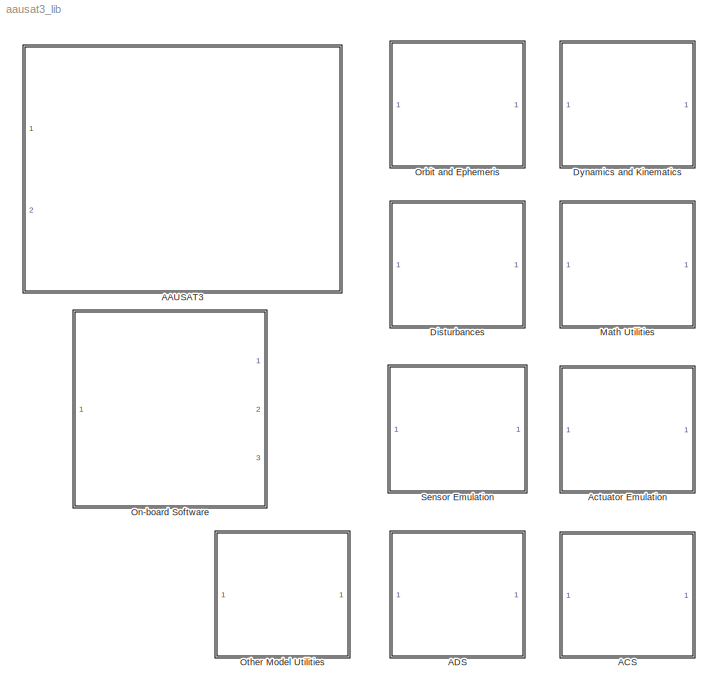
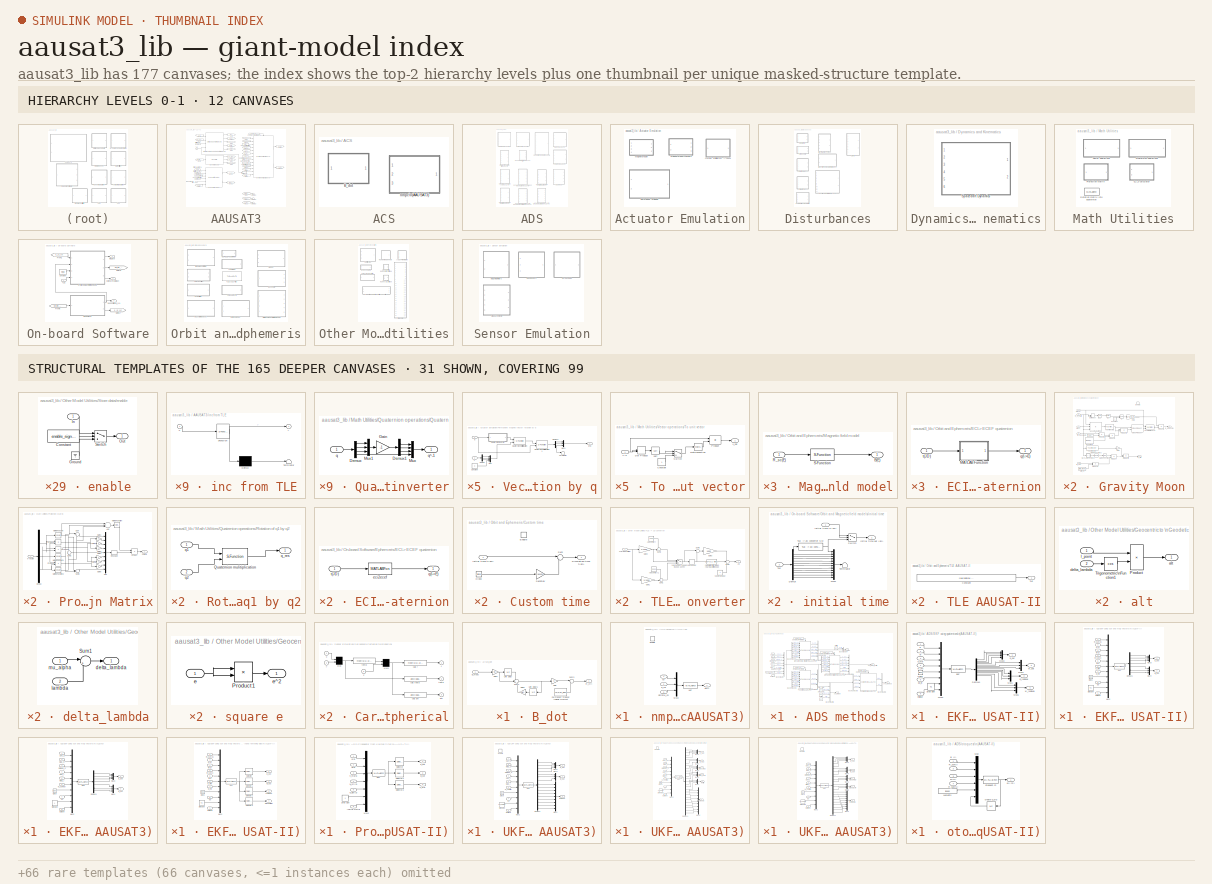
[diagram: thumbnail index - top-2 hierarchy levels (12 canvases) + 31 structural-template representatives of the remaining 165 canvases]
MODEL aausat3_lib
KIND library
BLOCK [SubSystem] AAUSAT3
  Ports = [2]
  RequestExecContextInheritance = off
  SID = 11
  ShowPortLabels = none
BLOCK [Constant] AAUSAT3/Center of mass R_com(S)
  SID = 1191
  Value = r_com_s
BLOCK [Constant] AAUSAT3/Controller frame (S->C)
  SID = 1194
  Value = q_s_c/norm(q_s_c)
BLOCK [Constant] AAUSAT3/Controller frame (S->C)1
  SID = 1195
  Value = q_s_c/norm(q_s_c)
BLOCK [Constant] AAUSAT3/Enable env disturbance
  SID = 1253
  Value = enable_env_disturbance
BLOCK [Reference] AAUSAT3/Environment Disturbances  REF=aausat3_lib/Disturbances/Environment Disturbances  (lib defined in mdl_4157f6465749, slx_d9305f96731e)
  Cd = Cd
  Dim = Dim
  G = 6.672e-11
  M_earth = 5.9742e24
  M_moon = 0.073483e24
  M_sun = 1.989e30
  Ports = [13, 2, 1]
  SID = 3597
  SourceBlock = aausat3_lib/Disturbances/Environment Disturbances
  enable_atmospheric_dist = on
  enable_gravity_dist = on
  enable_mag_residual_dist = on
  enable_rad_dist = on
  rho = rho
  sola_m_flux = solar_m_flux
  solar_absorb_coeff = solar_absorb_coeff
BLOCK [Reference] AAUSAT3/Ephemeris models  REF=aausat3_lib/Orbit and Ephemeris/Ephemeris  (lib defined in mdl_4157f6465749, slx_d9305f96731e)
  Ports = [1, 3]
  SID = 1250
  SourceBlock = aausat3_lib/Orbit and Ephemeris/Ephemeris
  SourceType = SubSystem
BLOCK [From] AAUSAT3/From1
  CloseFcn = tagdialog Close
  GotoTag = Pos_Sun_I
  SID = 1198
  TagVisibility = global
BLOCK [From] AAUSAT3/From15
  CloseFcn = tagdialog Close
  GotoTag = q_I_S
  SID = 1204
  TagVisibility = global
BLOCK [From] AAUSAT3/From16
  CloseFcn = tagdialog Close
  GotoTag = F_dist_S
  SID = 1205
  TagVisibility = global
BLOCK [From] AAUSAT3/From18
  CloseFcn = tagdialog Close
  GotoTag = Pos_Sun_I
  SID = 1206
  TagVisibility = global
BLOCK [From] AAUSAT3/From19
  CloseFcn = tagdialog Close
  GotoTag = Pos_SC_I
  SID = 1207
  TagVisibility = global
BLOCK [From] AAUSAT3/From2
  CloseFcn = tagdialog Close
  GotoTag = N_dist_S
  SID = 1208
  TagVisibility = global
BLOCK [From] AAUSAT3/From22
  CloseFcn = tagdialog Close
  GotoTag = Vel_SC_I
  SID = 1210
  TagVisibility = global
BLOCK [From] AAUSAT3/From23
  CloseFcn = tagdialog Close
  GotoTag = Eclipse
  SID = 1211
  TagVisibility = global
BLOCK [From] AAUSAT3/From3
  CloseFcn = tagdialog Close
  GotoTag = q_I_E
  SID = 1212
  TagVisibility = global
BLOCK [From] AAUSAT3/From4
  CloseFcn = tagdialog Close
  GotoTag = Reflectivity
  SID = 1620
BLOCK [From] AAUSAT3/From5
  CloseFcn = tagdialog Close
  GotoTag = Sim_time_JD
  SID = 1214
  TagVisibility = global
BLOCK [From] AAUSAT3/From6
  CloseFcn = tagdialog Close
  GotoTag = Pos_Moon_I
  SID = 1215
  TagVisibility = global
BLOCK [From] AAUSAT3/From7
  CloseFcn = tagdialog Close
  GotoTag = Omega_S
  SID = 1622
  TagVisibility = global
BLOCK [From] AAUSAT3/From8
  CloseFcn = tagdialog Close
  GotoTag = Mag_I
  SID = 1739
  TagVisibility = global
BLOCK [From] AAUSAT3/From9
  CloseFcn = tagdialog Close
  GotoTag = Sim_time_JD
  SID = 5928
  TagVisibility = global
BLOCK [Goto] AAUSAT3/Goto
  GotoTag = Mag_I
  SID = 1219
  TagVisibility = global
BLOCK [Goto] AAUSAT3/Goto1
  GotoTag = Vel_SC_I
  SID = 1220
  TagVisibility = global
BLOCK [Goto] AAUSAT3/Goto10
  GotoTag = q_I_S
  SID = 1221
  TagVisibility = global
BLOCK [Goto] AAUSAT3/Goto11
  GotoTag = Omega_S
  SID = 1222
  TagVisibility = global
BLOCK [Goto] AAUSAT3/Goto12
  GotoTag = F_dist_S
  SID = 1223
  TagVisibility = global
BLOCK [Goto] AAUSAT3/Goto2
  GotoTag = Pos_Sun_I
  SID = 1225
  TagVisibility = global
BLOCK [Goto] AAUSAT3/Goto3
  GotoTag = Pos_SC_I
  SID = 1226
  TagVisibility = global
BLOCK [Goto] AAUSAT3/Goto4
  GotoTag = Pos_Moon_I
  SID = 1227
  TagVisibility = global
BLOCK [Goto] AAUSAT3/Goto5
  GotoTag = Sim_time_JD
  SID = 1228
  TagVisibility = global
BLOCK [Goto] AAUSAT3/Goto6
  GotoTag = Eclipse
  SID = 1229
  TagVisibility = global
BLOCK [Goto] AAUSAT3/Goto8
  GotoTag = q_I_E
  SID = 1231
  TagVisibility = global
BLOCK [Goto] AAUSAT3/Goto9
  GotoTag = N_dist_S
  SID = 1232
  TagVisibility = global
BLOCK [Constant] AAUSAT3/Initial angular rate W_i(S)
  SID = 1235
  Value = w_init_s
BLOCK [Constant] AAUSAT3/Initial attitude q_i(I->S)
  SID = 1236
  Value = q_init_I_S
BLOCK [Constant] AAUSAT3/Initial time (JD)
  SID = 1237
  Value = init_jd
BLOCK [Inport] AAUSAT3/Magnetorquer N_mt(S)
  IconDisplay = Port number
  SID = 1187
BLOCK [Constant] AAUSAT3/Mass of spaccraft
  SID = 1238
  Value = mass_sc
BLOCK [Reference] AAUSAT3/Orbit, eclipse, albedo and magnetic field models  REF=aausat3_lib/Orbit and Ephemeris/Orbit and Magnetic field models  (lib defined in mdl_4157f6465749, slx_d9305f96731e)
  Ports = [4, 5]
  SID = 1641
  SourceBlock = aausat3_lib/Orbit and Ephemeris/Orbit and Magnetic field models
  Ts = Ts
  enable_IGRF = on
  enable_custom_time = on
  enable_eclipse = on
  enable_sgp4 = on
  r_e = 6371e3
  redfac = redfac
  refldata = refldata
  reflectivity_enabled = off
  theta_e = theta_e
BLOCK [Reference] AAUSAT3/Spacecraft dynamics  REF=aausat3_lib/Dynamics and Kinematics/Spacecraft Dynamics  (lib defined in mdl_4157f6465749, slx_d9305f96731e)
  Ports = [6, 2]
  SID = 1277
  SourceBlock = aausat3_lib/Dynamics and Kinematics/Spacecraft Dynamics
  SourceType = SubSystem
BLOCK [Constant] AAUSAT3/Spacecraft inertia (C)
  SID = 1242
  Value = inertia_c
BLOCK [Constant] AAUSAT3/Spacecraft inertia (C)1
  SID = 1243
  Value = inertia_c
BLOCK [Inport] AAUSAT3/TLE
  IconDisplay = Port number
  Port = 2
  SID = 1295
BLOCK [Terminator] AAUSAT3/Terminator1
  SID = 1621
BLOCK [Terminator] AAUSAT3/Terminator2
  SID = 1623
BLOCK [Terminator] AAUSAT3/Terminator3
  SID = 1244
BLOCK [SubSystem] AAUSAT3/inc from TLE
  ErrorFcn = Stateflow.Translate.translate
  PermitHierarchicalResolution = ExplicitOnly
  Ports = [1, 1]
  RequestExecContextInheritance = off
  SFBlockType = MATLAB Function
  SID = 5927
  TreatAsAtomicUnit = on
BLOCK [Demux] AAUSAT3/inc from TLE/ Demux 
  Outputs = 1
  Ports = [1, 1]
  SID = 5927::22
BLOCK [S-Function] AAUSAT3/inc from TLE/ SFunction 
  EnableBusSupport = off
  FunctionName = sf_sfun
  PortCounts = [1 2]
  Ports = [1, 2]
  SID = 5927::21
  Tag = Stateflow S-Function aausat3_lib 17
BLOCK [Terminator] AAUSAT3/inc from TLE/ Terminator 
  SID = 5927::23
BLOCK [Inport] AAUSAT3/inc from TLE/u
  IconDisplay = Port number
  SID = 5927::1
BLOCK [Outport] AAUSAT3/inc from TLE/y
  IconDisplay = Port number
  SID = 5927::5
BLOCK [SubSystem] ACS
  Ports = []
  RequestExecContextInheritance = off
  SID = 17
  ShowPortLabels = none
BLOCK [SubSystem] ACS/B_dot
  Ports = [1, 1]
  RequestExecContextInheritance = off
  SID = 4482
BLOCK [Inport] ACS/B_dot/B_meas
  IconDisplay = Port number
  SID = 4483
BLOCK [Gain] ACS/B_dot/Gain
  Gain = -C
  OutDataTypeStr = Inherit: Inherit via internal rule
  ParamDataTypeStr = Inherit: Inherit via internal rule
  SID = 4543
  SaturateOnIntegerOverflow = off
BLOCK [Gain] ACS/B_dot/Gain1
  Gain = wc
  OutDataTypeStr = Inherit: Inherit via internal rule
  ParamDataTypeStr = Inherit: Inherit via internal rule
  SID = 4544
  SaturateOnIntegerOverflow = off
BLOCK [Gain] ACS/B_dot/Gain2
  Gain = exp(-wc*Ts)
  OutDataTypeStr = Inherit: Inherit via internal rule
  ParamDataTypeStr = Inherit: Inherit via internal rule
  SID = 4545
  SaturateOnIntegerOverflow = off
BLOCK [Constant] ACS/B_dot/Permanent magnet \ndipole moment
  SID = 4546
  Value = [0,0,m_pm]
BLOCK [Sum] ACS/B_dot/Sum2
  IconShape = round
  InputSameDT = off
  Inputs = -++
  OutDataTypeStr = Inherit: Inherit via internal rule
  Ports = [3, 1]
  SID = 4547
  SaturateOnIntegerOverflow = off
BLOCK [Sum] ACS/B_dot/Sum3
  IconShape = round
  InputSameDT = off
  Inputs = |++
  OutDataTypeStr = Inherit: Inherit via internal rule
  Ports = [2, 1]
  SID = 4548
  SaturateOnIntegerOverflow = off
BLOCK [UnitDelay] ACS/B_dot/Unit Delay
  SID = 4549
  SampleTime = -1
BLOCK [UnitDelay] ACS/B_dot/Unit Delay1
  SID = 4550
  SampleTime = -1
BLOCK [Outport] ACS/B_dot/m_ctrl
  IconDisplay = Port number
  PortDimensions = 3
  SID = 4542
BLOCK [SubSystem] ACS/nmpc\n(AAUSAT3)
  Ports = [3, 1, 1]
  RequestExecContextInheritance = off
  SID = 4629
BLOCK [EnablePort] ACS/nmpc\n(AAUSAT3)/Enable
  Ports = []
  SID = 4638
BLOCK [Mux] ACS/nmpc\n(AAUSAT3)/Mux2
  DisplayOption = bar
  Inputs = 3
  Ports = [3, 1]
  SID = 4642
BLOCK [MATLABFcn] ACS/nmpc\n(AAUSAT3)/UKF
  MATLABFcn = nmpc
  OutputDimensions = 3
  Ports = [1, 1]
  SID = 4646
  SampleTime = 1/f_sample
BLOCK [Outport] ACS/nmpc\n(AAUSAT3)/Uctrl
  IconDisplay = Port number
  SID = 4650
BLOCK [Inport] ACS/nmpc\n(AAUSAT3)/q_ref
  IconDisplay = Port number
  Port = 2
  SID = 4631
BLOCK [Inport] ACS/nmpc\n(AAUSAT3)/simtime_JD
  IconDisplay = Port number
  Port = 3
  SID = 4632
BLOCK [Inport] ACS/nmpc\n(AAUSAT3)/x0
  IconDisplay = Port number
  SID = 4630
BLOCK [SubSystem] ADS
  Ports = []
  RequestExecContextInheritance = off
  SID = 16
  ShowPortLabels = none
BLOCK [SubSystem] ADS/ADS methods
  Ports = [7, 4]
  RequestExecContextInheritance = off
  SID = 3602
BLOCK [BusCreator] ADS/ADS methods/Bus\nCreator
  DisplayOption = bar
  Inputs = 8
  Ports = [8, 1]
  SID = 3665
BLOCK [BusCreator] ADS/ADS methods/Bus\nCreator1
  DisplayOption = bar
  Inputs = 6
  Ports = [6, 1]
  SID = 3677
BLOCK [BusCreator] ADS/ADS methods/Bus\nCreator2
  DisplayOption = bar
  Inputs = 5
  Ports = [5, 1]
  SID = 3678
BLOCK [BusCreator] ADS/ADS methods/Bus\nCreator3
  DisplayOption = bar
  Inputs = 3
  Ports = [3, 1]
  SID = 3679
BLOCK [BusCreator] ADS/ADS methods/Bus\nCreator4
  DisplayOption = bar
  Inputs = 2
  Ports = [2, 1]
  SID = 3805
BLOCK [BusCreator] ADS/ADS methods/Bus\nCreator5
  DisplayOption = bar
  Ports = [4, 1]
  SID = 3806
BLOCK [BusCreator] ADS/ADS methods/Bus\nCreator6
  DisplayOption = bar
  Inputs = 2
  Ports = [2, 1]
  SID = 4261
BLOCK [BusSelector] ADS/ADS methods/Bus\nSelector
  OutputSignals = Sun_S,Mag_S,Omega_S,Sun_I,Mag_I,N_control,q0,Eclipse
  Ports = [1, 8]
  SID = 3667
BLOCK [BusSelector] ADS/ADS methods/Bus\nSelector1
  OutputSignals = Sun_S,Mag_S,Omega_S,Sun_I,Mag_I,N_control,q0,Eclipse
  Ports = [1, 8]
  SID = 3668
BLOCK [BusSelector] ADS/ADS methods/Bus\nSelector2
  OutputSignals = Sun_S,Mag_S,Omega_S,Sun_I,Mag_I,N_control,q0,Eclipse
  Ports = [1, 8]
  SID = 3669
BLOCK [BusSelector] ADS/ADS methods/Bus\nSelector3
  OutputSignals = Sun_S,Mag_S,Sun_I,Mag_I
  Ports = [1, 4]
  SID = 3670
BLOCK [Inport] ADS/ADS methods/Eclipse
  IconDisplay = Port number
  Port = 7
  SID = 3652
BLOCK [Constant] ADS/ADS methods/Enable SVD method
  SID = 3671
  Value = enable_svd
BLOCK [Constant] ADS/ADS methods/Enable UKF simple
  SID = 3662
  Value = enable_ukf_simple
BLOCK [Constant] ADS/ADS methods/Enable UKF with bias
  SID = 3661
  Value = enable_ukf_bias
BLOCK [Constant] ADS/ADS methods/Enable UKF with bias + inertia
  SID = 3663
  Value = enable_ukf_bias_inertia
BLOCK [Inport] ADS/ADS methods/Mag_I
  IconDisplay = Port number
  Port = 5
  SID = 3650
BLOCK [Inport] ADS/ADS methods/Mag_S
  IconDisplay = Port number
  Port = 2
  SID = 3647
BLOCK [Inport] ADS/ADS methods/N_control
  IconDisplay = Port number
  Port = 6
  SID = 3651
BLOCK [Inport] ADS/ADS methods/Omega_S
  IconDisplay = Port number
  Port = 3
  SID = 3648
BLOCK [Inport] ADS/ADS methods/Sun_I
  IconDisplay = Port number
  Port = 4
  SID = 3649
BLOCK [Inport] ADS/ADS methods/Sun_S
  IconDisplay = Port number
  SID = 3646
BLOCK [Reference] ADS/ADS methods/UKF using sun and mag vectors ..\nincluding bias and inertia estimation\n(AAUSAT3)1  REF=aausat3_lib/ADS/UKF using sun and mag vectors ..\nincluding bias and inertia estimation\n(AAUSAT3)  (lib defined in mdl_4157f6465749, slx_d9305f96731e)
  FunctionWithSeparateData = off
  Ports = [8, 6, 1]
  RTWMemSecDataConstants = Inherit from model
  RTWMemSecDataInternal = Inherit from model
  RTWMemSecDataParameters = Inherit from model
  RTWMemSecFuncExecute = Inherit from model
  RTWMemSecFuncInitTerm = Inherit from model
  SID = 3599
  ShowPortLabels = FromPortIcon
  SourceBlock = aausat3_lib/ADS/UKF using sun and mag vectors ..\nincluding bias and inertia estimation\n(AAUSAT3)
  SourceType = Unknown
  SystemSampleTime = -1
  f_sample = f_sample
BLOCK [Reference] ADS/ADS methods/UKF using sun and mag vectors ..\nincluding bias estimation\n(AAUSAT3)1  REF=aausat3_lib/ADS/UKF using sun and mag vectors ..\nincluding bias estimation\n(AAUSAT3)  (lib defined in mdl_4157f6465749, slx_d9305f96731e)
  FunctionWithSeparateData = off
  Ports = [8, 5, 1]
  RTWMemSecDataConstants = Inherit from model
  RTWMemSecDataInternal = Inherit from model
  RTWMemSecDataParameters = Inherit from model
  RTWMemSecFuncExecute = Inherit from model
  RTWMemSecFuncInitTerm = Inherit from model
  SID = 3600
  ShowPortLabels = FromPortIcon
  SourceBlock = aausat3_lib/ADS/UKF using sun and mag vectors ..\nincluding bias estimation\n(AAUSAT3)
  SourceType = Unknown
  SystemSampleTime = -1
  f_sample = f_sample
BLOCK [Reference] ADS/ADS methods/UKF using sun and mag vectors\n(AAUSAT3)  REF=aausat3_lib/ADS/UKF using sun and mag vectors\n(AAUSAT3)  (lib defined in mdl_4157f6465749, slx_d9305f96731e)
  FunctionWithSeparateData = off
  Ports = [8, 3, 1]
  RTWMemSecDataConstants = Inherit from model
  RTWMemSecDataInternal = Inherit from model
  RTWMemSecDataParameters = Inherit from model
  RTWMemSecFuncExecute = Inherit from model
  RTWMemSecFuncInitTerm = Inherit from model
  SID = 3684
  ShowPortLabels = FromPortIcon
  SourceBlock = aausat3_lib/ADS/UKF using sun and mag vectors\n(AAUSAT3)
  SourceType = Unknown
  SystemSampleTime = -1
  f_sample = f_sample
BLOCK [Constant] ADS/ADS methods/bias_gyro
  SID = 3809
  Value = [0 0 0]
BLOCK [Constant] ADS/ADS methods/bias_mag
  SID = 3808
  Value = [0 0 0]
BLOCK [Constant] ADS/ADS methods/inertia
  SID = 3804
  Value = [0 0 0]
BLOCK [Constant] ADS/ADS methods/inertia1
  SID = 3810
  Value = [0 0 0]
BLOCK [Constant] ADS/ADS methods/q0
  SID = 3654
  Value = q0_guess/norm(q0_guess)
BLOCK [Reference] ADS/ADS methods/svd-method\n(AAUSAT3)  REF=aausat3_lib/ADS/svd-method\n(AAUSAT3)  (lib defined in mdl_4157f6465749, slx_d9305f96731e)
  FunctionWithSeparateData = off
  Ports = [4, 2, 1]
  RTWMemSecDataConstants = Inherit from model
  RTWMemSecDataInternal = Inherit from model
  RTWMemSecDataParameters = Inherit from model
  RTWMemSecFuncExecute = Inherit from model
  RTWMemSecFuncInitTerm = Inherit from model
  SID = 3601
  ShowPortLabels = FromPortIcon
  SourceBlock = aausat3_lib/ADS/svd-method\n(AAUSAT3)
  SourceType = Unknown
  SystemSampleTime = -1
  f_sample = f_sample
  weigth_a = svd_weigth
BLOCK [Outport] ADS/ADS methods/svd_method
  IconDisplay = Port number
  Port = 4
  SID = 3683
BLOCK [Outport] ADS/ADS methods/ukf_bias
  IconDisplay = Port number
  Port = 2
  SID = 3681
BLOCK [Outport] ADS/ADS methods/ukf_bias_inertia
  IconDisplay = Port number
  Port = 3
  SID = 3682
BLOCK [Outport] ADS/ADS methods/ukf_simple
  IconDisplay = Port number
  SID = 3807
BLOCK [SubSystem] ADS/EKF using quaternions\n(AAUSAT-II)
  Ports = [6, 4]
  RequestExecContextInheritance = off
  SID = 1958
BLOCK [Clock] ADS/EKF using quaternions\n(AAUSAT-II)/Clock
  SID = 1965
BLOCK [Demux] ADS/EKF using quaternions\n(AAUSAT-II)/Demux1
  DisplayOption = bar
  Outputs = 16
  Ports = [1, 16]
  SID = 1966
BLOCK [MATLABFcn] ADS/EKF using quaternions\n(AAUSAT-II)/EKF
  MATLABFcn = AAUSAT_II_Kalman
  OutputDimensions = 16
  Ports = [1, 1]
  SID = 1967
  SampleTime = 0.1
BLOCK [Mux] ADS/EKF using quaternions\n(AAUSAT-II)/Mux1
  DisplayOption = bar
  Inputs = 3
  Ports = [3, 1]
  SID = 1968
BLOCK [Mux] ADS/EKF using quaternions\n(AAUSAT-II)/Mux2
  DisplayOption = bar
  Inputs = 8
  Ports = [8, 1]
  SID = 1969
BLOCK [Mux] ADS/EKF using quaternions\n(AAUSAT-II)/Mux3
  DisplayOption = bar
  Ports = [4, 1]
  SID = 1970
BLOCK [Mux] ADS/EKF using quaternions\n(AAUSAT-II)/Mux4
  DisplayOption = bar
  Inputs = 3
  Ports = [3, 1]
  SID = 1971
BLOCK [Mux] ADS/EKF using quaternions\n(AAUSAT-II)/Mux5
  DisplayOption = bar
  Inputs = 3
  Ports = [3, 1]
  SID = 1972
BLOCK [Inport] ADS/EKF using quaternions\n(AAUSAT-II)/N_mt
  IconDisplay = Port number
  Port = 4
  SID = 1962
BLOCK [Constant] ADS/EKF using quaternions\n(AAUSAT-II)/Step size
  SID = 1973
  Value = 0.1
BLOCK [Inport] ADS/EKF using quaternions\n(AAUSAT-II)/eclipse
  IconDisplay = Port number
  Port = 6
  SID = 1964
BLOCK [Inport] ADS/EKF using quaternions\n(AAUSAT-II)/h_mw
  IconDisplay = Port number
  Port = 3
  SID = 1961
BLOCK [Inport] ADS/EKF using quaternions\n(AAUSAT-II)/q
  IconDisplay = Port number
  SID = 1959
BLOCK [Inport] ADS/EKF using quaternions\n(AAUSAT-II)/q0_in
  IconDisplay = Port number
  Port = 5
  SID = 1963
BLOCK [Outport] ADS/EKF using quaternions\n(AAUSAT-II)/q_out
  IconDisplay = Port number
  SID = 1974
BLOCK [Outport] ADS/EKF using quaternions\n(AAUSAT-II)/q_residual
  IconDisplay = Port number
  Port = 3
  SID = 1976
BLOCK [Inport] ADS/EKF using quaternions\n(AAUSAT-II)/w
  IconDisplay = Port number
  Port = 2
  SID = 1960
BLOCK [Outport] ADS/EKF using quaternions\n(AAUSAT-II)/w_out
  IconDisplay = Port number
  Port = 2
  SID = 1975
BLOCK [Outport] ADS/EKF using quaternions\n(AAUSAT-II)/w_residual
  IconDisplay = Port number
  Port = 4
  SID = 1977
BLOCK [SubSystem] ADS/EKF using sun and mag vectors .. \nand removing bias\n(AAUSAT-II)
  Ports = [9, 4]
  RequestExecContextInheritance = off
  SID = 1936
BLOCK [Clock] ADS/EKF using sun and mag vectors .. \nand removing bias\n(AAUSAT-II)/Clock
  SID = 1946
BLOCK [MATLABFcn] ADS/EKF using sun and mag vectors .. \nand removing bias\n(AAUSAT-II)/EKF
  MATLABFcn = AAUSAT_II_Kalman_BS_bias_vectors
  OutputDimensions = 7+12+12
  Ports = [1, 1]
  SID = 1947
  SampleTime = 0.1
BLOCK [Inport] ADS/EKF using sun and mag vectors .. \nand removing bias\n(AAUSAT-II)/Eclipse
  IconDisplay = Port number
  Port = 9
  SID = 1945
BLOCK [Mux] ADS/EKF using sun and mag vectors .. \nand removing bias\n(AAUSAT-II)/Mux2
  DisplayOption = bar
  Inputs = 11
  Ports = [11, 1]
  SID = 1948
BLOCK [Inport] ADS/EKF using sun and mag vectors .. \nand removing bias\n(AAUSAT-II)/N_mt
  IconDisplay = Port number
  Port = 7
  SID = 1943
BLOCK [Inport] ADS/EKF using sun and mag vectors .. \nand removing bias\n(AAUSAT-II)/R_sun(I)
  IconDisplay = Port number
  Port = 4
  SID = 1940
BLOCK [Inport] ADS/EKF using sun and mag vectors .. \nand removing bias\n(AAUSAT-II)/R_sun(S)
  IconDisplay = Port number
  SID = 1937
BLOCK [Selector] ADS/EKF using sun and mag vectors .. \nand removing bias\n(AAUSAT-II)/Selector
  Indices = (1:4)
  InputPortWidth = 7+12+12
  Ports = [1, 1]
  SID = 1949
BLOCK [Selector] ADS/EKF using sun and mag vectors .. \nand removing bias\n(AAUSAT-II)/Selector1
  Indices = (5:7)
  InputPortWidth = 7+12+12
  Ports = [1, 1]
  SID = 1950
BLOCK [Selector] ADS/EKF using sun and mag vectors .. \nand removing bias\n(AAUSAT-II)/Selector2
  Indices = (8:19)
  InputPortWidth = 7+12+12
  Ports = [1, 1]
  SID = 1951
BLOCK [Selector] ADS/EKF using sun and mag vectors .. \nand removing bias\n(AAUSAT-II)/Selector3
  Indices = (20:31)
  InputPortWidth = 7+12+12
  Ports = [1, 1]
  SID = 1952
BLOCK [Constant] ADS/EKF using sun and mag vectors .. \nand removing bias\n(AAUSAT-II)/Step size
  SID = 1953
  Value = 0.1
BLOCK [Inport] ADS/EKF using sun and mag vectors .. \nand removing bias\n(AAUSAT-II)/b(I)
  IconDisplay = Port number
  Port = 5
  SID = 1941
BLOCK [Inport] ADS/EKF using sun and mag vectors .. \nand removing bias\n(AAUSAT-II)/b(S)
  IconDisplay = Port number
  Port = 2
  SID = 1938
BLOCK [Outport] ADS/EKF using sun and mag vectors .. \nand removing bias\n(AAUSAT-II)/bias estimat
  IconDisplay = Port number
  Port = 4
  SID = 1957
BLOCK [Inport] ADS/EKF using sun and mag vectors .. \nand removing bias\n(AAUSAT-II)/h_mw
  IconDisplay = Port number
  Port = 6
  SID = 1942
BLOCK [Inport] ADS/EKF using sun and mag vectors .. \nand removing bias\n(AAUSAT-II)/q0
  IconDisplay = Port number
  Port = 8
  SID = 1944
BLOCK [Outport] ADS/EKF using sun and mag vectors .. \nand removing bias\n(AAUSAT-II)/q_out
  IconDisplay = Port number
  SID = 1954
BLOCK [Outport] ADS/EKF using sun and mag vectors .. \nand removing bias\n(AAUSAT-II)/residual
  IconDisplay = Port number
  Port = 3
  SID = 1956
BLOCK [Inport] ADS/EKF using sun and mag vectors .. \nand removing bias\n(AAUSAT-II)/w(S)
  IconDisplay = Port number
  Port = 3
  SID = 1939
BLOCK [Outport] ADS/EKF using sun and mag vectors .. \nand removing bias\n(AAUSAT-II)/w_out
  IconDisplay = Port number
  Port = 2
  SID = 1955
BLOCK [SubSystem] ADS/EKF using sun and mag vectors\n(AAUSAT-II)
  Ports = [9, 2]
  RequestExecContextInheritance = off
  SID = 1917
BLOCK [Clock] ADS/EKF using sun and mag vectors\n(AAUSAT-II)/Clock
  SID = 1927
BLOCK [Demux] ADS/EKF using sun and mag vectors\n(AAUSAT-II)/Demux1
  DisplayOption = bar
  Outputs = 7
  Ports = [1, 7]
  SID = 1928
BLOCK [MATLABFcn] ADS/EKF using sun and mag vectors\n(AAUSAT-II)/EKF
  MATLABFcn = AAUSAT_II_Kalman_BS_vectors
  OutputDimensions = 7
  Ports = [1, 1]
  SID = 1929
  SampleTime = 0.1
BLOCK [Inport] ADS/EKF using sun and mag vectors\n(AAUSAT-II)/Eclipse
  IconDisplay = Port number
  Port = 9
  SID = 1926
BLOCK [Mux] ADS/EKF using sun and mag vectors\n(AAUSAT-II)/Mux2
  DisplayOption = bar
  Inputs = 11
  Ports = [11, 1]
  SID = 1930
BLOCK [Mux] ADS/EKF using sun and mag vectors\n(AAUSAT-II)/Mux3
  DisplayOption = bar
  Ports = [4, 1]
  SID = 1931
BLOCK [Mux] ADS/EKF using sun and mag vectors\n(AAUSAT-II)/Mux4
  DisplayOption = bar
  Inputs = 3
  Ports = [3, 1]
  SID = 1932
BLOCK [Inport] ADS/EKF using sun and mag vectors\n(AAUSAT-II)/N_mt
  IconDisplay = Port number
  Port = 7
  SID = 1924
BLOCK [Inport] ADS/EKF using sun and mag vectors\n(AAUSAT-II)/R_sun(I)
  IconDisplay = Port number
  Port = 4
  SID = 1921
BLOCK [Inport] ADS/EKF using sun and mag vectors\n(AAUSAT-II)/R_sun(S)
  IconDisplay = Port number
  SID = 1918
BLOCK [Constant] ADS/EKF using sun and mag vectors\n(AAUSAT-II)/Step size
  SID = 1933
  Value = 0.1
BLOCK [Inport] ADS/EKF using sun and mag vectors\n(AAUSAT-II)/b(I)
  IconDisplay = Port number
  Port = 5
  SID = 1922
BLOCK [Inport] ADS/EKF using sun and mag vectors\n(AAUSAT-II)/b(S)
  IconDisplay = Port number
  Port = 2
  SID = 1919
BLOCK [Inport] ADS/EKF using sun and mag vectors\n(AAUSAT-II)/h_mw
  IconDisplay = Port number
  Port = 6
  SID = 1923
BLOCK [Inport] ADS/EKF using sun and mag vectors\n(AAUSAT-II)/q0
  IconDisplay = Port number
  Port = 8
  SID = 1925
BLOCK [Outport] ADS/EKF using sun and mag vectors\n(AAUSAT-II)/q_out
  IconDisplay = Port number
  SID = 1934
BLOCK [Inport] ADS/EKF using sun and mag vectors\n(AAUSAT-II)/w(S)
  IconDisplay = Port number
  Port = 3
  SID = 1920
BLOCK [Outport] ADS/EKF using sun and mag vectors\n(AAUSAT-II)/w_out
  IconDisplay = Port number
  Port = 2
  SID = 1935
BLOCK [SubSystem] ADS/EKF using sun and mag vectors\n(AAUSAT3)
  Ports = [8, 2]
  RequestExecContextInheritance = off
  SID = 2031
BLOCK [Clock] ADS/EKF using sun and mag vectors\n(AAUSAT3)/Clock
  SID = 2041
BLOCK [Demux] ADS/EKF using sun and mag vectors\n(AAUSAT3)/Demux1
  DisplayOption = bar
  Outputs = 7
  Ports = [1, 7]
  SID = 2042
BLOCK [MATLABFcn] ADS/EKF using sun and mag vectors\n(AAUSAT3)/EKF
  MATLABFcn = EKFsimple
  OutputDimensions = 7
  Ports = [1, 1]
  SID = 2043
  SampleTime = 1
BLOCK [Inport] ADS/EKF using sun and mag vectors\n(AAUSAT3)/Eclipse
  IconDisplay = Port number
  Port = 8
  SID = 2040
BLOCK [Inport] ADS/EKF using sun and mag vectors\n(AAUSAT3)/Mag_I
  IconDisplay = Port number
  Port = 5
  SID = 2036
BLOCK [Inport] ADS/EKF using sun and mag vectors\n(AAUSAT3)/Mag_S
  IconDisplay = Port number
  Port = 2
  SID = 2033
BLOCK [Mux] ADS/EKF using sun and mag vectors\n(AAUSAT3)/Mux2
  DisplayOption = bar
  Inputs = 10
  Ports = [10, 1]
  SID = 2044
BLOCK [Mux] ADS/EKF using sun and mag vectors\n(AAUSAT3)/Mux3
  DisplayOption = bar
  Ports = [4, 1]
  SID = 2045
BLOCK [Mux] ADS/EKF using sun and mag vectors\n(AAUSAT3)/Mux4
  DisplayOption = bar
  Inputs = 3
  Ports = [3, 1]
  SID = 2046
BLOCK [Inport] ADS/EKF using sun and mag vectors\n(AAUSAT3)/N_control
  IconDisplay = Port number
  Port = 6
  SID = 2038
BLOCK [Inport] ADS/EKF using sun and mag vectors\n(AAUSAT3)/Omega_S
  IconDisplay = Port number
  Port = 3
  SID = 2034
BLOCK [Constant] ADS/EKF using sun and mag vectors\n(AAUSAT3)/Step size
  SID = 2047
BLOCK [Inport] ADS/EKF using sun and mag vectors\n(AAUSAT3)/Sun_I
  IconDisplay = Port number
  Port = 4
  SID = 2035
BLOCK [Inport] ADS/EKF using sun and mag vectors\n(AAUSAT3)/Sun_S
  IconDisplay = Port number
  SID = 2032
BLOCK [Inport] ADS/EKF using sun and mag vectors\n(AAUSAT3)/q0
  IconDisplay = Port number
  Port = 7
  SID = 2039
BLOCK [Outport] ADS/EKF using sun and mag vectors\n(AAUSAT3)/q_out
  IconDisplay = Port number
  SID = 2048
BLOCK [Outport] ADS/EKF using sun and mag vectors\n(AAUSAT3)/w_out
  IconDisplay = Port number
  Port = 2
  SID = 2049
BLOCK [SubSystem] ADS/Propagator from Kalman filter\n(AAUSAT-II)
  Ports = [6, 3]
  RequestExecContextInheritance = off
  SID = 1978
BLOCK [MATLABFcn] ADS/Propagator from Kalman filter\n(AAUSAT-II)/EKF
  MATLABFcn = kalman-propagator
  OutputDimensions = 10
  Ports = [1, 1]
  SID = 1985
  SampleTime = 1
BLOCK [Inport] ADS/Propagator from Kalman filter\n(AAUSAT-II)/Inertia matrix
  IconDisplay = Port number
  Port = 6
  SID = 1984
BLOCK [Mux] ADS/Propagator from Kalman filter\n(AAUSAT-II)/Mux2
  DisplayOption = bar
  Inputs = 7
  Ports = [7, 1]
  SID = 1986
BLOCK [Inport] ADS/Propagator from Kalman filter\n(AAUSAT-II)/N_dist(S)
  IconDisplay = Port number
  Port = 5
  SID = 1983
BLOCK [Inport] ADS/Propagator from Kalman filter\n(AAUSAT-II)/N_mt(S)
  IconDisplay = Port number
  Port = 4
  SID = 1982
BLOCK [Selector] ADS/Propagator from Kalman filter\n(AAUSAT-II)/Selector
  Indices = (1:4)
  InputPortWidth = 10
  Ports = [1, 1]
  SID = 1987
BLOCK [Selector] ADS/Propagator from Kalman filter\n(AAUSAT-II)/Selector1
  Indices = (5:7)
  InputPortWidth = 10
  Ports = [1, 1]
  SID = 1988
BLOCK [Selector] ADS/Propagator from Kalman filter\n(AAUSAT-II)/Selector2
  Indices = (8:10)
  InputPortWidth = 10
  Ports = [1, 1]
  SID = 1989
BLOCK [Constant] ADS/Propagator from Kalman filter\n(AAUSAT-II)/Step size
  SID = 1990
BLOCK [Outport] ADS/Propagator from Kalman filter\n(AAUSAT-II)/h_mw
  IconDisplay = Port number
  Port = 3
  SID = 1993
BLOCK [Inport] ADS/Propagator from Kalman filter\n(AAUSAT-II)/h_mw(S)
  IconDisplay = Port number
  Port = 3
  SID = 1981
BLOCK [Inport] ADS/Propagator from Kalman filter\n(AAUSAT-II)/q(S)
  IconDisplay = Port number
  SID = 1979
BLOCK [Outport] ADS/Propagator from Kalman filter\n(AAUSAT-II)/q_out
  IconDisplay = Port number
  SID = 1991
BLOCK [Inport] ADS/Propagator from Kalman filter\n(AAUSAT-II)/w(S)
  IconDisplay = Port number
  Port = 2
  SID = 1980
BLOCK [Outport] ADS/Propagator from Kalman filter\n(AAUSAT-II)/w_out
  IconDisplay = Port number
  Port = 2
  SID = 1992
BLOCK [SubSystem] ADS/UKF using sun and mag vectors ..\nincluding bias and inertia estimation\n(AAUSAT3)
  Ports = [8, 6, 1]
  RequestExecContextInheritance = off
  SID = 3168
BLOCK [Clock] ADS/UKF using sun and mag vectors ..\nincluding bias and inertia estimation\n(AAUSAT3)/Clock
  Decimation = 1
  SID = 3177
BLOCK [Demux] ADS/UKF using sun and mag vectors ..\nincluding bias and inertia estimation\n(AAUSAT3)/Demux1
  DisplayOption = bar
  Outputs = 25
  Ports = [1, 25]
  SID = 3178
BLOCK [Inport] ADS/UKF using sun and mag vectors ..\nincluding bias and inertia estimation\n(AAUSAT3)/Eclipse
  IconDisplay = Port number
  Port = 8
  SID = 3176
BLOCK [EnablePort] ADS/UKF using sun and mag vectors ..\nincluding bias and inertia estimation\n(AAUSAT3)/Enable
  Ports = []
  SID = 3687
BLOCK [Inport] ADS/UKF using sun and mag vectors ..\nincluding bias and inertia estimation\n(AAUSAT3)/Mag_I
  IconDisplay = Port number
  Port = 5
  SID = 3173
BLOCK [Inport] ADS/UKF using sun and mag vectors ..\nincluding bias and inertia estimation\n(AAUSAT3)/Mag_S
  IconDisplay = Port number
  Port = 2
  SID = 3170
BLOCK [Mux] ADS/UKF using sun and mag vectors ..\nincluding bias and inertia estimation\n(AAUSAT3)/Mux1
  DisplayOption = bar
  Inputs = 3
  Ports = [3, 1]
  SID = 3179
BLOCK [Mux] ADS/UKF using sun and mag vectors ..\nincluding bias and inertia estimation\n(AAUSAT3)/Mux2
  DisplayOption = bar
  Inputs = 10
  Ports = [10, 1]
  SID = 3180
BLOCK [Mux] ADS/UKF using sun and mag vectors ..\nincluding bias and inertia estimation\n(AAUSAT3)/Mux3
  DisplayOption = bar
  Ports = [4, 1]
  SID = 3181
BLOCK [Mux] ADS/UKF using sun and mag vectors ..\nincluding bias and inertia estimation\n(AAUSAT3)/Mux4
  DisplayOption = bar
  Inputs = 3
  Ports = [3, 1]
  SID = 3182
BLOCK [Mux] ADS/UKF using sun and mag vectors ..\nincluding bias and inertia estimation\n(AAUSAT3)/Mux5
  DisplayOption = bar
  Inputs = 3
  Ports = [3, 1]
  SID = 3183
BLOCK [Mux] ADS/UKF using sun and mag vectors ..\nincluding bias and inertia estimation\n(AAUSAT3)/Mux6
  DisplayOption = bar
  Inputs = 9
  Ports = [9, 1]
  SID = 3184
BLOCK [Mux] ADS/UKF using sun and mag vectors ..\nincluding bias and inertia estimation\n(AAUSAT3)/Mux7
  DisplayOption = bar
  Inputs = 3
  Ports = [3, 1]
  SID = 3225
BLOCK [Inport] ADS/UKF using sun and mag vectors ..\nincluding bias and inertia estimation\n(AAUSAT3)/N_control
  IconDisplay = Port number
  Port = 6
  SID = 3174
BLOCK [Inport] ADS/UKF using sun and mag vectors ..\nincluding bias and inertia estimation\n(AAUSAT3)/Omega_S
  IconDisplay = Port number
  Port = 3
  SID = 3171
BLOCK [Constant] ADS/UKF using sun and mag vectors ..\nincluding bias and inertia estimation\n(AAUSAT3)/Step size
  SID = 3185
  Value = 1/f_sample
BLOCK [Inport] ADS/UKF using sun and mag vectors ..\nincluding bias and inertia estimation\n(AAUSAT3)/Sun_I
  IconDisplay = Port number
  Port = 4
  SID = 3172
BLOCK [Inport] ADS/UKF using sun and mag vectors ..\nincluding bias and inertia estimation\n(AAUSAT3)/Sun_S
  IconDisplay = Port number
  SID = 3169
BLOCK [MATLABFcn] ADS/UKF using sun and mag vectors ..\nincluding bias and inertia estimation\n(AAUSAT3)/UKF
  MATLABFcn = UKFbiasinertia
  OutputDimensions = 25
  Ports = [1, 1]
  SID = 3186
  SampleTime = 1/f_sample
BLOCK [Outport] ADS/UKF using sun and mag vectors ..\nincluding bias and inertia estimation\n(AAUSAT3)/bias_gyro
  IconDisplay = Port number
  Port = 4
  SID = 3190
BLOCK [Outport] ADS/UKF using sun and mag vectors ..\nincluding bias and inertia estimation\n(AAUSAT3)/bias_mag
  IconDisplay = Port number
  Port = 3
  SID = 3189
BLOCK [Outport] ADS/UKF using sun and mag vectors ..\nincluding bias and inertia estimation\n(AAUSAT3)/inertia
  IconDisplay = Port number
  Port = 5
  SID = 3226
BLOCK [Inport] ADS/UKF using sun and mag vectors ..\nincluding bias and inertia estimation\n(AAUSAT3)/q0
  IconDisplay = Port number
  Port = 7
  SID = 3175
BLOCK [Outport] ADS/UKF using sun and mag vectors ..\nincluding bias and inertia estimation\n(AAUSAT3)/q_out
  IconDisplay = Port number
  SID = 3187
BLOCK [Outport] ADS/UKF using sun and mag vectors ..\nincluding bias and inertia estimation\n(AAUSAT3)/residuals
  IconDisplay = Port number
  Port = 6
  SID = 3191
BLOCK [Outport] ADS/UKF using sun and mag vectors ..\nincluding bias and inertia estimation\n(AAUSAT3)/w_out
  IconDisplay = Port number
  Port = 2
  SID = 3188
BLOCK [SubSystem] ADS/UKF using sun and mag vectors ..\nincluding bias estimation\n(AAUSAT3)
  Ports = [8, 5, 1]
  RequestExecContextInheritance = off
  SID = 3144
BLOCK [Clock] ADS/UKF using sun and mag vectors ..\nincluding bias estimation\n(AAUSAT3)/Clock
  Decimation = 1
  SID = 3153
BLOCK [Demux] ADS/UKF using sun and mag vectors ..\nincluding bias estimation\n(AAUSAT3)/Demux1
  DisplayOption = bar
  Outputs = 22
  Ports = [1, 22]
  SID = 3154
BLOCK [Inport] ADS/UKF using sun and mag vectors ..\nincluding bias estimation\n(AAUSAT3)/Eclipse
  IconDisplay = Port number
  Port = 8
  SID = 3152
BLOCK [EnablePort] ADS/UKF using sun and mag vectors ..\nincluding bias estimation\n(AAUSAT3)/Enable
  Ports = []
  SID = 3686
BLOCK [Inport] ADS/UKF using sun and mag vectors ..\nincluding bias estimation\n(AAUSAT3)/Mag_I
  IconDisplay = Port number
  Port = 5
  SID = 3149
BLOCK [Inport] ADS/UKF using sun and mag vectors ..\nincluding bias estimation\n(AAUSAT3)/Mag_S
  IconDisplay = Port number
  Port = 2
  SID = 3146
BLOCK [Mux] ADS/UKF using sun and mag vectors ..\nincluding bias estimation\n(AAUSAT3)/Mux1
  DisplayOption = bar
  Inputs = 3
  Ports = [3, 1]
  SID = 3155
BLOCK [Mux] ADS/UKF using sun and mag vectors ..\nincluding bias estimation\n(AAUSAT3)/Mux2
  DisplayOption = bar
  Inputs = 10
  Ports = [10, 1]
  SID = 3156
BLOCK [Mux] ADS/UKF using sun and mag vectors ..\nincluding bias estimation\n(AAUSAT3)/Mux3
  DisplayOption = bar
  Ports = [4, 1]
  SID = 3157
BLOCK [Mux] ADS/UKF using sun and mag vectors ..\nincluding bias estimation\n(AAUSAT3)/Mux4
  DisplayOption = bar
  Inputs = 3
  Ports = [3, 1]
  SID = 3158
BLOCK [Mux] ADS/UKF using sun and mag vectors ..\nincluding bias estimation\n(AAUSAT3)/Mux5
  DisplayOption = bar
  Inputs = 3
  Ports = [3, 1]
  SID = 3159
BLOCK [Mux] ADS/UKF using sun and mag vectors ..\nincluding bias estimation\n(AAUSAT3)/Mux6
  DisplayOption = bar
  Inputs = 9
  Ports = [9, 1]
  SID = 3160
BLOCK [Inport] ADS/UKF using sun and mag vectors ..\nincluding bias estimation\n(AAUSAT3)/N_control
  IconDisplay = Port number
  Port = 6
  SID = 3150
BLOCK [Inport] ADS/UKF using sun and mag vectors ..\nincluding bias estimation\n(AAUSAT3)/Omega_S
  IconDisplay = Port number
  Port = 3
  SID = 3147
BLOCK [Constant] ADS/UKF using sun and mag vectors ..\nincluding bias estimation\n(AAUSAT3)/Step size
  SID = 3161
  Value = 1/f_sample
BLOCK [Inport] ADS/UKF using sun and mag vectors ..\nincluding bias estimation\n(AAUSAT3)/Sun_I
  IconDisplay = Port number
  Port = 4
  SID = 3148
BLOCK [Inport] ADS/UKF using sun and mag vectors ..\nincluding bias estimation\n(AAUSAT3)/Sun_S
  IconDisplay = Port number
  SID = 3145
BLOCK [MATLABFcn] ADS/UKF using sun and mag vectors ..\nincluding bias estimation\n(AAUSAT3)/UKF
  MATLABFcn = UKFbias
  OutputDimensions = 22
  Ports = [1, 1]
  SID = 3162
  SampleTime = 1/f_sample
BLOCK [Outport] ADS/UKF using sun and mag vectors ..\nincluding bias estimation\n(AAUSAT3)/bias_gyro
  IconDisplay = Port number
  Port = 4
  SID = 3166
BLOCK [Outport] ADS/UKF using sun and mag vectors ..\nincluding bias estimation\n(AAUSAT3)/bias_mag
  IconDisplay = Port number
  Port = 3
  SID = 3165
BLOCK [Inport] ADS/UKF using sun and mag vectors ..\nincluding bias estimation\n(AAUSAT3)/q0
  IconDisplay = Port number
  Port = 7
  SID = 3151
BLOCK [Outport] ADS/UKF using sun and mag vectors ..\nincluding bias estimation\n(AAUSAT3)/q_out
  IconDisplay = Port number
  SID = 3163
BLOCK [Outport] ADS/UKF using sun and mag vectors ..\nincluding bias estimation\n(AAUSAT3)/residuals
  IconDisplay = Port number
  Port = 5
  SID = 3167
BLOCK [Outport] ADS/UKF using sun and mag vectors ..\nincluding bias estimation\n(AAUSAT3)/w_out
  IconDisplay = Port number
  Port = 2
  SID = 3164
BLOCK [SubSystem] ADS/UKF using sun and mag vectors\n(AAUSAT3)
  Ports = [8, 3, 1]
  RequestExecContextInheritance = off
  SID = 2103
BLOCK [Clock] ADS/UKF using sun and mag vectors\n(AAUSAT3)/Clock
  Decimation = 1
  SID = 2112
BLOCK [Demux] ADS/UKF using sun and mag vectors\n(AAUSAT3)/Demux1
  DisplayOption = bar
  Outputs = 7+9
  Ports = [1, 16]
  SID = 2113
BLOCK [Inport] ADS/UKF using sun and mag vectors\n(AAUSAT3)/Eclipse
  IconDisplay = Port number
  Port = 8
  SID = 2111
BLOCK [EnablePort] ADS/UKF using sun and mag vectors\n(AAUSAT3)/Enable
  Ports = []
  SID = 3688
BLOCK [Inport] ADS/UKF using sun and mag vectors\n(AAUSAT3)/Mag_I
  IconDisplay = Port number
  Port = 5
  SID = 2108
BLOCK [Inport] ADS/UKF using sun and mag vectors\n(AAUSAT3)/Mag_S
  IconDisplay = Port number
  Port = 2
  SID = 2105
BLOCK [Mux] ADS/UKF using sun and mag vectors\n(AAUSAT3)/Mux1
  DisplayOption = bar
  Inputs = 9
  Ports = [9, 1]
  SID = 3407
BLOCK [Mux] ADS/UKF using sun and mag vectors\n(AAUSAT3)/Mux2
  DisplayOption = bar
  Inputs = 10
  Ports = [10, 1]
  SID = 2114
BLOCK [Mux] ADS/UKF using sun and mag vectors\n(AAUSAT3)/Mux3
  DisplayOption = bar
  Ports = [4, 1]
  SID = 2115
BLOCK [Mux] ADS/UKF using sun and mag vectors\n(AAUSAT3)/Mux4
  DisplayOption = bar
  Inputs = 3
  Ports = [3, 1]
  SID = 2116
BLOCK [Inport] ADS/UKF using sun and mag vectors\n(AAUSAT3)/N_control
  IconDisplay = Port number
  Port = 6
  SID = 2109
BLOCK [Inport] ADS/UKF using sun and mag vectors\n(AAUSAT3)/Omega_S
  IconDisplay = Port number
  Port = 3
  SID = 2106
BLOCK [Constant] ADS/UKF using sun and mag vectors\n(AAUSAT3)/Step size
  SID = 2117
  Value = 1/f_sample
BLOCK [Inport] ADS/UKF using sun and mag vectors\n(AAUSAT3)/Sun_I
  IconDisplay = Port number
  Port = 4
  SID = 2107
BLOCK [Inport] ADS/UKF using sun and mag vectors\n(AAUSAT3)/Sun_S
  IconDisplay = Port number
  SID = 2104
BLOCK [MATLABFcn] ADS/UKF using sun and mag vectors\n(AAUSAT3)/UKF
  MATLABFcn = UKFsimple
  OutputDimensions = 7+9
  Ports = [1, 1]
  SID = 2118
  SampleTime = 1/f_sample
BLOCK [Inport] ADS/UKF using sun and mag vectors\n(AAUSAT3)/q0
  IconDisplay = Port number
  Port = 7
  SID = 2110
BLOCK [Outport] ADS/UKF using sun and mag vectors\n(AAUSAT3)/q_out
  IconDisplay = Port number
  SID = 2119
BLOCK [Outport] ADS/UKF using sun and mag vectors\n(AAUSAT3)/residual
  IconDisplay = Port number
  Port = 3
  SID = 3408
BLOCK [Outport] ADS/UKF using sun and mag vectors\n(AAUSAT3)/w_out
  IconDisplay = Port number
  Port = 2
  SID = 2120
BLOCK [SubSystem] ADS/otoquest with propagator\n(AAUSAT-II)
  Ports = [6, 1]
  RequestExecContextInheritance = off
  SID = 2020
BLOCK [Inport] ADS/otoquest with propagator\n(AAUSAT-II)/B (I)
  IconDisplay = Port number
  SID = 2021
  SampleTime = 1
BLOCK [Inport] ADS/otoquest with propagator\n(AAUSAT-II)/B(S)
  IconDisplay = Port number
  Port = 3
  SID = 2023
  SampleTime = 1
BLOCK [Mux] ADS/otoquest with propagator\n(AAUSAT-II)/Mux
  DisplayOption = bar
  Inputs = 7
  Ports = [7, 1]
  SID = 2027
BLOCK [Inport] ADS/otoquest with propagator\n(AAUSAT-II)/R_sun(I)
  IconDisplay = Port number
  Port = 2
  SID = 2022
  SampleTime = 1
BLOCK [Inport] ADS/otoquest with propagator\n(AAUSAT-II)/R_sun(S)
  IconDisplay = Port number
  Port = 4
  SID = 2024
  SampleTime = 1
BLOCK [Constant] ADS/otoquest with propagator\n(AAUSAT-II)/Weights
  SID = 2028
  Value = [0.5,0.5]
BLOCK [Inport] ADS/otoquest with propagator\n(AAUSAT-II)/eclipse
  IconDisplay = Port number
  Port = 6
  SID = 2026
  SampleTime = 1
BLOCK [Inport] ADS/otoquest with propagator\n(AAUSAT-II)/omega
  IconDisplay = Port number
  Port = 5
  SID = 2025
  SampleTime = 1
BLOCK [MATLABFcn] ADS/otoquest with propagator\n(AAUSAT-II)/otoquest.m
  MATLABFcn = otoquest_with_pro(u)
  Output1D = off
  Ports = [1, 1]
  SID = 2029
  SampleTime = 0.1
BLOCK [Outport] ADS/otoquest with propagator\n(AAUSAT-II)/q_p(I->S)
  IconDisplay = Port number
  PortDimensions = 4
  SID = 2030
BLOCK [SubSystem] ADS/otoquest\n(AAUSAT-II)
  Ports = [4, 1]
  RequestExecContextInheritance = off
  SID = 2010
BLOCK [Inport] ADS/otoquest\n(AAUSAT-II)/B (I)
  IconDisplay = Port number
  SID = 2011
  SampleTime = 1
BLOCK [Inport] ADS/otoquest\n(AAUSAT-II)/B(S)
  IconDisplay = Port number
  Port = 3
  SID = 2013
  SampleTime = 1
BLOCK [Mux] ADS/otoquest\n(AAUSAT-II)/Mux
  DisplayOption = bar
  Inputs = 6
  Ports = [6, 1]
  SID = 2015
BLOCK [Inport] ADS/otoquest\n(AAUSAT-II)/R_sun(I)
  IconDisplay = Port number
  Port = 2
  SID = 2012
  SampleTime = 1
BLOCK [Inport] ADS/otoquest\n(AAUSAT-II)/R_sun(S)
  IconDisplay = Port number
  Port = 4
  SID = 2014
  SampleTime = 1
BLOCK [Constant] ADS/otoquest\n(AAUSAT-II)/Weights
  SID = 2016
  Value = [0.5,0.5]
BLOCK [UnitDelay] ADS/otoquest\n(AAUSAT-II)/create q_old
  InitialCondition = [0.8 0 0 0.6]
  SID = 2017
BLOCK [MATLABFcn] ADS/otoquest\n(AAUSAT-II)/otoquest.m
  MATLABFcn = otoquest(u)
  Output1D = off
  Ports = [1, 1]
  SID = 2018
BLOCK [Outport] ADS/otoquest\n(AAUSAT-II)/q(I->S)
  IconDisplay = Port number
  PortDimensions = 4
  SID = 2019
BLOCK [SubSystem] ADS/q-method\n(AAUSAT-II)
  Ports = [5, 1]
  RequestExecContextInheritance = off
  SID = 1994
BLOCK [Inport] ADS/q-method\n(AAUSAT-II)/B(E)
  IconDisplay = Port number
  Port = 3
  SID = 1997
  SampleTime = 1
BLOCK [Inport] ADS/q-method\n(AAUSAT-II)/B(sc)
  IconDisplay = Port number
  Port = 4
  SID = 1998
  SampleTime = 1
BLOCK [Mux] ADS/q-method\n(AAUSAT-II)/Mux
  DisplayOption = bar
  Inputs = 6
  Ports = [6, 1]
  SID = 2000
BLOCK [Inport] ADS/q-method\n(AAUSAT-II)/R_s(I)
  IconDisplay = Port number
  Port = 2
  SID = 1996
  SampleTime = 1
BLOCK [Inport] ADS/q-method\n(AAUSAT-II)/R_s(sc)
  IconDisplay = Port number
  Port = 5
  SID = 1999
  SampleTime = 1
BLOCK [Reference] ADS/q-method\n(AAUSAT-II)/To unit vector  REF=aausat3_lib/Math Utilities/Vector operations/To unit vector  (lib defined in mdl_4157f6465749, slx_d9305f96731e)
  FunctionWithSeparateData = off
  Ports = [1, 1]
  RTWMemSecDataConstants = Inherit from model
  RTWMemSecDataInternal = Inherit from model
  RTWMemSecDataParameters = Inherit from model
  RTWMemSecFuncExecute = Inherit from model
  RTWMemSecFuncInitTerm = Inherit from model
  SID = 3121
  ShowPortLabels = FromPortIcon
  SourceBlock = aausat3_lib/Math Utilities/Vector operations/To unit vector
  SourceType = SubSystem
  SystemSampleTime = -1
BLOCK [Reference] ADS/q-method\n(AAUSAT-II)/To unit vector1  REF=aausat3_lib/Math Utilities/Vector operations/To unit vector  (lib defined in mdl_4157f6465749, slx_d9305f96731e)
  FunctionWithSeparateData = off
  Ports = [1, 1]
  RTWMemSecDataConstants = Inherit from model
  RTWMemSecDataInternal = Inherit from model
  RTWMemSecDataParameters = Inherit from model
  RTWMemSecFuncExecute = Inherit from model
  RTWMemSecFuncInitTerm = Inherit from model
  SID = 3122
  ShowPortLabels = FromPortIcon
  SourceBlock = aausat3_lib/Math Utilities/Vector operations/To unit vector
  SourceType = SubSystem
  SystemSampleTime = -1
BLOCK [Reference] ADS/q-method\n(AAUSAT-II)/To unit vector2  REF=aausat3_lib/Math Utilities/Vector operations/To unit vector  (lib defined in mdl_4157f6465749, slx_d9305f96731e)
  FunctionWithSeparateData = off
  Ports = [1, 1]
  RTWMemSecDataConstants = Inherit from model
  RTWMemSecDataInternal = Inherit from model
  RTWMemSecDataParameters = Inherit from model
  RTWMemSecFuncExecute = Inherit from model
  RTWMemSecFuncInitTerm = Inherit from model
  SID = 3123
  ShowPortLabels = FromPortIcon
  SourceBlock = aausat3_lib/Math Utilities/Vector operations/To unit vector
  SourceType = SubSystem
  SystemSampleTime = -1
BLOCK [Reference] ADS/q-method\n(AAUSAT-II)/To unit vector3  REF=aausat3_lib/Math Utilities/Vector operations/To unit vector  (lib defined in mdl_4157f6465749, slx_d9305f96731e)
  FunctionWithSeparateData = off
  Ports = [1, 1]
  RTWMemSecDataConstants = Inherit from model
  RTWMemSecDataInternal = Inherit from model
  RTWMemSecDataParameters = Inherit from model
  RTWMemSecFuncExecute = Inherit from model
  RTWMemSecFuncInitTerm = Inherit from model
  SID = 3124
  ShowPortLabels = FromPortIcon
  SourceBlock = aausat3_lib/Math Utilities/Vector operations/To unit vector
  SourceType = SubSystem
  SystemSampleTime = -1
BLOCK [UnitDelay] ADS/q-method\n(AAUSAT-II)/Unit Delay
  SID = 2001
BLOCK [Reference] ADS/q-method\n(AAUSAT-II)/Vector rotation by q  REF=aausat3_lib/Math Utilities/Quaternion operations/Vector rotation by q  (lib defined in mdl_4157f6465749, slx_d9305f96731e)
  FunctionWithSeparateData = off
  Ports = [2, 1]
  RTWMemSecDataConstants = Inherit from model
  RTWMemSecDataInternal = Inherit from model
  RTWMemSecDataParameters = Inherit from model
  RTWMemSecFuncExecute = Inherit from model
  RTWMemSecFuncInitTerm = Inherit from model
  SID = 3120
  ShowPortLabels = FromPortIcon
  SourceBlock = aausat3_lib/Math Utilities/Quaternion operations/Vector rotation by q
  SourceType = SubSystem
  SystemSampleTime = -1
BLOCK [Constant] ADS/q-method\n(AAUSAT-II)/Weights
  SID = 2003
  Value = [1,0]
BLOCK [Inport] ADS/q-method\n(AAUSAT-II)/q(E->I)
  IconDisplay = Port number
  SID = 1995
  SampleTime = 1
BLOCK [Outport] ADS/q-method\n(AAUSAT-II)/q(I-SC)
  IconDisplay = Port number
  PortDimensions = 4
  SID = 2009
BLOCK [MATLABFcn] ADS/q-method\n(AAUSAT-II)/qmethod.m
  MATLABFcn = qmethod([u(1) u(4);u(2) u(5);u(3) u(6)] , [u(7) u(10);u(8) u(11); u(9) u(12)], [u(13);u(14)],[u(15);u(16);u(17);u(18)])
  Output1D = off
  Ports = [1, 1]
  SID = 2004
BLOCK [SubSystem] ADS/q-method\n(AAUSAT3)
  Ports = [4, 1]
  RequestExecContextInheritance = off
  SID = 3208
BLOCK [Inport] ADS/q-method\n(AAUSAT3)/Mag_I
  IconDisplay = Port number
  Port = 4
  SID = 3210
  SampleTime = 1
BLOCK [Inport] ADS/q-method\n(AAUSAT3)/Mag_S
  IconDisplay = Port number
  Port = 2
  SID = 3213
  SampleTime = 1
BLOCK [Mux] ADS/q-method\n(AAUSAT3)/Mux
  DisplayOption = bar
  Inputs = 5
  Ports = [5, 1]
  SID = 3214
BLOCK [Inport] ADS/q-method\n(AAUSAT3)/Sun_I
  IconDisplay = Port number
  Port = 3
  SID = 3224
  SampleTime = 1
BLOCK [Inport] ADS/q-method\n(AAUSAT3)/Sun_S
  IconDisplay = Port number
  SID = 3212
  SampleTime = 1
BLOCK [Reference] ADS/q-method\n(AAUSAT3)/To unit vector  REF=aausat3_lib/Math Utilities/Vector operations/To unit vector  (lib defined in mdl_4157f6465749, slx_d9305f96731e)
  FunctionWithSeparateData = off
  Ports = [1, 1]
  RTWMemSecDataConstants = Inherit from model
  RTWMemSecDataInternal = Inherit from model
  RTWMemSecDataParameters = Inherit from model
  RTWMemSecFuncExecute = Inherit from model
  RTWMemSecFuncInitTerm = Inherit from model
  SID = 3215
  ShowPortLabels = FromPortIcon
  SourceBlock = aausat3_lib/Math Utilities/Vector operations/To unit vector
  SourceType = SubSystem
  SystemSampleTime = -1
BLOCK [Reference] ADS/q-method\n(AAUSAT3)/To unit vector1  REF=aausat3_lib/Math Utilities/Vector operations/To unit vector  (lib defined in mdl_4157f6465749, slx_d9305f96731e)
  FunctionWithSeparateData = off
  Ports = [1, 1]
  RTWMemSecDataConstants = Inherit from model
  RTWMemSecDataInternal = Inherit from model
  RTWMemSecDataParameters = Inherit from model
  RTWMemSecFuncExecute = Inherit from model
  RTWMemSecFuncInitTerm = Inherit from model
  SID = 3216
  ShowPortLabels = FromPortIcon
  SourceBlock = aausat3_lib/Math Utilities/Vector operations/To unit vector
  SourceType = SubSystem
  SystemSampleTime = -1
BLOCK [Reference] ADS/q-method\n(AAUSAT3)/To unit vector2  REF=aausat3_lib/Math Utilities/Vector operations/To unit vector  (lib defined in mdl_4157f6465749, slx_d9305f96731e)
  FunctionWithSeparateData = off
  Ports = [1, 1]
  RTWMemSecDataConstants = Inherit from model
  RTWMemSecDataInternal = Inherit from model
  RTWMemSecDataParameters = Inherit from model
  RTWMemSecFuncExecute = Inherit from model
  RTWMemSecFuncInitTerm = Inherit from model
  SID = 3217
  ShowPortLabels = FromPortIcon
  SourceBlock = aausat3_lib/Math Utilities/Vector operations/To unit vector
  SourceType = SubSystem
  SystemSampleTime = -1
BLOCK [Reference] ADS/q-method\n(AAUSAT3)/To unit vector3  REF=aausat3_lib/Math Utilities/Vector operations/To unit vector  (lib defined in mdl_4157f6465749, slx_d9305f96731e)
  FunctionWithSeparateData = off
  Ports = [1, 1]
  RTWMemSecDataConstants = Inherit from model
  RTWMemSecDataInternal = Inherit from model
  RTWMemSecDataParameters = Inherit from model
  RTWMemSecFuncExecute = Inherit from model
  RTWMemSecFuncInitTerm = Inherit from model
  SID = 3218
  ShowPortLabels = FromPortIcon
  SourceBlock = aausat3_lib/Math Utilities/Vector operations/To unit vector
  SourceType = SubSystem
  SystemSampleTime = -1
BLOCK [Constant] ADS/q-method\n(AAUSAT3)/Weights
  SID = 3221
  Value = weigth_a
BLOCK [Outport] ADS/q-method\n(AAUSAT3)/q(I->S)
  IconDisplay = Port number
  PortDimensions = 4
  SID = 3223
BLOCK [MATLABFcn] ADS/q-method\n(AAUSAT3)/qmethod.m
  MATLABFcn = q_method([u(1) u(4);u(2) u(5);u(3) u(6)] , [u(7) u(10);u(8) u(11); u(9) u(12)], [u(13);u(14)])
  Output1D = off
  OutputDimensions = 4
  Ports = [1, 1]
  SID = 3222
BLOCK [SubSystem] ADS/svd-method\n(AAUSAT3)
  Ports = [4, 2, 1]
  RequestExecContextInheritance = off
  SID = 3409
BLOCK [Demux] ADS/svd-method\n(AAUSAT3)/Demux
  DisplayOption = bar
  Outputs = 5
  Ports = [1, 5]
  SID = 4257
BLOCK [EnablePort] ADS/svd-method\n(AAUSAT3)/Enable
  Ports = []
  SID = 3685
BLOCK [Inport] ADS/svd-method\n(AAUSAT3)/Mag_I
  IconDisplay = Port number
  Port = 4
  SID = 3413
  SampleTime = 1
BLOCK [Inport] ADS/svd-method\n(AAUSAT3)/Mag_S
  IconDisplay = Port number
  Port = 2
  SID = 3411
  SampleTime = 1
BLOCK [Mux] ADS/svd-method\n(AAUSAT3)/Mux
  DisplayOption = bar
  Inputs = 5
  Ports = [5, 1]
  SID = 3414
BLOCK [Mux] ADS/svd-method\n(AAUSAT3)/Mux1
  DisplayOption = bar
  Ports = [4, 1]
  SID = 4258
BLOCK [Inport] ADS/svd-method\n(AAUSAT3)/Sun_I
  IconDisplay = Port number
  Port = 3
  SID = 3412
  SampleTime = 1
BLOCK [Inport] ADS/svd-method\n(AAUSAT3)/Sun_S
  IconDisplay = Port number
  SID = 3410
  SampleTime = 1
BLOCK [Reference] ADS/svd-method\n(AAUSAT3)/To unit vector  REF=aausat3_lib/Math Utilities/Vector operations/To unit vector  (lib defined in mdl_4157f6465749, slx_d9305f96731e)
  FunctionWithSeparateData = off
  Ports = [1, 1]
  RTWMemSecDataConstants = Inherit from model
  RTWMemSecDataInternal = Inherit from model
  RTWMemSecDataParameters = Inherit from model
  RTWMemSecFuncExecute = Inherit from model
  RTWMemSecFuncInitTerm = Inherit from model
  SID = 3415
  ShowPortLabels = FromPortIcon
  SourceBlock = aausat3_lib/Math Utilities/Vector operations/To unit vector
  SourceType = SubSystem
  SystemSampleTime = -1
BLOCK [Reference] ADS/svd-method\n(AAUSAT3)/To unit vector1  REF=aausat3_lib/Math Utilities/Vector operations/To unit vector  (lib defined in mdl_4157f6465749, slx_d9305f96731e)
  FunctionWithSeparateData = off
  Ports = [1, 1]
  RTWMemSecDataConstants = Inherit from model
  RTWMemSecDataInternal = Inherit from model
  RTWMemSecDataParameters = Inherit from model
  RTWMemSecFuncExecute = Inherit from model
  RTWMemSecFuncInitTerm = Inherit from model
  SID = 3416
  ShowPortLabels = FromPortIcon
  SourceBlock = aausat3_lib/Math Utilities/Vector operations/To unit vector
  SourceType = SubSystem
  SystemSampleTime = -1
BLOCK [Reference] ADS/svd-method\n(AAUSAT3)/To unit vector2  REF=aausat3_lib/Math Utilities/Vector operations/To unit vector  (lib defined in mdl_4157f6465749, slx_d9305f96731e)
  FunctionWithSeparateData = off
  Ports = [1, 1]
  RTWMemSecDataConstants = Inherit from model
  RTWMemSecDataInternal = Inherit from model
  RTWMemSecDataParameters = Inherit from model
  RTWMemSecFuncExecute = Inherit from model
  RTWMemSecFuncInitTerm = Inherit from model
  SID = 3417
  ShowPortLabels = FromPortIcon
  SourceBlock = aausat3_lib/Math Utilities/Vector operations/To unit vector
  SourceType = SubSystem
  SystemSampleTime = -1
BLOCK [Reference] ADS/svd-method\n(AAUSAT3)/To unit vector3  REF=aausat3_lib/Math Utilities/Vector operations/To unit vector  (lib defined in mdl_4157f6465749, slx_d9305f96731e)
  FunctionWithSeparateData = off
  Ports = [1, 1]
  RTWMemSecDataConstants = Inherit from model
  RTWMemSecDataInternal = Inherit from model
  RTWMemSecDataParameters = Inherit from model
  RTWMemSecFuncExecute = Inherit from model
  RTWMemSecFuncInitTerm = Inherit from model
  SID = 3418
  ShowPortLabels = FromPortIcon
  SourceBlock = aausat3_lib/Math Utilities/Vector operations/To unit vector
  SourceType = SubSystem
  SystemSampleTime = -1
BLOCK [Constant] ADS/svd-method\n(AAUSAT3)/Weights
  SID = 3419
  Value = weigth_a
BLOCK [Outport] ADS/svd-method\n(AAUSAT3)/err
  IconDisplay = Port number
  Port = 2
  SID = 4260
BLOCK [Outport] ADS/svd-method\n(AAUSAT3)/q(I->S)
  IconDisplay = Port number
  PortDimensions = 4
  SID = 3421
BLOCK [MATLABFcn] ADS/svd-method\n(AAUSAT3)/svd_method.m
  MATLABFcn = SVD_method(u(13),[u(7);u(8);u(9)],[u(1);u(2);u(3)],u(14),[u(10);u(11);u(12)],[u(4);u(5);u(6)],0)
  Output1D = off
  OutputDimensions = 5
  Ports = [1, 1]
  SID = 3420
  SampleTime = 1/f_sample
BLOCK [SubSystem] Actuator Emulation
  Ports = []
  RequestExecContextInheritance = off
  SID = 7
  ShowPortLabels = none
BLOCK [SubSystem] Actuator Emulation/Magnetorquer
  Ports = [4, 3]
  RequestExecContextInheritance = off
  SID = 4603
BLOCK [Abs] Actuator Emulation/Magnetorquer/Abs
  SID = 4608
  SaturateOnIntegerOverflow = off
BLOCK [Constant] Actuator Emulation/Magnetorquer/Area
  SID = 4609
  Value = coil_dim(1)*coil_dim(2)
BLOCK [Inport] Actuator Emulation/Magnetorquer/B(s)
  IconDisplay = Port number
  Port = 3
  SID = 4606
BLOCK [Reference] Actuator Emulation/Magnetorquer/Cross Product  REF=aausat3_lib/Math Utilities/Vector operations/Cross Product  (lib defined in mdl_4157f6465749, slx_d9305f96731e)
  Ports = [2, 1]
  SID = 4610
  SourceBlock = aausat3_lib/Math Utilities/Vector operations/Cross Product
  SourceType = SubSystem
BLOCK [Outport] Actuator Emulation/Magnetorquer/N_mt(s)
  IconDisplay = Port number
  SID = 4627
BLOCK [Outport] Actuator Emulation/Magnetorquer/P_mt
  IconDisplay = Port number
  Port = 2
  SID = 4628
BLOCK [Product] Actuator Emulation/Magnetorquer/Prodct1
  InputSameDT = off
  Inputs = */
  OutDataTypeStr = Inherit: Inherit via internal rule
  Ports = [2, 1]
  SID = 4611
  SaturateOnIntegerOverflow = off
BLOCK [Product] Actuator Emulation/Magnetorquer/Prodct5
  InputSameDT = off
  Inputs = */
  OutDataTypeStr = Inherit: Inherit via internal rule
  Ports = [2, 1]
  SID = 4612
  SaturateOnIntegerOverflow = off
BLOCK [Product] Actuator Emulation/Magnetorquer/Product
  InputSameDT = off
  Inputs = 3
  OutDataTypeStr = Inherit: Inherit via internal rule
  Ports = [3, 1]
  SID = 4613
  SaturateOnIntegerOverflow = off
BLOCK [Product] Actuator Emulation/Magnetorquer/Product1
  InputSameDT = off
  Inputs = 3
  OutDataTypeStr = Inherit: Inherit via internal rule
  Ports = [3, 1]
  SID = 4614
  SaturateOnIntegerOverflow = off
BLOCK [Product] Actuator Emulation/Magnetorquer/Product2
  InputSameDT = off
  OutDataTypeStr = Inherit: Inherit via internal rule
  Ports = [2, 1]
  SID = 4615
  SaturateOnIntegerOverflow = off
BLOCK [Product] Actuator Emulation/Magnetorquer/Product3
  InputSameDT = off
  Inputs = 3
  OutDataTypeStr = Inherit: Inherit via internal rule
  Ports = [3, 1]
  SID = 4616
  SaturateOnIntegerOverflow = off
BLOCK [Product] Actuator Emulation/Magnetorquer/Product5
  InputSameDT = off
  OutDataTypeStr = Inherit: Inherit via internal rule
  Ports = [2, 1]
  SID = 4617
  SaturateOnIntegerOverflow = off
BLOCK [Constant] Actuator Emulation/Magnetorquer/Resistivity
  SID = 4618
  Value = sigma_0_mt
BLOCK [Constant] Actuator Emulation/Magnetorquer/Resistivity temperature\ncoefficient
  SID = 4620
  Value = alpha_0_mt
BLOCK [Constant] Actuator Emulation/Magnetorquer/Resistivity\nbase temperature
  SID = 4619
  Value = T_0_mt
BLOCK [Sum] Actuator Emulation/Magnetorquer/Sum
  IconShape = round
  InputSameDT = off
  Inputs = |+-
  OutDataTypeStr = Inherit: Inherit via internal rule
  Ports = [2, 1]
  SID = 4621
  SaturateOnIntegerOverflow = off
BLOCK [Sum] Actuator Emulation/Magnetorquer/Sum1
  IconShape = round
  InputSameDT = off
  Inputs = |++
  OutDataTypeStr = Inherit: Inherit via internal rule
  Ports = [2, 1]
  SID = 4622
  SaturateOnIntegerOverflow = off
BLOCK [Inport] Actuator Emulation/Magnetorquer/T
  IconDisplay = Port number
  Port = 4
  SID = 4607
BLOCK [Constant] Actuator Emulation/Magnetorquer/Windings
  SID = 4623
  Value = n_mt
BLOCK [Constant] Actuator Emulation/Magnetorquer/Windings1
  SID = 4624
  Value = n_mt
BLOCK [Constant] Actuator Emulation/Magnetorquer/Wire cross\nsectional area
  SID = 4625
  Value = A_wire_mt
BLOCK [Inport] Actuator Emulation/Magnetorquer/coil normal
  IconDisplay = Port number
  Port = 2
  SID = 4605
BLOCK [Outport] Actuator Emulation/Magnetorquer/m_mt_max
  IconDisplay = Port number
  Port = 3
  SID = 5621
BLOCK [Inport] Actuator Emulation/Magnetorquer/v_mt
  IconDisplay = Port number
  SID = 4604
BLOCK [Constant] Actuator Emulation/Magnetorquer/wire \ncircumference
  SID = 4626
  Value = 2*coil_dim(1)+2*coil_dim(2)
BLOCK [SubSystem] Actuator Emulation/Magnetorquers+drivers
  Ports = [2, 3]
  RequestExecContextInheritance = off
  SID = 4337
BLOCK [Sum] Actuator Emulation/Magnetorquers+drivers/Add
  InputSameDT = off
  Inputs = +++
  OutDataTypeStr = Inherit: Inherit via internal rule
  Ports = [3, 1]
  SID = 5624
  SaturateOnIntegerOverflow = off
BLOCK [Inport] Actuator Emulation/Magnetorquers+drivers/B(S)
  IconDisplay = Port number
  Port = 2
  SID = 5623
BLOCK [Demux] Actuator Emulation/Magnetorquers+drivers/Demux
  DisplayOption = bar
  Outputs = 3
  Ports = [1, 3]
  SID = 5625
BLOCK [Reference] Actuator Emulation/Magnetorquers+drivers/Magnetorquer  REF=aausat3_lib/Actuator Emulation/Magnetorquer  (lib defined in mdl_4157f6465749, slx_d9305f96731e)
  A_wire_mt = A_wire_mt
  FunctionWithSeparateData = off
  GeneratePreprocessorConditionals = off
  Ports = [4, 2]
  RTWMemSecDataConstants = Inherit from model
  RTWMemSecDataInternal = Inherit from model
  RTWMemSecDataParameters = Inherit from model
  RTWMemSecFuncExecute = Inherit from model
  RTWMemSecFuncInitTerm = Inherit from model
  SID = 5626
  ShowPortLabels = FromPortIcon
  SourceBlock = aausat3_lib/Actuator Emulation/Magnetorquer
  SystemSampleTime = -1
  T_0_mt = T_0_mt
  alpha_0_mt = alpha_0_mt
  coil_dim = coil_dim
  n_mt = n_mt
  sigma_0_mt = sigma_0_mt
BLOCK [Reference] Actuator Emulation/Magnetorquers+drivers/Magnetorquer1  REF=aausat3_lib/Actuator Emulation/Magnetorquer  (lib defined in mdl_4157f6465749, slx_d9305f96731e)
  A_wire_mt = A_wire_mt
  FunctionWithSeparateData = off
  GeneratePreprocessorConditionals = off
  Ports = [4, 2]
  RTWMemSecDataConstants = Inherit from model
  RTWMemSecDataInternal = Inherit from model
  RTWMemSecDataParameters = Inherit from model
  RTWMemSecFuncExecute = Inherit from model
  RTWMemSecFuncInitTerm = Inherit from model
  SID = 5627
  ShowPortLabels = FromPortIcon
  SourceBlock = aausat3_lib/Actuator Emulation/Magnetorquer
  SystemSampleTime = -1
  T_0_mt = T_0_mt
  alpha_0_mt = alpha_0_mt
  coil_dim = coil_dim
  n_mt = n_mt
  sigma_0_mt = sigma_0_mt
BLOCK [Reference] Actuator Emulation/Magnetorquers+drivers/Magnetorquer2  REF=aausat3_lib/Actuator Emulation/Magnetorquer  (lib defined in mdl_4157f6465749, slx_d9305f96731e)
  A_wire_mt = A_wire_mt
  FunctionWithSeparateData = off
  GeneratePreprocessorConditionals = off
  Ports = [4, 3]
  RTWMemSecDataConstants = Inherit from model
  RTWMemSecDataInternal = Inherit from model
  RTWMemSecDataParameters = Inherit from model
  RTWMemSecFuncExecute = Inherit from model
  RTWMemSecFuncInitTerm = Inherit from model
  SID = 5628
  ShowPortLabels = FromPortIcon
  SourceBlock = aausat3_lib/Actuator Emulation/Magnetorquer
  SystemSampleTime = -1
  T_0_mt = T_0_mt
  alpha_0_mt = alpha_0_mt
  coil_dim = coil_dim
  n_mt = n_mt
  sigma_0_mt = sigma_0_mt
BLOCK [Mux] Actuator Emulation/Magnetorquers+drivers/Mux
  DisplayOption = bar
  Inputs = 3
  Ports = [3, 1]
  SID = 5629
BLOCK [Outport] Actuator Emulation/Magnetorquers+drivers/N_mt(S)
  IconDisplay = Port number
  PortDimensions = 3
  SID = 5646
BLOCK [Gain] Actuator Emulation/Magnetorquers+drivers/PWM ->\nvoltage
  Gain = 1/10
  OutDataTypeStr = Inherit: Inherit via internal rule
  ParamDataTypeStr = Inherit: Inherit via internal rule
  SID = 5630
  SaturateOnIntegerOverflow = off
BLOCK [Gain] Actuator Emulation/Magnetorquers+drivers/PWM ->\nvoltage1
  Gain = 1/10
  OutDataTypeStr = Inherit: Inherit via internal rule
  ParamDataTypeStr = Inherit: Inherit via internal rule
  SID = 5631
  SaturateOnIntegerOverflow = off
BLOCK [Gain] Actuator Emulation/Magnetorquers+drivers/PWM ->\nvoltage2
  Gain = 1/10
  OutDataTypeStr = Inherit: Inherit via internal rule
  ParamDataTypeStr = Inherit: Inherit via internal rule
  SID = 5632
  SaturateOnIntegerOverflow = off
BLOCK [Outport] Actuator Emulation/Magnetorquers+drivers/P_mt
  IconDisplay = Port number
  Port = 2
  PortDimensions = 3
  SID = 5647
BLOCK [Inport] Actuator Emulation/Magnetorquers+drivers/P_sat
  IconDisplay = Port number
  SID = 5622
BLOCK [Sum] Actuator Emulation/Magnetorquers+drivers/Sum
  IconShape = round
  InputSameDT = off
  Inputs = |+-
  OutDataTypeStr = Inherit: Inherit via internal rule
  Ports = [2, 1]
  SID = 5633
  SaturateOnIntegerOverflow = off
BLOCK [Sum] Actuator Emulation/Magnetorquers+drivers/Sum1
  IconShape = round
  InputSameDT = off
  Inputs = |+-
  OutDataTypeStr = Inherit: Inherit via internal rule
  Ports = [2, 1]
  SID = 5634
  SaturateOnIntegerOverflow = off
BLOCK [Sum] Actuator Emulation/Magnetorquers+drivers/Sum2
  IconShape = round
  InputSameDT = off
  Inputs = |+-
  OutDataTypeStr = Inherit: Inherit via internal rule
  Ports = [2, 1]
  SID = 5635
  SaturateOnIntegerOverflow = off
BLOCK [Constant] Actuator Emulation/Magnetorquers+drivers/X coil \nnormal
  SID = 5636
  Value = [1;0;0]
BLOCK [Constant] Actuator Emulation/Magnetorquers+drivers/Y coil\nnormal
  SID = 5637
  Value = [0;1;0]
BLOCK [Constant] Actuator Emulation/Magnetorquers+drivers/Z coil\nnormal
  SID = 5638
  Value = [0;0;1]
BLOCK [Constant] Actuator Emulation/Magnetorquers+drivers/constant3
  SID = 5639
  Value = 50
BLOCK [Constant] Actuator Emulation/Magnetorquers+drivers/constant4
  SID = 5640
  Value = 50
BLOCK [Constant] Actuator Emulation/Magnetorquers+drivers/constant5
  SID = 5641
  Value = 50
BLOCK [Gain] Actuator Emulation/Magnetorquers+drivers/dutycycle
  Gain = 0.88
  OutDataTypeStr = Inherit: Inherit via internal rule
  ParamDataTypeStr = Inherit: Inherit via internal rule
  SID = 5642
  SaturateOnIntegerOverflow = off
BLOCK [Gain] Actuator Emulation/Magnetorquers+drivers/dutycycle1
  Gain = 0.88
  OutDataTypeStr = Inherit: Inherit via internal rule
  ParamDataTypeStr = Inherit: Inherit via internal rule
  SID = 5643
  SaturateOnIntegerOverflow = off
BLOCK [Gain] Actuator Emulation/Magnetorquers+drivers/dutycycle2
  Gain = 0.88
  OutDataTypeStr = Inherit: Inherit via internal rule
  ParamDataTypeStr = Inherit: Inherit via internal rule
  SID = 5644
  SaturateOnIntegerOverflow = off
BLOCK [Outport] Actuator Emulation/Magnetorquers+drivers/m_mt_max
  IconDisplay = Port number
  Port = 3
  SID = 5648
BLOCK [Constant] Actuator Emulation/Magnetorquers+drivers/temp
  SID = 5645
  Value = 273+30
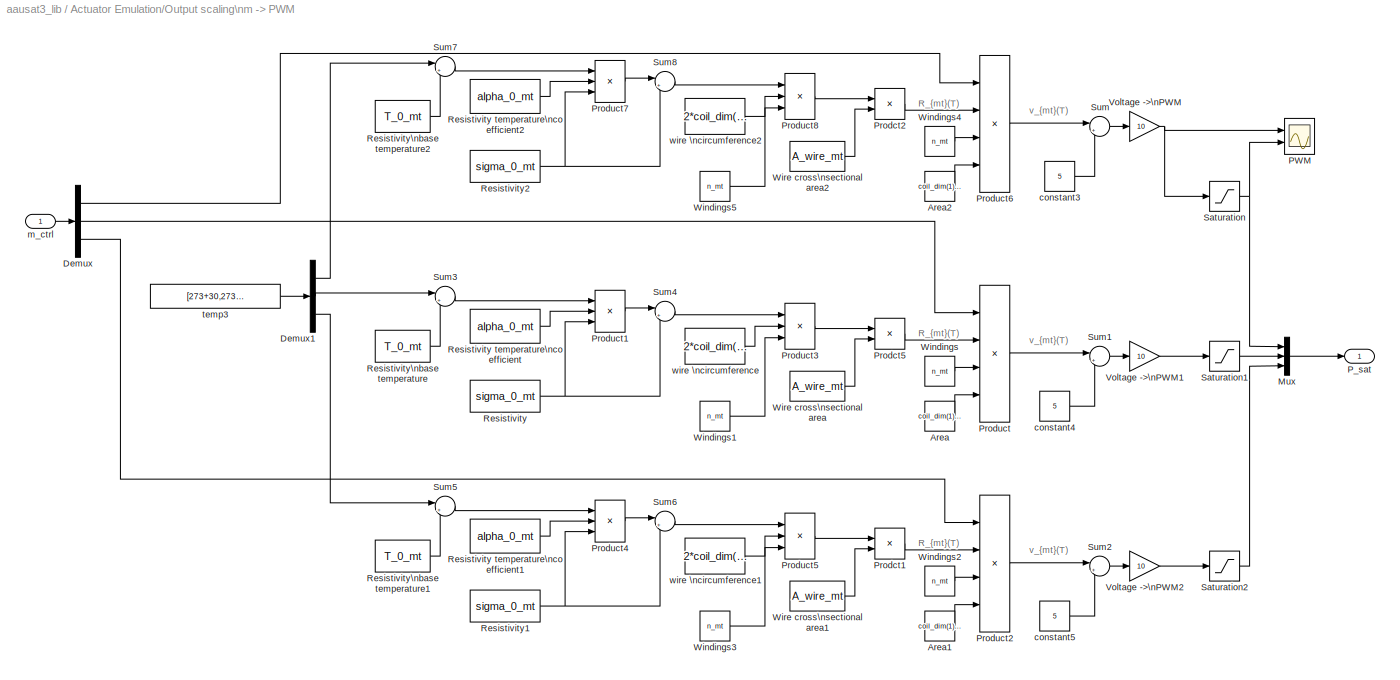
BLOCK [SubSystem] Actuator Emulation/Output scaling\nm -> PWM
  Ports = [1, 1]
  RequestExecContextInheritance = off
  SID = 4380
BLOCK [Constant] Actuator Emulation/Output scaling\nm -> PWM/Area
  SID = 5561
  Value = coil_dim(1)*coil_dim(2)
BLOCK [Constant] Actuator Emulation/Output scaling\nm -> PWM/Area1
  SID = 5562
  Value = coil_dim(1)*coil_dim(2)
BLOCK [Constant] Actuator Emulation/Output scaling\nm -> PWM/Area2
  SID = 5563
  Value = coil_dim(1)*coil_dim(2)
BLOCK [Demux] Actuator Emulation/Output scaling\nm -> PWM/Demux
  DisplayOption = bar
  Outputs = 3
  Ports = [1, 3]
  SID = 5564
BLOCK [Demux] Actuator Emulation/Output scaling\nm -> PWM/Demux1
  DisplayOption = bar
  Outputs = 3
  Ports = [1, 3]
  SID = 5565
BLOCK [Mux] Actuator Emulation/Output scaling\nm -> PWM/Mux
  DisplayOption = bar
  Inputs = 3
  Ports = [3, 1]
  SID = 5566
BLOCK [Scope] Actuator Emulation/Output scaling\nm -> PWM/PWM
  DataFormat = StructureWithTime
  Floating = off
  LimitDataPoints = off
  NumInputPorts = 2
  Ports = [2]
  SID = 5567
  SampleInput = on
  SaveName = ScopeData4
  ShowLegends = off
  TimeRange = 5000
  YMax = 67.5~62.5
  YMin = 37.5~37.5
BLOCK [Outport] Actuator Emulation/Output scaling\nm -> PWM/P_sat
  IconDisplay = Port number
  PortDimensions = 3
  SID = 5620
BLOCK [Product] Actuator Emulation/Output scaling\nm -> PWM/Prodct1
  InputSameDT = off
  Inputs = */
  OutDataTypeStr = Inherit: Inherit via internal rule
  Ports = [2, 1]
  SID = 5568
  SaturateOnIntegerOverflow = off
BLOCK [Product] Actuator Emulation/Output scaling\nm -> PWM/Prodct2
  InputSameDT = off
  Inputs = */
  OutDataTypeStr = Inherit: Inherit via internal rule
  Ports = [2, 1]
  SID = 5569
  SaturateOnIntegerOverflow = off
BLOCK [Product] Actuator Emulation/Output scaling\nm -> PWM/Prodct5
  InputSameDT = off
  Inputs = */
  OutDataTypeStr = Inherit: Inherit via internal rule
  Ports = [2, 1]
  SID = 5570
  SaturateOnIntegerOverflow = off
BLOCK [Product] Actuator Emulation/Output scaling\nm -> PWM/Product
  InputSameDT = off
  Inputs = **//
  OutDataTypeStr = Inherit: Inherit via internal rule
  Ports = [4, 1]
  SID = 5571
  SaturateOnIntegerOverflow = off
BLOCK [Product] Actuator Emulation/Output scaling\nm -> PWM/Product1
  InputSameDT = off
  Inputs = 3
  OutDataTypeStr = Inherit: Inherit via internal rule
  Ports = [3, 1]
  SID = 5572
  SaturateOnIntegerOverflow = off
BLOCK [Product] Actuator Emulation/Output scaling\nm -> PWM/Product2
  InputSameDT = off
  Inputs = **//
  OutDataTypeStr = Inherit: Inherit via internal rule
  Ports = [4, 1]
  SID = 5573
  SaturateOnIntegerOverflow = off
BLOCK [Product] Actuator Emulation/Output scaling\nm -> PWM/Product3
  InputSameDT = off
  Inputs = 3
  OutDataTypeStr = Inherit: Inherit via internal rule
  Ports = [3, 1]
  SID = 5574
  SaturateOnIntegerOverflow = off
BLOCK [Product] Actuator Emulation/Output scaling\nm -> PWM/Product4
  InputSameDT = off
  Inputs = 3
  OutDataTypeStr = Inherit: Inherit via internal rule
  Ports = [3, 1]
  SID = 5575
  SaturateOnIntegerOverflow = off
BLOCK [Product] Actuator Emulation/Output scaling\nm -> PWM/Product5
  InputSameDT = off
  Inputs = 3
  OutDataTypeStr = Inherit: Inherit via internal rule
  Ports = [3, 1]
  SID = 5576
  SaturateOnIntegerOverflow = off
BLOCK [Product] Actuator Emulation/Output scaling\nm -> PWM/Product6
  InputSameDT = off
  Inputs = **//
  OutDataTypeStr = Inherit: Inherit via internal rule
  Ports = [4, 1]
  SID = 5577
  SaturateOnIntegerOverflow = off
BLOCK [Product] Actuator Emulation/Output scaling\nm -> PWM/Product7
  InputSameDT = off
  Inputs = 3
  OutDataTypeStr = Inherit: Inherit via internal rule
  Ports = [3, 1]
  SID = 5578
  SaturateOnIntegerOverflow = off
BLOCK [Product] Actuator Emulation/Output scaling\nm -> PWM/Product8
  InputSameDT = off
  Inputs = 3
  OutDataTypeStr = Inherit: Inherit via internal rule
  Ports = [3, 1]
  SID = 5579
  SaturateOnIntegerOverflow = off
BLOCK [Constant] Actuator Emulation/Output scaling\nm -> PWM/Resistivity
  SID = 5580
  Value = sigma_0_mt
BLOCK [Constant] Actuator Emulation/Output scaling\nm -> PWM/Resistivity temperature\ncoefficient
  SID = 5584
  Value = alpha_0_mt
BLOCK [Constant] Actuator Emulation/Output scaling\nm -> PWM/Resistivity temperature\ncoefficient1
  SID = 5585
  Value = alpha_0_mt
BLOCK [Constant] Actuator Emulation/Output scaling\nm -> PWM/Resistivity temperature\ncoefficient2
  SID = 5586
  Value = alpha_0_mt
BLOCK [Constant] Actuator Emulation/Output scaling\nm -> PWM/Resistivity1
  SID = 5587
  Value = sigma_0_mt
BLOCK [Constant] Actuator Emulation/Output scaling\nm -> PWM/Resistivity2
  SID = 5588
  Value = sigma_0_mt
BLOCK [Constant] Actuator Emulation/Output scaling\nm -> PWM/Resistivity\nbase temperature
  SID = 5581
  Value = T_0_mt
BLOCK [Constant] Actuator Emulation/Output scaling\nm -> PWM/Resistivity\nbase temperature1
  SID = 5582
  Value = T_0_mt
BLOCK [Constant] Actuator Emulation/Output scaling\nm -> PWM/Resistivity\nbase temperature2
  SID = 5583
  Value = T_0_mt
BLOCK [Saturate] Actuator Emulation/Output scaling\nm -> PWM/Saturation
  InputPortMap = u0
  LowerLimit = PWM_min
  Ports = [1, 1]
  SID = 5589
  UpperLimit = PWM_max
BLOCK [Saturate] Actuator Emulation/Output scaling\nm -> PWM/Saturation1
  InputPortMap = u0
  LowerLimit = PWM_min
  Ports = [1, 1]
  SID = 5590
  UpperLimit = PWM_max
BLOCK [Saturate] Actuator Emulation/Output scaling\nm -> PWM/Saturation2
  InputPortMap = u0
  LowerLimit = PWM_min
  Ports = [1, 1]
  SID = 5591
  UpperLimit = PWM_max
BLOCK [Sum] Actuator Emulation/Output scaling\nm -> PWM/Sum
  IconShape = round
  InputSameDT = off
  Inputs = |++
  OutDataTypeStr = Inherit: Inherit via internal rule
  Ports = [2, 1]
  SID = 5592
  SaturateOnIntegerOverflow = off
BLOCK [Sum] Actuator Emulation/Output scaling\nm -> PWM/Sum1
  IconShape = round
  InputSameDT = off
  Inputs = |++
  OutDataTypeStr = Inherit: Inherit via internal rule
  Ports = [2, 1]
  SID = 5593
  SaturateOnIntegerOverflow = off
BLOCK [Sum] Actuator Emulation/Output scaling\nm -> PWM/Sum2
  IconShape = round
  InputSameDT = off
  Inputs = |++
  OutDataTypeStr = Inherit: Inherit via internal rule
  Ports = [2, 1]
  SID = 5594
  SaturateOnIntegerOverflow = off
BLOCK [Sum] Actuator Emulation/Output scaling\nm -> PWM/Sum3
  IconShape = round
  InputSameDT = off
  Inputs = |+-
  OutDataTypeStr = Inherit: Inherit via internal rule
  Ports = [2, 1]
  SID = 5595
  SaturateOnIntegerOverflow = off
BLOCK [Sum] Actuator Emulation/Output scaling\nm -> PWM/Sum4
  IconShape = round
  InputSameDT = off
  Inputs = |++
  OutDataTypeStr = Inherit: Inherit via internal rule
  Ports = [2, 1]
  SID = 5596
  SaturateOnIntegerOverflow = off
BLOCK [Sum] Actuator Emulation/Output scaling\nm -> PWM/Sum5
  IconShape = round
  InputSameDT = off
  Inputs = |+-
  OutDataTypeStr = Inherit: Inherit via internal rule
  Ports = [2, 1]
  SID = 5597
  SaturateOnIntegerOverflow = off
BLOCK [Sum] Actuator Emulation/Output scaling\nm -> PWM/Sum6
  IconShape = round
  InputSameDT = off
  Inputs = |++
  OutDataTypeStr = Inherit: Inherit via internal rule
  Ports = [2, 1]
  SID = 5598
  SaturateOnIntegerOverflow = off
BLOCK [Sum] Actuator Emulation/Output scaling\nm -> PWM/Sum7
  IconShape = round
  InputSameDT = off
  Inputs = |+-
  OutDataTypeStr = Inherit: Inherit via internal rule
  Ports = [2, 1]
  SID = 5599
  SaturateOnIntegerOverflow = off
BLOCK [Sum] Actuator Emulation/Output scaling\nm -> PWM/Sum8
  IconShape = round
  InputSameDT = off
  Inputs = |++
  OutDataTypeStr = Inherit: Inherit via internal rule
  Ports = [2, 1]
  SID = 5600
  SaturateOnIntegerOverflow = off
BLOCK [Gain] Actuator Emulation/Output scaling\nm -> PWM/Voltage ->\nPWM
  Gain = 10
  OutDataTypeStr = Inherit: Inherit via internal rule
  ParamDataTypeStr = Inherit: Inherit via internal rule
  SID = 5601
  SaturateOnIntegerOverflow = off
BLOCK [Gain] Actuator Emulation/Output scaling\nm -> PWM/Voltage ->\nPWM1
  Gain = 10
  OutDataTypeStr = Inherit: Inherit via internal rule
  ParamDataTypeStr = Inherit: Inherit via internal rule
  SID = 5602
  SaturateOnIntegerOverflow = off
BLOCK [Gain] Actuator Emulation/Output scaling\nm -> PWM/Voltage ->\nPWM2
  Gain = 10
  OutDataTypeStr = Inherit: Inherit via internal rule
  ParamDataTypeStr = Inherit: Inherit via internal rule
  SID = 5603
  SaturateOnIntegerOverflow = off
BLOCK [Constant] Actuator Emulation/Output scaling\nm -> PWM/Windings
  SID = 5604
  Value = n_mt
BLOCK [Constant] Actuator Emulation/Output scaling\nm -> PWM/Windings1
  SID = 5605
  Value = n_mt
BLOCK [Constant] Actuator Emulation/Output scaling\nm -> PWM/Windings2
  SID = 5606
  Value = n_mt
BLOCK [Constant] Actuator Emulation/Output scaling\nm -> PWM/Windings3
  SID = 5607
  Value = n_mt
BLOCK [Constant] Actuator Emulation/Output scaling\nm -> PWM/Windings4
  SID = 5608
  Value = n_mt
BLOCK [Constant] Actuator Emulation/Output scaling\nm -> PWM/Windings5
  SID = 5609
  Value = n_mt
BLOCK [Constant] Actuator Emulation/Output scaling\nm -> PWM/Wire cross\nsectional area
  SID = 5610
  Value = A_wire_mt
BLOCK [Constant] Actuator Emulation/Output scaling\nm -> PWM/Wire cross\nsectional area1
  SID = 5611
  Value = A_wire_mt
BLOCK [Constant] Actuator Emulation/Output scaling\nm -> PWM/Wire cross\nsectional area2
  SID = 5612
  Value = A_wire_mt
BLOCK [Constant] Actuator Emulation/Output scaling\nm -> PWM/constant3
  SID = 5613
  Value = 5
BLOCK [Constant] Actuator Emulation/Output scaling\nm -> PWM/constant4
  SID = 5614
  Value = 5
BLOCK [Constant] Actuator Emulation/Output scaling\nm -> PWM/constant5
  SID = 5615
  Value = 5
BLOCK [Inport] Actuator Emulation/Output scaling\nm -> PWM/m_ctrl
  IconDisplay = Port number
  SID = 5560
BLOCK [Constant] Actuator Emulation/Output scaling\nm -> PWM/temp3
  SID = 5616
  Value = [273+30,273+30,273+30]
BLOCK [Constant] Actuator Emulation/Output scaling\nm -> PWM/wire \ncircumference
  SID = 5617
  Value = 2*coil_dim(1)+2*coil_dim(2)
BLOCK [Constant] Actuator Emulation/Output scaling\nm -> PWM/wire \ncircumference1
  SID = 5618
  Value = 2*coil_dim(1)+2*coil_dim(2)
BLOCK [Constant] Actuator Emulation/Output scaling\nm -> PWM/wire \ncircumference2
  SID = 5619
  Value = 2*coil_dim(1)+2*coil_dim(2)
BLOCK [SubSystem] Actuator Emulation/Permanent Magnet
  Ports = [2, 1, 1]
  RequestExecContextInheritance = off
  SID = 1765
BLOCK [Inport] Actuator Emulation/Permanent Magnet/Attitude q(I->S)
  IconDisplay = Port number
  SID = 1766
BLOCK [Reference] Actuator Emulation/Permanent Magnet/Cross Product  REF=aausat3_lib/Math Utilities/Vector operations/Cross Product  (lib defined in mdl_4157f6465749, slx_d9305f96731e)
  FunctionWithSeparateData = off
  Ports = [2, 1]
  RTWMemSecDataConstants = Inherit from model
  RTWMemSecDataInternal = Inherit from model
  RTWMemSecDataParameters = Inherit from model
  RTWMemSecFuncExecute = Inherit from model
  RTWMemSecFuncInitTerm = Inherit from model
  SID = 1770
  ShowPortLabels = FromPortIcon
  SourceBlock = aausat3_lib/Math Utilities/Vector operations/Cross Product
  SourceType = SubSystem
  SystemSampleTime = -1
BLOCK [EnablePort] Actuator Emulation/Permanent Magnet/Enable
  Ports = []
  SID = 1769
BLOCK [Constant] Actuator Emulation/Permanent Magnet/Magnetic dipole moment
  SID = 1771
  Value = [0,0,mag_moment]
BLOCK [Inport] Actuator Emulation/Permanent Magnet/Magnetic field B(I)
  IconDisplay = Port number
  Port = 2
  SID = 1768
BLOCK [Outport] Actuator Emulation/Permanent Magnet/N_mpmag(S)
  IconDisplay = Port number
  SID = 1780
BLOCK [SubSystem] Actuator Emulation/Permanent Magnet/Vector rotation by q
  Ports = [2, 1]
  RequestExecContextInheritance = off
  SID = 1781
BLOCK [Constant] Actuator Emulation/Permanent Magnet/Vector rotation by q/Constant
  SID = 1784
  Value = 0
BLOCK [Demux] Actuator Emulation/Permanent Magnet/Vector rotation by q/Demux
  Outputs = 3
  Ports = [1, 3]
  SID = 1785
BLOCK [Demux] Actuator Emulation/Permanent Magnet/Vector rotation by q/Demux1
  Ports = [1, 4]
  SID = 1786
BLOCK [Mux] Actuator Emulation/Permanent Magnet/Vector rotation by q/Mux
  DisplayOption = bar
  Ports = [4, 1]
  SID = 1787
BLOCK [Mux] Actuator Emulation/Permanent Magnet/Vector rotation by q/Mux1
  DisplayOption = bar
  Inputs = 3
  Ports = [3, 1]
  SID = 1788
BLOCK [SubSystem] Actuator Emulation/Permanent Magnet/Vector rotation by q/Quaternion inverter
  Ports = [1, 1]
  RequestExecContextInheritance = off
  SID = 1789
BLOCK [Demux] Actuator Emulation/Permanent Magnet/Vector rotation by q/Quaternion inverter/Demux
  Ports = [1, 4]
  SID = 1791
BLOCK [Demux] Actuator Emulation/Permanent Magnet/Vector rotation by q/Quaternion inverter/Demux1
  Outputs = 3
  Ports = [1, 3]
  SID = 1792
BLOCK [Gain] Actuator Emulation/Permanent Magnet/Vector rotation by q/Quaternion inverter/Gain
  Gain = -1
  SID = 1793
BLOCK [Mux] Actuator Emulation/Permanent Magnet/Vector rotation by q/Quaternion inverter/Mux
  DisplayOption = bar
  Ports = [4, 1]
  SID = 1794
BLOCK [Mux] Actuator Emulation/Permanent Magnet/Vector rotation by q/Quaternion inverter/Mux1
  DisplayOption = bar
  Inputs = 3
  Ports = [3, 1]
  SID = 1795
BLOCK [Inport] Actuator Emulation/Permanent Magnet/Vector rotation by q/Quaternion inverter/q
  IconDisplay = Port number
  SID = 1790
BLOCK [Outport] Actuator Emulation/Permanent Magnet/Vector rotation by q/Quaternion inverter/q^-1
  IconDisplay = Port number
  SID = 1796
BLOCK [S-Function] Actuator Emulation/Permanent Magnet/Vector rotation by q/Quaternion mulitiplication
  EnableBusSupport = off
  FunctionName = qmul
  Ports = [2, 1]
  SID = 1797
BLOCK [S-Function] Actuator Emulation/Permanent Magnet/Vector rotation by q/Quaternion mulitiplication1
  EnableBusSupport = off
  FunctionName = qmul
  Ports = [2, 1]
  SID = 1798
BLOCK [Terminator] Actuator Emulation/Permanent Magnet/Vector rotation by q/Terminator
  SID = 1799
BLOCK [Inport] Actuator Emulation/Permanent Magnet/Vector rotation by q/V
  IconDisplay = Port number
  Port = 2
  SID = 1783
BLOCK [Inport] Actuator Emulation/Permanent Magnet/Vector rotation by q/q
  IconDisplay = Port number
  SID = 1782
BLOCK [Outport] Actuator Emulation/Permanent Magnet/Vector rotation by q/q'Vq
  IconDisplay = Port number
  SID = 1800
BLOCK [SubSystem] Disturbances
  Ports = []
  RequestExecContextInheritance = off
  SID = 18
  ShowPortLabels = none
BLOCK [SubSystem] Disturbances/Atmospheric
  Ports = [6, 2, 1]
  RequestExecContextInheritance = off
  SID = 735
BLOCK [Constant] Disturbances/Atmospheric/C_D1
  SID = 5843
  Value = Cd
BLOCK [Demux] Disturbances/Atmospheric/Demux
  DisplayOption = bar
  Outputs = 6
  Ports = [1, 6]
  SID = 5848
BLOCK [SubSystem] Disturbances/Atmospheric/Density7
  Ports = [3, 2]
  RequestExecContextInheritance = off
  SID = 5778
BLOCK [Sum] Disturbances/Atmospheric/Density7/Add
  InputSameDT = off
  OutDataTypeStr = Inherit: Inherit via internal rule
  Ports = [2, 1]
  SID = 5781
  SaturateOnIntegerOverflow = off
BLOCK [Constant] Disturbances/Atmospheric/Density7/Constant
  SID = 5782
BLOCK [Constant] Disturbances/Atmospheric/Density7/Constant1
  SID = 5783
  Value = 2
BLOCK [Constant] Disturbances/Atmospheric/Density7/Constant2
  SID = 5784
  Value = 2
BLOCK [Display] Disturbances/Atmospheric/Density7/Display
  Decimation = 1
  Ports = [1]
  SID = 5785
BLOCK [Display] Disturbances/Atmospheric/Density7/Display1
  Decimation = 1
  Ports = [1]
  SID = 5786
BLOCK [Display] Disturbances/Atmospheric/Density7/Display3
  Decimation = 1
  Ports = [1]
  SID = 5787
BLOCK [Display] Disturbances/Atmospheric/Density7/Display4
  Decimation = 1
  Ports = [1]
  SID = 5788
BLOCK [Product] Disturbances/Atmospheric/Density7/Divide
  InputSameDT = off
  Inputs = /*
  OutDataTypeStr = Inherit: Inherit via internal rule
  Ports = [2, 1]
  RndMeth = Floor
  SID = 5789
  SaturateOnIntegerOverflow = off
BLOCK [Product] Disturbances/Atmospheric/Density7/Divide1
  InputSameDT = off
  Inputs = */
  OutDataTypeStr = Inherit: Inherit via internal rule
  Ports = [2, 1]
  RndMeth = Floor
  SID = 5790
  SaturateOnIntegerOverflow = off
BLOCK [SubSystem] Disturbances/Atmospheric/Density7/Embedded\nMATLAB Function
  ErrorFcn = Stateflow.Translate.translate
  PermitHierarchicalResolution = ExplicitOnly
  Ports = [2, 2]
  RequestExecContextInheritance = off
  SFBlockType = MATLAB Function
  SID = 5791
  TreatAsAtomicUnit = on
BLOCK [Demux] Disturbances/Atmospheric/Density7/Embedded\nMATLAB Function/ Demux 
  Outputs = 1
  Ports = [1, 1]
  SID = 5791::20
BLOCK [S-Function] Disturbances/Atmospheric/Density7/Embedded\nMATLAB Function/ SFunction 
  EnableBusSupport = off
  FunctionName = sf_sfun
  PortCounts = [2 3]
  Ports = [2, 3]
  SID = 5791::19
  Tag = Stateflow S-Function aausat3_lib 15
BLOCK [Terminator] Disturbances/Atmospheric/Density7/Embedded\nMATLAB Function/ Terminator 
  SID = 5791::21
BLOCK [Inport] Disturbances/Atmospheric/Density7/Embedded\nMATLAB Function/cosn_si2
  IconDisplay = Port number
  SID = 5791::10
BLOCK [Outport] Disturbances/Atmospheric/Density7/Embedded\nMATLAB Function/h
  IconDisplay = Port number
  Port = 2
  SID = 5791::11
BLOCK [Inport] Disturbances/Atmospheric/Density7/Embedded\nMATLAB Function/r
  IconDisplay = Port number
  Port = 2
  SID = 5791::1
BLOCK [Outport] Disturbances/Atmospheric/Density7/Embedded\nMATLAB Function/rho
  IconDisplay = Port number
  SID = 5791::5
BLOCK [SubSystem] Disturbances/Atmospheric/Density7/Exponent n\nEq: [(1//22.5)*i]+2
  Ports = [1, 1]
  RequestExecContextInheritance = off
  SID = 5792
BLOCK [Sum] Disturbances/Atmospheric/Density7/Exponent n\nEq: [(1//22.5)*i]+2/Add
  InputSameDT = off
  OutDataTypeStr = Inherit: Inherit via internal rule
  Ports = [2, 1]
  SID = 5794
  SaturateOnIntegerOverflow = off
BLOCK [Product] Disturbances/Atmospheric/Density7/Exponent n\nEq: [(1//22.5)*i]+2/Product
  InputSameDT = off
  OutDataTypeStr = Inherit: Inherit via internal rule
  Ports = [2, 1]
  SID = 5795
  SaturateOnIntegerOverflow = off
BLOCK [Constant] Disturbances/Atmospheric/Density7/Exponent n\nEq: [(1//22.5)*i]+2/a
  SID = 5796
  Value = 1/22.5
BLOCK [Constant] Disturbances/Atmospheric/Density7/Exponent n\nEq: [(1//22.5)*i]+2/b
  SID = 5797
  Value = 2
BLOCK [Inport] Disturbances/Atmospheric/Density7/Exponent n\nEq: [(1//22.5)*i]+2/i
  IconDisplay = Port number
  SID = 5793
BLOCK [Outport] Disturbances/Atmospheric/Density7/Exponent n\nEq: [(1//22.5)*i]+2/n
  IconDisplay = Port number
  SID = 5798
BLOCK [SubSystem] Disturbances/Atmospheric/Density7/Subsystem
  Ports = [1, 1]
  RequestExecContextInheritance = off
  SID = 5800
BLOCK [Constant] Disturbances/Atmospheric/Density7/Subsystem/30 deg Lag Angle\nin Longitude
  SID = 5802
  Value = 30*(pi/180)
BLOCK [Sum] Disturbances/Atmospheric/Density7/Subsystem/Add1
  InputSameDT = off
  OutDataTypeStr = Inherit: Inherit via internal rule
  Ports = [2, 1]
  SID = 5803
  SaturateOnIntegerOverflow = off
BLOCK [Sum] Disturbances/Atmospheric/Density7/Subsystem/Add2
  InputSameDT = off
  OutDataTypeStr = Inherit: Inherit via internal rule
  Ports = [2, 1]
  SID = 5804
  SaturateOnIntegerOverflow = off
BLOCK [Clock] Disturbances/Atmospheric/Density7/Subsystem/Clock
  SID = 5805
BLOCK [Constant] Disturbances/Atmospheric/Density7/Subsystem/Constant3
  SID = 5806
  Value = 86400
BLOCK [Display] Disturbances/Atmospheric/Density7/Subsystem/Display
  Decimation = 1
  Ports = [1]
  SID = 5807
BLOCK [Display] Disturbances/Atmospheric/Density7/Subsystem/Display1
  Decimation = 1
  Ports = [1]
  SID = 5808
BLOCK [Display] Disturbances/Atmospheric/Density7/Subsystem/Display2
  Decimation = 1
  Ports = [1]
  SID = 5809
BLOCK [Product] Disturbances/Atmospheric/Density7/Subsystem/Divide2
  InputSameDT = off
  Inputs = */
  OutDataTypeStr = Inherit: Inherit via internal rule
  Ports = [2, 1]
  RndMeth = Floor
  SID = 5810
  SaturateOnIntegerOverflow = off
BLOCK [Inport] Disturbances/Atmospheric/Density7/Subsystem/JD
  IconDisplay = Port number
  SID = 5801
BLOCK [Mux] Disturbances/Atmospheric/Density7/Subsystem/Mux
  DisplayOption = bar
  Inputs = 3
  Ports = [3, 1]
  SID = 5811
BLOCK [Product] Disturbances/Atmospheric/Density7/Subsystem/Product
  InputSameDT = off
  OutDataTypeStr = Inherit: Inherit via internal rule
  Ports = [2, 1]
  SID = 5812
  SaturateOnIntegerOverflow = off
BLOCK [Product] Disturbances/Atmospheric/Density7/Subsystem/Product1
  InputSameDT = off
  OutDataTypeStr = Inherit: Inherit via internal rule
  Ports = [2, 1]
  SID = 5813
  SaturateOnIntegerOverflow = off
BLOCK [SubSystem] Disturbances/Atmospheric/Density7/Subsystem/R.Ascen & Declination\nin rads
  ErrorFcn = Stateflow.Translate.translate
  PermitHierarchicalResolution = ExplicitOnly
  Ports = [1, 2]
  RequestExecContextInheritance = off
  SFBlockType = MATLAB Function
  SID = 5814
  TreatAsAtomicUnit = on
BLOCK [Demux] Disturbances/Atmospheric/Density7/Subsystem/R.Ascen & Declination\nin rads/ Demux 
  Outputs = 1
  Ports = [1, 1]
  SID = 5814::20
BLOCK [S-Function] Disturbances/Atmospheric/Density7/Subsystem/R.Ascen & Declination\nin rads/ SFunction 
  EnableBusSupport = off
  FunctionName = sf_sfun
  PortCounts = [1 3]
  Ports = [1, 3]
  SID = 5814::19
  Tag = Stateflow S-Function aausat3_lib 16
BLOCK [Terminator] Disturbances/Atmospheric/Density7/Subsystem/R.Ascen & Declination\nin rads/ Terminator 
  SID = 5814::21
BLOCK [Outport] Disturbances/Atmospheric/Density7/Subsystem/R.Ascen & Declination\nin rads/decl
  IconDisplay = Port number
  Port = 2
  SID = 5814::11
BLOCK [Inport] Disturbances/Atmospheric/Density7/Subsystem/R.Ascen & Declination\nin rads/jd
  IconDisplay = Port number
  SID = 5814::1
BLOCK [Outport] Disturbances/Atmospheric/Density7/Subsystem/R.Ascen & Declination\nin rads/rtasc
  IconDisplay = Port number
  SID = 5814::10
BLOCK [Trigonometry] Disturbances/Atmospheric/Density7/Subsystem/Trigonometric\nFunction
  Ports = [1, 1]
  SID = 5815
BLOCK [Trigonometry] Disturbances/Atmospheric/Density7/Subsystem/Trigonometric\nFunction1
  Operator = cos
  Ports = [1, 1]
  SID = 5816
BLOCK [Trigonometry] Disturbances/Atmospheric/Density7/Subsystem/Trigonometric\nFunction2
  Ports = [1, 1]
  SID = 5817
BLOCK [Trigonometry] Disturbances/Atmospheric/Density7/Subsystem/Trigonometric\nFunction3
  Operator = cos
  Ports = [1, 1]
  SID = 5818
BLOCK [Outport] Disturbances/Atmospheric/Density7/Subsystem/e-sun
  IconDisplay = Port number
  SID = 5819
BLOCK [SubSystem] Disturbances/Atmospheric/Density7/Unit Vector
  Ports = [1, 1]
  RequestExecContextInheritance = off
  SID = 5820
BLOCK [Product] Disturbances/Atmospheric/Density7/Unit Vector/Divide1
  InputSameDT = off
  Inputs = */
  OutDataTypeStr = Inherit: Inherit via internal rule
  Ports = [2, 1]
  RndMeth = Floor
  SID = 5822
  SaturateOnIntegerOverflow = off
BLOCK [Outport] Disturbances/Atmospheric/Density7/Unit Vector/Unit Vector
  IconDisplay = Port number
  SID = 5830
BLOCK [Inport] Disturbances/Atmospheric/Density7/Unit Vector/Vector
  IconDisplay = Port number
  SID = 5821
BLOCK [SubSystem] Disturbances/Atmospheric/Density7/Unit Vector/Vector Mag
  Ports = [1, 1]
  RequestExecContextInheritance = off
  SID = 5823
BLOCK [Demux] Disturbances/Atmospheric/Density7/Unit Vector/Vector Mag/Demux
  DisplayOption = bar
  Outputs = 3
  Ports = [1, 3]
  SID = 5825
BLOCK [Outport] Disturbances/Atmospheric/Density7/Unit Vector/Vector Mag/Magnitude
  IconDisplay = Port number
  SID = 5829
BLOCK [Math] Disturbances/Atmospheric/Density7/Unit Vector/Vector Mag/Math\nFunction
  Operator = magnitude^2
  Ports = [1, 1]
  SID = 5826
BLOCK [Math] Disturbances/Atmospheric/Density7/Unit Vector/Vector Mag/Math\nFunction1
  Operator = sqrt
  Ports = [1, 1]
  SID = 5827
BLOCK [Sum] Disturbances/Atmospheric/Density7/Unit Vector/Vector Mag/Sum
  InputSameDT = off
  Inputs = +++
  OutDataTypeStr = Inherit: Inherit via internal rule
  Ports = [3, 1]
  SID = 5828
  SaturateOnIntegerOverflow = off
BLOCK [Inport] Disturbances/Atmospheric/Density7/Unit Vector/Vector Mag/Vector
  IconDisplay = Port number
  SID = 5824
BLOCK [Math] Disturbances/Atmospheric/Density7/cosn(si//2)
  Operator = pow
  Ports = [2, 1]
  SID = 5831
BLOCK [DotProduct] Disturbances/Atmospheric/Density7/eb.er
  OutDataTypeStr = Inherit: Inherit via internal rule
  SID = 5832
BLOCK [Outport] Disturbances/Atmospheric/Density7/geo-h
  IconDisplay = Port number
  Port = 2
  SID = 5834
BLOCK [Inport] Disturbances/Atmospheric/Density7/i
  IconDisplay = Port number
  SID = 5779
BLOCK [Inport] Disturbances/Atmospheric/Density7/jd
  IconDisplay = Port number
  Port = 3
  SID = 5840
BLOCK [Inport] Disturbances/Atmospheric/Density7/r
  IconDisplay = Port number
  Port = 2
  SID = 5780
BLOCK [Outport] Disturbances/Atmospheric/Density7/rho
  IconDisplay = Port number
  SID = 5833
BLOCK [EnablePort] Disturbances/Atmospheric/Enable
  Ports = []
  SID = 5861
BLOCK [Outport] Disturbances/Atmospheric/F_atm(I)
  IconDisplay = Port number
  Port = 2
  SID = 757
BLOCK [SubSystem] Disturbances/Atmospheric/MATLAB Function
  ErrorFcn = Stateflow.Translate.translate
  PermitHierarchicalResolution = ExplicitOnly
  Ports = [1, 1]
  RequestExecContextInheritance = off
  SFBlockType = MATLAB Function
  SID = 5855
  TreatAsAtomicUnit = on
BLOCK [Demux] Disturbances/Atmospheric/MATLAB Function/ Demux 
  Outputs = 1
  Ports = [1, 1]
  SID = 5855::22
BLOCK [S-Function] Disturbances/Atmospheric/MATLAB Function/ SFunction 
  EnableBusSupport = off
  FunctionName = sf_sfun
  PortCounts = [1 2]
  Ports = [1, 2]
  SID = 5855::21
  Tag = Stateflow S-Function aausat3_lib 12
BLOCK [Terminator] Disturbances/Atmospheric/MATLAB Function/ Terminator 
  SID = 5855::23
BLOCK [Inport] Disturbances/Atmospheric/MATLAB Function/input
  IconDisplay = Port number
  SID = 5855::1
BLOCK [Outport] Disturbances/Atmospheric/MATLAB Function/out
  IconDisplay = Port number
  SID = 5855::5
BLOCK [Mux] Disturbances/Atmospheric/Mux
  DisplayOption = bar
  Inputs = 6
  Ports = [6, 1]
  SID = 5846
BLOCK [Mux] Disturbances/Atmospheric/Mux1
  DisplayOption = bar
  Inputs = 3
  Ports = [3, 1]
  SID = 5849
BLOCK [Mux] Disturbances/Atmospheric/Mux2
  DisplayOption = bar
  Inputs = 3
  Ports = [3, 1]
  SID = 5850
BLOCK [Outport] Disturbances/Atmospheric/N_atm(S)
  IconDisplay = Port number
  SID = 756
BLOCK [Inport] Disturbances/Atmospheric/R_com(S)
  IconDisplay = Port number
  Port = 3
  SID = 738
BLOCK [Inport] Disturbances/Atmospheric/V_sc(I)
  IconDisplay = Port number
  Port = 2
  SID = 737
BLOCK [Inport] Disturbances/Atmospheric/inclination
  IconDisplay = Port number
  Port = 4
  SID = 5835
BLOCK [Inport] Disturbances/Atmospheric/jd
  IconDisplay = Port number
  Port = 6
  SID = 5841
BLOCK [Inport] Disturbances/Atmospheric/q(I->S)
  IconDisplay = Port number
  SID = 736
BLOCK [Inport] Disturbances/Atmospheric/r_pos
  IconDisplay = Port number
  Port = 5
  SID = 5836
BLOCK [SubSystem] Disturbances/Environment Disturbances
  Ports = [13, 2, 1]
  RequestExecContextInheritance = off
  SID = 1007
BLOCK [Reference] Disturbances/Environment Disturbances/Atmospheric  REF=aausat3_lib/Disturbances/Atmospheric  (lib defined in mdl_4157f6465749, slx_d9305f96731e)
  Cd = Cd
  Ports = [6, 2, 1]
  SID = 1032
  SourceBlock = aausat3_lib/Disturbances/Atmospheric
  rho = rho
BLOCK [Inport] Disturbances/Environment Disturbances/Attitude q(I -> S)
  IconDisplay = Port number
  Port = 5
  SID = 1012
BLOCK [Constant] Disturbances/Environment Disturbances/Constant
  SID = 1036
  Value = enable_rad_dist
BLOCK [Constant] Disturbances/Environment Disturbances/Constant1
  SID = 1039
  Value = enable_atmospheric_dist
BLOCK [Constant] Disturbances/Environment Disturbances/Constant2
  SID = 1038
  Value = enable_gravity_dist
BLOCK [Constant] Disturbances/Environment Disturbances/Constant3
  SID = 1643
  Value = enable_mag_residual_dist
BLOCK [Outport] Disturbances/Environment Disturbances/Disturbance Force F_dist(I)
  IconDisplay = Port number
  Port = 2
  SID = 1030
BLOCK [Outport] Disturbances/Environment Disturbances/Disturbance tourque N_dist(S)
  IconDisplay = Port number
  SID = 1029
BLOCK [EnablePort] Disturbances/Environment Disturbances/Enable
  Ports = []
  SID = 1035
BLOCK [Scope] Disturbances/Environment Disturbances/Euler angle1
  DataFormat = StructureWithTime
  Floating = off
  LimitDataPoints = off
  NumInputPorts = 4
  Ports = [4]
  SID = 5552
  SampleInput = on
  SaveName = dist_sep
  SaveToWorkspace = on
  ShowLegends = off
  TimeRange = 5000
  YMax = 2e-08~4e-07~1.5e-08~4e-08
  YMin = -2e-08~-4e-07~-1.5e-08~-4e-08
  ZoomMode = yonly
BLOCK [Reference] Disturbances/Environment Disturbances/Gravity  REF=aausat3_lib/Disturbances/Gravity  (lib defined in mdl_4157f6465749, slx_d9305f96731e)
  G = G
  M_earth = M_earth
  M_moon = M_moon
  M_sun = M_sun
  Ports = [7, 2, 1]
  SID = 1894
  SourceBlock = aausat3_lib/Disturbances/Gravity
  enable_gravity_torque = on
  enable_moon_G = on
  enable_sun_G = on
  enable_zharm_earth = on
BLOCK [Inport] Disturbances/Environment Disturbances/Inertia I_f(C)
  IconDisplay = Port number
  Port = 3
  SID = 1010
BLOCK [Reference] Disturbances/Environment Disturbances/Magnetic Residual Disturbance  REF=aausat3_lib/Disturbances/Magnetic Residual Disturbance  (lib defined in mdl_4157f6465749, slx_d9305f96731e)
  Ports = [2, 1, 1]
  SID = 3593
  SourceBlock = aausat3_lib/Disturbances/Magnetic Residual Disturbance
  mag_moment = 0.00033
BLOCK [Inport] Disturbances/Environment Disturbances/Magnetic field B(I)
  IconDisplay = Port number
  Port = 11
  SID = 1645
BLOCK [Inport] Disturbances/Environment Disturbances/Mass of Spacecraft
  IconDisplay = Port number
  Port = 8
  SID = 1015
BLOCK [Inport] Disturbances/Environment Disturbances/Moon positon R_m(I)
  IconDisplay = Port number
  SID = 1008
BLOCK [Inport] Disturbances/Environment Disturbances/Orbit position R_sc(I)
  IconDisplay = Port number
  Port = 4
  SID = 1011
BLOCK [Inport] Disturbances/Environment Disturbances/Orbit velocity V_sc(I)
  IconDisplay = Port number
  Port = 6
  SID = 1013
BLOCK [Reference] Disturbances/Environment Disturbances/Quaternion inverter  REF=aausat3_lib/Math Utilities/Quaternion operations/Quaternion inverter  (lib defined in mdl_4157f6465749, slx_d9305f96731e)
  Ports = [1, 1]
  SID = 1034
  SourceBlock = aausat3_lib/Math Utilities/Quaternion operations/Quaternion inverter
  SourceType = SubSystem
BLOCK [Inport] Disturbances/Environment Disturbances/R_CoM(S)
  IconDisplay = Port number
  Port = 7
  SID = 1014
BLOCK [Reference] Disturbances/Environment Disturbances/Radiation (I)  REF=aausat3_lib/Disturbances/Radiation (I)  (lib defined in mdl_4157f6465749, slx_d9305f96731e)
  Dim = Dim
  Ports = [5, 2, 1]
  SID = 1031
  SourceBlock = aausat3_lib/Disturbances/Radiation (I)
  solar_absorb_coeff = solar_absorb_coeff
  solar_m_flux = solar_m_flux
BLOCK [Sum] Disturbances/Environment Disturbances/Sum1
  InputSameDT = off
  Inputs = ++++
  OutDataTypeStr = Inherit: Inherit via internal rule
  Ports = [4, 1]
  SID = 1025
BLOCK [Sum] Disturbances/Environment Disturbances/Sum2
  InputSameDT = off
  Inputs = +++
  OutDataTypeStr = Inherit: Inherit via internal rule
  Ports = [3, 1]
  SID = 1026
BLOCK [Inport] Disturbances/Environment Disturbances/Sun position R_s(I)
  IconDisplay = Port number
  Port = 2
  SID = 1009
BLOCK [Inport] Disturbances/Environment Disturbances/eclipse
  IconDisplay = Port number
  Port = 10
  SID = 1017
BLOCK [Inport] Disturbances/Environment Disturbances/inclination
  IconDisplay = Port number
  Port = 12
  SID = 5864
BLOCK [Inport] Disturbances/Environment Disturbances/jd
  IconDisplay = Port number
  Port = 13
  SID = 5865
BLOCK [Inport] Disturbances/Environment Disturbances/q(S->C)
  IconDisplay = Port number
  Port = 9
  SID = 1016
BLOCK [SubSystem] Disturbances/Gravity
  Ports = [7, 2, 1]
  RequestExecContextInheritance = off
  SID = 1713
BLOCK [SubSystem] Disturbances/Gravity Gradient Torque
  Ports = [5, 2, 1]
  RequestExecContextInheritance = off
  SID = 805
BLOCK [Gain] Disturbances/Gravity Gradient Torque/3*GM
  Gain = 3*G*M_earth
  SID = 819
BLOCK [Constant] Disturbances/Gravity Gradient Torque/Constant
  SID = 820
  Value = 3
BLOCK [Constant] Disturbances/Gravity Gradient Torque/Constant1
  SID = 821
  Value = [1 0 0;0 1 0;0 0 1]
BLOCK [Constant] Disturbances/Gravity Gradient Torque/Constant2
  SID = 822
  Value = [1 1 1]
  VectorParams1D = off
BLOCK [Reference] Disturbances/Gravity Gradient Torque/Cross Product  REF=aausat3_lib/Math Utilities/Vector operations/Cross Product  (lib defined in mdl_4157f6465749, slx_d9305f96731e)
  Ports = [2, 1]
  SID = 873
  SourceBlock = aausat3_lib/Math Utilities/Vector operations/Cross Product
  SourceType = SubSystem
BLOCK [DotProduct] Disturbances/Gravity Gradient Torque/Dot roduct
  OutDataTypeStr = Inherit: Inherit via internal rule
  SID = 823
BLOCK [EnablePort] Disturbances/Gravity Gradient Torque/Enable
  Ports = []
  SID = 878
BLOCK [Outport] Disturbances/Gravity Gradient Torque/F_e(I)
  IconDisplay = Port number
  Port = 2
  SID = 1890
BLOCK [Constant] Disturbances/Gravity Gradient Torque/G*M_m1
  SID = 1882
  Value = G*M_earth
BLOCK [Gain] Disturbances/Gravity Gradient Torque/Gain1
  Gain = -1
  SID = 1883
BLOCK [Inport] Disturbances/Gravity Gradient Torque/I(C)
  IconDisplay = Port number
  Port = 2
  SID = 807
BLOCK [SubSystem] Disturbances/Gravity Gradient Torque/MATLAB Function6
  ErrorFcn = Stateflow.Translate.translate
  PermitHierarchicalResolution = ExplicitOnly
  Ports = [1, 1]
  RequestExecContextInheritance = off
  SFBlockType = MATLAB Function
  SID = 5688
  TreatAsAtomicUnit = on
BLOCK [Demux] Disturbances/Gravity Gradient Torque/MATLAB Function6/ Demux 
  Outputs = 1
  Ports = [1, 1]
  SID = 5688::22
BLOCK [S-Function] Disturbances/Gravity Gradient Torque/MATLAB Function6/ SFunction 
  EnableBusSupport = off
  FunctionName = sf_sfun
  PortCounts = [1 2]
  Ports = [1, 2]
  SID = 5688::21
  Tag = Stateflow S-Function aausat3_lib 7
BLOCK [Terminator] Disturbances/Gravity Gradient Torque/MATLAB Function6/ Terminator 
  SID = 5688::23
BLOCK [Inport] Disturbances/Gravity Gradient Torque/MATLAB Function6/u
  IconDisplay = Port number
  SID = 5688::1
BLOCK [Outport] Disturbances/Gravity Gradient Torque/MATLAB Function6/y
  IconDisplay = Port number
  SID = 5688::5
BLOCK [Inport] Disturbances/Gravity Gradient Torque/M_sat1
  IconDisplay = Port number
  Port = 5
  SID = 1881
BLOCK [Math] Disturbances/Gravity Gradient Torque/Math\nFunction3
  Operator = reciprocal
  Ports = [1, 1]
  SID = 1884
BLOCK [Math] Disturbances/Gravity Gradient Torque/Math\nFunction4
  Operator = magnitude^2
  Ports = [1, 1]
  SID = 1885
BLOCK [Outport] Disturbances/Gravity Gradient Torque/N_gr(S)
  IconDisplay = Port number
  SID = 834
BLOCK [Product] Disturbances/Gravity Gradient Torque/Product
  InputSameDT = off
  Multiplication = Matrix(*)
  Ports = [2, 1]
  RndMeth = Floor
  SID = 824
BLOCK [Product] Disturbances/Gravity Gradient Torque/Product1
  InputSameDT = off
  Ports = [2, 1]
  RndMeth = Floor
  SID = 825
BLOCK [Product] Disturbances/Gravity Gradient Torque/Product2
  InputSameDT = off
  Multiplication = Matrix(*)
  Ports = [2, 1]
  RndMeth = Floor
  SID = 826
BLOCK [Product] Disturbances/Gravity Gradient Torque/Product3
  InputSameDT = off
  Ports = [2, 1]
  RndMeth = Floor
  SID = 827
BLOCK [Product] Disturbances/Gravity Gradient Torque/Product7
  InputSameDT = off
  Ports = [2, 1]
  RndMeth = Floor
  SID = 1886
BLOCK [Product] Disturbances/Gravity Gradient Torque/Product8
  InputSameDT = off
  Ports = [2, 1]
  RndMeth = Floor
  SID = 1887
BLOCK [Product] Disturbances/Gravity Gradient Torque/Product9
  InputSameDT = off
  Ports = [2, 1]
  RndMeth = Floor
  SID = 1888
BLOCK [Math] Disturbances/Gravity Gradient Torque/R
  Operator = pow
  Ports = [2, 1]
  SID = 828
BLOCK [Inport] Disturbances/Gravity Gradient Torque/R_sc(I)
  IconDisplay = Port number
  SID = 806
BLOCK [Reference] Disturbances/Gravity Gradient Torque/To unit vector  REF=aausat3_lib/Math Utilities/Vector operations/To unit vector  (lib defined in mdl_4157f6465749, slx_d9305f96731e)
  Ports = [1, 1]
  SID = 874
  SourceBlock = aausat3_lib/Math Utilities/Vector operations/To unit vector
  SourceType = SubSystem
BLOCK [Reference] Disturbances/Gravity Gradient Torque/To unit vector2  REF=aausat3_lib/Math Utilities/Vector operations/To unit vector  (lib defined in mdl_4157f6465749, slx_d9305f96731e)
  Ports = [1, 1]
  SID = 1889
  SourceBlock = aausat3_lib/Math Utilities/Vector operations/To unit vector
  SourceType = SubSystem
BLOCK [Reference] Disturbances/Gravity Gradient Torque/Vector rotation by q  REF=aausat3_lib/Math Utilities/Quaternion operations/Vector rotation by q  (lib defined in mdl_4157f6465749, slx_d9305f96731e)
  Ports = [2, 2]
  SID = 872
  SourceBlock = aausat3_lib/Math Utilities/Quaternion operations/Vector rotation by q
  SourceType = SubSystem
BLOCK [SubSystem] Disturbances/Gravity Gradient Torque/\n
  Ports = [3, 1]
  RequestExecContextInheritance = off
  SID = 810
BLOCK [Reference] Disturbances/Gravity Gradient Torque/\n/Quaternion inverter  REF=aausat3_lib/Math Utilities/Quaternion operations/Quaternion inverter  (lib defined in mdl_4157f6465749, slx_d9305f96731e)
  Ports = [1, 1]
  SID = 864
  SourceBlock = aausat3_lib/Math Utilities/Quaternion operations/Quaternion inverter
  SourceType = SubSystem
BLOCK [Outport] Disturbances/Gravity Gradient Torque/\n/R_sc(C)
  IconDisplay = Port number
  SID = 818
BLOCK [Inport] Disturbances/Gravity Gradient Torque/\n/R_sc(I)
  IconDisplay = Port number
  Port = 3
  SID = 813
BLOCK [Reference] Disturbances/Gravity Gradient Torque/\n/Rotation of q1 by q2  REF=aausat3_lib/Math Utilities/Quaternion operations/Rotation of q1 by q2  (lib defined in mdl_4157f6465749, slx_d9305f96731e)
  Ports = [2, 1]
  SID = 871
  SourceBlock = aausat3_lib/Math Utilities/Quaternion operations/Rotation of q1 by q2
  SourceType = SubSystem
BLOCK [Reference] Disturbances/Gravity Gradient Torque/\n/To unit vector  REF=aausat3_lib/Math Utilities/Vector operations/To unit vector  (lib defined in mdl_4157f6465749, slx_d9305f96731e)
  Ports = [1, 1]
  SID = 865
  SourceBlock = aausat3_lib/Math Utilities/Vector operations/To unit vector
  SourceType = SubSystem
BLOCK [Reference] Disturbances/Gravity Gradient Torque/\n/Vector rotation by q  REF=aausat3_lib/Math Utilities/Quaternion operations/Vector rotation by q  (lib defined in mdl_4157f6465749, slx_d9305f96731e)
  Ports = [2, 2]
  SID = 863
  SourceBlock = aausat3_lib/Math Utilities/Quaternion operations/Vector rotation by q
  SourceType = SubSystem
BLOCK [Inport] Disturbances/Gravity Gradient Torque/\n/q(C->SC)
  IconDisplay = Port number
  SID = 811
BLOCK [Inport] Disturbances/Gravity Gradient Torque/\n/q(I -> SC)
  IconDisplay = Port number
  Port = 2
  SID = 812
BLOCK [Math] Disturbances/Gravity Gradient Torque/inv
  Operator = reciprocal
  Ports = [1, 1]
  SID = 831
BLOCK [Math] Disturbances/Gravity Gradient Torque/inv1
  Operator = sqrt
  Ports = [1, 1]
  SID = 832
BLOCK [Inport] Disturbances/Gravity Gradient Torque/q(C->S)
  IconDisplay = Port number
  Port = 3
  SID = 808
BLOCK [Inport] Disturbances/Gravity Gradient Torque/q(I->S)
  IconDisplay = Port number
  Port = 4
  SID = 809
BLOCK [SubSystem] Disturbances/Gravity Moon
  Ports = [5, 2, 1]
  RequestExecContextInheritance = off
  SID = 1648
BLOCK [Gain] Disturbances/Gravity Moon/3*GM
  Gain = 3*G*M_moon
  SID = 1831
BLOCK [Constant] Disturbances/Gravity Moon/Constant
  SID = 1832
  Value = 3
BLOCK [Constant] Disturbances/Gravity Moon/Constant1
  SID = 1833
  Value = [1 0 0;0 1 0;0 0 1]
BLOCK [Constant] Disturbances/Gravity Moon/Constant2
  SID = 1834
  Value = [1 1 1]
  VectorParams1D = off
BLOCK [Reference] Disturbances/Gravity Moon/Cross Product  REF=aausat3_lib/Math Utilities/Vector operations/Cross Product  (lib defined in mdl_4157f6465749, slx_d9305f96731e)
  Ports = [2, 1]
  SID = 1835
  SourceBlock = aausat3_lib/Math Utilities/Vector operations/Cross Product
  SourceType = SubSystem
BLOCK [DotProduct] Disturbances/Gravity Moon/Dot roduct
  OutDataTypeStr = Inherit: Inherit via internal rule
  SID = 1836
BLOCK [EnablePort] Disturbances/Gravity Moon/Enable
  Ports = []
  SID = 1653
BLOCK [Outport] Disturbances/Gravity Moon/F_m(I)
  IconDisplay = Port number
  SID = 1667
BLOCK [Constant] Disturbances/Gravity Moon/G*M_m
  SID = 1656
  Value = G*M_moon
BLOCK [Gain] Disturbances/Gravity Moon/Gain
  Gain = -1
  SID = 1657
BLOCK [Inport] Disturbances/Gravity Moon/I(C)
  IconDisplay = Port number
  Port = 2
  SID = 1827
BLOCK [SubSystem] Disturbances/Gravity Moon/MATLAB Function6
  ErrorFcn = Stateflow.Translate.translate
  PermitHierarchicalResolution = ExplicitOnly
  Ports = [1, 1]
  RequestExecContextInheritance = off
  SFBlockType = MATLAB Function
  SID = 5686
  TreatAsAtomicUnit = on
BLOCK [Demux] Disturbances/Gravity Moon/MATLAB Function6/ Demux 
  Outputs = 1
  Ports = [1, 1]
  SID = 5686::22
BLOCK [S-Function] Disturbances/Gravity Moon/MATLAB Function6/ SFunction 
  EnableBusSupport = off
  FunctionName = sf_sfun
  PortCounts = [1 2]
  Ports = [1, 2]
  SID = 5686::21
  Tag = Stateflow S-Function aausat3_lib 10
BLOCK [Terminator] Disturbances/Gravity Moon/MATLAB Function6/ Terminator 
  SID = 5686::23
BLOCK [Inport] Disturbances/Gravity Moon/MATLAB Function6/u
  IconDisplay = Port number
  SID = 5686::1
BLOCK [Outport] Disturbances/Gravity Moon/MATLAB Function6/y
  IconDisplay = Port number
  SID = 5686::5
BLOCK [Inport] Disturbances/Gravity Moon/M_sat
  IconDisplay = Port number
  SID = 1650
BLOCK [Math] Disturbances/Gravity Moon/Math\nFunction1
  Operator = reciprocal
  Ports = [1, 1]
  SID = 1659
BLOCK [Math] Disturbances/Gravity Moon/Math\nFunction2
  Operator = magnitude^2
  Ports = [1, 1]
  SID = 1660
BLOCK [Outport] Disturbances/Gravity Moon/N_gmoon(S)
  IconDisplay = Port number
  Port = 2
  SID = 1668
BLOCK [Product] Disturbances/Gravity Moon/Product
  InputSameDT = off
  Ports = [2, 1]
  RndMeth = Floor
  SID = 1661
BLOCK [Product] Disturbances/Gravity Moon/Product1
  InputSameDT = off
  Ports = [2, 1]
  RndMeth = Floor
  SID = 1662
BLOCK [Product] Disturbances/Gravity Moon/Product2
  InputSameDT = off
  Ports = [2, 1]
  RndMeth = Floor
  SID = 1663
BLOCK [Product] Disturbances/Gravity Moon/Product3
  InputSameDT = off
  Multiplication = Matrix(*)
  Ports = [2, 1]
  RndMeth = Floor
  SID = 1837
BLOCK [Product] Disturbances/Gravity Moon/Product4
  InputSameDT = off
  Ports = [2, 1]
  RndMeth = Floor
  SID = 1838
BLOCK [Product] Disturbances/Gravity Moon/Product5
  InputSameDT = off
  Multiplication = Matrix(*)
  Ports = [2, 1]
  RndMeth = Floor
  SID = 1839
BLOCK [Product] Disturbances/Gravity Moon/Product6
  InputSameDT = off
  Ports = [2, 1]
  RndMeth = Floor
  SID = 1840
BLOCK [Math] Disturbances/Gravity Moon/R
  Operator = pow
  Ports = [2, 1]
  SID = 1841
BLOCK [Inport] Disturbances/Gravity Moon/R_m_sat(I)
  IconDisplay = Port number
  Port = 5
  SID = 1847
BLOCK [Reference] Disturbances/Gravity Moon/To unit vector  REF=aausat3_lib/Math Utilities/Vector operations/To unit vector  (lib defined in mdl_4157f6465749, slx_d9305f96731e)
  Ports = [1, 1]
  SID = 1665
  SourceBlock = aausat3_lib/Math Utilities/Vector operations/To unit vector
  SourceType = SubSystem
BLOCK [Reference] Disturbances/Gravity Moon/To unit vector1  REF=aausat3_lib/Math Utilities/Vector operations/To unit vector  (lib defined in mdl_4157f6465749, slx_d9305f96731e)
  Ports = [1, 1]
  SID = 1842
  SourceBlock = aausat3_lib/Math Utilities/Vector operations/To unit vector
  SourceType = SubSystem
BLOCK [Reference] Disturbances/Gravity Moon/Vector rotation by q  REF=aausat3_lib/Math Utilities/Quaternion operations/Vector rotation by q  (lib defined in mdl_4157f6465749, slx_d9305f96731e)
  Ports = [2, 2]
  SID = 1843
  SourceBlock = aausat3_lib/Math Utilities/Quaternion operations/Vector rotation by q
  SourceType = SubSystem
BLOCK [Reference] Disturbances/Gravity Moon/\n  REF=aausat3_lib/Disturbances/Gravity Gradient Torque/\n  (lib defined in mdl_4157f6465749, slx_d9305f96731e)
  Ports = [3, 1]
  SID = 1830
  SourceBlock = aausat3_lib/Disturbances/Gravity Gradient Torque/\n
  SourceType = SubSystem
BLOCK [Math] Disturbances/Gravity Moon/inv
  Operator = reciprocal
  Ports = [1, 1]
  SID = 1844
BLOCK [Math] Disturbances/Gravity Moon/inv1
  Operator = sqrt
  Ports = [1, 1]
  SID = 1845
BLOCK [Inport] Disturbances/Gravity Moon/q(C->S)
  IconDisplay = Port number
  Port = 3
  SID = 1828
BLOCK [Inport] Disturbances/Gravity Moon/q(I->S)
  IconDisplay = Port number
  Port = 4
  SID = 1829
BLOCK [SubSystem] Disturbances/Gravity Sun
  Ports = [5, 2, 1]
  RequestExecContextInheritance = off
  SID = 1669
BLOCK [Gain] Disturbances/Gravity Sun/3*GM
  Gain = 3*G*M_sun
  SID = 1854
BLOCK [Constant] Disturbances/Gravity Sun/Constant
  SID = 1855
  Value = 3
BLOCK [Constant] Disturbances/Gravity Sun/Constant1
  SID = 1856
  Value = [1 0 0;0 1 0;0 0 1]
BLOCK [Constant] Disturbances/Gravity Sun/Constant2
  SID = 1857
  Value = [1 1 1]
  VectorParams1D = off
BLOCK [Reference] Disturbances/Gravity Sun/Cross Product  REF=aausat3_lib/Math Utilities/Vector operations/Cross Product  (lib defined in mdl_4157f6465749, slx_d9305f96731e)
  Ports = [2, 1]
  SID = 1858
  SourceBlock = aausat3_lib/Math Utilities/Vector operations/Cross Product
  SourceType = SubSystem
BLOCK [DotProduct] Disturbances/Gravity Sun/Dot roduct
  OutDataTypeStr = Inherit: Inherit via internal rule
  SID = 1859
BLOCK [EnablePort] Disturbances/Gravity Sun/Enable
  Ports = []
  SID = 1675
BLOCK [Outport] Disturbances/Gravity Sun/F_m(I)
  IconDisplay = Port number
  SID = 1689
BLOCK [Constant] Disturbances/Gravity Sun/G*M_m
  SID = 1678
  Value = G*M_sun
BLOCK [Gain] Disturbances/Gravity Sun/Gain
  Gain = -1
  SID = 1679
BLOCK [Inport] Disturbances/Gravity Sun/I(C)
  IconDisplay = Port number
  Port = 2
  SID = 1850
BLOCK [SubSystem] Disturbances/Gravity Sun/MATLAB Function6
  ErrorFcn = Stateflow.Translate.translate
  PermitHierarchicalResolution = ExplicitOnly
  Ports = [1, 1]
  RequestExecContextInheritance = off
  SFBlockType = MATLAB Function
  SID = 5684
  TreatAsAtomicUnit = on
BLOCK [Demux] Disturbances/Gravity Sun/MATLAB Function6/ Demux 
  Outputs = 1
  Ports = [1, 1]
  SID = 5684::22
BLOCK [S-Function] Disturbances/Gravity Sun/MATLAB Function6/ SFunction 
  EnableBusSupport = off
  FunctionName = sf_sfun
  PortCounts = [1 2]
  Ports = [1, 2]
  SID = 5684::21
  Tag = Stateflow S-Function aausat3_lib 11
BLOCK [Terminator] Disturbances/Gravity Sun/MATLAB Function6/ Terminator 
  SID = 5684::23
BLOCK [Inport] Disturbances/Gravity Sun/MATLAB Function6/u
  IconDisplay = Port number
  SID = 5684::1
BLOCK [Outport] Disturbances/Gravity Sun/MATLAB Function6/y
  IconDisplay = Port number
  SID = 5684::5
BLOCK [Inport] Disturbances/Gravity Sun/M_sat
  IconDisplay = Port number
  SID = 1672
BLOCK [Math] Disturbances/Gravity Sun/Math\nFunction1
  Operator = reciprocal
  Ports = [1, 1]
  SID = 1681
BLOCK [Math] Disturbances/Gravity Sun/Math\nFunction2
  Operator = magnitude^2
  Ports = [1, 1]
  SID = 1682
BLOCK [Outport] Disturbances/Gravity Sun/N_gr(S)
  IconDisplay = Port number
  Port = 2
  SID = 1869
BLOCK [Product] Disturbances/Gravity Sun/Product
  InputSameDT = off
  Ports = [2, 1]
  RndMeth = Floor
  SID = 1683
BLOCK [Product] Disturbances/Gravity Sun/Product1
  InputSameDT = off
  Ports = [2, 1]
  RndMeth = Floor
  SID = 1684
BLOCK [Product] Disturbances/Gravity Sun/Product2
  InputSameDT = off
  Ports = [2, 1]
  RndMeth = Floor
  SID = 1685
BLOCK [Product] Disturbances/Gravity Sun/Product3
  InputSameDT = off
  Multiplication = Matrix(*)
  Ports = [2, 1]
  RndMeth = Floor
  SID = 1860
BLOCK [Product] Disturbances/Gravity Sun/Product4
  InputSameDT = off
  Ports = [2, 1]
  RndMeth = Floor
  SID = 1861
BLOCK [Product] Disturbances/Gravity Sun/Product5
  InputSameDT = off
  Multiplication = Matrix(*)
  Ports = [2, 1]
  RndMeth = Floor
  SID = 1862
BLOCK [Product] Disturbances/Gravity Sun/Product6
  InputSameDT = off
  Ports = [2, 1]
  RndMeth = Floor
  SID = 1863
BLOCK [Math] Disturbances/Gravity Sun/R
  Operator = pow
  Ports = [2, 1]
  SID = 1864
BLOCK [Inport] Disturbances/Gravity Sun/R_s_sat(I)
  IconDisplay = Port number
  Port = 5
  SID = 1870
BLOCK [Reference] Disturbances/Gravity Sun/To unit vector  REF=aausat3_lib/Math Utilities/Vector operations/To unit vector  (lib defined in mdl_4157f6465749, slx_d9305f96731e)
  Ports = [1, 1]
  SID = 1687
  SourceBlock = aausat3_lib/Math Utilities/Vector operations/To unit vector
  SourceType = SubSystem
BLOCK [Reference] Disturbances/Gravity Sun/To unit vector1  REF=aausat3_lib/Math Utilities/Vector operations/To unit vector  (lib defined in mdl_4157f6465749, slx_d9305f96731e)
  Ports = [1, 1]
  SID = 1865
  SourceBlock = aausat3_lib/Math Utilities/Vector operations/To unit vector
  SourceType = SubSystem
BLOCK [Reference] Disturbances/Gravity Sun/Vector rotation by q  REF=aausat3_lib/Math Utilities/Quaternion operations/Vector rotation by q  (lib defined in mdl_4157f6465749, slx_d9305f96731e)
  Ports = [2, 2]
  SID = 1866
  SourceBlock = aausat3_lib/Math Utilities/Quaternion operations/Vector rotation by q
  SourceType = SubSystem
BLOCK [Reference] Disturbances/Gravity Sun/\n  REF=aausat3_lib/Disturbances/Gravity Gradient Torque/\n  (lib defined in mdl_4157f6465749, slx_d9305f96731e)
  Ports = [3, 1]
  SID = 1853
  SourceBlock = aausat3_lib/Disturbances/Gravity Gradient Torque/\n
  SourceType = SubSystem
BLOCK [Math] Disturbances/Gravity Sun/inv
  Operator = reciprocal
  Ports = [1, 1]
  SID = 1867
BLOCK [Math] Disturbances/Gravity Sun/inv1
  Operator = sqrt
  Ports = [1, 1]
  SID = 1868
BLOCK [Inport] Disturbances/Gravity Sun/q(C->S)
  IconDisplay = Port number
  Port = 3
  SID = 1851
BLOCK [Inport] Disturbances/Gravity Sun/q(I->S)
  IconDisplay = Port number
  Port = 4
  SID = 1852
BLOCK [Constant] Disturbances/Gravity/Constant
  SID = 1723
  Value = enable_moon_G
BLOCK [Constant] Disturbances/Gravity/Constant1
  SID = 1724
  Value = enable_sun_G
BLOCK [Constant] Disturbances/Gravity/Constant2
  SID = 1725
  Value = enable_zharm_earth
BLOCK [Constant] Disturbances/Gravity/Constant3
  SID = 1726
  Value = enable_gravity_torque
BLOCK [EnablePort] Disturbances/Gravity/Enable
  Ports = []
  SID = 1722
BLOCK [Outport] Disturbances/Gravity/F_gr(I)
  IconDisplay = Port number
  Port = 2
  SID = 1737
BLOCK [Reference] Disturbances/Gravity/Gravity Gradient Torque  REF=aausat3_lib/Disturbances/Gravity Gradient Torque  (lib defined in mdl_4157f6465749, slx_d9305f96731e)
  G = G
  M_earth = M_earth
  Ports = [5, 2, 1]
  SID = 1893
  SourceBlock = aausat3_lib/Disturbances/Gravity Gradient Torque
BLOCK [Reference] Disturbances/Gravity/Gravity Moon  REF=aausat3_lib/Disturbances/Gravity Moon  (lib defined in mdl_4157f6465749, slx_d9305f96731e)
  G = G
  M_moon = M_moon
  Ports = [5, 2, 1]
  SID = 1892
  SourceBlock = aausat3_lib/Disturbances/Gravity Moon
BLOCK [Reference] Disturbances/Gravity/Gravity Sun  REF=aausat3_lib/Disturbances/Gravity Sun  (lib defined in mdl_4157f6465749, slx_d9305f96731e)
  G = G
  M_sun = M_sun
  Ports = [5, 2, 1]
  SID = 1891
  SourceBlock = aausat3_lib/Disturbances/Gravity Sun
BLOCK [Inport] Disturbances/Gravity/I(C)
  IconDisplay = Port number
  Port = 4
  SID = 1717
BLOCK [Inport] Disturbances/Gravity/M_sat
  IconDisplay = Port number
  Port = 7
  SID = 1720
BLOCK [Outport] Disturbances/Gravity/N_gr(S)
  IconDisplay = Port number
  SID = 1736
BLOCK [Inport] Disturbances/Gravity/R_m(I)
  IconDisplay = Port number
  SID = 1714
BLOCK [Inport] Disturbances/Gravity/R_s(I)
  IconDisplay = Port number
  Port = 2
  SID = 1715
BLOCK [Inport] Disturbances/Gravity/R_sc(I)
  IconDisplay = Port number
  Port = 3
  SID = 1716
BLOCK [Sum] Disturbances/Gravity/Sum
  InputSameDT = off
  Inputs = ++++
  OutDataTypeStr = Inherit: Inherit via internal rule
  Ports = [4, 1]
  SID = 1731
BLOCK [Sum] Disturbances/Gravity/Sum1
  IconShape = round
  InputSameDT = off
  Inputs = |+-
  OutDataTypeStr = Inherit: Inherit via internal rule
  Ports = [2, 1]
  SID = 1732
BLOCK [Sum] Disturbances/Gravity/Sum2
  IconShape = round
  InputSameDT = off
  Inputs = |+-
  OutDataTypeStr = Inherit: Inherit via internal rule
  Ports = [2, 1]
  SID = 1733
BLOCK [Sum] Disturbances/Gravity/Sum3
  InputSameDT = off
  Inputs = ++++
  OutDataTypeStr = Inherit: Inherit via internal rule
  Ports = [4, 1]
  SID = 1734
BLOCK [Reference] Disturbances/Gravity/Zonal Harmonics\n Earth  REF=aausat3_lib/Disturbances/Zonal Harmonics\n Earth  (lib defined in mdl_4157f6465749, slx_d9305f96731e)
  Ports = [5, 2, 1]
  SID = 1825
  SourceBlock = aausat3_lib/Disturbances/Zonal Harmonics\n Earth
  SourceType = SubSystem
BLOCK [Inport] Disturbances/Gravity/q(C->S)
  IconDisplay = Port number
  Port = 6
  SID = 1719
BLOCK [Inport] Disturbances/Gravity/q(I -> S)
  IconDisplay = Port number
  Port = 5
  SID = 1718
BLOCK [SubSystem] Disturbances/Magnetic Residual Disturbance
  Ports = [2, 1, 1]
  RequestExecContextInheritance = off
  SID = 879
BLOCK [Inport] Disturbances/Magnetic Residual Disturbance/Attitude q(I->S)
  IconDisplay = Port number
  SID = 881
BLOCK [Reference] Disturbances/Magnetic Residual Disturbance/Cross Product  REF=aausat3_lib/Math Utilities/Vector operations/Cross Product  (lib defined in mdl_4157f6465749, slx_d9305f96731e)
  Ports = [2, 1]
  SID = 894
  SourceBlock = aausat3_lib/Math Utilities/Vector operations/Cross Product
  SourceType = SubSystem
BLOCK [EnablePort] Disturbances/Magnetic Residual Disturbance/Enable
  Ports = []
  SID = 898
BLOCK [Inport] Disturbances/Magnetic Residual Disturbance/Magnetic field B(I)
  IconDisplay = Port number
  Port = 2
  SID = 883
BLOCK [Outport] Disturbances/Magnetic Residual Disturbance/N_mres(S)
  IconDisplay = Port number
  SID = 893
BLOCK [Product] Disturbances/Magnetic Residual Disturbance/Product
  InputSameDT = off
  OutDataTypeStr = Inherit: Inherit via internal rule
  Ports = [2, 1]
  SID = 1427
  SaturateOnIntegerOverflow = off
BLOCK [RandomNumber] Disturbances/Magnetic Residual Disturbance/Random\nNumber
  SID = 3583
  Seed = 23751
  Variance = mag_moment^2
BLOCK [Reference] Disturbances/Magnetic Residual Disturbance/Randome 3D Vector  REF=aausat3_lib/Other Model Utilities/Randome 3D Vector  (lib defined in mdl_4157f6465749, slx_d9305f96731e)
  Ports = [0, 1]
  SID = 1429
  SourceBlock = aausat3_lib/Other Model Utilities/Randome 3D Vector
  mean = 0
  seed = [23314,67594,99812]
  var = 100
BLOCK [Reference] Disturbances/Magnetic Residual Disturbance/Vector rotation by q  REF=aausat3_lib/Math Utilities/Quaternion operations/Vector rotation by q  (lib defined in mdl_4157f6465749, slx_d9305f96731e)
  Ports = [2, 2]
  SID = 1646
  SourceBlock = aausat3_lib/Math Utilities/Quaternion operations/Vector rotation by q
  SourceType = SubSystem
BLOCK [SubSystem] Disturbances/Radiation (I)
  Ports = [5, 2, 1]
  RequestExecContextInheritance = off
  SID = 705
BLOCK [Constant] Disturbances/Radiation (I)/Absorbtion\nCoefficient
  SID = 712
  Value = solar_absorb_coeff
BLOCK [Constant] Disturbances/Radiation (I)/Absorbtion\nCoefficient1
  SID = 713
  Value = [0;0;0]
BLOCK [Reference] Disturbances/Radiation (I)/Cross Product  REF=aausat3_lib/Math Utilities/Vector operations/Cross Product  (lib defined in mdl_4157f6465749, slx_d9305f96731e)
  Ports = [2, 1]
  SID = 732
  SourceBlock = aausat3_lib/Math Utilities/Vector operations/Cross Product
  SourceType = SubSystem
BLOCK [Constant] Disturbances/Radiation (I)/Dimensions
  SID = 714
  Value = Dim
BLOCK [EnablePort] Disturbances/Radiation (I)/Enable
  Ports = []
  SID = 734
BLOCK [Reference] Disturbances/Radiation (I)/Exposed area  REF=aausat3_lib/Other Model Utilities/Exposed area  (lib defined in mdl_4157f6465749, slx_d9305f96731e)
  Ports = [2, 1]
  SID = 876
  SourceBlock = aausat3_lib/Other Model Utilities/Exposed area
  dim_sat_area = Dim
BLOCK [Outport] Disturbances/Radiation (I)/F_rad(I)
  IconDisplay = Port number
  Port = 2
  SID = 729
BLOCK [Gain] Disturbances/Radiation (I)/Gain
  Gain = -1
  SID = 716
BLOCK [Gain] Disturbances/Radiation (I)/Gain1
  Gain = 1/2
  SID = 717
BLOCK [Constant] Disturbances/Radiation (I)/Momentum flux from the sun
  SID = 718
  Value = solar_m_flux
BLOCK [Outport] Disturbances/Radiation (I)/N_rad(S)
  IconDisplay = Port number
  SID = 728
BLOCK [Product] Disturbances/Radiation (I)/Product1
  InputSameDT = off
  Ports = [2, 1]
  RndMeth = Floor
  SID = 719
BLOCK [Product] Disturbances/Radiation (I)/Product2
  InputSameDT = off
  Ports = [2, 1]
  RndMeth = Floor
  SID = 720
BLOCK [Product] Disturbances/Radiation (I)/Product4
  InputSameDT = off
  Ports = [2, 1]
  RndMeth = Floor
  SID = 721
BLOCK [Inport] Disturbances/Radiation (I)/R_com(S)
  IconDisplay = Port number
  Port = 4
  SID = 709
BLOCK [Inport] Disturbances/Radiation (I)/R_s(I)
  IconDisplay = Port number
  SID = 706
BLOCK [Inport] Disturbances/Radiation (I)/R_sat(I)
  IconDisplay = Port number
  Port = 2
  SID = 707
BLOCK [Sum] Disturbances/Radiation (I)/Sum
  IconShape = round
  InputSameDT = off
  Inputs = |+-
  OutDataTypeStr = Inherit: Inherit via internal rule
  Ports = [2, 1]
  SID = 722
BLOCK [Sum] Disturbances/Radiation (I)/Sum1
  IconShape = round
  InputSameDT = off
  Inputs = |+-
  OutDataTypeStr = Inherit: Inherit via internal rule
  Ports = [2, 1]
  SID = 723
  SaturateOnIntegerOverflow = off
BLOCK [Switch] Disturbances/Radiation (I)/Switch
  Criteria = u2 ~= 0
  InputSameDT = off
  SID = 724
  SaturateOnIntegerOverflow = off
BLOCK [Reference] Disturbances/Radiation (I)/To unit vector  REF=aausat3_lib/Math Utilities/Vector operations/To unit vector  (lib defined in mdl_4157f6465749, slx_d9305f96731e)
  Ports = [1, 1]
  SID = 731
  SourceBlock = aausat3_lib/Math Utilities/Vector operations/To unit vector
  SourceType = SubSystem
BLOCK [Reference] Disturbances/Radiation (I)/Vector rotation by q  REF=aausat3_lib/Math Utilities/Quaternion operations/Vector rotation by q  (lib defined in mdl_4157f6465749, slx_d9305f96731e)
  Ports = [2, 2]
  SID = 733
  SourceBlock = aausat3_lib/Math Utilities/Quaternion operations/Vector rotation by q
  SourceType = SubSystem
BLOCK [Inport] Disturbances/Radiation (I)/eclipse
  IconDisplay = Port number
  Port = 5
  SID = 710
BLOCK [Inport] Disturbances/Radiation (I)/q(I->S)
  IconDisplay = Port number
  Port = 3
  SID = 708
BLOCK [SubSystem] Disturbances/Zonal Harmonics\n Earth
  Ports = [5, 2, 1]
  RequestExecContextInheritance = off
  SID = 1670
BLOCK [Reference] Disturbances/Zonal Harmonics\n Earth/Cartesian to\nSpherical  REF=simulink_extras/Transformations/Cartesian to\nSpherical
  FunctionWithSeparateData = off
  Ports = [3, 3]
  RTWMemSecDataConstants = Inherit from model
  RTWMemSecDataInternal = Inherit from model
  RTWMemSecDataParameters = Inherit from model
  RTWMemSecFuncExecute = Inherit from model
  RTWMemSecFuncInitTerm = Inherit from model
  SID = 1696
  ShowPortLabels = FromPortIcon
  SourceBlock = simulink_extras/Transformations/Cartesian to\nSpherical
  SourceType = Cart2Sph
  SystemSampleTime = -1
BLOCK [Constant] Disturbances/Zonal Harmonics\n Earth/Constant
  SID = 1807
  Value = 3
BLOCK [Constant] Disturbances/Zonal Harmonics\n Earth/Constant1
  SID = 1808
  Value = [1 0 0;0 1 0;0 0 1]
BLOCK [Constant] Disturbances/Zonal Harmonics\n Earth/Constant2
  SID = 1809
  Value = [1 1 1]
  VectorParams1D = off
BLOCK [Reference] Disturbances/Zonal Harmonics\n Earth/Cross Product  REF=aausat3_lib/Math Utilities/Vector operations/Cross Product  (lib defined in mdl_4157f6465749, slx_d9305f96731e)
  FunctionWithSeparateData = off
  Ports = [2, 1]
  RTWMemSecDataConstants = Inherit from model
  RTWMemSecDataInternal = Inherit from model
  RTWMemSecDataParameters = Inherit from model
  RTWMemSecFuncExecute = Inherit from model
  RTWMemSecFuncInitTerm = Inherit from model
  SID = 1810
  ShowPortLabels = FromPortIcon
  SourceBlock = aausat3_lib/Math Utilities/Vector operations/Cross Product
  SourceType = SubSystem
  SystemSampleTime = -1
BLOCK [Demux] Disturbances/Zonal Harmonics\n Earth/Demux
  Outputs = 3
  Ports = [1, 3]
  SID = 1698
BLOCK [Demux] Disturbances/Zonal Harmonics\n Earth/Demux1
  Outputs = 3
  Ports = [1, 3]
  SID = 1699
BLOCK [DotProduct] Disturbances/Zonal Harmonics\n Earth/Dot roduct
  OutDataTypeStr = Inherit: Inherit via internal rule
  SID = 1811
BLOCK [EnablePort] Disturbances/Zonal Harmonics\n Earth/Enable
  Ports = []
  SID = 1695
BLOCK [Outport] Disturbances/Zonal Harmonics\n Earth/F_Uzonal(I)
  IconDisplay = Port number
  SID = 1711
BLOCK [Gain] Disturbances/Zonal Harmonics\n Earth/Gain
  Gain = -1
  OutDataTypeStr = Inherit: Inherit via internal rule
  ParamDataTypeStr = Inherit: Inherit via internal rule
  SID = 1701
  SaturateOnIntegerOverflow = off
BLOCK [Gain] Disturbances/Zonal Harmonics\n Earth/Gain1
  Gain = -1
  OutDataTypeStr = Inherit: Inherit via internal rule
  ParamDataTypeStr = Inherit: Inherit via internal rule
  SID = 1823
  SaturateOnIntegerOverflow = off
BLOCK [Gain] Disturbances/Zonal Harmonics\n Earth/Gain2
  Gain = 3
  OutDataTypeStr = Inherit: Inherit via internal rule
  ParamDataTypeStr = Inherit: Inherit via internal rule
  SID = 1824
  SaturateOnIntegerOverflow = off
BLOCK [Inport] Disturbances/Zonal Harmonics\n Earth/I(C)
  IconDisplay = Port number
  Port = 3
  SID = 1802
BLOCK [Inport] Disturbances/Zonal Harmonics\n Earth/M_sat
  IconDisplay = Port number
  SID = 1692
BLOCK [Mux] Disturbances/Zonal Harmonics\n Earth/Mux
  DisplayOption = bar
  Inputs = 3
  Ports = [3, 1]
  SID = 1703
BLOCK [Mux] Disturbances/Zonal Harmonics\n Earth/Mux1
  DisplayOption = bar
  Inputs = 3
  Ports = [3, 1]
  SID = 1704
BLOCK [Outport] Disturbances/Zonal Harmonics\n Earth/N_Uzonal(S)
  IconDisplay = Port number
  Port = 2
  SID = 1712
BLOCK [Product] Disturbances/Zonal Harmonics\n Earth/Product
  InputSameDT = off
  OutDataTypeStr = Inherit: Inherit via internal rule
  Ports = [2, 1]
  SID = 1705
  SaturateOnIntegerOverflow = off
BLOCK [Product] Disturbances/Zonal Harmonics\n Earth/Product1
  InputSameDT = off
  Multiplication = Matrix(*)
  Ports = [2, 1]
  RndMeth = Floor
  SID = 1812
BLOCK [Product] Disturbances/Zonal Harmonics\n Earth/Product2
  InputSameDT = off
  Ports = [2, 1]
  RndMeth = Floor
  SID = 1813
BLOCK [Product] Disturbances/Zonal Harmonics\n Earth/Product3
  InputSameDT = off
  Multiplication = Matrix(*)
  Ports = [2, 1]
  RndMeth = Floor
  SID = 1814
BLOCK [Product] Disturbances/Zonal Harmonics\n Earth/Product4
  InputSameDT = off
  Ports = [2, 1]
  RndMeth = Floor
  SID = 1815
BLOCK [Product] Disturbances/Zonal Harmonics\n Earth/Product5
  InputSameDT = off
  Inputs = 3
  OutDataTypeStr = Inherit: Inherit via internal rule
  Ports = [3, 1]
  SID = 1822
  SaturateOnIntegerOverflow = off
BLOCK [Math] Disturbances/Zonal Harmonics\n Earth/R
  Operator = pow
  Ports = [2, 1]
  SID = 1816
BLOCK [Inport] Disturbances/Zonal Harmonics\n Earth/R_sc(I)
  IconDisplay = Port number
  Port = 2
  SID = 1801
BLOCK [S-Function] Disturbances/Zonal Harmonics\n Earth/S-Function
  EnableBusSupport = off
  FunctionName = zonal
  Ports = [1, 1]
  SID = 1706
BLOCK [Reference] Disturbances/Zonal Harmonics\n Earth/Spherical to\nCartesian  REF=simulink_extras/Transformations/Spherical to\nCartesian
  FunctionWithSeparateData = off
  Ports = [3, 3]
  RTWMemSecDataConstants = Inherit from model
  RTWMemSecDataInternal = Inherit from model
  RTWMemSecDataParameters = Inherit from model
  RTWMemSecFuncExecute = Inherit from model
  RTWMemSecFuncInitTerm = Inherit from model
  SID = 1707
  ShowPortLabels = FromPortIcon
  SourceBlock = simulink_extras/Transformations/Spherical to\nCartesian
  SourceType = Sph2Cart
  SystemSampleTime = -1
BLOCK [Terminator] Disturbances/Zonal Harmonics\n Earth/Terminator
  SID = 1709
BLOCK [Reference] Disturbances/Zonal Harmonics\n Earth/To unit vector  REF=aausat3_lib/Math Utilities/Vector operations/To unit vector  (lib defined in mdl_4157f6465749, slx_d9305f96731e)
  FunctionWithSeparateData = off
  Ports = [1, 1]
  RTWMemSecDataConstants = Inherit from model
  RTWMemSecDataInternal = Inherit from model
  RTWMemSecDataParameters = Inherit from model
  RTWMemSecFuncExecute = Inherit from model
  RTWMemSecFuncInitTerm = Inherit from model
  SID = 1817
  ShowPortLabels = FromPortIcon
  SourceBlock = aausat3_lib/Math Utilities/Vector operations/To unit vector
  SourceType = SubSystem
  SystemSampleTime = -1
BLOCK [Reference] Disturbances/Zonal Harmonics\n Earth/Vector rotation by q  REF=aausat3_lib/Math Utilities/Quaternion operations/Vector rotation by q  (lib defined in mdl_4157f6465749, slx_d9305f96731e)
  FunctionWithSeparateData = off
  Ports = [2, 1]
  RTWMemSecDataConstants = Inherit from model
  RTWMemSecDataInternal = Inherit from model
  RTWMemSecDataParameters = Inherit from model
  RTWMemSecFuncExecute = Inherit from model
  RTWMemSecFuncInitTerm = Inherit from model
  SID = 1818
  ShowPortLabels = FromPortIcon
  SourceBlock = aausat3_lib/Math Utilities/Quaternion operations/Vector rotation by q
  SourceType = SubSystem
  SystemSampleTime = -1
BLOCK [Reference] Disturbances/Zonal Harmonics\n Earth/\n  REF=aausat3_lib/Disturbances/Gravity Gradient Torque/\n  (lib defined in mdl_4157f6465749, slx_d9305f96731e)
  FunctionWithSeparateData = off
  Ports = [3, 1]
  RTWMemSecDataConstants = Inherit from model
  RTWMemSecDataInternal = Inherit from model
  RTWMemSecDataParameters = Inherit from model
  RTWMemSecFuncExecute = Inherit from model
  RTWMemSecFuncInitTerm = Inherit from model
  SID = 1805
  ShowPortLabels = FromPortIcon
  SourceBlock = aausat3_lib/Disturbances/Gravity Gradient Torque/\n
  SourceType = SubSystem
  SystemSampleTime = -1
BLOCK [Math] Disturbances/Zonal Harmonics\n Earth/inv
  Operator = reciprocal
  Ports = [1, 1]
  SID = 1819
BLOCK [Math] Disturbances/Zonal Harmonics\n Earth/inv1
  Operator = sqrt
  Ports = [1, 1]
  SID = 1820
BLOCK [Inport] Disturbances/Zonal Harmonics\n Earth/q(C->S)
  IconDisplay = Port number
  Port = 4
  SID = 1803
BLOCK [Inport] Disturbances/Zonal Harmonics\n Earth/q(I->S)
  IconDisplay = Port number
  Port = 5
  SID = 1804
BLOCK [SubSystem] Dynamics and Kinematics
  Ports = []
  RequestExecContextInheritance = off
  SID = 10
  ShowPortLabels = none
BLOCK [SubSystem] Dynamics and Kinematics/Spacecraft Dynamics
  Ports = [6, 2]
  RequestExecContextInheritance = off
  SID = 1186
BLOCK [Outport] Dynamics and Kinematics/Spacecraft Dynamics/Angular velocity W(S)
  IconDisplay = Port number
  Port = 2
  SID = 1270
BLOCK [Outport] Dynamics and Kinematics/Spacecraft Dynamics/Attitude q(I->S)
  IconDisplay = Port number
  SID = 1269
BLOCK [Inport] Dynamics and Kinematics/Spacecraft Dynamics/Controller frame  q(S->C)
  IconDisplay = Port number
  Port = 3
  SID = 1256
BLOCK [Inport] Dynamics and Kinematics/Spacecraft Dynamics/Disturbance N_dist(S)
  IconDisplay = Port number
  Port = 6
  SID = 1259
BLOCK [Inport] Dynamics and Kinematics/Spacecraft Dynamics/Initial angular velocity W_i(S)
  IconDisplay = Port number
  SID = 1254
BLOCK [Inport] Dynamics and Kinematics/Spacecraft Dynamics/Initial attitude q(I->S)
  IconDisplay = Port number
  Port = 2
  SID = 1255
BLOCK [Inport] Dynamics and Kinematics/Spacecraft Dynamics/N_mt(S)
  IconDisplay = Port number
  Port = 5
  SID = 1258
BLOCK [Reference] Dynamics and Kinematics/Spacecraft Dynamics/Quaternion inverter  REF=aausat3_lib/Math Utilities/Quaternion operations/Quaternion inverter  (lib defined in mdl_4157f6465749, slx_d9305f96731e)
  Ports = [1, 1]
  SID = 1260
  SourceBlock = aausat3_lib/Math Utilities/Quaternion operations/Quaternion inverter
  SourceType = SubSystem
BLOCK [Reference] Dynamics and Kinematics/Spacecraft Dynamics/Rotation of q1 by q1  REF=aausat3_lib/Math Utilities/Quaternion operations/Rotation of q1 by q2  (lib defined in mdl_4157f6465749, slx_d9305f96731e)
  Ports = [2, 1]
  SID = 1261
  SourceBlock = aausat3_lib/Math Utilities/Quaternion operations/Rotation of q1 by q2
  SourceType = SubSystem
BLOCK [Reference] Dynamics and Kinematics/Spacecraft Dynamics/Rotation of q1 by q2  REF=aausat3_lib/Math Utilities/Quaternion operations/Rotation of q1 by q2  (lib defined in mdl_4157f6465749, slx_d9305f96731e)
  Ports = [2, 1]
  SID = 1262
  SourceBlock = aausat3_lib/Math Utilities/Quaternion operations/Rotation of q1 by q2
  SourceType = SubSystem
BLOCK [S-Function] Dynamics and Kinematics/Spacecraft Dynamics/S-Function
  EnableBusSupport = off
  FunctionName = scdynamics
  Ports = [3, 1]
  SID = 1276
BLOCK [Inport] Dynamics and Kinematics/Spacecraft Dynamics/Satellite Inertia I(C)
  IconDisplay = Port number
  Port = 4
  SID = 1257
BLOCK [Sum] Dynamics and Kinematics/Spacecraft Dynamics/Sum
  IconShape = round
  InputSameDT = off
  Inputs = ++|
  OutDataTypeStr = Inherit: Inherit via internal rule
  Ports = [2, 1]
  SID = 1263
BLOCK [Reference] Dynamics and Kinematics/Spacecraft Dynamics/Vector rotation by q  REF=aausat3_lib/Math Utilities/Quaternion operations/Vector rotation by q  (lib defined in mdl_4157f6465749, slx_d9305f96731e)
  Ports = [2, 2]
  SID = 1264
  SourceBlock = aausat3_lib/Math Utilities/Quaternion operations/Vector rotation by q
  SourceType = SubSystem
BLOCK [Reference] Dynamics and Kinematics/Spacecraft Dynamics/Vector rotation by q1  REF=aausat3_lib/Math Utilities/Quaternion operations/Vector rotation by q  (lib defined in mdl_4157f6465749, slx_d9305f96731e)
  Ports = [2, 2]
  SID = 1265
  SourceBlock = aausat3_lib/Math Utilities/Quaternion operations/Vector rotation by q
  SourceType = SubSystem
BLOCK [Reference] Dynamics and Kinematics/Spacecraft Dynamics/Vector rotation by q3  REF=aausat3_lib/Math Utilities/Quaternion operations/Vector rotation by q  (lib defined in mdl_4157f6465749, slx_d9305f96731e)
  Ports = [2, 2]
  SID = 1266
  SourceBlock = aausat3_lib/Math Utilities/Quaternion operations/Vector rotation by q
  SourceType = SubSystem
BLOCK [Reference] Dynamics and Kinematics/Spacecraft Dynamics/w to q  REF=aausat3_lib/Math Utilities/Quaternion operations/w to q  (lib defined in mdl_4157f6465749, slx_d9305f96731e)
  Ports = [2, 1]
  SID = 1275
  SourceBlock = aausat3_lib/Math Utilities/Quaternion operations/w to q
  SourceType = SubSystem
BLOCK [SubSystem] Math Utilities
  Ports = []
  RequestExecContextInheritance = off
  SID = 8
  ShowPortLabels = none
BLOCK [SubSystem] Math Utilities/Projection Matrix
  Ports = [1, 1]
  RequestExecContextInheritance = off
  SID = 495
BLOCK [Sum] Math Utilities/Projection Matrix/Add
  InputSameDT = off
  Inputs = +++
  OutDataTypeStr = Inherit: Inherit via internal rule
  Ports = [3, 1]
  SID = 497
  SaturateOnIntegerOverflow = off
BLOCK [Demux] Math Utilities/Projection Matrix/Demux
  DisplayOption = bar
  Outputs = 3
  Ports = [1, 3]
  SID = 498
BLOCK [Gain] Math Utilities/Projection Matrix/Gain1
  Gain = -1
  OutDataTypeStr = Inherit: Inherit via internal rule
  ParamDataTypeStr = Inherit: Inherit via internal rule
  SID = 499
  SaturateOnIntegerOverflow = off
BLOCK [Gain] Math Utilities/Projection Matrix/Gain2
  Gain = -1
  OutDataTypeStr = Inherit: Inherit via internal rule
  ParamDataTypeStr = Inherit: Inherit via internal rule
  SID = 500
  SaturateOnIntegerOverflow = off
BLOCK [Gain] Math Utilities/Projection Matrix/Gain3
  Gain = -1
  OutDataTypeStr = Inherit: Inherit via internal rule
  ParamDataTypeStr = Inherit: Inherit via internal rule
  SID = 501
  SaturateOnIntegerOverflow = off
BLOCK [Gain] Math Utilities/Projection Matrix/Gain4
  Gain = -1
  OutDataTypeStr = Inherit: Inherit via internal rule
  ParamDataTypeStr = Inherit: Inherit via internal rule
  SID = 502
  SaturateOnIntegerOverflow = off
BLOCK [Gain] Math Utilities/Projection Matrix/Gain5
  Gain = -1
  OutDataTypeStr = Inherit: Inherit via internal rule
  ParamDataTypeStr = Inherit: Inherit via internal rule
  SID = 503
  SaturateOnIntegerOverflow = off
BLOCK [Gain] Math Utilities/Projection Matrix/Gain6
  Gain = -1
  OutDataTypeStr = Inherit: Inherit via internal rule
  ParamDataTypeStr = Inherit: Inherit via internal rule
  SID = 504
  SaturateOnIntegerOverflow = off
BLOCK [Math] Math Utilities/Projection Matrix/Math\nFuncion
  Operator = square
  Ports = [1, 1]
  SID = 505
BLOCK [Math] Math Utilities/Projection Matrix/Math\nFunction
  Operator = reciprocal
  Ports = [1, 1]
  SID = 506
BLOCK [Math] Math Utilities/Projection Matrix/Math\nFunction1
  Operator = square
  Ports = [1, 1]
  SID = 507
BLOCK [Math] Math Utilities/Projection Matrix/Math\nFunction2
  Operator = square
  Ports = [1, 1]
  SID = 508
BLOCK [Mux] Math Utilities/Projection Matrix/Mux
  DisplayOption = bar
  Inputs = 9
  Ports = [9, 1]
  SID = 509
BLOCK [Outport] Math Utilities/Projection Matrix/P matrix
  IconDisplay = Port number
  SID = 518
BLOCK [Product] Math Utilities/Projection Matrix/Product1
  InputSameDT = off
  OutDataTypeStr = Inherit: Inherit via internal rule
  Ports = [2, 1]
  SID = 510
  SaturateOnIntegerOverflow = off
BLOCK [Product] Math Utilities/Projection Matrix/Product2
  InputSameDT = off
  OutDataTypeStr = Inherit: Inherit via internal rule
  Ports = [2, 1]
  SID = 511
  SaturateOnIntegerOverflow = off
BLOCK [Product] Math Utilities/Projection Matrix/Product3
  InputSameDT = off
  OutDataTypeStr = Inherit: Inherit via internal rule
  Ports = [2, 1]
  SID = 512
  SaturateOnIntegerOverflow = off
BLOCK [Product] Math Utilities/Projection Matrix/Prouct
  InputSameDT = off
  OutDataTypeStr = Inherit: Inherit via internal rule
  Ports = [2, 1]
  SID = 513
  SaturateOnIntegerOverflow = off
BLOCK [Reshape] Math Utilities/Projection Matrix/Reshape
  OutputDimensionality = Customize
  OutputDimensions = [3,3]
  Ports = [1, 1]
  SID = 514
BLOCK [Sum] Math Utilities/Projection Matrix/Sum
  IconShape = round
  InputSameDT = off
  Inputs = |++
  OutDataTypeStr = Inherit: Inherit via internal rule
  Ports = [2, 1]
  SID = 515
  SaturateOnIntegerOverflow = off
BLOCK [Sum] Math Utilities/Projection Matrix/Sum1
  IconShape = round
  InputSameDT = off
  Inputs = +|+
  OutDataTypeStr = Inherit: Inherit via internal rule
  Ports = [2, 1]
  SID = 516
  SaturateOnIntegerOverflow = off
BLOCK [Sum] Math Utilities/Projection Matrix/Sum2
  IconShape = round
  InputSameDT = off
  Inputs = ++|
  OutDataTypeStr = Inherit: Inherit via internal rule
  Ports = [2, 1]
  SID = 517
  SaturateOnIntegerOverflow = off
BLOCK [Inport] Math Utilities/Projection Matrix/n-vector
  IconDisplay = Port number
  SID = 496
BLOCK [SubSystem] Math Utilities/Quaternion operations
  Ports = []
  RequestExecContextInheritance = off
  SID = 275
BLOCK [SubSystem] Math Utilities/Quaternion operations/Quaternion inverter
  Ports = [1, 1]
  RequestExecContextInheritance = off
  SID = 855
BLOCK [Demux] Math Utilities/Quaternion operations/Quaternion inverter/Demux
  Ports = [1, 4]
  SID = 857
BLOCK [Demux] Math Utilities/Quaternion operations/Quaternion inverter/Demux1
  Outputs = 3
  Ports = [1, 3]
  SID = 858
BLOCK [Gain] Math Utilities/Quaternion operations/Quaternion inverter/Gain
  Gain = -1
  SID = 859
BLOCK [Mux] Math Utilities/Quaternion operations/Quaternion inverter/Mux
  DisplayOption = bar
  Ports = [4, 1]
  SID = 860
BLOCK [Mux] Math Utilities/Quaternion operations/Quaternion inverter/Mux1
  DisplayOption = bar
  Inputs = 3
  Ports = [3, 1]
  SID = 861
BLOCK [Inport] Math Utilities/Quaternion operations/Quaternion inverter/q
  IconDisplay = Port number
  SID = 856
BLOCK [Outport] Math Utilities/Quaternion operations/Quaternion inverter/q^-1
  IconDisplay = Port number
  SID = 862
BLOCK [S-Function] Math Utilities/Quaternion operations/Quaternion mulitiplication
  EnableBusSupport = off
  FunctionName = qmul
  Ports = [2, 1]
  SID = 2052
BLOCK [SubSystem] Math Utilities/Quaternion operations/Rotation from q1 to q2
  Ports = [2, 1]
  RequestExecContextInheritance = off
  SID = 2053
BLOCK [Demux] Math Utilities/Quaternion operations/Rotation from q1 to q2/Demux
  DisplayOption = bar
  Ports = [1, 4]
  SID = 5931
BLOCK [SubSystem] Math Utilities/Quaternion operations/Rotation from q1 to q2/MATLAB Function
  ErrorFcn = Stateflow.Translate.translate
  PermitHierarchicalResolution = ExplicitOnly
  Ports = [1, 1]
  RequestExecContextInheritance = off
  SFBlockType = MATLAB Function
  SID = 5933
  TreatAsAtomicUnit = on
BLOCK [Demux] Math Utilities/Quaternion operations/Rotation from q1 to q2/MATLAB Function/ Demux 
  Outputs = 1
  Ports = [1, 1]
  SID = 5933::22
BLOCK [S-Function] Math Utilities/Quaternion operations/Rotation from q1 to q2/MATLAB Function/ SFunction 
  EnableBusSupport = off
  FunctionName = sf_sfun
  PortCounts = [1 2]
  Ports = [1, 2]
  SID = 5933::21
  Tag = Stateflow S-Function aausat3_lib 4
BLOCK [Terminator] Math Utilities/Quaternion operations/Rotation from q1 to q2/MATLAB Function/ Terminator 
  SID = 5933::23
BLOCK [Inport] Math Utilities/Quaternion operations/Rotation from q1 to q2/MATLAB Function/u
  IconDisplay = Port number
  SID = 5933::1
BLOCK [Outport] Math Utilities/Quaternion operations/Rotation from q1 to q2/MATLAB Function/y
  IconDisplay = Port number
  SID = 5933::5
BLOCK [Mux] Math Utilities/Quaternion operations/Rotation from q1 to q2/Mux
  DisplayOption = bar
  Inputs = 2
  Ports = [2, 1]
  SID = 5930
BLOCK [Mux] Math Utilities/Quaternion operations/Rotation from q1 to q2/Mux1
  DisplayOption = bar
  Ports = [4, 1]
  SID = 5932
BLOCK [SubSystem] Math Utilities/Quaternion operations/Rotation from q1 to q2/Quaternion inverter
  Ports = [1, 1]
  RequestExecContextInheritance = off
  SID = 2093
BLOCK [Demux] Math Utilities/Quaternion operations/Rotation from q1 to q2/Quaternion inverter/Demux
  Ports = [1, 4]
  SID = 2097
BLOCK [Demux] Math Utilities/Quaternion operations/Rotation from q1 to q2/Quaternion inverter/Demux1
  Outputs = 3
  Ports = [1, 3]
  SID = 2098
BLOCK [Gain] Math Utilities/Quaternion operations/Rotation from q1 to q2/Quaternion inverter/Gain
  Gain = -1
  SID = 2099
BLOCK [Mux] Math Utilities/Quaternion operations/Rotation from q1 to q2/Quaternion inverter/Mux
  DisplayOption = bar
  Ports = [4, 1]
  SID = 2100
BLOCK [Mux] Math Utilities/Quaternion operations/Rotation from q1 to q2/Quaternion inverter/Mux1
  DisplayOption = bar
  Inputs = 3
  Ports = [3, 1]
  SID = 2101
BLOCK [Inport] Math Utilities/Quaternion operations/Rotation from q1 to q2/Quaternion inverter/q
  IconDisplay = Port number
  SID = 2096
BLOCK [Outport] Math Utilities/Quaternion operations/Rotation from q1 to q2/Quaternion inverter/q^-1
  IconDisplay = Port number
  SID = 2102
BLOCK [Inport] Math Utilities/Quaternion operations/Rotation from q1 to q2/q1
  IconDisplay = Port number
  SID = 2091
BLOCK [Inport] Math Utilities/Quaternion operations/Rotation from q1 to q2/q2
  IconDisplay = Port number
  Port = 2
  SID = 2092
BLOCK [Outport] Math Utilities/Quaternion operations/Rotation from q1 to q2/q_diff
  IconDisplay = Port number
  SID = 2095
BLOCK [SubSystem] Math Utilities/Quaternion operations/Rotation of q1 by q2
  Ports = [2, 1]
  RequestExecContextInheritance = off
  SID = 866
BLOCK [S-Function] Math Utilities/Quaternion operations/Rotation of q1 by q2/Quaternion mulitiplication
  EnableBusSupport = off
  FunctionName = qmul
  Ports = [2, 1]
  SID = 869
BLOCK [Inport] Math Utilities/Quaternion operations/Rotation of q1 by q2/q1
  IconDisplay = Port number
  SID = 867
BLOCK [Inport] Math Utilities/Quaternion operations/Rotation of q1 by q2/q2
  IconDisplay = Port number
  Port = 2
  SID = 868
BLOCK [Outport] Math Utilities/Quaternion operations/Rotation of q1 by q2/q_res
  IconDisplay = Port number
  SID = 870
BLOCK [SubSystem] Math Utilities/Quaternion operations/Vector rotation by q
  Ports = [2, 2]
  RequestExecContextInheritance = off
  SID = 835
BLOCK [Constant] Math Utilities/Quaternion operations/Vector rotation by q/Constant
  SID = 838
  Value = 0
BLOCK [Demux] Math Utilities/Quaternion operations/Vector rotation by q/Demux
  Outputs = 3
  Ports = [1, 3]
  SID = 839
BLOCK [Demux] Math Utilities/Quaternion operations/Vector rotation by q/Demux1
  Ports = [1, 4]
  SID = 840
BLOCK [Mux] Math Utilities/Quaternion operations/Vector rotation by q/Mux
  DisplayOption = bar
  Ports = [4, 1]
  SID = 841
BLOCK [Mux] Math Utilities/Quaternion operations/Vector rotation by q/Mux1
  DisplayOption = bar
  Inputs = 3
  Ports = [3, 1]
  SID = 5545
BLOCK [SubSystem] Math Utilities/Quaternion operations/Vector rotation by q/Quaternion inverter
  Ports = [1, 1]
  RequestExecContextInheritance = off
  SID = 843
BLOCK [Demux] Math Utilities/Quaternion operations/Vector rotation by q/Quaternion inverter/Demux
  Ports = [1, 4]
  SID = 845
BLOCK [Demux] Math Utilities/Quaternion operations/Vector rotation by q/Quaternion inverter/Demux1
  Outputs = 3
  Ports = [1, 3]
  SID = 846
BLOCK [Gain] Math Utilities/Quaternion operations/Vector rotation by q/Quaternion inverter/Gain
  Gain = -1
  SID = 847
BLOCK [Mux] Math Utilities/Quaternion operations/Vector rotation by q/Quaternion inverter/Mux
  DisplayOption = bar
  Ports = [4, 1]
  SID = 848
BLOCK [Mux] Math Utilities/Quaternion operations/Vector rotation by q/Quaternion inverter/Mux1
  DisplayOption = bar
  Inputs = 3
  Ports = [3, 1]
  SID = 849
BLOCK [Inport] Math Utilities/Quaternion operations/Vector rotation by q/Quaternion inverter/q
  IconDisplay = Port number
  SID = 844
BLOCK [Outport] Math Utilities/Quaternion operations/Vector rotation by q/Quaternion inverter/q^-1
  IconDisplay = Port number
  SID = 850
BLOCK [S-Function] Math Utilities/Quaternion operations/Vector rotation by q/Quaternion mulitiplication
  EnableBusSupport = off
  FunctionName = qmul
  Ports = [2, 1]
  SID = 851
BLOCK [S-Function] Math Utilities/Quaternion operations/Vector rotation by q/Quaternion mulitiplication1
  EnableBusSupport = off
  FunctionName = qmul
  Ports = [2, 1]
  SID = 852
BLOCK [Terminator] Math Utilities/Quaternion operations/Vector rotation by q/Terminator
  SID = 853
BLOCK [Inport] Math Utilities/Quaternion operations/Vector rotation by q/V
  IconDisplay = Port number
  Port = 2
  SID = 837
BLOCK [Concatenate] Math Utilities/Quaternion operations/Vector rotation by q/Vector\nConcatenate
  NumInputs = 3
  Ports = [3, 1]
  SID = 5549
BLOCK [Inport] Math Utilities/Quaternion operations/Vector rotation by q/q
  IconDisplay = Port number
  SID = 836
BLOCK [Outport] Math Utilities/Quaternion operations/Vector rotation by q/q'Vq
  IconDisplay = Port number
  SID = 854
BLOCK [Outport] Math Utilities/Quaternion operations/Vector rotation by q/q'Vq_vec
  IconDisplay = Port number
  Port = 2
  SID = 5550
BLOCK [SubSystem] Math Utilities/Quaternion operations/euler2quaternion
  Ports = [1, 1]
  RequestExecContextInheritance = off
  SID = 2121
BLOCK [Inport] Math Utilities/Quaternion operations/euler2quaternion/Euler angles
  IconDisplay = Port number
  SID = 2122
BLOCK [Mux] Math Utilities/Quaternion operations/euler2quaternion/Mux
  DisplayOption = bar
  Ports = [4, 1]
  SID = 2123
BLOCK [Outport] Math Utilities/Quaternion operations/euler2quaternion/Quaternion
  IconDisplay = Port number
  SID = 2127
BLOCK [Fcn] Math Utilities/Quaternion operations/euler2quaternion/q1
  Expr = sin(u(3)/2)*sin(u(2)/2)*cos(u(1)/2)+cos(u(3)/2)*cos(u(2)/2)*cos(u(1)/2)
  SID = 2124
BLOCK [Fcn] Math Utilities/Quaternion operations/euler2quaternion/q2
  Expr = sin(u(3)/2)*cos(u(2)/2)*cos(u(1)/2)+cos(u(3)/2)*sin(u(2)/2)*sin(u(1)/2)
  SID = 2125
BLOCK [Fcn] Math Utilities/Quaternion operations/euler2quaternion/q3
  Expr = cos(u(3)/2)*sin(u(2)/2)*cos(u(1)/2)+sin(u(3)/2)*cos(u(2)/2)*sin(u(1)/2)
  SID = 2126
BLOCK [Fcn] Math Utilities/Quaternion operations/euler2quaternion/q4
  Expr = cos(u(3)/2)*cos(u(2)/2)*cos(u(1)/2)+sin(u(3)/2)*sin(u(2)/2)*sin(u(1)/2)
  SID = 2128
BLOCK [SubSystem] Math Utilities/Quaternion operations/quaternion composition
  Ports = [2, 1]
  RequestExecContextInheritance = off
  SID = 2050
BLOCK [Demux] Math Utilities/Quaternion operations/quaternion composition/Demux
  Outputs = 3
  Ports = [1, 3]
  SID = 2056
BLOCK [Gain] Math Utilities/Quaternion operations/quaternion composition/Gain
  Gain = 1/2
  SID = 2057
BLOCK [Mux] Math Utilities/Quaternion operations/quaternion composition/Mux
  DisplayOption = bar
  Ports = [4, 1]
  SID = 2058
BLOCK [Product] Math Utilities/Quaternion operations/quaternion composition/Product
  InputSameDT = off
  Ports = [2, 1]
  RndMeth = Floor
  SID = 2059
BLOCK [Trigonometry] Math Utilities/Quaternion operations/quaternion composition/Trigonometric\nFunction
  Operator = cos
  Ports = [1, 1]
  SID = 2060
BLOCK [Trigonometry] Math Utilities/Quaternion operations/quaternion composition/Trigonometric\nFunction1
  Ports = [1, 1]
  SID = 2061
BLOCK [Inport] Math Utilities/Quaternion operations/quaternion composition/angle
  IconDisplay = Port number
  Port = 2
  SID = 2055
BLOCK [Outport] Math Utilities/Quaternion operations/quaternion composition/q
  IconDisplay = Port number
  SID = 2063
BLOCK [SubSystem] Math Utilities/Quaternion operations/quaternion composition/to unit vector
  Ports = [1, 1]
  RequestExecContextInheritance = off
  SID = 2062
BLOCK [Constant] Math Utilities/Quaternion operations/quaternion composition/to unit vector/Constant
  SID = 2065
BLOCK [DotProduct] Math Utilities/Quaternion operations/quaternion composition/to unit vector/Dot Product
  OutDataTypeStr = Inherit: Inherit via internal rule
  SID = 2066
BLOCK [Math] Math Utilities/Quaternion operations/quaternion composition/to unit vector/Math\nFunction
  Operator = reciprocal
  Ports = [1, 1]
  SID = 2067
BLOCK [Product] Math Utilities/Quaternion operations/quaternion composition/to unit vector/Product
  InputSameDT = off
  Ports = [2, 1]
  RndMeth = Floor
  SID = 2068
BLOCK [Switch] Math Utilities/Quaternion operations/quaternion composition/to unit vector/Switch
  Criteria = u2 ~= 0
  InputSameDT = off
  SID = 2069
BLOCK [Math] Math Utilities/Quaternion operations/quaternion composition/to unit vector/sqrt
  Operator = sqrt
  Ports = [1, 1]
  SID = 2070
BLOCK [Inport] Math Utilities/Quaternion operations/quaternion composition/to unit vector/v \n
  IconDisplay = Port number
  SID = 2064
BLOCK [Outport] Math Utilities/Quaternion operations/quaternion composition/to unit vector/v_hat
  IconDisplay = Port number
  SID = 2071
BLOCK [Inport] Math Utilities/Quaternion operations/quaternion composition/vector
  IconDisplay = Port number
  SID = 2054
BLOCK [SubSystem] Math Utilities/Quaternion operations/quaternion decomposition
  Ports = [1, 2]
  RequestExecContextInheritance = off
  SID = 2051
BLOCK [Outport] Math Utilities/Quaternion operations/quaternion decomposition/Angle
  IconDisplay = Port number
  Port = 2
  SID = 2082
BLOCK [Demux] Math Utilities/Quaternion operations/quaternion decomposition/Demux
  Ports = [1, 4]
  SID = 2073
BLOCK [Gain] Math Utilities/Quaternion operations/quaternion decomposition/Gain
  Gain = 2
  SID = 2074
BLOCK [Math] Math Utilities/Quaternion operations/quaternion decomposition/Math\nFunction
  Operator = reciprocal
  Ports = [1, 1]
  SID = 2075
BLOCK [Mux] Math Utilities/Quaternion operations/quaternion decomposition/Mux
  DisplayOption = bar
  Inputs = 3
  Ports = [3, 1]
  SID = 2076
BLOCK [Product] Math Utilities/Quaternion operations/quaternion decomposition/Product
  InputSameDT = off
  Ports = [2, 1]
  RndMeth = Floor
  SID = 2077
BLOCK [Trigonometry] Math Utilities/Quaternion operations/quaternion decomposition/Trigonometric\nFunction
  Operator = acos
  Ports = [1, 1]
  SID = 2078
BLOCK [Trigonometry] Math Utilities/Quaternion operations/quaternion decomposition/Trigonometric\nFunction1
  Ports = [1, 1]
  SID = 2079
BLOCK [Outport] Math Utilities/Quaternion operations/quaternion decomposition/Vector
  IconDisplay = Port number
  SID = 2081
BLOCK [Inport] Math Utilities/Quaternion operations/quaternion decomposition/q_in
  IconDisplay = Port number
  SID = 2072
BLOCK [SubSystem] Math Utilities/Quaternion operations/quaternion decomposition/to unit vector
  Ports = [1, 1]
  RequestExecContextInheritance = off
  SID = 2080
BLOCK [Constant] Math Utilities/Quaternion operations/quaternion decomposition/to unit vector/Constant
  SID = 2084
BLOCK [DotProduct] Math Utilities/Quaternion operations/quaternion decomposition/to unit vector/Dot Product
  OutDataTypeStr = Inherit: Inherit via internal rule
  SID = 2085
BLOCK [Math] Math Utilities/Quaternion operations/quaternion decomposition/to unit vector/Math\nFunction
  Operator = reciprocal
  Ports = [1, 1]
  SID = 2086
BLOCK [Product] Math Utilities/Quaternion operations/quaternion decomposition/to unit vector/Product
  InputSameDT = off
  Ports = [2, 1]
  RndMeth = Floor
  SID = 2087
BLOCK [Switch] Math Utilities/Quaternion operations/quaternion decomposition/to unit vector/Switch
  Criteria = u2 ~= 0
  InputSameDT = off
  SID = 2088
BLOCK [Math] Math Utilities/Quaternion operations/quaternion decomposition/to unit vector/sqrt
  Operator = sqrt
  Ports = [1, 1]
  SID = 2089
BLOCK [Inport] Math Utilities/Quaternion operations/quaternion decomposition/to unit vector/v \n
  IconDisplay = Port number
  SID = 2083
BLOCK [Outport] Math Utilities/Quaternion operations/quaternion decomposition/to unit vector/v_hat
  IconDisplay = Port number
  SID = 2090
BLOCK [SubSystem] Math Utilities/Quaternion operations/quaternion2euler
  Ports = [1, 1]
  RequestExecContextInheritance = off
  SID = 1279
BLOCK [Outport] Math Utilities/Quaternion operations/quaternion2euler/Euler angles
  IconDisplay = Port number
  SID = 1285
BLOCK [Mux] Math Utilities/Quaternion operations/quaternion2euler/Mux
  DisplayOption = bar
  Inputs = 3
  Ports = [3, 1]
  SID = 1281
BLOCK [Inport] Math Utilities/Quaternion operations/quaternion2euler/quaternion
  IconDisplay = Port number
  SID = 1280
BLOCK [Fcn] Math Utilities/Quaternion operations/quaternion2euler/theta 1
  Expr = -atan2((2*(u(2)*u(3) + u(1)*u(4))),(1-2*(u(1)*u(1) + u(2)*u(2))))
  SID = 1282
BLOCK [Fcn] Math Utilities/Quaternion operations/quaternion2euler/theta 2
  Expr = -asin(2*(u(1)*u(3)-u(2)*u(4)))
  SID = 1283
BLOCK [Fcn] Math Utilities/Quaternion operations/quaternion2euler/theta 3
  Expr = -atan2((2*(u(1)*u(2) + u(3)*u(4))),(1-2*(u(2)*u(2) + u(3)*u(3))))
  SID = 1284
BLOCK [SubSystem] Math Utilities/Quaternion operations/w to q
  Ports = [2, 1]
  RequestExecContextInheritance = off
  SID = 1185
BLOCK [Inport] Math Utilities/Quaternion operations/w to q/Angular velocity
  IconDisplay = Port number
  SID = 1271
BLOCK [Inport] Math Utilities/Quaternion operations/w to q/Initial quaternion
  IconDisplay = Port number
  Port = 2
  SID = 1272
BLOCK [S-Function] Math Utilities/Quaternion operations/w to q/S-Function
  EnableBusSupport = off
  FunctionName = qestimator
  Ports = [2, 1]
  SID = 1273
BLOCK [Outport] Math Utilities/Quaternion operations/w to q/estimated quaternion
  IconDisplay = Port number
  SID = 1274
BLOCK [MATLABFcn] Math Utilities/Rotation matrix \nto quaternion
  Description = Converts a rotation matrix to a quaternion.                \n                                                           \nThe implementation is implemented to be numerically robust.
  MATLABFcn = A_to_q
  Ports = [1, 1]
  SID = 4552
BLOCK [SubSystem] Math Utilities/Vector operations
  Ports = []
  RequestExecContextInheritance = off
  SID = 170
BLOCK [SubSystem] Math Utilities/Vector operations/Cross Product
  Ports = [2, 1]
  RequestExecContextInheritance = off
  SID = 519
BLOCK [Demux] Math Utilities/Vector operations/Cross Product/Demux
  DisplayOption = bar
  Outputs = 3
  Ports = [1, 3]
  SID = 522
BLOCK [Demux] Math Utilities/Vector operations/Cross Product/Demux1
  DisplayOption = bar
  Outputs = 3
  Ports = [1, 3]
  SID = 523
BLOCK [Mux] Math Utilities/Vector operations/Cross Product/Mux
  DisplayOption = bar
  Inputs = 3
  Ports = [3, 1]
  SID = 524
BLOCK [Product] Math Utilities/Vector operations/Cross Product/Product1
  InputSameDT = off
  Ports = [2, 1]
  RndMeth = Floor
  SID = 525
BLOCK [Product] Math Utilities/Vector operations/Cross Product/Product2
  InputSameDT = off
  Ports = [2, 1]
  RndMeth = Floor
  SID = 526
BLOCK [Product] Math Utilities/Vector operations/Cross Product/Product3
  InputSameDT = off
  Ports = [2, 1]
  RndMeth = Floor
  SID = 527
BLOCK [Product] Math Utilities/Vector operations/Cross Product/Product4
  InputSameDT = off
  Ports = [2, 1]
  RndMeth = Floor
  SID = 528
BLOCK [Product] Math Utilities/Vector operations/Cross Product/Product5
  InputSameDT = off
  Ports = [2, 1]
  RndMeth = Floor
  SID = 529
BLOCK [Product] Math Utilities/Vector operations/Cross Product/Product6
  InputSameDT = off
  Ports = [2, 1]
  RndMeth = Floor
  SID = 530
BLOCK [Sum] Math Utilities/Vector operations/Cross Product/Sum
  IconShape = round
  InputSameDT = off
  Inputs = -+|
  OutDataTypeStr = Inherit: Inherit via internal rule
  Ports = [2, 1]
  SID = 531
  SaturateOnIntegerOverflow = off
BLOCK [Sum] Math Utilities/Vector operations/Cross Product/Sum1
  IconShape = round
  InputSameDT = off
  Inputs = -+|
  OutDataTypeStr = Inherit: Inherit via internal rule
  Ports = [2, 1]
  SID = 532
  SaturateOnIntegerOverflow = off
BLOCK [Sum] Math Utilities/Vector operations/Cross Product/Sum2
  IconShape = round
  InputSameDT = off
  Inputs = -+|
  OutDataTypeStr = Inherit: Inherit via internal rule
  Ports = [2, 1]
  SID = 533
  SaturateOnIntegerOverflow = off
BLOCK [Inport] Math Utilities/Vector operations/Cross Product/u
  IconDisplay = Port number
  Port = 2
  SID = 521
BLOCK [Inport] Math Utilities/Vector operations/Cross Product/v
  IconDisplay = Port number
  SID = 520
BLOCK [Outport] Math Utilities/Vector operations/Cross Product/v x u
  IconDisplay = Port number
  SID = 534
BLOCK [SubSystem] Math Utilities/Vector operations/To unit vector
  Ports = [1, 1]
  RequestExecContextInheritance = off
  SID = 439
BLOCK [Constant] Math Utilities/Vector operations/To unit vector/Constant
  SID = 441
BLOCK [DotProduct] Math Utilities/Vector operations/To unit vector/Dot Product
  OutDataTypeStr = Inherit: Inherit via internal rule
  SID = 442
BLOCK [Math] Math Utilities/Vector operations/To unit vector/Math\nFunction
  Operator = reciprocal
  Ports = [1, 1]
  SID = 443
BLOCK [Product] Math Utilities/Vector operations/To unit vector/Product
  InputSameDT = off
  Ports = [2, 1]
  RndMeth = Floor
  SID = 444
BLOCK [Switch] Math Utilities/Vector operations/To unit vector/Switch
  Criteria = u2 ~= 0
  InputSameDT = off
  SID = 445
BLOCK [Math] Math Utilities/Vector operations/To unit vector/sqrt
  Operator = sqrt
  Ports = [1, 1]
  SID = 446
BLOCK [Inport] Math Utilities/Vector operations/To unit vector/v \n
  IconDisplay = Port number
  SID = 440
BLOCK [Outport] Math Utilities/Vector operations/To unit vector/v_hat
  IconDisplay = Port number
  SID = 447
BLOCK [SubSystem] Math Utilities/q_i_o calculator
  Ports = [2, 1]
  RequestExecContextInheritance = off
  SID = 4554
BLOCK [Reference] Math Utilities/q_i_o calculator/Cross Product  REF=aausat3_lib/Math Utilities/Vector operations/Cross Product  (lib defined in mdl_4157f6465749, slx_d9305f96731e)
  FunctionWithSeparateData = off
  Ports = [2, 1]
  RTWMemSecDataConstants = Inherit from model
  RTWMemSecDataInternal = Inherit from model
  RTWMemSecDataParameters = Inherit from model
  RTWMemSecFuncExecute = Inherit from model
  RTWMemSecFuncInitTerm = Inherit from model
  SID = 4595
  ShowPortLabels = FromPortIcon
  SourceBlock = aausat3_lib/Math Utilities/Vector operations/Cross Product
  SourceType = SubSystem
  SystemSampleTime = -1
BLOCK [Reference] Math Utilities/q_i_o calculator/Cross Product1  REF=aausat3_lib/Math Utilities/Vector operations/Cross Product  (lib defined in mdl_4157f6465749, slx_d9305f96731e)
  FunctionWithSeparateData = off
  Ports = [2, 1]
  RTWMemSecDataConstants = Inherit from model
  RTWMemSecDataInternal = Inherit from model
  RTWMemSecDataParameters = Inherit from model
  RTWMemSecFuncExecute = Inherit from model
  RTWMemSecFuncInitTerm = Inherit from model
  SID = 4602
  ShowPortLabels = FromPortIcon
  SourceBlock = aausat3_lib/Math Utilities/Vector operations/Cross Product
  SourceType = SubSystem
  SystemSampleTime = -1
BLOCK [Mux] Math Utilities/q_i_o calculator/Mux
  DisplayOption = bar
  Inputs = 3
  Ports = [3, 1]
  SID = 4596
BLOCK [Inport] Math Utilities/q_i_o calculator/Pos_SC_I
  IconDisplay = Port number
  Port = 2
  SID = 4594
BLOCK [Reference] Math Utilities/q_i_o calculator/To unit vector  REF=aausat3_lib/Math Utilities/Vector operations/To unit vector  (lib defined in mdl_4157f6465749, slx_d9305f96731e)
  FunctionWithSeparateData = off
  Ports = [1, 1]
  RTWMemSecDataConstants = Inherit from model
  RTWMemSecDataInternal = Inherit from model
  RTWMemSecDataParameters = Inherit from model
  RTWMemSecFuncExecute = Inherit from model
  RTWMemSecFuncInitTerm = Inherit from model
  SID = 4597
  ShowPortLabels = FromPortIcon
  SourceBlock = aausat3_lib/Math Utilities/Vector operations/To unit vector
  SourceType = SubSystem
  SystemSampleTime = -1
BLOCK [Reference] Math Utilities/q_i_o calculator/To unit vector1  REF=aausat3_lib/Math Utilities/Vector operations/To unit vector  (lib defined in mdl_4157f6465749, slx_d9305f96731e)
  FunctionWithSeparateData = off
  Ports = [1, 1]
  RTWMemSecDataConstants = Inherit from model
  RTWMemSecDataInternal = Inherit from model
  RTWMemSecDataParameters = Inherit from model
  RTWMemSecFuncExecute = Inherit from model
  RTWMemSecFuncInitTerm = Inherit from model
  SID = 4598
  ShowPortLabels = FromPortIcon
  SourceBlock = aausat3_lib/Math Utilities/Vector operations/To unit vector
  SourceType = SubSystem
  SystemSampleTime = -1
BLOCK [Inport] Math Utilities/q_i_o calculator/Vel_SC_I
  IconDisplay = Port number
  SID = 4593
BLOCK [Gain] Math Utilities/q_i_o calculator/inverse\nvector
  Gain = -1
  OutDataTypeStr = Inherit: Inherit via internal rule
  ParamDataTypeStr = Inherit: Inherit via internal rule
  SID = 4599
  SaturateOnIntegerOverflow = off
BLOCK [Outport] Math Utilities/q_i_o calculator/q_I_O
  IconDisplay = Port number
  SID = 4601
BLOCK [MATLABFcn] Math Utilities/q_i_o calculator/quaternion calculator
  Description = Direction cosine matrix computation.                               \nO1,O2,O3 are the three unit vectors representing the axes of the   \nrotated coordinate system given in the reference coordinate system.
  MATLABFcn = dcmatrix_and_q
  Ports = [1, 1]
  SID = 4600
BLOCK [SubSystem] On-board Software
  Ports = [1, 3]
  RequestExecContextInheritance = off
  SID = 3227
  ShowPortLabels = none
BLOCK [Constant] On-board Software/Constant
  SID = 3229
  SampleTime = 1/f_sample
  Value = init_jd
BLOCK [Outport] On-board Software/Eclipse (true,false)
  IconDisplay = Port number
  Port = 2
  SID = 3405
  SampleTime = 1/f_sample
BLOCK [SubSystem] On-board Software/Ephemeris
  Ports = [1, 2]
  RequestExecContextInheritance = off
  SID = 3230
BLOCK [SubSystem] On-board Software/Ephemeris/ECI->ECEF quaternion
  Ports = [1, 1]
  RequestExecContextInheritance = off
  SID = 3232
BLOCK [MATLABFcn] On-board Software/Ephemeris/ECI->ECEF quaternion/eci2ecef
  MATLABFcn = eci2ecef
  OutputDimensions = 4
  Ports = [1, 1]
  SID = 3234
BLOCK [Outport] On-board Software/Ephemeris/ECI->ECEF quaternion/q(I->E)
  IconDisplay = Port number
  SID = 3235
BLOCK [Inport] On-board Software/Ephemeris/ECI->ECEF quaternion/t(JD)
  IconDisplay = Port number
  SID = 3233
BLOCK [Outport] On-board Software/Ephemeris/Earth Rotation q(I->E)
  IconDisplay = Port number
  Port = 2
  SID = 3241
BLOCK [SubSystem] On-board Software/Ephemeris/Sun Position
  Ports = [1, 1]
  RequestExecContextInheritance = off
  SID = 3236
BLOCK [Outport] On-board Software/Ephemeris/Sun Position R_s(I)
  IconDisplay = Port number
  SID = 3240
BLOCK [Outport] On-board Software/Ephemeris/Sun Position/R_s(I)
  IconDisplay = Port number
  SID = 3239
BLOCK [MATLABFcn] On-board Software/Ephemeris/Sun Position/Sun R in ECI
  MATLABFcn = sun
  OutputDimensions = 3
  Ports = [1, 1]
  SID = 3238
BLOCK [Inport] On-board Software/Ephemeris/Sun Position/t(JD)
  IconDisplay = Port number
  SID = 3237
BLOCK [Inport] On-board Software/Ephemeris/Time t(JD)
  IconDisplay = Port number
  SID = 3231
  SampleTime = 1/f_sample
BLOCK [From] On-board Software/From1
  CloseFcn = tagdialog Close
  GotoTag = q_I_E_sat
  SID = 3242
  TagVisibility = global
BLOCK [From] On-board Software/From6
  CloseFcn = tagdialog Close
  GotoTag = Sim_time_JD_sat
  SID = 3243
  TagVisibility = global
BLOCK [Goto] On-board Software/Goto15
  GotoTag = Sim_time_JD_sat
  SID = 3244
  TagVisibility = global
BLOCK [Goto] On-board Software/Goto17
  GotoTag = q_I_E_sat
  SID = 3245
  TagVisibility = global
BLOCK [Outport] On-board Software/Mag B(I)
  IconDisplay = Port number
  SID = 3404
  SampleTime = 1/f_sample
BLOCK [SubSystem] On-board Software/Orbit and Magnetic field models
  Ports = [4, 3]
  RequestExecContextInheritance = off
  SID = 3246
BLOCK [SubSystem] On-board Software/Orbit and Magnetic field models/(IGRF) Magnetic field
  Ports = [2, 1, 1]
  RequestExecContextInheritance = off
  SID = 3251
  TreatAsAtomicUnit = on
BLOCK [Inport] On-board Software/Orbit and Magnetic field models/(IGRF) Magnetic field/Earth rotation q(I->E)
  IconDisplay = Port number
  Port = 2
  SID = 3253
BLOCK [EnablePort] On-board Software/Orbit and Magnetic field models/(IGRF) Magnetic field/Enable
  Ports = []
  SID = 3254
BLOCK [SubSystem] On-board Software/Orbit and Magnetic field models/(IGRF) Magnetic field/Magnetic field model
  Ports = [1, 1]
  RequestExecContextInheritance = off
  SID = 3255
BLOCK [Outport] On-board Software/Orbit and Magnetic field models/(IGRF) Magnetic field/Magnetic field model/B(E)
  IconDisplay = Port number
  SID = 3258
BLOCK [Inport] On-board Software/Orbit and Magnetic field models/(IGRF) Magnetic field/Magnetic field model/R_sc(E)
  IconDisplay = Port number
  SID = 3256
BLOCK [S-Function] On-board Software/Orbit and Magnetic field models/(IGRF) Magnetic field/Magnetic field model/S-Function
  EnableBusSupport = off
  FunctionName = igrfS
  Parameters = (((init_jd)/365.25)-4712),igrf_order
  Ports = [1, 1]
  SID = 3257
BLOCK [Outport] On-board Software/Orbit and Magnetic field models/(IGRF) Magnetic field/Magnetic field vector B(E)
  IconDisplay = Port number
  SID = 3280
BLOCK [Inport] On-board Software/Orbit and Magnetic field models/(IGRF) Magnetic field/Spacecraft position R_sc(I)
  IconDisplay = Port number
  SID = 3252
BLOCK [Gain] On-board Software/Orbit and Magnetic field models/(IGRF) Magnetic field/T->Gauss
  Gain = 1e4
  SID = 3259
BLOCK [SubSystem] On-board Software/Orbit and Magnetic field models/(IGRF) Magnetic field/Vector rotation by q
  Ports = [2, 1]
  RequestExecContextInheritance = off
  SID = 3260
BLOCK [Constant] On-board Software/Orbit and Magnetic field models/(IGRF) Magnetic field/Vector rotation by q/Constant
  SID = 3263
  Value = 0
BLOCK [Demux] On-board Software/Orbit and Magnetic field models/(IGRF) Magnetic field/Vector rotation by q/Demux
  Outputs = 3
  Ports = [1, 3]
  SID = 3264
BLOCK [Demux] On-board Software/Orbit and Magnetic field models/(IGRF) Magnetic field/Vector rotation by q/Demux1
  Ports = [1, 4]
  SID = 3265
BLOCK [Mux] On-board Software/Orbit and Magnetic field models/(IGRF) Magnetic field/Vector rotation by q/Mux
  DisplayOption = bar
  Ports = [4, 1]
  SID = 3266
BLOCK [Mux] On-board Software/Orbit and Magnetic field models/(IGRF) Magnetic field/Vector rotation by q/Mux1
  DisplayOption = bar
  Inputs = 3
  Ports = [3, 1]
  SID = 3267
BLOCK [SubSystem] On-board Software/Orbit and Magnetic field models/(IGRF) Magnetic field/Vector rotation by q/Quaternion inverter
  Ports = [1, 1]
  RequestExecContextInheritance = off
  SID = 3268
BLOCK [Demux] On-board Software/Orbit and Magnetic field models/(IGRF) Magnetic field/Vector rotation by q/Quaternion inverter/Demux
  Ports = [1, 4]
  SID = 3270
BLOCK [Demux] On-board Software/Orbit and Magnetic field models/(IGRF) Magnetic field/Vector rotation by q/Quaternion inverter/Demux1
  Outputs = 3
  Ports = [1, 3]
  SID = 3271
BLOCK [Gain] On-board Software/Orbit and Magnetic field models/(IGRF) Magnetic field/Vector rotation by q/Quaternion inverter/Gain
  Gain = -1
  SID = 3272
BLOCK [Mux] On-board Software/Orbit and Magnetic field models/(IGRF) Magnetic field/Vector rotation by q/Quaternion inverter/Mux
  DisplayOption = bar
  Ports = [4, 1]
  SID = 3273
BLOCK [Mux] On-board Software/Orbit and Magnetic field models/(IGRF) Magnetic field/Vector rotation by q/Quaternion inverter/Mux1
  DisplayOption = bar
  Inputs = 3
  Ports = [3, 1]
  SID = 3274
BLOCK [Inport] On-board Software/Orbit and Magnetic field models/(IGRF) Magnetic field/Vector rotation by q/Quaternion inverter/q
  IconDisplay = Port number
  SID = 3269
BLOCK [Outport] On-board Software/Orbit and Magnetic field models/(IGRF) Magnetic field/Vector rotation by q/Quaternion inverter/q^-1
  IconDisplay = Port number
  SID = 3275
BLOCK [S-Function] On-board Software/Orbit and Magnetic field models/(IGRF) Magnetic field/Vector rotation by q/Quaternion mulitiplication
  EnableBusSupport = off
  FunctionName = qmul
  Ports = [2, 1]
  SID = 3276
BLOCK [S-Function] On-board Software/Orbit and Magnetic field models/(IGRF) Magnetic field/Vector rotation by q/Quaternion mulitiplication1
  EnableBusSupport = off
  FunctionName = qmul
  Ports = [2, 1]
  SID = 3277
BLOCK [Terminator] On-board Software/Orbit and Magnetic field models/(IGRF) Magnetic field/Vector rotation by q/Terminator
  SID = 3278
BLOCK [Inport] On-board Software/Orbit and Magnetic field models/(IGRF) Magnetic field/Vector rotation by q/V
  IconDisplay = Port number
  Port = 2
  SID = 3262
BLOCK [Inport] On-board Software/Orbit and Magnetic field models/(IGRF) Magnetic field/Vector rotation by q/q
  IconDisplay = Port number
  SID = 3261
BLOCK [Outport] On-board Software/Orbit and Magnetic field models/(IGRF) Magnetic field/Vector rotation by q/q'Vq
  IconDisplay = Port number
  SID = 3279
BLOCK [SubSystem] On-board Software/Orbit and Magnetic field models/Custom time
  Ports = [1, 1, 1]
  RequestExecContextInheritance = off
  SID = 3281
  TreatAsAtomicUnit = on
BLOCK [Clock] On-board Software/Orbit and Magnetic field models/Custom time/Clock
  SID = 3284
BLOCK [EnablePort] On-board Software/Orbit and Magnetic field models/Custom time/Enable
  Ports = []
  SID = 3283
BLOCK [Inport] On-board Software/Orbit and Magnetic field models/Custom time/Initial time ti(JD)
  IconDisplay = Port number
  SID = 3282
BLOCK [Gain] On-board Software/Orbit and Magnetic field models/Custom time/Sec2Day
  Gain = 1/86400
  SID = 3285
BLOCK [Outport] On-board Software/Orbit and Magnetic field models/Custom time/Simulation time t(JD)
  IconDisplay = Port number
  SID = 3287
BLOCK [Sum] On-board Software/Orbit and Magnetic field models/Custom time/Sum
  IconShape = round
  InputSameDT = off
  Inputs = |++
  OutDataTypeStr = Inherit: Inherit via internal rule
  Ports = [2, 1]
  SID = 3286
  SaturateOnIntegerOverflow = off
BLOCK [Inport] On-board Software/Orbit and Magnetic field models/Earth rotation q(I->E)
  IconDisplay = Port number
  SID = 3247
BLOCK [SubSystem] On-board Software/Orbit and Magnetic field models/Eclipse model
  Ports = [2, 1, 1]
  RequestExecContextInheritance = off
  SID = 3288
BLOCK [Constant] On-board Software/Orbit and Magnetic field models/Eclipse model/Constant
  SID = 3292
  Value = pi
BLOCK [Constant] On-board Software/Orbit and Magnetic field models/Eclipse model/Constant1
  SID = 3293
  Value = enable
BLOCK [Product] On-board Software/Orbit and Magnetic field models/Eclipse model/Divide
  InputSameDT = off
  Inputs = */
  OutDataTypeStr = Inherit: Inherit via internal rule
  Ports = [2, 1]
  RndMeth = Floor
  SID = 3294
  SaturateOnIntegerOverflow = off
BLOCK [DotProduct] On-board Software/Orbit and Magnetic field models/Eclipse model/Dot Product
  OutDataTypeStr = Inherit: Inherit via internal rule
  SID = 3295
BLOCK [DotProduct] On-board Software/Orbit and Magnetic field models/Eclipse model/Dot Product1
  OutDataTypeStr = Inherit: Inherit via internal rule
  SID = 3296
BLOCK [Constant] On-board Software/Orbit and Magnetic field models/Eclipse model/Earth radius
  SID = 3297
  Value = r_e
BLOCK [Outport] On-board Software/Orbit and Magnetic field models/Eclipse model/Eclipse
  IconDisplay = Port number
  PortDimensions = 1
  SID = 3326
BLOCK [EnablePort] On-board Software/Orbit and Magnetic field models/Eclipse model/Enable
  Ports = []
  SID = 3291
BLOCK [Constant] On-board Software/Orbit and Magnetic field models/Eclipse model/False
  SID = 3298
  Value = 0
BLOCK [Math] On-board Software/Orbit and Magnetic field models/Eclipse model/Math\nFunction
  Operator = sqrt
  Ports = [1, 1]
  SID = 3299
BLOCK [Constant] On-board Software/Orbit and Magnetic field models/Eclipse model/Max angle
  SID = 3300
  Value = theta_e/180*pi
BLOCK [Inport] On-board Software/Orbit and Magnetic field models/Eclipse model/Satellite (I)
  IconDisplay = Port number
  Port = 2
  SID = 3290
BLOCK [Sum] On-board Software/Orbit and Magnetic field models/Eclipse model/Sum
  IconShape = round
  InputSameDT = off
  Inputs = -+|
  OutDataTypeStr = Inherit: Inherit via internal rule
  Ports = [2, 1]
  SID = 3301
  SaturateOnIntegerOverflow = off
BLOCK [Sum] On-board Software/Orbit and Magnetic field models/Eclipse model/Sum1
  IconShape = round
  InputSameDT = off
  Inputs = +-|
  OutDataTypeStr = Inherit: Inherit via internal rule
  Ports = [2, 1]
  SID = 3302
  SaturateOnIntegerOverflow = off
BLOCK [Inport] On-board Software/Orbit and Magnetic field models/Eclipse model/Sun vector (I)
  IconDisplay = Port number
  SID = 3289
BLOCK [Switch] On-board Software/Orbit and Magnetic field models/Eclipse model/Switch
  InputSameDT = off
  SID = 3303
  SaturateOnIntegerOverflow = off
BLOCK [Switch] On-board Software/Orbit and Magnetic field models/Eclipse model/Switch1
  Criteria = u2 > Threshold
  InputSameDT = off
  SID = 3304
  SaturateOnIntegerOverflow = off
BLOCK [SubSystem] On-board Software/Orbit and Magnetic field models/Eclipse model/To unit vector
  Ports = [1, 1]
  RequestExecContextInheritance = off
  SID = 3305
BLOCK [Constant] On-board Software/Orbit and Magnetic field models/Eclipse model/To unit vector/Constant
  SID = 3307
BLOCK [DotProduct] On-board Software/Orbit and Magnetic field models/Eclipse model/To unit vector/Dot Product
  OutDataTypeStr = Inherit: Inherit via internal rule
  SID = 3308
BLOCK [Math] On-board Software/Orbit and Magnetic field models/Eclipse model/To unit vector/Math\nFunction
  Operator = reciprocal
  Ports = [1, 1]
  SID = 3309
BLOCK [Product] On-board Software/Orbit and Magnetic field models/Eclipse model/To unit vector/Product
  InputSameDT = off
  Ports = [2, 1]
  RndMeth = Floor
  SID = 3310
BLOCK [Switch] On-board Software/Orbit and Magnetic field models/Eclipse model/To unit vector/Switch
  Criteria = u2 ~= 0
  InputSameDT = off
  SID = 3311
BLOCK [Math] On-board Software/Orbit and Magnetic field models/Eclipse model/To unit vector/sqrt
  Operator = sqrt
  Ports = [1, 1]
  SID = 3312
BLOCK [Inport] On-board Software/Orbit and Magnetic field models/Eclipse model/To unit vector/v \n
  IconDisplay = Port number
  SID = 3306
BLOCK [Outport] On-board Software/Orbit and Magnetic field models/Eclipse model/To unit vector/v_hat
  IconDisplay = Port number
  SID = 3313
BLOCK [SubSystem] On-board Software/Orbit and Magnetic field models/Eclipse model/To unit vector1
  Ports = [1, 1]
  RequestExecContextInheritance = off
  SID = 3314
BLOCK [Constant] On-board Software/Orbit and Magnetic field models/Eclipse model/To unit vector1/Constant
  SID = 3316
BLOCK [DotProduct] On-board Software/Orbit and Magnetic field models/Eclipse model/To unit vector1/Dot Product
  OutDataTypeStr = Inherit: Inherit via internal rule
  SID = 3317
BLOCK [Math] On-board Software/Orbit and Magnetic field models/Eclipse model/To unit vector1/Math\nFunction
  Operator = reciprocal
  Ports = [1, 1]
  SID = 3318
BLOCK [Product] On-board Software/Orbit and Magnetic field models/Eclipse model/To unit vector1/Product
  InputSameDT = off
  Ports = [2, 1]
  RndMeth = Floor
  SID = 3319
BLOCK [Switch] On-board Software/Orbit and Magnetic field models/Eclipse model/To unit vector1/Switch
  Criteria = u2 ~= 0
  InputSameDT = off
  SID = 3320
BLOCK [Math] On-board Software/Orbit and Magnetic field models/Eclipse model/To unit vector1/sqrt
  Operator = sqrt
  Ports = [1, 1]
  SID = 3321
BLOCK [Inport] On-board Software/Orbit and Magnetic field models/Eclipse model/To unit vector1/v \n
  IconDisplay = Port number
  SID = 3315
BLOCK [Outport] On-board Software/Orbit and Magnetic field models/Eclipse model/To unit vector1/v_hat
  IconDisplay = Port number
  SID = 3322
BLOCK [Trigonometry] On-board Software/Orbit and Magnetic field models/Eclipse model/Trigonometric\nFunction
  Operator = asin
  Ports = [1, 1]
  SID = 3323
BLOCK [Trigonometry] On-board Software/Orbit and Magnetic field models/Eclipse model/Trigonometric\nFunction1
  Operator = acos
  Ports = [1, 1]
  SID = 3324
BLOCK [Constant] On-board Software/Orbit and Magnetic field models/Eclipse model/True
  SID = 3325
BLOCK [Outport] On-board Software/Orbit and Magnetic field models/Eclipse: 1=true, 0=false
  IconDisplay = Port number
  Port = 3
  PortDimensions = 1
  SID = 3403
BLOCK [Gain] On-board Software/Orbit and Magnetic field models/Gain
  Gain = 1e-4
  OutDataTypeStr = Inherit: Inherit via internal rule
  ParamDataTypeStr = Inherit: Inherit via internal rule
  SID = 3327
  SaturateOnIntegerOverflow = off
BLOCK [Inport] On-board Software/Orbit and Magnetic field models/Initial time ti(JD)
  IconDisplay = Port number
  Port = 3
  SID = 3249
BLOCK [Outport] On-board Software/Orbit and Magnetic field models/Mag [Tesla] B(I)
  IconDisplay = Port number
  SID = 3401
BLOCK [SubSystem] On-board Software/Orbit and Magnetic field models/Quaternion inverter
  Ports = [1, 1]
  RequestExecContextInheritance = off
  SID = 3328
BLOCK [Demux] On-board Software/Orbit and Magnetic field models/Quaternion inverter/Demux
  Ports = [1, 4]
  SID = 3330
BLOCK [Demux] On-board Software/Orbit and Magnetic field models/Quaternion inverter/Demux1
  Outputs = 3
  Ports = [1, 3]
  SID = 3331
BLOCK [Gain] On-board Software/Orbit and Magnetic field models/Quaternion inverter/Gain
  Gain = -1
  SID = 3332
BLOCK [Mux] On-board Software/Orbit and Magnetic field models/Quaternion inverter/Mux
  DisplayOption = bar
  Ports = [4, 1]
  SID = 3333
BLOCK [Mux] On-board Software/Orbit and Magnetic field models/Quaternion inverter/Mux1
  DisplayOption = bar
  Inputs = 3
  Ports = [3, 1]
  SID = 3334
BLOCK [Inport] On-board Software/Orbit and Magnetic field models/Quaternion inverter/q
  IconDisplay = Port number
  SID = 3329
BLOCK [Outport] On-board Software/Orbit and Magnetic field models/Quaternion inverter/q^-1
  IconDisplay = Port number
  SID = 3335
BLOCK [SubSystem] On-board Software/Orbit and Magnetic field models/SGP4 position
  Ports = [2, 2, 1]
  RequestExecContextInheritance = off
  SID = 3336
  TreatAsAtomicUnit = on
BLOCK [S-Function] On-board Software/Orbit and Magnetic field models/SGP4 position/ S-Function
  EnableBusSupport = off
  FunctionName = sgp4S
  Ports = [1, 1]
  SID = 3340
BLOCK [Demux] On-board Software/Orbit and Magnetic field models/SGP4 position/Demux
  DisplayOption = bar
  Outputs = 12
  Ports = [1, 12]
  SID = 3341
BLOCK [Demux] On-board Software/Orbit and Magnetic field models/SGP4 position/Demux1
  Outputs = [3 3]
  Ports = [1, 2]
  SID = 3342
BLOCK [EnablePort] On-board Software/Orbit and Magnetic field models/SGP4 position/Enable
  Ports = []
  SID = 3339
BLOCK [Inport] On-board Software/Orbit and Magnetic field models/SGP4 position/JD
  IconDisplay = Port number
  SID = 3337
BLOCK [Gain] On-board Software/Orbit and Magnetic field models/SGP4 position/JD to Minutes
  Gain = 1440
  OutDataTypeStr = Inherit: Inherit via internal rule
  ParamDataTypeStr = Inherit: Inherit via internal rule
  SID = 3343
  SaturateOnIntegerOverflow = off
BLOCK [Mux] On-board Software/Orbit and Magnetic field models/SGP4 position/Mux
  DisplayOption = bar
  Inputs = 2
  Ports = [2, 1]
  SID = 3344
BLOCK [Mux] On-board Software/Orbit and Magnetic field models/SGP4 position/Mux1
  DisplayOption = bar
  Inputs = 12
  Ports = [12, 1]
  SID = 3345
BLOCK [Outport] On-board Software/Orbit and Magnetic field models/SGP4 position/Position (I)
  IconDisplay = Port number
  InitialOutput = 0
  SID = 3365
BLOCK [Sum] On-board Software/Orbit and Magnetic field models/SGP4 position/Sum
  IconShape = round
  Inputs = -+|
  Ports = [2, 1]
  SID = 3346
BLOCK [Inport] On-board Software/Orbit and Magnetic field models/SGP4 position/TLE
  IconDisplay = Port number
  Port = 2
  SID = 3338
BLOCK [SubSystem] On-board Software/Orbit and Magnetic field models/SGP4 position/TLE -> JD converter
  Ports = [1, 1]
  RequestExecContextInheritance = off
  SID = 3347
BLOCK [Constant] On-board Software/Orbit and Magnetic field models/SGP4 position/TLE -> JD converter/Add century
  SID = 3349
  Value = 1900
BLOCK [Constant] On-board Software/Orbit and Magnetic field models/SGP4 position/TLE -> JD converter/Add century1
  SID = 3350
  Value = 2000
BLOCK [Gain] On-board Software/Orbit and Magnetic field models/SGP4 position/TLE -> JD converter/Gain1
  Gain = 1/1000
  OutDataTypeStr = Inherit: Inherit via internal rule
  ParamDataTypeStr = Inherit: Inherit via internal rule
  SID = 3351
  SaturateOnIntegerOverflow = off
BLOCK [Gain] On-board Software/Orbit and Magnetic field models/SGP4 position/TLE -> JD converter/Gain2
  Gain = 1/1000
  OutDataTypeStr = Inherit: Inherit via internal rule
  ParamDataTypeStr = Inherit: Inherit via internal rule
  SID = 3352
  SaturateOnIntegerOverflow = off
BLOCK [Gain] On-board Software/Orbit and Magnetic field models/SGP4 position/TLE -> JD converter/Gain3
  Gain = 1000
  OutDataTypeStr = Inherit: Inherit via internal rule
  ParamDataTypeStr = Inherit: Inherit via internal rule
  SID = 3353
  SaturateOnIntegerOverflow = off
BLOCK [Outport] On-board Software/Orbit and Magnetic field models/SGP4 position/TLE -> JD converter/JD
  IconDisplay = Port number
  SID = 3362
BLOCK [Sum] On-board Software/Orbit and Magnetic field models/SGP4 position/TLE -> JD converter/Sum1
  IconShape = round
  InputSameDT = off
  Inputs = ++|
  OutDataTypeStr = Inherit: Inherit via internal rule
  Ports = [2, 1]
  SID = 3354
  SaturateOnIntegerOverflow = off
BLOCK [Sum] On-board Software/Orbit and Magnetic field models/SGP4 position/TLE -> JD converter/Sum3
  IconShape = round
  InputSameDT = off
  Inputs = ++|
  OutDataTypeStr = Inherit: Inherit via internal rule
  Ports = [2, 1]
  SID = 3355
  SaturateOnIntegerOverflow = off
BLOCK [Sum] On-board Software/Orbit and Magnetic field models/SGP4 position/TLE -> JD converter/Sum4
  IconShape = round
  InputSameDT = off
  Inputs = ++-
  OutDataTypeStr = Inherit: Inherit via internal rule
  Ports = [3, 1]
  SID = 3356
  SaturateOnIntegerOverflow = off
BLOCK [Sum] On-board Software/Orbit and Magnetic field models/SGP4 position/TLE -> JD converter/Sum5
  IconShape = round
  InputSameDT = off
  Inputs = |+-
  OutDataTypeStr = Inherit: Inherit via internal rule
  Ports = [2, 1]
  SID = 3357
  SaturateOnIntegerOverflow = off
BLOCK [Inport] On-board Software/Orbit and Magnetic field models/SGP4 position/TLE -> JD converter/TLE (Epoch time)
  IconDisplay = Port number
  SID = 3348
BLOCK [Fcn] On-board Software/Orbit and Magnetic field models/SGP4 position/TLE -> JD converter/calculate JD for given year \nat 1. jan time 00.00
  Expr = 367*u(1)-floor(7*(u(1)+floor((1+9)/12))/4)+floor(275*1/9)+1+1721013.5+0/24
  SID = 3358
BLOCK [Rounding] On-board Software/Orbit and Magnetic field models/SGP4 position/TLE -> JD converter/extract year
  SID = 3359
BLOCK [Constant] On-board Software/Orbit and Magnetic field models/SGP4 position/TLE -> JD converter/substract 1 day
  SID = 3360
BLOCK [Switch] On-board Software/Orbit and Magnetic field models/SGP4 position/TLE -> JD converter/year\n1950-1999 or \n2000-2049?
  Criteria = u2 > Threshold
  InputSameDT = off
  SID = 3361
  SaturateOnIntegerOverflow = off
  Threshold = 50
BLOCK [Outport] On-board Software/Orbit and Magnetic field models/SGP4 position/Velocity (I)
  IconDisplay = Port number
  InitialOutput = 0
  Port = 2
  SID = 3366
BLOCK [Gain] On-board Software/Orbit and Magnetic field models/SGP4 position/km -> m
  Gain = 1000
  SID = 3363
BLOCK [Gain] On-board Software/Orbit and Magnetic field models/SGP4 position/km//s -> m//s
  Gain = 1000
  SID = 3364
BLOCK [Outport] On-board Software/Orbit and Magnetic field models/Simulation time t(JD)
  IconDisplay = Port number
  Port = 2
  SID = 3402
BLOCK [Inport] On-board Software/Orbit and Magnetic field models/Sun position R_s(I)
  IconDisplay = Port number
  Port = 2
  SID = 3248
BLOCK [Inport] On-board Software/Orbit and Magnetic field models/TLE
  IconDisplay = Port number
  Port = 4
  SID = 3250
BLOCK [Terminator] On-board Software/Orbit and Magnetic field models/Terminator
  SID = 3367
BLOCK [SubSystem] On-board Software/Orbit and Magnetic field models/Vector rotation by q
  Ports = [2, 1]
  RequestExecContextInheritance = off
  SID = 3368
BLOCK [Constant] On-board Software/Orbit and Magnetic field models/Vector rotation by q/Constant
  SID = 3371
  Value = 0
BLOCK [Demux] On-board Software/Orbit and Magnetic field models/Vector rotation by q/Demux
  Outputs = 3
  Ports = [1, 3]
  SID = 3372
BLOCK [Demux] On-board Software/Orbit and Magnetic field models/Vector rotation by q/Demux1
  Ports = [1, 4]
  SID = 3373
BLOCK [Mux] On-board Software/Orbit and Magnetic field models/Vector rotation by q/Mux
  DisplayOption = bar
  Ports = [4, 1]
  SID = 3374
BLOCK [Mux] On-board Software/Orbit and Magnetic field models/Vector rotation by q/Mux1
  DisplayOption = bar
  Inputs = 3
  Ports = [3, 1]
  SID = 3375
BLOCK [SubSystem] On-board Software/Orbit and Magnetic field models/Vector rotation by q/Quaternion inverter
  Ports = [1, 1]
  RequestExecContextInheritance = off
  SID = 3376
BLOCK [Demux] On-board Software/Orbit and Magnetic field models/Vector rotation by q/Quaternion inverter/Demux
  Ports = [1, 4]
  SID = 3378
BLOCK [Demux] On-board Software/Orbit and Magnetic field models/Vector rotation by q/Quaternion inverter/Demux1
  Outputs = 3
  Ports = [1, 3]
  SID = 3379
BLOCK [Gain] On-board Software/Orbit and Magnetic field models/Vector rotation by q/Quaternion inverter/Gain
  Gain = -1
  SID = 3380
BLOCK [Mux] On-board Software/Orbit and Magnetic field models/Vector rotation by q/Quaternion inverter/Mux
  DisplayOption = bar
  Ports = [4, 1]
  SID = 3381
BLOCK [Mux] On-board Software/Orbit and Magnetic field models/Vector rotation by q/Quaternion inverter/Mux1
  DisplayOption = bar
  Inputs = 3
  Ports = [3, 1]
  SID = 3382
BLOCK [Inport] On-board Software/Orbit and Magnetic field models/Vector rotation by q/Quaternion inverter/q
  IconDisplay = Port number
  SID = 3377
BLOCK [Outport] On-board Software/Orbit and Magnetic field models/Vector rotation by q/Quaternion inverter/q^-1
  IconDisplay = Port number
  SID = 3383
BLOCK [S-Function] On-board Software/Orbit and Magnetic field models/Vector rotation by q/Quaternion mulitiplication
  EnableBusSupport = off
  FunctionName = qmul
  Ports = [2, 1]
  SID = 3384
BLOCK [S-Function] On-board Software/Orbit and Magnetic field models/Vector rotation by q/Quaternion mulitiplication1
  EnableBusSupport = off
  FunctionName = qmul
  Ports = [2, 1]
  SID = 3385
BLOCK [Terminator] On-board Software/Orbit and Magnetic field models/Vector rotation by q/Terminator
  SID = 3386
BLOCK [Inport] On-board Software/Orbit and Magnetic field models/Vector rotation by q/V
  IconDisplay = Port number
  Port = 2
  SID = 3370
BLOCK [Inport] On-board Software/Orbit and Magnetic field models/Vector rotation by q/q
  IconDisplay = Port number
  SID = 3369
BLOCK [Outport] On-board Software/Orbit and Magnetic field models/Vector rotation by q/q'Vq
  IconDisplay = Port number
  SID = 3387
BLOCK [Constant] On-board Software/Orbit and Magnetic field models/enable SGP4
  SID = 3388
  Value = enable_sgp4
BLOCK [Constant] On-board Software/Orbit and Magnetic field models/enable eclipse
  SID = 3389
  Value = enable_eclipse
BLOCK [Constant] On-board Software/Orbit and Magnetic field models/enable time
  SID = 3390
  Value = enable_custom_time
BLOCK [Constant] On-board Software/Orbit and Magnetic field models/enable?1
  SID = 3391
  Value = enable_IGRF
BLOCK [SubSystem] On-board Software/Orbit and Magnetic field models/initial time
  Ports = [2, 1]
  RequestExecContextInheritance = off
  SID = 3392
BLOCK [Demux] On-board Software/Orbit and Magnetic field models/initial time/Demux
  DisplayOption = bar
  Outputs = 12
  Ports = [1, 12]
  SID = 3395
BLOCK [Inport] On-board Software/Orbit and Magnetic field models/initial time/Initial time in (JD)
  IconDisplay = Port number
  SID = 3393
BLOCK [Outport] On-board Software/Orbit and Magnetic field models/initial time/Initial time out (JD)
  IconDisplay = Port number
  SID = 3400
BLOCK [Mux] On-board Software/Orbit and Magnetic field models/initial time/Mux1
  DisplayOption = bar
  Inputs = 12
  Ports = [12, 1]
  SID = 3396
BLOCK [Switch] On-board Software/Orbit and Magnetic field models/initial time/Switch
  Criteria = u2 > Threshold
  InputSameDT = off
  SID = 3397
  SaturateOnIntegerOverflow = off
BLOCK [Inport] On-board Software/Orbit and Magnetic field models/initial time/TLE
  IconDisplay = Port number
  Port = 2
  SID = 3394
BLOCK [Reference] On-board Software/Orbit and Magnetic field models/initial time/TLE -> JD converter SW  REF=aausat3_lib/Other Model Utilities/TLE -> JD converter  (lib defined in mdl_4157f6465749, slx_d9305f96731e)
  FunctionWithSeparateData = off
  Ports = [1, 1]
  RTWMemSecDataConstants = Inherit from model
  RTWMemSecDataInternal = Inherit from model
  RTWMemSecDataParameters = Inherit from model
  RTWMemSecFuncExecute = Inherit from model
  RTWMemSecFuncInitTerm = Inherit from model
  SID = 3398
  ShowPortLabels = FromPortIcon
  SourceBlock = aausat3_lib/Other Model Utilities/TLE -> JD converter
  SourceType = SubSystem
  SystemSampleTime = -1
BLOCK [Terminator] On-board Software/Orbit and Magnetic field models/initial time/Terminator
  SID = 3399
BLOCK [Outport] On-board Software/Sun Position R_s(I)
  IconDisplay = Port number
  Port = 3
  SID = 3406
  SampleTime = 1/f_sample
BLOCK [Inport] On-board Software/TLE
  IconDisplay = Port number
  SID = 3228
BLOCK [SubSystem] Orbit and Ephemeris
  Ports = []
  RequestExecContextInheritance = off
  SID = 5
  ShowPortLabels = none
BLOCK [SubSystem] Orbit and Ephemeris/(IGRF) Magnetic field
  Ports = [2, 1, 1]
  RequestExecContextInheritance = off
  SID = 22
  TreatAsAtomicUnit = on
BLOCK [Inport] Orbit and Ephemeris/(IGRF) Magnetic field/Earth rotation q(I->E)
  IconDisplay = Port number
  Port = 2
  SID = 37
BLOCK [EnablePort] Orbit and Ephemeris/(IGRF) Magnetic field/Enable
  Ports = []
  SID = 38
BLOCK [SubSystem] Orbit and Ephemeris/(IGRF) Magnetic field/Magnetic field model
  Ports = [1, 1]
  RequestExecContextInheritance = off
  SID = 123
BLOCK [Outport] Orbit and Ephemeris/(IGRF) Magnetic field/Magnetic field model/B(E)
  IconDisplay = Port number
  SID = 1898
BLOCK [Inport] Orbit and Ephemeris/(IGRF) Magnetic field/Magnetic field model/R_sc(E)
  IconDisplay = Port number
  SID = 1896
BLOCK [S-Function] Orbit and Ephemeris/(IGRF) Magnetic field/Magnetic field model/S-Function
  EnableBusSupport = off
  FunctionName = igrfS
  Parameters = 2009,13
  Ports = [1, 1]
  SID = 1897
BLOCK [Outport] Orbit and Ephemeris/(IGRF) Magnetic field/Magnetic field vector B(E)
  IconDisplay = Port number
  SID = 42
BLOCK [Inport] Orbit and Ephemeris/(IGRF) Magnetic field/Spacecraft position R_sc(I)
  IconDisplay = Port number
  SID = 36
BLOCK [Gain] Orbit and Ephemeris/(IGRF) Magnetic field/T->Gauss
  Gain = 1e4
  SID = 40
BLOCK [Reference] Orbit and Ephemeris/(IGRF) Magnetic field/Vector rotation by q  REF=aausat3_lib/Math Utilities/Quaternion operations/Vector rotation by q  (lib defined in mdl_4157f6465749, slx_d9305f96731e)
  FunctionWithSeparateData = off
  Ports = [2, 1]
  RTWMemSecDataConstants = Inherit from model
  RTWMemSecDataInternal = Inherit from model
  RTWMemSecDataParameters = Inherit from model
  RTWMemSecFuncExecute = Inherit from model
  RTWMemSecFuncInitTerm = Inherit from model
  SID = 468
  ShowPortLabels = FromPortIcon
  SourceBlock = aausat3_lib/Math Utilities/Quaternion operations/Vector rotation by q
  SourceType = SubSystem
  SystemSampleTime = -1
BLOCK [SubSystem] Orbit and Ephemeris/Albedo
  Ports = [3, 1, 1]
  RequestExecContextInheritance = off
  SID = 1041
  TreatAsAtomicUnit = on
BLOCK [SubSystem] Orbit and Ephemeris/Albedo/Earth Albedo\nModel
  Ports = [2, 1]
  RequestExecContextInheritance = off
  SID = 1046
  TreatAsAtomicUnit = on
BLOCK [MATLABFcn] Orbit and Ephemeris/Albedo/Earth Albedo\nModel/AlbedoFcn
  MATLABFcn = albedo_wrapper(u(1:3),u(4:6),refldata,redfac)
  Output1D = off
  OutputDimensions = [sy sx]
  OutputSignalType = real
  Ports = [1, 1]
  SID = 1054
BLOCK [Mux] Orbit and Ephemeris/Albedo/Earth Albedo\nModel/Mux
  DisplayOption = bar
  Inputs = 2
  Ports = [2, 1]
  SID = 1055
BLOCK [ZeroOrderHold] Orbit and Ephemeris/Albedo/Earth Albedo\nModel/Zero-Order\nHold1
  SID = 1056
  SampleTime = Ts
BLOCK [ZeroOrderHold] Orbit and Ephemeris/Albedo/Earth Albedo\nModel/Zero-Order\nHold2
  SID = 1057
  SampleTime = Ts
BLOCK [Outport] Orbit and Ephemeris/Albedo/Earth Albedo\nModel/a
  IconDisplay = Port number
  SID = 1058
BLOCK [Inport] Orbit and Ephemeris/Albedo/Earth Albedo\nModel/r_sat_ecef
  IconDisplay = Port number
  SID = 1052
  SampleTime = Ts
BLOCK [Inport] Orbit and Ephemeris/Albedo/Earth Albedo\nModel/r_sun_ecef
  IconDisplay = Port number
  Port = 2
  SID = 1053
  SampleTime = Ts
BLOCK [EnablePort] Orbit and Ephemeris/Albedo/Enable
  Ports = []
  SID = 1045
BLOCK [Inport] Orbit and Ephemeris/Albedo/Nadir vector (I)
  IconDisplay = Port number
  Port = 2
  SID = 1043
BLOCK [Outport] Orbit and Ephemeris/Albedo/Reflectivity matrix
  IconDisplay = Port number
  SID = 1049
BLOCK [Inport] Orbit and Ephemeris/Albedo/Sunlight vector(I)
  IconDisplay = Port number
  SID = 1042
BLOCK [Reference] Orbit and Ephemeris/Albedo/Vector rotation by q  REF=aausat3_lib/Math Utilities/Quaternion operations/Vector rotation by q  (lib defined in mdl_4157f6465749, slx_d9305f96731e)
  FunctionWithSeparateData = off
  Ports = [2, 1]
  RTWMemSecDataConstants = Inherit from model
  RTWMemSecDataInternal = Inherit from model
  RTWMemSecDataParameters = Inherit from model
  RTWMemSecFuncExecute = Inherit from model
  RTWMemSecFuncInitTerm = Inherit from model
  SID = 1050
  ShowPortLabels = FromPortIcon
  SourceBlock = aausat3_lib/Math Utilities/Quaternion operations/Vector rotation by q
  SourceType = SubSystem
  SystemSampleTime = -1
BLOCK [Reference] Orbit and Ephemeris/Albedo/Vector rotation by q1  REF=aausat3_lib/Math Utilities/Quaternion operations/Vector rotation by q  (lib defined in mdl_4157f6465749, slx_d9305f96731e)
  FunctionWithSeparateData = off
  Ports = [2, 1]
  RTWMemSecDataConstants = Inherit from model
  RTWMemSecDataInternal = Inherit from model
  RTWMemSecDataParameters = Inherit from model
  RTWMemSecFuncExecute = Inherit from model
  RTWMemSecFuncInitTerm = Inherit from model
  SID = 1051
  ShowPortLabels = FromPortIcon
  SourceBlock = aausat3_lib/Math Utilities/Quaternion operations/Vector rotation by q
  SourceType = SubSystem
  SystemSampleTime = -1
BLOCK [Inport] Orbit and Ephemeris/Albedo/q(I>E)
  IconDisplay = Port number
  Port = 3
  SID = 1044
BLOCK [SubSystem] Orbit and Ephemeris/Custom time
  Ports = [1, 1, 1]
  RequestExecContextInheritance = off
  SID = 83
  TreatAsAtomicUnit = on
BLOCK [Clock] Orbit and Ephemeris/Custom time/Clock
  SID = 86
BLOCK [EnablePort] Orbit and Ephemeris/Custom time/Enable
  Ports = []
  SID = 85
BLOCK [Inport] Orbit and Ephemeris/Custom time/Initial time ti(JD)
  IconDisplay = Port number
  SID = 84
BLOCK [Gain] Orbit and Ephemeris/Custom time/Sec2Day
  Gain = 1/86400
  SID = 87
BLOCK [Outport] Orbit and Ephemeris/Custom time/Simulation time t(JD)
  IconDisplay = Port number
  SID = 89
BLOCK [Sum] Orbit and Ephemeris/Custom time/Sum
  IconShape = round
  InputSameDT = off
  Inputs = |++
  OutDataTypeStr = Inherit: Inherit via internal rule
  Ports = [2, 1]
  SID = 88
  SaturateOnIntegerOverflow = off
BLOCK [SubSystem] Orbit and Ephemeris/ECI->ECEF quaternion
  Ports = [1, 1]
  RequestExecContextInheritance = off
  SID = 32
BLOCK [SubSystem] Orbit and Ephemeris/ECI->ECEF quaternion/MATLAB Function
  ErrorFcn = Stateflow.Translate.translate
  PermitHierarchicalResolution = ExplicitOnly
  Ports = [1, 1]
  RequestExecContextInheritance = off
  SFBlockType = MATLAB Function
  SID = 5678
  TreatAsAtomicUnit = on
BLOCK [Demux] Orbit and Ephemeris/ECI->ECEF quaternion/MATLAB Function/ Demux 
  Outputs = 1
  Ports = [1, 1]
  SID = 5678::22
BLOCK [S-Function] Orbit and Ephemeris/ECI->ECEF quaternion/MATLAB Function/ SFunction 
  EnableBusSupport = off
  FunctionName = sf_sfun
  PortCounts = [1 2]
  Ports = [1, 2]
  SID = 5678::21
  Tag = Stateflow S-Function aausat3_lib 5
BLOCK [Terminator] Orbit and Ephemeris/ECI->ECEF quaternion/MATLAB Function/ Terminator 
  SID = 5678::23
BLOCK [Inport] Orbit and Ephemeris/ECI->ECEF quaternion/MATLAB Function/u
  IconDisplay = Port number
  SID = 5678::1
BLOCK [Outport] Orbit and Ephemeris/ECI->ECEF quaternion/MATLAB Function/y
  IconDisplay = Port number
  SID = 5678::5
BLOCK [Outport] Orbit and Ephemeris/ECI->ECEF quaternion/q(I->E)
  IconDisplay = Port number
  SID = 35
BLOCK [Inport] Orbit and Ephemeris/ECI->ECEF quaternion/t(JD)
  IconDisplay = Port number
  SID = 33
BLOCK [SubSystem] Orbit and Ephemeris/Eclipse model
  Ports = [2, 1, 1]
  RequestExecContextInheritance = off
  SID = 469
BLOCK [Constant] Orbit and Ephemeris/Eclipse model/Constant
  SID = 472
  Value = pi
BLOCK [Constant] Orbit and Ephemeris/Eclipse model/Constant1
  SID = 494
  Value = enable
BLOCK [Product] Orbit and Ephemeris/Eclipse model/Divide
  InputSameDT = off
  Inputs = */
  OutDataTypeStr = Inherit: Inherit via internal rule
  Ports = [2, 1]
  RndMeth = Floor
  SID = 473
  SaturateOnIntegerOverflow = off
BLOCK [DotProduct] Orbit and Ephemeris/Eclipse model/Dot Product
  OutDataTypeStr = Inherit: Inherit via internal rule
  SID = 474
BLOCK [DotProduct] Orbit and Ephemeris/Eclipse model/Dot Product1
  OutDataTypeStr = Inherit: Inherit via internal rule
  SID = 475
BLOCK [Constant] Orbit and Ephemeris/Eclipse model/Earth radius
  SID = 476
  Value = r_e
BLOCK [Outport] Orbit and Ephemeris/Eclipse model/Eclipse
  IconDisplay = Port number
  PortDimensions = 1
  SID = 489
BLOCK [EnablePort] Orbit and Ephemeris/Eclipse model/Enable
  Ports = []
  SID = 1182
BLOCK [Constant] Orbit and Ephemeris/Eclipse model/False
  SID = 477
  Value = 0
BLOCK [Math] Orbit and Ephemeris/Eclipse model/Math\nFunction
  Operator = sqrt
  Ports = [1, 1]
  SID = 479
BLOCK [Constant] Orbit and Ephemeris/Eclipse model/Max angle
  SID = 480
  Value = theta_e/180*pi
BLOCK [Inport] Orbit and Ephemeris/Eclipse model/Satellite (I)
  IconDisplay = Port number
  Port = 2
  SID = 471
BLOCK [Sum] Orbit and Ephemeris/Eclipse model/Sum
  IconShape = round
  InputSameDT = off
  Inputs = -+|
  OutDataTypeStr = Inherit: Inherit via internal rule
  Ports = [2, 1]
  SID = 482
  SaturateOnIntegerOverflow = off
BLOCK [Sum] Orbit and Ephemeris/Eclipse model/Sum1
  IconShape = round
  InputSameDT = off
  Inputs = +-|
  OutDataTypeStr = Inherit: Inherit via internal rule
  Ports = [2, 1]
  SID = 483
  SaturateOnIntegerOverflow = off
BLOCK [Inport] Orbit and Ephemeris/Eclipse model/Sun vector (I)
  IconDisplay = Port number
  SID = 470
BLOCK [Switch] Orbit and Ephemeris/Eclipse model/Switch
  InputSameDT = off
  SID = 485
  SaturateOnIntegerOverflow = off
BLOCK [Switch] Orbit and Ephemeris/Eclipse model/Switch1
  Criteria = u2 > Threshold
  InputSameDT = off
  SID = 493
  SaturateOnIntegerOverflow = off
BLOCK [Reference] Orbit and Ephemeris/Eclipse model/To unit vector  REF=aausat3_lib/Math Utilities/Vector operations/To unit vector  (lib defined in mdl_4157f6465749, slx_d9305f96731e)
  FunctionWithSeparateData = off
  Ports = [1, 1]
  RTWMemSecDataConstants = Inherit from model
  RTWMemSecDataInternal = Inherit from model
  RTWMemSecDataParameters = Inherit from model
  RTWMemSecFuncExecute = Inherit from model
  RTWMemSecFuncInitTerm = Inherit from model
  SID = 491
  ShowPortLabels = FromPortIcon
  SourceBlock = aausat3_lib/Math Utilities/Vector operations/To unit vector
  SourceType = SubSystem
  SystemSampleTime = -1
BLOCK [Reference] Orbit and Ephemeris/Eclipse model/To unit vector1  REF=aausat3_lib/Math Utilities/Vector operations/To unit vector  (lib defined in mdl_4157f6465749, slx_d9305f96731e)
  FunctionWithSeparateData = off
  Ports = [1, 1]
  RTWMemSecDataConstants = Inherit from model
  RTWMemSecDataInternal = Inherit from model
  RTWMemSecDataParameters = Inherit from model
  RTWMemSecFuncExecute = Inherit from model
  RTWMemSecFuncInitTerm = Inherit from model
  SID = 492
  ShowPortLabels = FromPortIcon
  SourceBlock = aausat3_lib/Math Utilities/Vector operations/To unit vector
  SourceType = SubSystem
  SystemSampleTime = -1
BLOCK [Trigonometry] Orbit and Ephemeris/Eclipse model/Trigonometric\nFunction
  Operator = asin
  Ports = [1, 1]
  SID = 486
BLOCK [Trigonometry] Orbit and Ephemeris/Eclipse model/Trigonometric\nFunction1
  Operator = acos
  Ports = [1, 1]
  SID = 487
BLOCK [Constant] Orbit and Ephemeris/Eclipse model/True
  SID = 488
BLOCK [SubSystem] Orbit and Ephemeris/Ephemeris
  Ports = [1, 3]
  RequestExecContextInheritance = off
  SID = 1059
BLOCK [Reference] Orbit and Ephemeris/Ephemeris/ECI->ECEF quaternion  REF=aausat3_lib/Orbit and Ephemeris/ECI->ECEF quaternion  (lib defined in mdl_4157f6465749, slx_d9305f96731e)
  Ports = [1, 1]
  SID = 1076
  SourceBlock = aausat3_lib/Orbit and Ephemeris/ECI->ECEF quaternion
  SourceType = SubSystem
BLOCK [Outport] Orbit and Ephemeris/Ephemeris/Earth Rotation q(I->E)
  IconDisplay = Port number
  Port = 3
  SID = 1075
BLOCK [SubSystem] Orbit and Ephemeris/Ephemeris/Moon Position
  Ports = [1, 1]
  RequestExecContextInheritance = off
  SID = 1065
BLOCK [SubSystem] Orbit and Ephemeris/Ephemeris/Moon Position/MATLAB Function
  ErrorFcn = Stateflow.Translate.translate
  PermitHierarchicalResolution = ExplicitOnly
  Ports = [1, 1]
  RequestExecContextInheritance = off
  SFBlockType = MATLAB Function
  SID = 5679
  TreatAsAtomicUnit = on
BLOCK [Demux] Orbit and Ephemeris/Ephemeris/Moon Position/MATLAB Function/ Demux 
  Outputs = 1
  Ports = [1, 1]
  SID = 5679::22
BLOCK [S-Function] Orbit and Ephemeris/Ephemeris/Moon Position/MATLAB Function/ SFunction 
  EnableBusSupport = off
  FunctionName = sf_sfun
  PortCounts = [1 2]
  Ports = [1, 2]
  SID = 5679::21
  Tag = Stateflow S-Function aausat3_lib 6
BLOCK [Terminator] Orbit and Ephemeris/Ephemeris/Moon Position/MATLAB Function/ Terminator 
  SID = 5679::23
BLOCK [Inport] Orbit and Ephemeris/Ephemeris/Moon Position/MATLAB Function/u
  IconDisplay = Port number
  SID = 5679::1
BLOCK [Outport] Orbit and Ephemeris/Ephemeris/Moon Position/MATLAB Function/y
  IconDisplay = Port number
  SID = 5679::5
BLOCK [Outport] Orbit and Ephemeris/Ephemeris/Moon Position/R_m(I)
  IconDisplay = Port number
  SID = 1068
BLOCK [Inport] Orbit and Ephemeris/Ephemeris/Moon Position/t(JD)1
  IconDisplay = Port number
  SID = 1066
BLOCK [Outport] Orbit and Ephemeris/Ephemeris/Moon position R_m(I)
  IconDisplay = Port number
  SID = 1073
BLOCK [SubSystem] Orbit and Ephemeris/Ephemeris/Sun Position
  Ports = [1, 1]
  RequestExecContextInheritance = off
  SID = 1069
BLOCK [Outport] Orbit and Ephemeris/Ephemeris/Sun Position R_s(I)
  IconDisplay = Port number
  Port = 2
  SID = 1074
BLOCK [SubSystem] Orbit and Ephemeris/Ephemeris/Sun Position/MATLAB Function
  ErrorFcn = Stateflow.Translate.translate
  PermitHierarchicalResolution = ExplicitOnly
  Ports = [1, 1]
  RequestExecContextInheritance = off
  SFBlockType = MATLAB Function
  SID = 5680
  TreatAsAtomicUnit = on
BLOCK [Demux] Orbit and Ephemeris/Ephemeris/Sun Position/MATLAB Function/ Demux 
  Outputs = 1
  Ports = [1, 1]
  SID = 5680::22
BLOCK [S-Function] Orbit and Ephemeris/Ephemeris/Sun Position/MATLAB Function/ SFunction 
  EnableBusSupport = off
  FunctionName = sf_sfun
  PortCounts = [1 2]
  Ports = [1, 2]
  SID = 5680::21
  Tag = Stateflow S-Function aausat3_lib 2
BLOCK [Terminator] Orbit and Ephemeris/Ephemeris/Sun Position/MATLAB Function/ Terminator 
  SID = 5680::23
BLOCK [Inport] Orbit and Ephemeris/Ephemeris/Sun Position/MATLAB Function/u
  IconDisplay = Port number
  SID = 5680::1
BLOCK [Outport] Orbit and Ephemeris/Ephemeris/Sun Position/MATLAB Function/y
  IconDisplay = Port number
  SID = 5680::5
BLOCK [Outport] Orbit and Ephemeris/Ephemeris/Sun Position/R_s(I)
  IconDisplay = Port number
  SID = 1072
BLOCK [Inport] Orbit and Ephemeris/Ephemeris/Sun Position/t(JD)
  IconDisplay = Port number
  SID = 1070
BLOCK [Inport] Orbit and Ephemeris/Ephemeris/Time t(JD)
  IconDisplay = Port number
  SID = 1060
BLOCK [SubSystem] Orbit and Ephemeris/Magnetic field model
  Ports = [1, 1]
  RequestExecContextInheritance = off
  SID = 118
BLOCK [Outport] Orbit and Ephemeris/Magnetic field model/B(E)
  IconDisplay = Port number
  SID = 121
BLOCK [Inport] Orbit and Ephemeris/Magnetic field model/R_sc(E)
  IconDisplay = Port number
  SID = 119
BLOCK [S-Function] Orbit and Ephemeris/Magnetic field model/S-Function
  EnableBusSupport = off
  FunctionName = igrfS
  Parameters = 2002,10
  Ports = [1, 1]
  SID = 120
BLOCK [SubSystem] Orbit and Ephemeris/Orbit and Magnetic field models
  Ports = [4, 5]
  RequestExecContextInheritance = off
  SID = 1077
BLOCK [Reference] Orbit and Ephemeris/Orbit and Magnetic field models/(IGRF) Magnetic field  REF=aausat3_lib/Orbit and Ephemeris/(IGRF) Magnetic field  (lib defined in mdl_4157f6465749, slx_d9305f96731e)
  Ports = [2, 1, 1]
  SID = 1176
  SourceBlock = aausat3_lib/Orbit and Ephemeris/(IGRF) Magnetic field
  SourceType = SubSystem
BLOCK [Reference] Orbit and Ephemeris/Orbit and Magnetic field models/Custom time  REF=aausat3_lib/Orbit and Ephemeris/Custom time  (lib defined in mdl_4157f6465749, slx_d9305f96731e)
  Ports = [1, 1, 1]
  SID = 1174
  SourceBlock = aausat3_lib/Orbit and Ephemeris/Custom time
  SourceType = SubSystem
BLOCK [Inport] Orbit and Ephemeris/Orbit and Magnetic field models/Earth rotation q(I->E)
  IconDisplay = Port number
  SID = 1078
BLOCK [Reference] Orbit and Ephemeris/Orbit and Magnetic field models/Eclipse model  REF=aausat3_lib/Orbit and Ephemeris/Eclipse model  (lib defined in mdl_4157f6465749, slx_d9305f96731e)
  Ports = [2, 1, 1]
  SID = 1183
  SourceBlock = aausat3_lib/Orbit and Ephemeris/Eclipse model
  enable = off
  r_e = r_e
  theta_e = theta_e
BLOCK [Outport] Orbit and Ephemeris/Orbit and Magnetic field models/Eclipse: 1=true, 0=false
  IconDisplay = Port number
  Port = 5
  PortDimensions = 1
  SID = 1173
BLOCK [Gain] Orbit and Ephemeris/Orbit and Magnetic field models/Gain
  Gain = 1e-4
  OutDataTypeStr = Inherit: Inherit via internal rule
  ParamDataTypeStr = Inherit: Inherit via internal rule
  SID = 1091
  SaturateOnIntegerOverflow = off
BLOCK [Inport] Orbit and Ephemeris/Orbit and Magnetic field models/Initial time ti(JD)
  IconDisplay = Port number
  Port = 3
  SID = 1080
BLOCK [Outport] Orbit and Ephemeris/Orbit and Magnetic field models/Mag [Tesla] B(I)
  IconDisplay = Port number
  SID = 1168
BLOCK [Reference] Orbit and Ephemeris/Orbit and Magnetic field models/Quaternion inverter  REF=aausat3_lib/Math Utilities/Quaternion operations/Quaternion inverter  (lib defined in mdl_4157f6465749, slx_d9305f96731e)
  Ports = [1, 1]
  SID = 1177
  SourceBlock = aausat3_lib/Math Utilities/Quaternion operations/Quaternion inverter
  SourceType = SubSystem
BLOCK [Reference] Orbit and Ephemeris/Orbit and Magnetic field models/SGP4 position  REF=aausat3_lib/Orbit and Ephemeris/SGP4 position  (lib defined in mdl_4157f6465749, slx_d9305f96731e)
  Ports = [2, 2, 1]
  SID = 1401
  SourceBlock = aausat3_lib/Orbit and Ephemeris/SGP4 position
  SourceType = SubSystem
BLOCK [Outport] Orbit and Ephemeris/Orbit and Magnetic field models/Simulation time t(JD)
  IconDisplay = Port number
  Port = 4
  SID = 1171
BLOCK [Outport] Orbit and Ephemeris/Orbit and Magnetic field models/Spacecraft position R (I)
  IconDisplay = Port number
  Port = 3
  SID = 1170
BLOCK [Outport] Orbit and Ephemeris/Orbit and Magnetic field models/Spacecraft velocity V (I)
  IconDisplay = Port number
  Port = 2
  SID = 1169
BLOCK [Inport] Orbit and Ephemeris/Orbit and Magnetic field models/Sun position R_s(I)
  IconDisplay = Port number
  Port = 2
  SID = 1079
BLOCK [Inport] Orbit and Ephemeris/Orbit and Magnetic field models/TLE
  IconDisplay = Port number
  Port = 4
  SID = 1292
BLOCK [Reference] Orbit and Ephemeris/Orbit and Magnetic field models/Vector rotation by q  REF=aausat3_lib/Math Utilities/Quaternion operations/Vector rotation by q  (lib defined in mdl_4157f6465749, slx_d9305f96731e)
  Ports = [2, 2]
  SID = 1179
  SourceBlock = aausat3_lib/Math Utilities/Quaternion operations/Vector rotation by q
  SourceType = SubSystem
BLOCK [Constant] Orbit and Ephemeris/Orbit and Magnetic field models/enable SGP4
  SID = 1161
  Value = enable_sgp4
BLOCK [Constant] Orbit and Ephemeris/Orbit and Magnetic field models/enable eclipse
  SID = 1184
  Value = enable_eclipse
BLOCK [Constant] Orbit and Ephemeris/Orbit and Magnetic field models/enable time
  SID = 1167
  Value = enable_custom_time
BLOCK [Constant] Orbit and Ephemeris/Orbit and Magnetic field models/enable?1
  SID = 1162
  Value = enable_IGRF
BLOCK [SubSystem] Orbit and Ephemeris/Orbit and Magnetic field models/initial time
  Ports = [2, 1]
  RequestExecContextInheritance = off
  SID = 1632
BLOCK [Demux] Orbit and Ephemeris/Orbit and Magnetic field models/initial time/Demux
  DisplayOption = bar
  Outputs = 12
  Ports = [1, 12]
  SID = 1635
BLOCK [Inport] Orbit and Ephemeris/Orbit and Magnetic field models/initial time/Initial time in (JD)
  IconDisplay = Port number
  SID = 1633
BLOCK [Outport] Orbit and Ephemeris/Orbit and Magnetic field models/initial time/Initial time out (JD)
  IconDisplay = Port number
  SID = 1634
BLOCK [Mux] Orbit and Ephemeris/Orbit and Magnetic field models/initial time/Mux1
  DisplayOption = bar
  Inputs = 12
  Ports = [12, 1]
  SID = 1636
BLOCK [Switch] Orbit and Ephemeris/Orbit and Magnetic field models/initial time/Switch
  Criteria = u2 > Threshold
  InputSameDT = off
  SID = 1638
  SaturateOnIntegerOverflow = off
BLOCK [Inport] Orbit and Ephemeris/Orbit and Magnetic field models/initial time/TLE
  IconDisplay = Port number
  Port = 2
  SID = 1639
BLOCK [Reference] Orbit and Ephemeris/Orbit and Magnetic field models/initial time/TLE -> JD converter  REF=aausat3_lib/Other Model Utilities/TLE -> JD converter  (lib defined in mdl_4157f6465749, slx_d9305f96731e)
  Ports = [1, 1]
  SID = 1637
  SourceBlock = aausat3_lib/Other Model Utilities/TLE -> JD converter
  SourceType = SubSystem
BLOCK [Terminator] Orbit and Ephemeris/Orbit and Magnetic field models/initial time/Terminator
  SID = 1640
BLOCK [SubSystem] Orbit and Ephemeris/SGP4 position
  Ports = [2, 2, 1]
  RequestExecContextInheritance = off
  SID = 43
  TreatAsAtomicUnit = on
BLOCK [S-Function] Orbit and Ephemeris/SGP4 position/ S-Function
  EnableBusSupport = off
  FunctionName = sgp4S
  Ports = [1, 1]
  SID = 46
BLOCK [Demux] Orbit and Ephemeris/SGP4 position/Demux
  DisplayOption = bar
  Outputs = 12
  Ports = [1, 12]
  SID = 141
BLOCK [Demux] Orbit and Ephemeris/SGP4 position/Demux1
  Outputs = [3 3]
  Ports = [1, 2]
  SID = 49
BLOCK [EnablePort] Orbit and Ephemeris/SGP4 position/Enable
  Ports = []
  SID = 45
BLOCK [Inport] Orbit and Ephemeris/SGP4 position/JD
  IconDisplay = Port number
  SID = 44
BLOCK [Gain] Orbit and Ephemeris/SGP4 position/JD to Minutes
  Gain = 1440
  OutDataTypeStr = Inherit: Inherit via internal rule
  ParamDataTypeStr = Inherit: Inherit via internal rule
  SID = 1400
  SaturateOnIntegerOverflow = off
BLOCK [Mux] Orbit and Ephemeris/SGP4 position/Mux
  DisplayOption = bar
  Inputs = 2
  Ports = [2, 1]
  SID = 55
BLOCK [Mux] Orbit and Ephemeris/SGP4 position/Mux1
  DisplayOption = bar
  Inputs = 12
  Ports = [12, 1]
  SID = 1291
BLOCK [Outport] Orbit and Ephemeris/SGP4 position/Position (I)
  IconDisplay = Port number
  InitialOutput = 0
  SID = 81
BLOCK [Sum] Orbit and Ephemeris/SGP4 position/Sum
  IconShape = round
  Inputs = -+|
  Ports = [2, 1]
  SID = 56
BLOCK [Inport] Orbit and Ephemeris/SGP4 position/TLE
  IconDisplay = Port number
  Port = 2
  SID = 142
BLOCK [Reference] Orbit and Ephemeris/SGP4 position/TLE -> JD converter  REF=aausat3_lib/Other Model Utilities/TLE -> JD converter  (lib defined in mdl_4157f6465749, slx_d9305f96731e)
  FunctionWithSeparateData = off
  Ports = [1, 1]
  RTWMemSecDataConstants = Inherit from model
  RTWMemSecDataInternal = Inherit from model
  RTWMemSecDataParameters = Inherit from model
  RTWMemSecFuncExecute = Inherit from model
  RTWMemSecFuncInitTerm = Inherit from model
  SID = 1396
  ShowPortLabels = FromPortIcon
  SourceBlock = aausat3_lib/Other Model Utilities/TLE -> JD converter
  SourceType = SubSystem
  SystemSampleTime = -1
BLOCK [Outport] Orbit and Ephemeris/SGP4 position/Velocity (I)
  IconDisplay = Port number
  InitialOutput = 0
  Port = 2
  SID = 82
BLOCK [Gain] Orbit and Ephemeris/SGP4 position/km -> m
  Gain = 1000
  SID = 79
BLOCK [Gain] Orbit and Ephemeris/SGP4 position/km//s -> m//s
  Gain = 1000
  SID = 80
BLOCK [SubSystem] Orbit and Ephemeris/TLE AAUSAT-II
  Ports = [0, 1]
  RequestExecContextInheritance = off
  SID = 158
BLOCK [Reference] Orbit and Ephemeris/TLE AAUSAT-II (2)  REF=aausat3_lib/Orbit and Ephemeris/TLE AAUSAT-II  (lib defined in mdl_4157f6465749, slx_d9305f96731e)
  JulianDay = 09321.69542252
  Ports = [0, 1]
  SID = 1399
  SourceBlock = aausat3_lib/Orbit and Ephemeris/TLE AAUSAT-II
  bstar = .76898e-4
  eo = 0.0014245
  omegao = 254.1774
  satname = 'AAUSAT-II'
  ts = 1
  xincl = 97.9251
  xmo = 105.7862
  xndd6o = 0.0
  xndt2o = 0.00000555
  xno = 14.81823818
  xnodeo = 24.1597
BLOCK [Constant] Orbit and Ephemeris/TLE AAUSAT-II/Constant 
  SID = 159
  Value = [JulianDay,xndt2o,xndd6o,0,bstar,0,xincl,xnodeo,eo,omegao,xmo,xno]
BLOCK [Outport] Orbit and Ephemeris/TLE AAUSAT-II/TLE 
  IconDisplay = Port number
  SID = 160
BLOCK [SubSystem] Orbit and Ephemeris/TLE Orsted
  Ports = [0, 1]
  RequestExecContextInheritance = off
  SID = 143
BLOCK [Constant] Orbit and Ephemeris/TLE Orsted/Constant 
  SID = 154
  Value = [JulianDay,xndt2o,xndd6o,0,bstar,0,xincl,xnodeo,eo,omegao,xmo,xno]
BLOCK [Outport] Orbit and Ephemeris/TLE Orsted/TLE 
  IconDisplay = Port number
  SID = 156
BLOCK [SubSystem] Other Model Utilities
  Ports = []
  RequestExecContextInheritance = off
  SID = 9
  ShowPortLabels = none
BLOCK [SubSystem] Other Model Utilities/AAUSAT-II Animation
  Ports = [5]
  RequestExecContextInheritance = off
  SID = 1909
BLOCK [Inport] Other Model Utilities/AAUSAT-II Animation/Earth rotation
  IconDisplay = Port number
  Port = 5
  SID = 1914
BLOCK [Mux] Other Model Utilities/AAUSAT-II Animation/Mux3
  Inputs = 5
  Ports = [5, 1]
  SID = 1915
BLOCK [S-Function] Other Model Utilities/AAUSAT-II Animation/S-Function
  EnableBusSupport = off
  FunctionName = aausatanim
  Parameters = Config
  Ports = [1]
  SID = 1916
BLOCK [Inport] Other Model Utilities/AAUSAT-II Animation/SC position
  IconDisplay = Port number
  SID = 1910
BLOCK [Inport] Other Model Utilities/AAUSAT-II Animation/SC quaternion
  IconDisplay = Port number
  Port = 2
  SID = 1911
BLOCK [Inport] Other Model Utilities/AAUSAT-II Animation/SC veloc
  IconDisplay = Port number
  Port = 3
  SID = 1912
BLOCK [Inport] Other Model Utilities/AAUSAT-II Animation/sun vector(I)
  IconDisplay = Port number
  Port = 4
  SID = 1913
BLOCK [SubSystem] Other Model Utilities/Exposed area
  Ports = [2, 1]
  RequestExecContextInheritance = off
  SID = 555
BLOCK [Product] Other Model Utilities/Exposed area/Product2
  InputSameDT = off
  Multiplication = Matrix(*)
  OutDataTypeStr = Inherit: Inherit via internal rule
  Ports = [2, 1]
  SID = 559
  SaturateOnIntegerOverflow = off
BLOCK [Product] Other Model Utilities/Exposed area/Product3
  InputSameDT = off
  Multiplication = Matrix(*)
  OutDataTypeStr = Inherit: Inherit via internal rule
  Ports = [2, 1]
  SID = 560
  SaturateOnIntegerOverflow = off
BLOCK [Product] Other Model Utilities/Exposed area/Product4
  InputSameDT = off
  Multiplication = Matrix(*)
  OutDataTypeStr = Inherit: Inherit via internal rule
  Ports = [2, 1]
  SID = 561
  SaturateOnIntegerOverflow = off
BLOCK [SubSystem] Other Model Utilities/Exposed area/Projection Matrix1
  Ports = [1, 1]
  RequestExecContextInheritance = off
  SID = 564
BLOCK [Sum] Other Model Utilities/Exposed area/Projection Matrix1/Add
  InputSameDT = off
  Inputs = +++
  OutDataTypeStr = Inherit: Inherit via internal rule
  Ports = [3, 1]
  SID = 566
  SaturateOnIntegerOverflow = off
BLOCK [Demux] Other Model Utilities/Exposed area/Projection Matrix1/Demux
  DisplayOption = bar
  Outputs = 3
  Ports = [1, 3]
  SID = 567
BLOCK [Gain] Other Model Utilities/Exposed area/Projection Matrix1/Gain1
  Gain = -1
  OutDataTypeStr = Inherit: Inherit via internal rule
  ParamDataTypeStr = Inherit: Inherit via internal rule
  SID = 568
  SaturateOnIntegerOverflow = off
BLOCK [Gain] Other Model Utilities/Exposed area/Projection Matrix1/Gain2
  Gain = -1
  OutDataTypeStr = Inherit: Inherit via internal rule
  ParamDataTypeStr = Inherit: Inherit via internal rule
  SID = 569
  SaturateOnIntegerOverflow = off
BLOCK [Gain] Other Model Utilities/Exposed area/Projection Matrix1/Gain3
  Gain = -1
  OutDataTypeStr = Inherit: Inherit via internal rule
  ParamDataTypeStr = Inherit: Inherit via internal rule
  SID = 570
  SaturateOnIntegerOverflow = off
BLOCK [Gain] Other Model Utilities/Exposed area/Projection Matrix1/Gain4
  Gain = -1
  OutDataTypeStr = Inherit: Inherit via internal rule
  ParamDataTypeStr = Inherit: Inherit via internal rule
  SID = 571
  SaturateOnIntegerOverflow = off
BLOCK [Gain] Other Model Utilities/Exposed area/Projection Matrix1/Gain5
  Gain = -1
  OutDataTypeStr = Inherit: Inherit via internal rule
  ParamDataTypeStr = Inherit: Inherit via internal rule
  SID = 572
  SaturateOnIntegerOverflow = off
BLOCK [Gain] Other Model Utilities/Exposed area/Projection Matrix1/Gain6
  Gain = -1
  OutDataTypeStr = Inherit: Inherit via internal rule
  ParamDataTypeStr = Inherit: Inherit via internal rule
  SID = 573
  SaturateOnIntegerOverflow = off
BLOCK [Math] Other Model Utilities/Exposed area/Projection Matrix1/Math\nFuncion
  Operator = square
  Ports = [1, 1]
  SID = 574
BLOCK [Math] Other Model Utilities/Exposed area/Projection Matrix1/Math\nFunction
  Operator = reciprocal
  Ports = [1, 1]
  SID = 575
BLOCK [Math] Other Model Utilities/Exposed area/Projection Matrix1/Math\nFunction1
  Operator = square
  Ports = [1, 1]
  SID = 576
BLOCK [Math] Other Model Utilities/Exposed area/Projection Matrix1/Math\nFunction2
  Operator = square
  Ports = [1, 1]
  SID = 577
BLOCK [Mux] Other Model Utilities/Exposed area/Projection Matrix1/Mux
  DisplayOption = bar
  Inputs = 9
  Ports = [9, 1]
  SID = 578
BLOCK [Outport] Other Model Utilities/Exposed area/Projection Matrix1/P matrix
  IconDisplay = Port number
  SID = 587
BLOCK [Product] Other Model Utilities/Exposed area/Projection Matrix1/Product1
  InputSameDT = off
  OutDataTypeStr = Inherit: Inherit via internal rule
  Ports = [2, 1]
  SID = 579
  SaturateOnIntegerOverflow = off
BLOCK [Product] Other Model Utilities/Exposed area/Projection Matrix1/Product2
  InputSameDT = off
  OutDataTypeStr = Inherit: Inherit via internal rule
  Ports = [2, 1]
  SID = 580
  SaturateOnIntegerOverflow = off
BLOCK [Product] Other Model Utilities/Exposed area/Projection Matrix1/Product3
  InputSameDT = off
  OutDataTypeStr = Inherit: Inherit via internal rule
  Ports = [2, 1]
  SID = 581
  SaturateOnIntegerOverflow = off
BLOCK [Product] Other Model Utilities/Exposed area/Projection Matrix1/Prouct
  InputSameDT = off
  OutDataTypeStr = Inherit: Inherit via internal rule
  Ports = [2, 1]
  SID = 582
  SaturateOnIntegerOverflow = off
BLOCK [Reshape] Other Model Utilities/Exposed area/Projection Matrix1/Reshape
  OutputDimensionality = Customize
  OutputDimensions = [3,3]
  Ports = [1, 1]
  SID = 583
BLOCK [Sum] Other Model Utilities/Exposed area/Projection Matrix1/Sum
  IconShape = round
  InputSameDT = off
  Inputs = |++
  OutDataTypeStr = Inherit: Inherit via internal rule
  Ports = [2, 1]
  SID = 584
  SaturateOnIntegerOverflow = off
BLOCK [Sum] Other Model Utilities/Exposed area/Projection Matrix1/Sum1
  IconShape = round
  InputSameDT = off
  Inputs = +|+
  OutDataTypeStr = Inherit: Inherit via internal rule
  Ports = [2, 1]
  SID = 585
  SaturateOnIntegerOverflow = off
BLOCK [Sum] Other Model Utilities/Exposed area/Projection Matrix1/Sum2
  IconShape = round
  InputSameDT = off
  Inputs = ++|
  OutDataTypeStr = Inherit: Inherit via internal rule
  Ports = [2, 1]
  SID = 586
  SaturateOnIntegerOverflow = off
BLOCK [Inport] Other Model Utilities/Exposed area/Projection Matrix1/n-vector
  IconDisplay = Port number
  SID = 565
BLOCK [Reference] Other Model Utilities/Exposed area/Satellite Area  REF=aausat3_lib/Other Model Utilities/Satellite Area  (lib defined in mdl_4157f6465749, slx_d9305f96731e)
  FunctionWithSeparateData = off
  Ports = [3, 1]
  RTWMemSecDataConstants = Inherit from model
  RTWMemSecDataInternal = Inherit from model
  RTWMemSecDataParameters = Inherit from model
  RTWMemSecFuncExecute = Inherit from model
  RTWMemSecFuncInitTerm = Inherit from model
  SID = 702
  ShowPortLabels = FromPortIcon
  SourceBlock = aausat3_lib/Other Model Utilities/Satellite Area
  SourceType = SubSystem
  SystemSampleTime = -1
BLOCK [Reference] Other Model Utilities/Exposed area/To unit vector  REF=aausat3_lib/Math Utilities/Vector operations/To unit vector  (lib defined in mdl_4157f6465749, slx_d9305f96731e)
  FunctionWithSeparateData = off
  Ports = [1, 1]
  RTWMemSecDataConstants = Inherit from model
  RTWMemSecDataInternal = Inherit from model
  RTWMemSecDataParameters = Inherit from model
  RTWMemSecFuncExecute = Inherit from model
  RTWMemSecFuncInitTerm = Inherit from model
  SID = 704
  ShowPortLabels = FromPortIcon
  SourceBlock = aausat3_lib/Math Utilities/Vector operations/To unit vector
  SourceType = SubSystem
  SystemSampleTime = -1
BLOCK [Reference] Other Model Utilities/Exposed area/Vector rotation by q  REF=aausat3_lib/Math Utilities/Quaternion operations/Vector rotation by q  (lib defined in mdl_4157f6465749, slx_d9305f96731e)
  FunctionWithSeparateData = off
  Ports = [2, 1]
  RTWMemSecDataConstants = Inherit from model
  RTWMemSecDataInternal = Inherit from model
  RTWMemSecDataParameters = Inherit from model
  RTWMemSecFuncExecute = Inherit from model
  RTWMemSecFuncInitTerm = Inherit from model
  SID = 703
  ShowPortLabels = FromPortIcon
  SourceBlock = aausat3_lib/Math Utilities/Quaternion operations/Vector rotation by q
  SourceType = SubSystem
  SystemSampleTime = -1
BLOCK [Outport] Other Model Utilities/Exposed area/exposed\narea
  IconDisplay = Port number
  SID = 701
BLOCK [Inport] Other Model Utilities/Exposed area/quaternion
  IconDisplay = Port number
  SID = 556
BLOCK [Inport] Other Model Utilities/Exposed area/vector
  IconDisplay = Port number
  Port = 2
  SID = 557
BLOCK [Constant] Other Model Utilities/Exposed area/x
  SID = 698
  Value = [dim_sat_area(1) 0 0]'
BLOCK [Constant] Other Model Utilities/Exposed area/y
  SID = 699
  Value = [0 dim_sat_area(2) 0]'
BLOCK [Constant] Other Model Utilities/Exposed area/z
  SID = 700
  Value = [0 0 dim_sat_area(3)]'
BLOCK [SubSystem] Other Model Utilities/Geocentric to \nGeodetic Latitude
  Ports = [2, 1]
  RequestExecContextInheritance = off
  SID = 1430
BLOCK [Constant] Other Model Utilities/Geocentric to \nGeodetic Latitude/Constant
  SID = 1430:1436
  Value = R
BLOCK [Constant] Other Model Utilities/Geocentric to \nGeodetic Latitude/Constant1
  SID = 1430:1437
  Value = R
BLOCK [Gain] Other Model Utilities/Geocentric to \nGeodetic Latitude/Gain
  Gain = pi/180
  OutDataTypeStr = Inherit: Inherit via internal rule
  ParamDataTypeStr = Inherit: Inherit via internal rule
  SID = 1430:1537
  SaturateOnIntegerOverflow = off
BLOCK [Gain] Other Model Utilities/Geocentric to \nGeodetic Latitude/Gain1
  Gain = 180/pi
  OutDataTypeStr = Inherit: Inherit via internal rule
  ParamDataTypeStr = Inherit: Inherit via internal rule
  SID = 1430:1538
  SaturateOnIntegerOverflow = off
BLOCK [Sum] Other Model Utilities/Geocentric to \nGeodetic Latitude/Sum1
  IconShape = round
  InputSameDT = off
  Inputs = |-+
  OutDataTypeStr = Inherit: Inherit via internal rule
  Ports = [2, 1]
  SID = 1430:1438
  SaturateOnIntegerOverflow = off
BLOCK [Trigonometry] Other Model Utilities/Geocentric to \nGeodetic Latitude/Trigonometric\nFunction
  Operator = tan
  Ports = [1, 1]
  SID = 1430:1439
BLOCK [SubSystem] Other Model Utilities/Geocentric to \nGeodetic Latitude/alt
  Ports = [2, 1]
  RequestExecContextInheritance = off
  SID = 1430:1440
BLOCK [Product] Other Model Utilities/Geocentric to \nGeodetic Latitude/alt/Product
  InputSameDT = off
  OutDataTypeStr = Inherit: Inherit via internal rule
  Ports = [2, 1]
  SID = 1430:1443
  SaturateOnIntegerOverflow = off
BLOCK [Trigonometry] Other Model Utilities/Geocentric to \nGeodetic Latitude/alt/Trigonometric\nFunction1
  Operator = cos
  Ports = [1, 1]
  SID = 1430:1444
BLOCK [Outport] Other Model Utilities/Geocentric to \nGeodetic Latitude/alt/alt
  IconDisplay = Port number
  SID = 1430:1445
BLOCK [Inport] Other Model Utilities/Geocentric to \nGeodetic Latitude/alt/delta_lambda
  IconDisplay = Port number
  Port = 2
  SID = 1430:1442
BLOCK [Inport] Other Model Utilities/Geocentric to \nGeodetic Latitude/alt/l_point
  IconDisplay = Port number
  SID = 1430:1441
BLOCK [SubSystem] Other Model Utilities/Geocentric to \nGeodetic Latitude/delt_mu
  Ports = [4, 1]
  RequestExecContextInheritance = off
  SID = 1430:1446
BLOCK [Product] Other Model Utilities/Geocentric to \nGeodetic Latitude/delt_mu/Product
  InputSameDT = off
  OutDataTypeStr = Inherit: Inherit via internal rule
  Ports = [2, 1]
  SID = 1430:1451
  SaturateOnIntegerOverflow = off
BLOCK [Sum] Other Model Utilities/Geocentric to \nGeodetic Latitude/delt_mu/Sum1
  IconShape = round
  InputSameDT = off
  Inputs = |++
  OutDataTypeStr = Inherit: Inherit via internal rule
  Ports = [2, 1]
  SID = 1430:1452
  SaturateOnIntegerOverflow = off
BLOCK [Trigonometry] Other Model Utilities/Geocentric to \nGeodetic Latitude/delt_mu/Trigonometric\nFunction1
  Operator = atan2
  Ports = [2, 1]
  SID = 1430:1453
BLOCK [Trigonometry] Other Model Utilities/Geocentric to \nGeodetic Latitude/delt_mu/Trigonometric\nFunction2
  Ports = [1, 1]
  SID = 1430:1454
BLOCK [Inport] Other Model Utilities/Geocentric to \nGeodetic Latitude/delt_mu/alt
  IconDisplay = Port number
  Port = 2
  SID = 1430:1448
BLOCK [Outport] Other Model Utilities/Geocentric to \nGeodetic Latitude/delt_mu/delt_mu
  IconDisplay = Port number
  SID = 1430:1455
BLOCK [Inport] Other Model Utilities/Geocentric to \nGeodetic Latitude/delt_mu/delta_lambda
  IconDisplay = Port number
  Port = 3
  SID = 1430:1449
BLOCK [Inport] Other Model Utilities/Geocentric to \nGeodetic Latitude/delt_mu/l_point
  IconDisplay = Port number
  SID = 1430:1447
BLOCK [Inport] Other Model Utilities/Geocentric to \nGeodetic Latitude/delt_mu/rho_alpha
  IconDisplay = Port number
  Port = 4
  SID = 1430:1450
BLOCK [SubSystem] Other Model Utilities/Geocentric to \nGeodetic Latitude/delta_lambda
  Ports = [2, 1]
  RequestExecContextInheritance = off
  SID = 1430:1456
BLOCK [Sum] Other Model Utilities/Geocentric to \nGeodetic Latitude/delta_lambda/Sum1
  IconShape = round
  InputSameDT = off
  Inputs = |+-
  OutDataTypeStr = Inherit: Inherit via internal rule
  Ports = [2, 1]
  SID = 1430:1459
  SaturateOnIntegerOverflow = off
BLOCK [Outport] Other Model Utilities/Geocentric to \nGeodetic Latitude/delta_lambda/delta_lambda
  IconDisplay = Port number
  SID = 1430:1460
BLOCK [Inport] Other Model Utilities/Geocentric to \nGeodetic Latitude/delta_lambda/lambda
  IconDisplay = Port number
  Port = 2
  SID = 1430:1458
BLOCK [Inport] Other Model Utilities/Geocentric to \nGeodetic Latitude/delta_lambda/mu_alpha
  IconDisplay = Port number
  SID = 1430:1457
BLOCK [SubSystem] Other Model Utilities/Geocentric to \nGeodetic Latitude/denom
  Ports = [2, 1]
  RequestExecContextInheritance = off
  SID = 1430:1461
BLOCK [Constant] Other Model Utilities/Geocentric to \nGeodetic Latitude/denom/Constant
  SID = 1430:1464
BLOCK [Math] Other Model Utilities/Geocentric to \nGeodetic Latitude/denom/Math\nFunction
  Operator = sqrt
  Ports = [1, 1]
  SID = 1430:1465
BLOCK [Product] Other Model Utilities/Geocentric to \nGeodetic Latitude/denom/Product1
  InputSameDT = off
  Inputs = 4
  OutDataTypeStr = Inherit: Inherit via internal rule
  Ports = [4, 1]
  SID = 1430:1466
  SaturateOnIntegerOverflow = off
BLOCK [Sum] Other Model Utilities/Geocentric to \nGeodetic Latitude/denom/Sum1
  IconShape = round
  InputSameDT = off
  Inputs = |+-
  OutDataTypeStr = Inherit: Inherit via internal rule
  Ports = [2, 1]
  SID = 1430:1467
  SaturateOnIntegerOverflow = off
BLOCK [Trigonometry] Other Model Utilities/Geocentric to \nGeodetic Latitude/denom/Trigonometric\nFunction1
  Ports = [1, 1]
  SID = 1430:1468
BLOCK [Outport] Other Model Utilities/Geocentric to \nGeodetic Latitude/denom/denom
  IconDisplay = Port number
  SID = 1430:1469
BLOCK [Inport] Other Model Utilities/Geocentric to \nGeodetic Latitude/denom/eps
  IconDisplay = Port number
  Port = 2
  SID = 1430:1463
BLOCK [Inport] Other Model Utilities/Geocentric to \nGeodetic Latitude/denom/mu_alpha
  IconDisplay = Port number
  SID = 1430:1462
BLOCK [Inport] Other Model Utilities/Geocentric to \nGeodetic Latitude/dist to body
  IconDisplay = Port number
  Port = 2
  SID = 1430:1433
BLOCK [SubSystem] Other Model Utilities/Geocentric to \nGeodetic Latitude/e
  Ports = [0, 1]
  RequestExecContextInheritance = off
  SID = 1430:1470
BLOCK [Constant] Other Model Utilities/Geocentric to \nGeodetic Latitude/e/Constant
  SID = 1430:1471
  Value = F
BLOCK [Sum] Other Model Utilities/Geocentric to \nGeodetic Latitude/e/Sum
  IconShape = round
  InputSameDT = off
  Inputs = -+
  OutDataTypeStr = Inherit: Inherit via internal rule
  Ports = [2, 1]
  SID = 1430:1472
  SaturateOnIntegerOverflow = off
BLOCK [Outport] Other Model Utilities/Geocentric to \nGeodetic Latitude/e/e
  IconDisplay = Port number
  SID = 1430:1474
BLOCK [Constant] Other Model Utilities/Geocentric to \nGeodetic Latitude/e/f
  SID = 1430:1473
BLOCK [SubSystem] Other Model Utilities/Geocentric to \nGeodetic Latitude/e^4
  Ports = [1, 1]
  RequestExecContextInheritance = off
  SID = 1430:1475
BLOCK [Constant] Other Model Utilities/Geocentric to \nGeodetic Latitude/e^4/Constant
  SID = 1430:1477
BLOCK [Math] Other Model Utilities/Geocentric to \nGeodetic Latitude/e^4/Math\nFunction
  Operator = sqrt
  Ports = [1, 1]
  SID = 1430:1478
BLOCK [Product] Other Model Utilities/Geocentric to \nGeodetic Latitude/e^4/Product1
  InputSameDT = off
  OutDataTypeStr = Inherit: Inherit via internal rule
  Ports = [2, 1]
  SID = 1430:1479
  SaturateOnIntegerOverflow = off
BLOCK [Sum] Other Model Utilities/Geocentric to \nGeodetic Latitude/e^4/Sum1
  IconShape = round
  InputSameDT = off
  Inputs = |+-
  OutDataTypeStr = Inherit: Inherit via internal rule
  Ports = [2, 1]
  SID = 1430:1480
  SaturateOnIntegerOverflow = off
BLOCK [Inport] Other Model Utilities/Geocentric to \nGeodetic Latitude/e^4/e
  IconDisplay = Port number
  SID = 1430:1476
BLOCK [Outport] Other Model Utilities/Geocentric to \nGeodetic Latitude/e^4/eps
  IconDisplay = Port number
  SID = 1430:1481
BLOCK [SubSystem] Other Model Utilities/Geocentric to \nGeodetic Latitude/l_point
  Ports = [2, 1]
  RequestExecContextInheritance = off
  SID = 1430:1482
BLOCK [Sum] Other Model Utilities/Geocentric to \nGeodetic Latitude/l_point/Sum1
  IconShape = round
  InputSameDT = off
  Inputs = |+-
  OutDataTypeStr = Inherit: Inherit via internal rule
  Ports = [2, 1]
  SID = 1430:1485
  SaturateOnIntegerOverflow = off
BLOCK [Inport] Other Model Utilities/Geocentric to \nGeodetic Latitude/l_point/dist to body
  IconDisplay = Port number
  SID = 1430:1483
BLOCK [Outport] Other Model Utilities/Geocentric to \nGeodetic Latitude/l_point/l_point
  IconDisplay = Port number
  SID = 1430:1486
BLOCK [Inport] Other Model Utilities/Geocentric to \nGeodetic Latitude/l_point/r_alpha
  IconDisplay = Port number
  Port = 2
  SID = 1430:1484
BLOCK [Inport] Other Model Utilities/Geocentric to \nGeodetic Latitude/lambda
  IconDisplay = Port number
  SID = 1430:1432
BLOCK [Outport] Other Model Utilities/Geocentric to \nGeodetic Latitude/mu
  IconDisplay = Port number
  SID = 1430:1534
BLOCK [SubSystem] Other Model Utilities/Geocentric to \nGeodetic Latitude/mu_alpha
  Ports = [4, 1]
  RequestExecContextInheritance = off
  SID = 1430:1487
BLOCK [Math] Other Model Utilities/Geocentric to \nGeodetic Latitude/mu_alpha/Math\nFunction1
  Operator = sqrt
  Ports = [1, 1]
  SID = 1430:1492
BLOCK [Product] Other Model Utilities/Geocentric to \nGeodetic Latitude/mu_alpha/Product1
  InputSameDT = off
  OutDataTypeStr = Inherit: Inherit via internal rule
  Ports = [2, 1]
  SID = 1430:1493
  SaturateOnIntegerOverflow = off
BLOCK [Product] Other Model Utilities/Geocentric to \nGeodetic Latitude/mu_alpha/Product2
  InputSameDT = off
  OutDataTypeStr = Inherit: Inherit via internal rule
  Ports = [2, 1]
  SID = 1430:1494
  SaturateOnIntegerOverflow = off
BLOCK [Product] Other Model Utilities/Geocentric to \nGeodetic Latitude/mu_alpha/Product3
  InputSameDT = off
  OutDataTypeStr = Inherit: Inherit via internal rule
  Ports = [2, 1]
  SID = 1430:1495
  SaturateOnIntegerOverflow = off
BLOCK [Inport] Other Model Utilities/Geocentric to \nGeodetic Latitude/mu_alpha/R^2
  IconDisplay = Port number
  SID = 1430:1488
BLOCK [Signum] Other Model Utilities/Geocentric to \nGeodetic Latitude/mu_alpha/Sign
  SID = 1430:1496
BLOCK [Sum] Other Model Utilities/Geocentric to \nGeodetic Latitude/mu_alpha/Sum1
  IconShape = round
  InputSameDT = off
  Inputs = +-|
  OutDataTypeStr = Inherit: Inherit via internal rule
  Ports = [2, 1]
  SID = 1430:1497
  SaturateOnIntegerOverflow = off
BLOCK [Trigonometry] Other Model Utilities/Geocentric to \nGeodetic Latitude/mu_alpha/Trigonometric\nFunction1
  Operator = atan2
  Ports = [2, 1]
  SID = 1430:1498
BLOCK [Inport] Other Model Utilities/Geocentric to \nGeodetic Latitude/mu_alpha/e
  IconDisplay = Port number
  Port = 3
  SID = 1430:1490
BLOCK [Inport] Other Model Utilities/Geocentric to \nGeodetic Latitude/mu_alpha/lambda
  IconDisplay = Port number
  Port = 4
  SID = 1430:1491
BLOCK [Outport] Other Model Utilities/Geocentric to \nGeodetic Latitude/mu_alpha/mu_alpha
  IconDisplay = Port number
  SID = 1430:1499
BLOCK [Inport] Other Model Utilities/Geocentric to \nGeodetic Latitude/mu_alpha/x_alpha
  IconDisplay = Port number
  Port = 2
  SID = 1430:1489
BLOCK [SubSystem] Other Model Utilities/Geocentric to \nGeodetic Latitude/r_alpha
  Ports = [2, 1]
  RequestExecContextInheritance = off
  SID = 1430:1500
BLOCK [Product] Other Model Utilities/Geocentric to \nGeodetic Latitude/r_alpha/Product
  InputSameDT = off
  Inputs = */
  OutDataTypeStr = Inherit: Inherit via internal rule
  Ports = [2, 1]
  SID = 1430:1503
  SaturateOnIntegerOverflow = off
BLOCK [Trigonometry] Other Model Utilities/Geocentric to \nGeodetic Latitude/r_alpha/Trigonometric\nFunction1
  Operator = cos
  Ports = [1, 1]
  SID = 1430:1504
BLOCK [Inport] Other Model Utilities/Geocentric to \nGeodetic Latitude/r_alpha/lambda
  IconDisplay = Port number
  SID = 1430:1501
BLOCK [Outport] Other Model Utilities/Geocentric to \nGeodetic Latitude/r_alpha/r_alpha
  IconDisplay = Port number
  SID = 1430:1505
BLOCK [Inport] Other Model Utilities/Geocentric to \nGeodetic Latitude/r_alpha/x_alpha
  IconDisplay = Port number
  Port = 2
  SID = 1430:1502
BLOCK [SubSystem] Other Model Utilities/Geocentric to \nGeodetic Latitude/rho_alpha
  Ports = [3, 1]
  RequestExecContextInheritance = off
  SID = 1430:1506
BLOCK [Constant] Other Model Utilities/Geocentric to \nGeodetic Latitude/rho_alpha/Constant1
  SID = 1430:1510
BLOCK [Product] Other Model Utilities/Geocentric to \nGeodetic Latitude/rho_alpha/Product1
  InputSameDT = off
  Inputs = **/
  OutDataTypeStr = Inherit: Inherit via internal rule
  Ports = [3, 1]
  SID = 1430:1511
  SaturateOnIntegerOverflow = off
BLOCK [Product] Other Model Utilities/Geocentric to \nGeodetic Latitude/rho_alpha/Product2
  InputSameDT = off
  Inputs = **
  OutDataTypeStr = Inherit: Inherit via internal rule
  Ports = [2, 1]
  SID = 1430:1512
  SaturateOnIntegerOverflow = off
BLOCK [Product] Other Model Utilities/Geocentric to \nGeodetic Latitude/rho_alpha/Product3
  InputSameDT = off
  Inputs = 3
  OutDataTypeStr = Inherit: Inherit via internal rule
  Ports = [3, 1]
  SID = 1430:1513
  SaturateOnIntegerOverflow = off
BLOCK [Inport] Other Model Utilities/Geocentric to \nGeodetic Latitude/rho_alpha/R
  IconDisplay = Port number
  SID = 1430:1507
BLOCK [Sum] Other Model Utilities/Geocentric to \nGeodetic Latitude/rho_alpha/Sum1
  IconShape = round
  InputSameDT = off
  Inputs = |+-
  OutDataTypeStr = Inherit: Inherit via internal rule
  Ports = [2, 1]
  SID = 1430:1514
  SaturateOnIntegerOverflow = off
BLOCK [Inport] Other Model Utilities/Geocentric to \nGeodetic Latitude/rho_alpha/denom
  IconDisplay = Port number
  Port = 2
  SID = 1430:1508
BLOCK [Inport] Other Model Utilities/Geocentric to \nGeodetic Latitude/rho_alpha/eps
  IconDisplay = Port number
  Port = 3
  SID = 1430:1509
BLOCK [Outport] Other Model Utilities/Geocentric to \nGeodetic Latitude/rho_alpha/rho_alpha
  IconDisplay = Port number
  SID = 1430:1515
BLOCK [SubSystem] Other Model Utilities/Geocentric to \nGeodetic Latitude/square e
  Ports = [1, 1]
  RequestExecContextInheritance = off
  SID = 1430:1516
BLOCK [Product] Other Model Utilities/Geocentric to \nGeodetic Latitude/square e/Product1
  InputSameDT = off
  Inputs = **
  OutDataTypeStr = Inherit: Inherit via internal rule
  Ports = [2, 1]
  SID = 1430:1518
  SaturateOnIntegerOverflow = off
BLOCK [Inport] Other Model Utilities/Geocentric to \nGeodetic Latitude/square e/e
  IconDisplay = Port number
  SID = 1430:1517
BLOCK [Outport] Other Model Utilities/Geocentric to \nGeodetic Latitude/square e/e^2
  IconDisplay = Port number
  SID = 1430:1519
BLOCK [SubSystem] Other Model Utilities/Geocentric to \nGeodetic Latitude/square e1
  Ports = [1, 1]
  RequestExecContextInheritance = off
  SID = 1430:1520
BLOCK [Product] Other Model Utilities/Geocentric to \nGeodetic Latitude/square e1/Product1
  InputSameDT = off
  Inputs = **
  OutDataTypeStr = Inherit: Inherit via internal rule
  Ports = [2, 1]
  SID = 1430:1522
  SaturateOnIntegerOverflow = off
BLOCK [Inport] Other Model Utilities/Geocentric to \nGeodetic Latitude/square e1/R
  IconDisplay = Port number
  SID = 1430:1521
BLOCK [Outport] Other Model Utilities/Geocentric to \nGeodetic Latitude/square e1/R^2
  IconDisplay = Port number
  SID = 1430:1523
BLOCK [SubSystem] Other Model Utilities/Geocentric to \nGeodetic Latitude/x_alpha
  Ports = [4, 1]
  RequestExecContextInheritance = off
  SID = 1430:1524
BLOCK [Math] Other Model Utilities/Geocentric to \nGeodetic Latitude/x_alpha/Math\nFunction
  Operator = sqrt
  Ports = [1, 1]
  SID = 1430:1529
BLOCK [Product] Other Model Utilities/Geocentric to \nGeodetic Latitude/x_alpha/Product
  InputSameDT = off
  OutDataTypeStr = Inherit: Inherit via internal rule
  Ports = [2, 1]
  SID = 1430:1530
  SaturateOnIntegerOverflow = off
BLOCK [Product] Other Model Utilities/Geocentric to \nGeodetic Latitude/x_alpha/Product1
  InputSameDT = off
  Inputs = */*
  OutDataTypeStr = Inherit: Inherit via internal rule
  Ports = [3, 1]
  SID = 1430:1531
  SaturateOnIntegerOverflow = off
BLOCK [Inport] Other Model Utilities/Geocentric to \nGeodetic Latitude/x_alpha/R
  IconDisplay = Port number
  SID = 1430:1525
BLOCK [Sum] Other Model Utilities/Geocentric to \nGeodetic Latitude/x_alpha/Sum
  IconShape = round
  InputSameDT = off
  Inputs = |++
  OutDataTypeStr = Inherit: Inherit via internal rule
  Ports = [2, 1]
  SID = 1430:1532
  SaturateOnIntegerOverflow = off
BLOCK [Inport] Other Model Utilities/Geocentric to \nGeodetic Latitude/x_alpha/e
  IconDisplay = Port number
  Port = 3
  SID = 1430:1527
BLOCK [Inport] Other Model Utilities/Geocentric to \nGeodetic Latitude/x_alpha/e^2
  IconDisplay = Port number
  Port = 4
  SID = 1430:1528
BLOCK [Inport] Other Model Utilities/Geocentric to \nGeodetic Latitude/x_alpha/t_lat
  IconDisplay = Port number
  Port = 2
  SID = 1430:1526
BLOCK [Outport] Other Model Utilities/Geocentric to \nGeodetic Latitude/x_alpha/x_alpha
  IconDisplay = Port number
  SID = 1430:1533
BLOCK [SubSystem] Other Model Utilities/Geodetic to \nGeocentric Latitude
  Ports = [2, 1]
  RequestExecContextInheritance = off
  SID = 1431
BLOCK [Constant] Other Model Utilities/Geodetic to \nGeocentric Latitude/Constant
  SID = 1431:1540
  Value = F
BLOCK [Demux] Other Model Utilities/Geodetic to \nGeocentric Latitude/Demux
  DisplayOption = bar
  Outputs = 2
  Ports = [1, 2]
  SID = 1431:1541
BLOCK [Mux] Other Model Utilities/Geodetic to \nGeocentric Latitude/Mux
  DisplayOption = bar
  Inputs = 2
  Ports = [2, 1]
  SID = 1431:1542
BLOCK [Mux] Other Model Utilities/Geodetic to \nGeocentric Latitude/Mux1
  DisplayOption = bar
  Inputs = 2
  Ports = [2, 1]
  SID = 1431:1543
BLOCK [Product] Other Model Utilities/Geodetic to \nGeocentric Latitude/Product1
  InputSameDT = off
  OutDataTypeStr = Inherit: Inherit via internal rule
  Ports = [2, 1]
  SID = 1431:1544
  SaturateOnIntegerOverflow = off
BLOCK [Product] Other Model Utilities/Geodetic to \nGeocentric Latitude/Product2
  InputSameDT = off
  Inputs = 3
  OutDataTypeStr = Inherit: Inherit via internal rule
  Ports = [3, 1]
  SID = 1431:1545
  SaturateOnIntegerOverflow = off
BLOCK [Product] Other Model Utilities/Geodetic to \nGeocentric Latitude/Product3
  InputSameDT = off
  OutDataTypeStr = Inherit: Inherit via internal rule
  Ports = [2, 1]
  SID = 1431:1546
  SaturateOnIntegerOverflow = off
BLOCK [SubSystem] Other Model Utilities/Geodetic to \nGeocentric Latitude/Radius at Geocentric\nLatitude
  Ports = [1, 1]
  RequestExecContextInheritance = off
  SID = 1431:1547
BLOCK [Constant] Other Model Utilities/Geodetic to \nGeocentric Latitude/Radius at Geocentric\nLatitude/Constant
  SID = 1431:1547:9
BLOCK [Math] Other Model Utilities/Geodetic to \nGeocentric Latitude/Radius at Geocentric\nLatitude/Math\nFunction
  Operator = sqrt
  Ports = [1, 1]
  SID = 1431:1547:10
BLOCK [Product] Other Model Utilities/Geodetic to \nGeocentric Latitude/Radius at Geocentric\nLatitude/Product1
  InputSameDT = off
  Inputs = */
  OutDataTypeStr = Inherit: Inherit via internal rule
  Ports = [2, 1]
  SID = 1431:1547:11
  SaturateOnIntegerOverflow = off
BLOCK [Product] Other Model Utilities/Geodetic to \nGeocentric Latitude/Radius at Geocentric\nLatitude/Product2
  InputSameDT = off
  Inputs = 3
  OutDataTypeStr = Inherit: Inherit via internal rule
  Ports = [3, 1]
  SID = 1431:1547:12
  SaturateOnIntegerOverflow = off
BLOCK [Product] Other Model Utilities/Geodetic to \nGeocentric Latitude/Radius at Geocentric\nLatitude/Product3
  InputSameDT = off
  Inputs = **/
  OutDataTypeStr = Inherit: Inherit via internal rule
  Ports = [3, 1]
  SID = 1431:1547:13
  SaturateOnIntegerOverflow = off
BLOCK [Product] Other Model Utilities/Geodetic to \nGeocentric Latitude/Radius at Geocentric\nLatitude/Product4
  InputSameDT = off
  OutDataTypeStr = Inherit: Inherit via internal rule
  Ports = [2, 1]
  SID = 1431:1547:14
  SaturateOnIntegerOverflow = off
BLOCK [Constant] Other Model Utilities/Geodetic to \nGeocentric Latitude/Radius at Geocentric\nLatitude/Re
  SID = 1431:1547:15
  Value = R
BLOCK [Sum] Other Model Utilities/Geodetic to \nGeocentric Latitude/Radius at Geocentric\nLatitude/Sum
  IconShape = round
  InputSameDT = off
  Inputs = +-
  OutDataTypeStr = Inherit: Inherit via internal rule
  Ports = [2, 1]
  SID = 1431:1547:16
  SaturateOnIntegerOverflow = off
BLOCK [Sum] Other Model Utilities/Geodetic to \nGeocentric Latitude/Radius at Geocentric\nLatitude/Sum1
  IconShape = round
  InputSameDT = off
  Inputs = -+|
  OutDataTypeStr = Inherit: Inherit via internal rule
  Ports = [2, 1]
  SID = 1431:1547:17
  SaturateOnIntegerOverflow = off
BLOCK [Sum] Other Model Utilities/Geodetic to \nGeocentric Latitude/Radius at Geocentric\nLatitude/Sum2
  IconShape = round
  InputSameDT = off
  Inputs = ++|
  OutDataTypeStr = Inherit: Inherit via internal rule
  Ports = [2, 1]
  SID = 1431:1547:18
  SaturateOnIntegerOverflow = off
BLOCK [Trigonometry] Other Model Utilities/Geodetic to \nGeocentric Latitude/Radius at Geocentric\nLatitude/Trigonometric\nFunction
  Ports = [1, 1]
  SID = 1431:1547:19
BLOCK [Gain] Other Model Utilities/Geodetic to \nGeocentric Latitude/Radius at Geocentric\nLatitude/deg->rad
  Gain = pi/180
  OutDataTypeStr = Inherit: Inherit via internal rule
  ParamDataTypeStr = Inherit: Inherit via internal rule
  SID = 1431:1547:4
  SaturateOnIntegerOverflow = off
BLOCK [Constant] Other Model Utilities/Geodetic to \nGeocentric Latitude/Radius at Geocentric\nLatitude/f
  SID = 1431:1547:20
  Value = F
BLOCK [Inport] Other Model Utilities/Geodetic to \nGeocentric Latitude/Radius at Geocentric\nLatitude/lambda_s
  IconDisplay = Port number
  SID = 1431:1547:7
BLOCK [Outport] Other Model Utilities/Geodetic to \nGeocentric Latitude/Radius at Geocentric\nLatitude/r_s
  IconDisplay = Port number
  SID = 1431:1547:21
BLOCK [Sum] Other Model Utilities/Geodetic to \nGeocentric Latitude/Sum
  IconShape = round
  InputSameDT = off
  Inputs = -+
  OutDataTypeStr = Inherit: Inherit via internal rule
  Ports = [2, 1]
  SID = 1431:1548
  SaturateOnIntegerOverflow = off
BLOCK [Sum] Other Model Utilities/Geodetic to \nGeocentric Latitude/Sum1
  IconShape = round
  InputSameDT = off
  Inputs = |++
  OutDataTypeStr = Inherit: Inherit via internal rule
  Ports = [2, 1]
  SID = 1431:1549
  SaturateOnIntegerOverflow = off
BLOCK [Trigonometry] Other Model Utilities/Geodetic to \nGeocentric Latitude/Trigonometric\nFunction1
  Operator = tan
  Ports = [1, 1]
  SID = 1431:1550
BLOCK [Trigonometry] Other Model Utilities/Geodetic to \nGeocentric Latitude/Trigonometric\nFunction2
  Operator = atan2
  Ports = [2, 1]
  SID = 1431:1551
BLOCK [Trigonometry] Other Model Utilities/Geodetic to \nGeocentric Latitude/Trigonometric\nFunction3
  Operator = atan2
  Ports = [2, 1]
  SID = 1431:1552
BLOCK [Constant] Other Model Utilities/Geodetic to \nGeocentric Latitude/f
  SID = 1431:1553
BLOCK [Inport] Other Model Utilities/Geodetic to \nGeocentric Latitude/h
  IconDisplay = Port number
  Port = 2
  SID = 1431:1536
BLOCK [Outport] Other Model Utilities/Geodetic to \nGeocentric Latitude/lambda
  IconDisplay = Port number
  SID = 1431:1556
BLOCK [Inport] Other Model Utilities/Geodetic to \nGeocentric Latitude/mu
  IconDisplay = Port number
  SID = 1431:1535
BLOCK [Gain] Other Model Utilities/Geodetic to \nGeocentric Latitude/rad->deg
  Gain = 180/pi
  OutDataTypeStr = Inherit: Inherit via internal rule
  ParamDataTypeStr = Inherit: Inherit via internal rule
  SID = 1431:25
  SaturateOnIntegerOverflow = off
BLOCK [Gain] Other Model Utilities/Geodetic to \nGeocentric Latitude/rad->deg1
  Gain = 180/pi
  OutDataTypeStr = Inherit: Inherit via internal rule
  ParamDataTypeStr = Inherit: Inherit via internal rule
  SID = 1431:27
  SaturateOnIntegerOverflow = off
BLOCK [Trigonometry] Other Model Utilities/Geodetic to \nGeocentric Latitude/sincos
  Operator = sincos
  Ports = [1, 2]
  SID = 1431:1554
BLOCK [Trigonometry] Other Model Utilities/Geodetic to \nGeocentric Latitude/sincos1
  Operator = sincos
  Ports = [1, 2]
  SID = 1431:1555
BLOCK [SubSystem] Other Model Utilities/Randome 3D Vector
  Ports = [0, 1]
  RequestExecContextInheritance = off
  SID = 1410
BLOCK [Demux] Other Model Utilities/Randome 3D Vector/Demux
  DisplayOption = bar
  Outputs = 3
  Ports = [1, 3]
  SID = 1411
BLOCK [Product] Other Model Utilities/Randome 3D Vector/Divide
  InputSameDT = off
  Inputs = */
  OutDataTypeStr = Inherit: Inherit via internal rule
  Ports = [2, 1]
  RndMeth = Floor
  SID = 1412
  SaturateOnIntegerOverflow = off
BLOCK [Math] Other Model Utilities/Randome 3D Vector/Math\nFunction
  Operator = square
  Ports = [1, 1]
  SID = 1413
BLOCK [Math] Other Model Utilities/Randome 3D Vector/Math\nFunction1
  Operator = square
  Ports = [1, 1]
  SID = 1414
BLOCK [Math] Other Model Utilities/Randome 3D Vector/Math\nFunction2
  Operator = square
  Ports = [1, 1]
  SID = 1415
BLOCK [Math] Other Model Utilities/Randome 3D Vector/Math\nFunction3
  Operator = sqrt
  Ports = [1, 1]
  SID = 1416
BLOCK [Outport] Other Model Utilities/Randome 3D Vector/Rand_vec
  IconDisplay = Port number
  SID = 1423
BLOCK [RandomNumber] Other Model Utilities/Randome 3D Vector/Random\nNumber
  Mean = mean
  SID = 1417
  Seed = seed(1)
  Variance = [var,0,0]
BLOCK [RandomNumber] Other Model Utilities/Randome 3D Vector/Random\nNumber1
  Mean = mean
  SID = 1418
  Seed = seed(2)
  Variance = [0,var,0]
BLOCK [RandomNumber] Other Model Utilities/Randome 3D Vector/Random\nNumber2
  Mean = mean
  SID = 1419
  Seed = seed(3)
  Variance = [0,0,var]
BLOCK [Sum] Other Model Utilities/Randome 3D Vector/Sum
  IconShape = round
  InputSameDT = off
  Inputs = +++
  OutDataTypeStr = Inherit: Inherit via internal rule
  Ports = [3, 1]
  SID = 1420
  SaturateOnIntegerOverflow = off
BLOCK [Sum] Other Model Utilities/Randome 3D Vector/Sum1
  InputSameDT = off
  Inputs = +++
  OutDataTypeStr = Inherit: Inherit via internal rule
  Ports = [3, 1]
  SID = 1421
  SaturateOnIntegerOverflow = off
BLOCK [Sum] Other Model Utilities/Randome 3D Vector/Sum2
  IconShape = round
  InputSameDT = off
  Inputs = +++
  OutDataTypeStr = Inherit: Inherit via internal rule
  Ports = [3, 1]
  SID = 1422
  SaturateOnIntegerOverflow = off
BLOCK [SubSystem] Other Model Utilities/SC ECI to geodetic position converter
  Ports = [2, 3]
  RequestExecContextInheritance = off
  SID = 1557
BLOCK [Reference] Other Model Utilities/SC ECI to geodetic position converter/Cartesian to\nSpherical  REF=simulink_extras/Transformations/Cartesian to\nSpherical
  FunctionWithSeparateData = off
  Ports = [3, 3]
  RTWMemSecDataConstants = Inherit from model
  RTWMemSecDataInternal = Inherit from model
  RTWMemSecDataParameters = Inherit from model
  RTWMemSecFuncExecute = Inherit from model
  RTWMemSecFuncInitTerm = Inherit from model
  SID = 1596
  ShowPortLabels = FromPortIcon
  SourceBlock = simulink_extras/Transformations/Cartesian to\nSpherical
  SourceType = Cart2Sph
  SystemSampleTime = -1
BLOCK [Demux] Other Model Utilities/SC ECI to geodetic position converter/Demux1
  DisplayOption = bar
  Outputs = 3
  Ports = [1, 3]
  SID = 1597
BLOCK [Reference] Other Model Utilities/SC ECI to geodetic position converter/ECI->ECEF quaternion  REF=aausat3_lib/Orbit and Ephemeris/ECI->ECEF quaternion  (lib defined in mdl_4157f6465749, slx_d9305f96731e)
  FunctionWithSeparateData = off
  Ports = [1, 1]
  RTWMemSecDataConstants = Inherit from model
  RTWMemSecDataInternal = Inherit from model
  RTWMemSecDataParameters = Inherit from model
  RTWMemSecFuncExecute = Inherit from model
  RTWMemSecFuncInitTerm = Inherit from model
  SID = 1609
  ShowPortLabels = FromPortIcon
  SourceBlock = aausat3_lib/Orbit and Ephemeris/ECI->ECEF quaternion
  SourceType = SubSystem
  SystemSampleTime = -1
BLOCK [Fcn] Other Model Utilities/SC ECI to geodetic position converter/Earth radius WGS84
  Expr = sqrt(((a^2*cos(u(1)))^2+(b^2*sin(u(1)))^2)/((a*cos(u(1)))^2+(b*sin(u(1)))^2))
  SID = 1612
BLOCK [Constant] Other Model Utilities/SC ECI to geodetic position converter/Eccentricity
  SID = 1617
  Value = sqrt(a^2-b^2)/a
BLOCK [Reference] Other Model Utilities/SC ECI to geodetic position converter/Geocentric to \nGeodetic Latitude  REF=aausat3_lib/Other Model Utilities/Geocentric to \nGeodetic Latitude  (lib defined in mdl_4157f6465749, slx_d9305f96731e)
  FunctionWithSeparateData = off
  Ports = [2, 1]
  RTWMemSecDataConstants = Inherit from model
  RTWMemSecDataInternal = Inherit from model
  RTWMemSecDataParameters = Inherit from model
  RTWMemSecFuncExecute = Inherit from model
  RTWMemSecFuncInitTerm = Inherit from model
  SID = 1598
  ShowPortLabels = FromPortIcon
  SourceBlock = aausat3_lib/Other Model Utilities/Geocentric to \nGeodetic Latitude
  SourceType = Geocentric to Geodetic Latitude
  SystemSampleTime = -1
BLOCK [Fcn] Other Model Utilities/SC ECI to geodetic position converter/Geodetic elevation
  Expr = (u(4)*cos(pi/180*u(3)-pi/180*u(5))-1/u(1))/1000-u(2)
  SID = 1618
BLOCK [Outport] Other Model Utilities/SC ECI to geodetic position converter/Geodetic elevation (km)
  IconDisplay = Port number
  SID = 1593
BLOCK [Outport] Other Model Utilities/SC ECI to geodetic position converter/Geodetic latitude \n(degree)
  IconDisplay = Port number
  Port = 3
  SID = 1611
BLOCK [Outport] Other Model Utilities/SC ECI to geodetic position converter/Geodetic longitude \n(degree)
  IconDisplay = Port number
  Port = 2
  SID = 1610
BLOCK [Mux] Other Model Utilities/SC ECI to geodetic position converter/Mux
  DisplayOption = bar
  Inputs = 2
  Ports = [2, 1]
  SID = 1615
BLOCK [Mux] Other Model Utilities/SC ECI to geodetic position converter/Mux1
  DisplayOption = bar
  Inputs = 5
  Ports = [5, 1]
  SID = 1619
BLOCK [Fcn] Other Model Utilities/SC ECI to geodetic position converter/N
  Expr = (1-u(1)^2*sin(u(2))^2)^(-1/2)
  SID = 1614
BLOCK [Inport] Other Model Utilities/SC ECI to geodetic position converter/Simulation time \nt(JD)
  IconDisplay = Port number
  SID = 1558
BLOCK [Inport] Other Model Utilities/SC ECI to geodetic position converter/Spacecraft position R_sc(I)
  IconDisplay = Port number
  Port = 2
  SID = 1594
BLOCK [Reference] Other Model Utilities/SC ECI to geodetic position converter/Vector rotation by q  REF=aausat3_lib/Math Utilities/Quaternion operations/Vector rotation by q  (lib defined in mdl_4157f6465749, slx_d9305f96731e)
  FunctionWithSeparateData = off
  Ports = [2, 1]
  RTWMemSecDataConstants = Inherit from model
  RTWMemSecDataInternal = Inherit from model
  RTWMemSecDataParameters = Inherit from model
  RTWMemSecFuncExecute = Inherit from model
  RTWMemSecFuncInitTerm = Inherit from model
  SID = 1605
  ShowPortLabels = FromPortIcon
  SourceBlock = aausat3_lib/Math Utilities/Quaternion operations/Vector rotation by q
  SourceType = SubSystem
  SystemSampleTime = -1
BLOCK [Fcn] Other Model Utilities/SC ECI to geodetic position converter/convert to \ngeocentric latitude
  Expr = (90-180/pi*u(1))
  SID = 1606
BLOCK [Fcn] Other Model Utilities/SC ECI to geodetic position converter/convert to \ngeocentric longitude
  Expr = 180/pi*u(1)
  SID = 1607
BLOCK [SubSystem] Other Model Utilities/Satellite Area
  Ports = [3, 1]
  RequestExecContextInheritance = off
  SID = 535
BLOCK [Reference] Other Model Utilities/Satellite Area/Cross Product  REF=aausat3_lib/Math Utilities/Vector operations/Cross Product  (lib defined in mdl_4157f6465749, slx_d9305f96731e)
  FunctionWithSeparateData = off
  Ports = [2, 1]
  RTWMemSecDataConstants = Inherit from model
  RTWMemSecDataInternal = Inherit from model
  RTWMemSecDataParameters = Inherit from model
  RTWMemSecFuncExecute = Inherit from model
  RTWMemSecFuncInitTerm = Inherit from model
  SID = 552
  ShowPortLabels = FromPortIcon
  SourceBlock = aausat3_lib/Math Utilities/Vector operations/Cross Product
  SourceType = SubSystem
  SystemSampleTime = -1
BLOCK [Reference] Other Model Utilities/Satellite Area/Cross Product1  REF=aausat3_lib/Math Utilities/Vector operations/Cross Product  (lib defined in mdl_4157f6465749, slx_d9305f96731e)
  FunctionWithSeparateData = off
  Ports = [2, 1]
  RTWMemSecDataConstants = Inherit from model
  RTWMemSecDataInternal = Inherit from model
  RTWMemSecDataParameters = Inherit from model
  RTWMemSecFuncExecute = Inherit from model
  RTWMemSecFuncInitTerm = Inherit from model
  SID = 553
  ShowPortLabels = FromPortIcon
  SourceBlock = aausat3_lib/Math Utilities/Vector operations/Cross Product
  SourceType = SubSystem
  SystemSampleTime = -1
BLOCK [Reference] Other Model Utilities/Satellite Area/Cross Product2  REF=aausat3_lib/Math Utilities/Vector operations/Cross Product  (lib defined in mdl_4157f6465749, slx_d9305f96731e)
  FunctionWithSeparateData = off
  Ports = [2, 1]
  RTWMemSecDataConstants = Inherit from model
  RTWMemSecDataInternal = Inherit from model
  RTWMemSecDataParameters = Inherit from model
  RTWMemSecFuncExecute = Inherit from model
  RTWMemSecFuncInitTerm = Inherit from model
  SID = 554
  ShowPortLabels = FromPortIcon
  SourceBlock = aausat3_lib/Math Utilities/Vector operations/Cross Product
  SourceType = SubSystem
  SystemSampleTime = -1
BLOCK [DotProduct] Other Model Utilities/Satellite Area/Dot Product
  OutDataTypeStr = Inherit: Inherit via internal rule
  SID = 539
BLOCK [DotProduct] Other Model Utilities/Satellite Area/Dot Product1
  OutDataTypeStr = Inherit: Inherit via internal rule
  SID = 540
BLOCK [DotProduct] Other Model Utilities/Satellite Area/Dot Product2
  OutDataTypeStr = Inherit: Inherit via internal rule
  SID = 541
BLOCK [Sum] Other Model Utilities/Satellite Area/Sum
  IconShape = round
  InputSameDT = off
  Inputs = +|+|+
  OutDataTypeStr = Inherit: Inherit via internal rule
  Ports = [3, 1]
  SID = 542
  SaturateOnIntegerOverflow = off
BLOCK [Outport] Other Model Utilities/Satellite Area/area_sat
  IconDisplay = Port number
  SID = 549
BLOCK [Math] Other Model Utilities/Satellite Area/inv1
  Operator = sqrt
  Ports = [1, 1]
  SID = 546
BLOCK [Math] Other Model Utilities/Satellite Area/inv2
  Operator = sqrt
  Ports = [1, 1]
  SID = 547
BLOCK [Math] Other Model Utilities/Satellite Area/inv3
  Operator = sqrt
  Ports = [1, 1]
  SID = 548
BLOCK [Inport] Other Model Utilities/Satellite Area/px
  IconDisplay = Port number
  SID = 536
BLOCK [Inport] Other Model Utilities/Satellite Area/py
  IconDisplay = Port number
  Port = 2
  SID = 537
BLOCK [Inport] Other Model Utilities/Satellite Area/pz
  IconDisplay = Port number
  Port = 3
  SID = 538
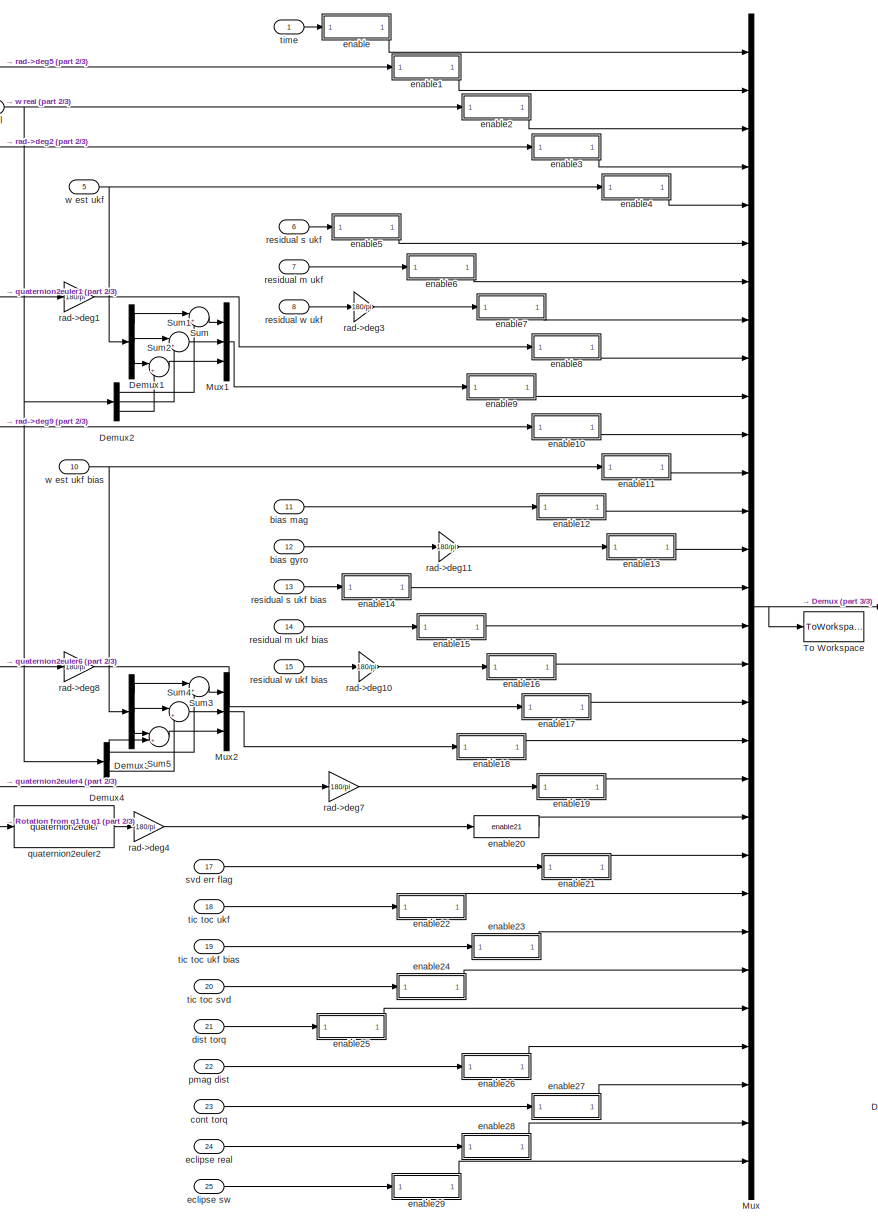
[diagram: Other Model Utilities/Store data - part 1/3, center side, full height]
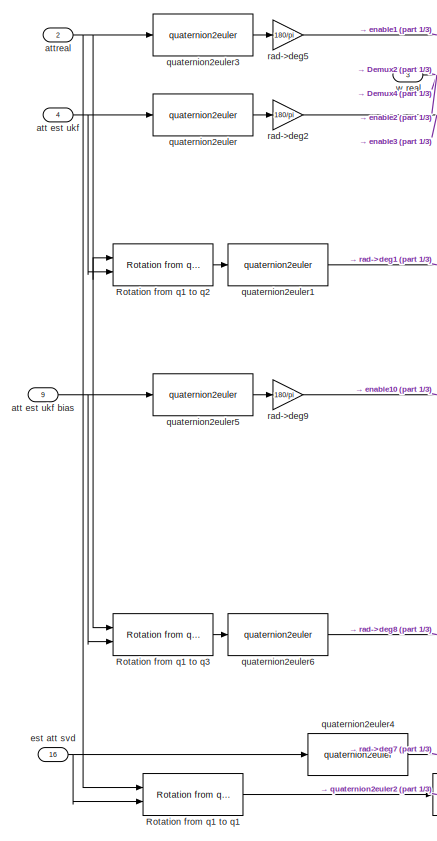
[diagram: Other Model Utilities/Store data - part 2/3, middle left region]
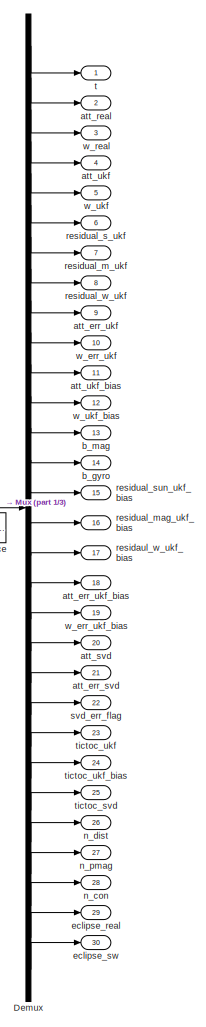
[diagram: Other Model Utilities/Store data - part 3/3, right side, full height]
BLOCK [SubSystem] Other Model Utilities/Store data
  Ports = [25, 30]
  RequestExecContextInheritance = off
  SID = 3425
BLOCK [Demux] Other Model Utilities/Store data/Demux
  DisplayOption = bar
  Outputs = 30
  Ports = [1, 30]
  SID = 3983
BLOCK [Demux] Other Model Utilities/Store data/Demux1
  DisplayOption = bar
  Outputs = 3
  Ports = [1, 3]
  SID = 3984
BLOCK [Demux] Other Model Utilities/Store data/Demux2
  DisplayOption = bar
  Outputs = 3
  Ports = [1, 3]
  SID = 3985
BLOCK [Demux] Other Model Utilities/Store data/Demux3
  DisplayOption = bar
  Outputs = 3
  Ports = [1, 3]
  SID = 3986
BLOCK [Demux] Other Model Utilities/Store data/Demux4
  DisplayOption = bar
  Outputs = 3
  Ports = [1, 3]
  SID = 3987
BLOCK [Mux] Other Model Utilities/Store data/Mux
  DisplayOption = bar
  Inputs = 30
  Ports = [30, 1]
  SID = 3988
BLOCK [Mux] Other Model Utilities/Store data/Mux1
  DisplayOption = bar
  Inputs = 3
  Ports = [3, 1]
  SID = 3989
BLOCK [Mux] Other Model Utilities/Store data/Mux2
  DisplayOption = bar
  Inputs = 3
  Ports = [3, 1]
  SID = 3990
BLOCK [Reference] Other Model Utilities/Store data/Rotation from q1 to q1  REF=aausat3_lib/Math Utilities/Quaternion operations/Rotation from q1 to q2  (lib defined in mdl_4157f6465749, slx_d9305f96731e)
  FunctionWithSeparateData = off
  Ports = [2, 1]
  RTWMemSecDataConstants = Inherit from model
  RTWMemSecDataInternal = Inherit from model
  RTWMemSecDataParameters = Inherit from model
  RTWMemSecFuncExecute = Inherit from model
  RTWMemSecFuncInitTerm = Inherit from model
  SID = 3991
  ShowPortLabels = FromPortIcon
  SourceBlock = aausat3_lib/Math Utilities/Quaternion operations/Rotation from q1 to q2
  SourceType = SubSystem
  SystemSampleTime = -1
BLOCK [Reference] Other Model Utilities/Store data/Rotation from q1 to q2  REF=aausat3_lib/Math Utilities/Quaternion operations/Rotation from q1 to q2  (lib defined in mdl_4157f6465749, slx_d9305f96731e)
  FunctionWithSeparateData = off
  Ports = [2, 1]
  RTWMemSecDataConstants = Inherit from model
  RTWMemSecDataInternal = Inherit from model
  RTWMemSecDataParameters = Inherit from model
  RTWMemSecFuncExecute = Inherit from model
  RTWMemSecFuncInitTerm = Inherit from model
  SID = 3992
  ShowPortLabels = FromPortIcon
  SourceBlock = aausat3_lib/Math Utilities/Quaternion operations/Rotation from q1 to q2
  SourceType = SubSystem
  SystemSampleTime = -1
BLOCK [Reference] Other Model Utilities/Store data/Rotation from q1 to q3  REF=aausat3_lib/Math Utilities/Quaternion operations/Rotation from q1 to q2  (lib defined in mdl_4157f6465749, slx_d9305f96731e)
  FunctionWithSeparateData = off
  Ports = [2, 1]
  RTWMemSecDataConstants = Inherit from model
  RTWMemSecDataInternal = Inherit from model
  RTWMemSecDataParameters = Inherit from model
  RTWMemSecFuncExecute = Inherit from model
  RTWMemSecFuncInitTerm = Inherit from model
  SID = 3993
  ShowPortLabels = FromPortIcon
  SourceBlock = aausat3_lib/Math Utilities/Quaternion operations/Rotation from q1 to q2
  SourceType = SubSystem
  SystemSampleTime = -1
BLOCK [Sum] Other Model Utilities/Store data/Sum
  IconShape = round
  InputSameDT = off
  Inputs = |+-
  OutDataTypeStr = Inherit: Inherit via internal rule
  Ports = [2, 1]
  SID = 3994
  SaturateOnIntegerOverflow = off
BLOCK [Sum] Other Model Utilities/Store data/Sum1
  IconShape = round
  InputSameDT = off
  Inputs = |+-
  OutDataTypeStr = Inherit: Inherit via internal rule
  Ports = [2, 1]
  SID = 3995
  SaturateOnIntegerOverflow = off
BLOCK [Sum] Other Model Utilities/Store data/Sum2
  IconShape = round
  InputSameDT = off
  Inputs = |+-
  OutDataTypeStr = Inherit: Inherit via internal rule
  Ports = [2, 1]
  SID = 3996
  SaturateOnIntegerOverflow = off
BLOCK [Sum] Other Model Utilities/Store data/Sum3
  IconShape = round
  InputSameDT = off
  Inputs = |+-
  OutDataTypeStr = Inherit: Inherit via internal rule
  Ports = [2, 1]
  SID = 3997
  SaturateOnIntegerOverflow = off
BLOCK [Sum] Other Model Utilities/Store data/Sum4
  IconShape = round
  InputSameDT = off
  Inputs = |+-
  OutDataTypeStr = Inherit: Inherit via internal rule
  Ports = [2, 1]
  SID = 3998
  SaturateOnIntegerOverflow = off
BLOCK [Sum] Other Model Utilities/Store data/Sum5
  IconShape = round
  InputSameDT = off
  Inputs = |+-
  OutDataTypeStr = Inherit: Inherit via internal rule
  Ports = [2, 1]
  SID = 3999
  SaturateOnIntegerOverflow = off
BLOCK [ToWorkspace] Other Model Utilities/Store data/To Workspace
  MaxDataPoints = inf
  Ports = [1]
  SID = 4000
  SampleTime = 1/f_sample
  VariableName = data
BLOCK [Inport] Other Model Utilities/Store data/att est ukf
  IconDisplay = Port number
  Port = 4
  SID = 3963
BLOCK [Inport] Other Model Utilities/Store data/att est ukf bias
  IconDisplay = Port number
  Port = 9
  SID = 3968
BLOCK [Outport] Other Model Utilities/Store data/att_err_svd
  IconDisplay = Port number
  Port = 21
  SID = 4201
BLOCK [Outport] Other Model Utilities/Store data/att_err_ukf
  IconDisplay = Port number
  Port = 9
  SID = 4189
BLOCK [Outport] Other Model Utilities/Store data/att_err_ukf_bias
  IconDisplay = Port number
  Port = 18
  SID = 4198
BLOCK [Outport] Other Model Utilities/Store data/att_real
  IconDisplay = Port number
  Port = 2
  SID = 4182
BLOCK [Outport] Other Model Utilities/Store data/att_svd
  IconDisplay = Port number
  Port = 20
  SID = 4200
BLOCK [Outport] Other Model Utilities/Store data/att_ukf
  IconDisplay = Port number
  Port = 4
  SID = 4184
BLOCK [Outport] Other Model Utilities/Store data/att_ukf_bias
  IconDisplay = Port number
  Port = 11
  SID = 4191
BLOCK [Inport] Other Model Utilities/Store data/attreal
  IconDisplay = Port number
  Port = 2
  SID = 3961
BLOCK [Outport] Other Model Utilities/Store data/b_gyro
  IconDisplay = Port number
  Port = 14
  SID = 4194
BLOCK [Outport] Other Model Utilities/Store data/b_mag
  IconDisplay = Port number
  Port = 13
  SID = 4193
BLOCK [Inport] Other Model Utilities/Store data/bias gyro
  IconDisplay = Port number
  Port = 12
  SID = 3971
BLOCK [Inport] Other Model Utilities/Store data/bias mag
  IconDisplay = Port number
  Port = 11
  SID = 3970
BLOCK [Inport] Other Model Utilities/Store data/cont torq
  IconDisplay = Port number
  Port = 23
  SID = 4268
BLOCK [Inport] Other Model Utilities/Store data/dist torq
  IconDisplay = Port number
  Port = 21
  SID = 4266
BLOCK [Inport] Other Model Utilities/Store data/eclipse real
  IconDisplay = Port number
  Port = 24
  SID = 4269
BLOCK [Inport] Other Model Utilities/Store data/eclipse sw
  IconDisplay = Port number
  Port = 25
  SID = 4270
BLOCK [Outport] Other Model Utilities/Store data/eclipse_real
  IconDisplay = Port number
  Port = 29
  SID = 4332
BLOCK [Outport] Other Model Utilities/Store data/eclipse_sw
  IconDisplay = Port number
  Port = 30
  SID = 4333
BLOCK [SubSystem] Other Model Utilities/Store data/enable
  Ports = [1, 1]
  RequestExecContextInheritance = off
  SID = 4001
BLOCK [Constant] Other Model Utilities/Store data/enable/Constant
  SID = 4003
  Value = enable_signal
BLOCK [Ground] Other Model Utilities/Store data/enable/Ground
  SID = 4004
BLOCK [Inport] Other Model Utilities/Store data/enable/In
  IconDisplay = Port number
  SID = 4002
BLOCK [Outport] Other Model Utilities/Store data/enable/Out
  IconDisplay = Port number
  SID = 4006
BLOCK [Switch] Other Model Utilities/Store data/enable/Switch
  InputSameDT = off
  SID = 4005
  SaturateOnIntegerOverflow = off
  Threshold = 1
BLOCK [SubSystem] Other Model Utilities/Store data/enable1
  Ports = [1, 1]
  RequestExecContextInheritance = off
  SID = 4007
BLOCK [Constant] Other Model Utilities/Store data/enable1/Constant
  SID = 4009
  Value = enable_signal
BLOCK [Ground] Other Model Utilities/Store data/enable1/Ground
  SID = 4010
BLOCK [Inport] Other Model Utilities/Store data/enable1/In
  IconDisplay = Port number
  SID = 4008
BLOCK [Outport] Other Model Utilities/Store data/enable1/Out
  IconDisplay = Port number
  SID = 4012
BLOCK [Switch] Other Model Utilities/Store data/enable1/Switch
  InputSameDT = off
  SID = 4011
  SaturateOnIntegerOverflow = off
  Threshold = 1
BLOCK [SubSystem] Other Model Utilities/Store data/enable10
  Ports = [1, 1]
  RequestExecContextInheritance = off
  SID = 4013
BLOCK [Constant] Other Model Utilities/Store data/enable10/Constant
  SID = 4015
  Value = enable_signal
BLOCK [Ground] Other Model Utilities/Store data/enable10/Ground
  SID = 4016
BLOCK [Inport] Other Model Utilities/Store data/enable10/In
  IconDisplay = Port number
  SID = 4014
BLOCK [Outport] Other Model Utilities/Store data/enable10/Out
  IconDisplay = Port number
  SID = 4018
BLOCK [Switch] Other Model Utilities/Store data/enable10/Switch
  InputSameDT = off
  SID = 4017
  SaturateOnIntegerOverflow = off
  Threshold = 1
BLOCK [SubSystem] Other Model Utilities/Store data/enable11
  Ports = [1, 1]
  RequestExecContextInheritance = off
  SID = 4019
BLOCK [Constant] Other Model Utilities/Store data/enable11/Constant
  SID = 4021
  Value = enable_signal
BLOCK [Ground] Other Model Utilities/Store data/enable11/Ground
  SID = 4022
BLOCK [Inport] Other Model Utilities/Store data/enable11/In
  IconDisplay = Port number
  SID = 4020
BLOCK [Outport] Other Model Utilities/Store data/enable11/Out
  IconDisplay = Port number
  SID = 4024
BLOCK [Switch] Other Model Utilities/Store data/enable11/Switch
  InputSameDT = off
  SID = 4023
  SaturateOnIntegerOverflow = off
  Threshold = 1
BLOCK [SubSystem] Other Model Utilities/Store data/enable12
  Ports = [1, 1]
  RequestExecContextInheritance = off
  SID = 4025
BLOCK [Constant] Other Model Utilities/Store data/enable12/Constant
  SID = 4027
  Value = enable_signal
BLOCK [Ground] Other Model Utilities/Store data/enable12/Ground
  SID = 4028
BLOCK [Inport] Other Model Utilities/Store data/enable12/In
  IconDisplay = Port number
  SID = 4026
BLOCK [Outport] Other Model Utilities/Store data/enable12/Out
  IconDisplay = Port number
  SID = 4030
BLOCK [Switch] Other Model Utilities/Store data/enable12/Switch
  InputSameDT = off
  SID = 4029
  SaturateOnIntegerOverflow = off
  Threshold = 1
BLOCK [SubSystem] Other Model Utilities/Store data/enable13
  Ports = [1, 1]
  RequestExecContextInheritance = off
  SID = 4031
BLOCK [Constant] Other Model Utilities/Store data/enable13/Constant
  SID = 4033
  Value = enable_signal
BLOCK [Ground] Other Model Utilities/Store data/enable13/Ground
  SID = 4034
BLOCK [Inport] Other Model Utilities/Store data/enable13/In
  IconDisplay = Port number
  SID = 4032
BLOCK [Outport] Other Model Utilities/Store data/enable13/Out
  IconDisplay = Port number
  SID = 4036
BLOCK [Switch] Other Model Utilities/Store data/enable13/Switch
  InputSameDT = off
  SID = 4035
  SaturateOnIntegerOverflow = off
  Threshold = 1
BLOCK [SubSystem] Other Model Utilities/Store data/enable14
  Ports = [1, 1]
  RequestExecContextInheritance = off
  SID = 4037
BLOCK [Constant] Other Model Utilities/Store data/enable14/Constant
  SID = 4039
  Value = enable_signal
BLOCK [Ground] Other Model Utilities/Store data/enable14/Ground
  SID = 4040
BLOCK [Inport] Other Model Utilities/Store data/enable14/In
  IconDisplay = Port number
  SID = 4038
BLOCK [Outport] Other Model Utilities/Store data/enable14/Out
  IconDisplay = Port number
  SID = 4042
BLOCK [Switch] Other Model Utilities/Store data/enable14/Switch
  InputSameDT = off
  SID = 4041
  SaturateOnIntegerOverflow = off
  Threshold = 1
BLOCK [SubSystem] Other Model Utilities/Store data/enable15
  Ports = [1, 1]
  RequestExecContextInheritance = off
  SID = 4043
BLOCK [Constant] Other Model Utilities/Store data/enable15/Constant
  SID = 4045
  Value = enable_signal
BLOCK [Ground] Other Model Utilities/Store data/enable15/Ground
  SID = 4046
BLOCK [Inport] Other Model Utilities/Store data/enable15/In
  IconDisplay = Port number
  SID = 4044
BLOCK [Outport] Other Model Utilities/Store data/enable15/Out
  IconDisplay = Port number
  SID = 4048
BLOCK [Switch] Other Model Utilities/Store data/enable15/Switch
  InputSameDT = off
  SID = 4047
  SaturateOnIntegerOverflow = off
  Threshold = 1
BLOCK [SubSystem] Other Model Utilities/Store data/enable16
  Ports = [1, 1]
  RequestExecContextInheritance = off
  SID = 4049
BLOCK [Constant] Other Model Utilities/Store data/enable16/Constant
  SID = 4051
  Value = enable_signal
BLOCK [Ground] Other Model Utilities/Store data/enable16/Ground
  SID = 4052
BLOCK [Inport] Other Model Utilities/Store data/enable16/In
  IconDisplay = Port number
  SID = 4050
BLOCK [Outport] Other Model Utilities/Store data/enable16/Out
  IconDisplay = Port number
  SID = 4054
BLOCK [Switch] Other Model Utilities/Store data/enable16/Switch
  InputSameDT = off
  SID = 4053
  SaturateOnIntegerOverflow = off
  Threshold = 1
BLOCK [SubSystem] Other Model Utilities/Store data/enable17
  Ports = [1, 1]
  RequestExecContextInheritance = off
  SID = 4055
BLOCK [Constant] Other Model Utilities/Store data/enable17/Constant
  SID = 4057
  Value = enable_signal
BLOCK [Ground] Other Model Utilities/Store data/enable17/Ground
  SID = 4058
BLOCK [Inport] Other Model Utilities/Store data/enable17/In
  IconDisplay = Port number
  SID = 4056
BLOCK [Outport] Other Model Utilities/Store data/enable17/Out
  IconDisplay = Port number
  SID = 4060
BLOCK [Switch] Other Model Utilities/Store data/enable17/Switch
  InputSameDT = off
  SID = 4059
  SaturateOnIntegerOverflow = off
  Threshold = 1
BLOCK [SubSystem] Other Model Utilities/Store data/enable18
  Ports = [1, 1]
  RequestExecContextInheritance = off
  SID = 4061
BLOCK [Constant] Other Model Utilities/Store data/enable18/Constant
  SID = 4063
  Value = enable_signal
BLOCK [Ground] Other Model Utilities/Store data/enable18/Ground
  SID = 4064
BLOCK [Inport] Other Model Utilities/Store data/enable18/In
  IconDisplay = Port number
  SID = 4062
BLOCK [Outport] Other Model Utilities/Store data/enable18/Out
  IconDisplay = Port number
  SID = 4066
BLOCK [Switch] Other Model Utilities/Store data/enable18/Switch
  InputSameDT = off
  SID = 4065
  SaturateOnIntegerOverflow = off
  Threshold = 1
BLOCK [SubSystem] Other Model Utilities/Store data/enable19
  Ports = [1, 1]
  RequestExecContextInheritance = off
  SID = 4067
BLOCK [Constant] Other Model Utilities/Store data/enable19/Constant
  SID = 4069
  Value = enable_signal
BLOCK [Ground] Other Model Utilities/Store data/enable19/Ground
  SID = 4070
BLOCK [Inport] Other Model Utilities/Store data/enable19/In
  IconDisplay = Port number
  SID = 4068
BLOCK [Outport] Other Model Utilities/Store data/enable19/Out
  IconDisplay = Port number
  SID = 4072
BLOCK [Switch] Other Model Utilities/Store data/enable19/Switch
  InputSameDT = off
  SID = 4071
  SaturateOnIntegerOverflow = off
  Threshold = 1
BLOCK [SubSystem] Other Model Utilities/Store data/enable2
  Ports = [1, 1]
  RequestExecContextInheritance = off
  SID = 4073
BLOCK [Constant] Other Model Utilities/Store data/enable2/Constant
  SID = 4075
  Value = enable_signal
BLOCK [Ground] Other Model Utilities/Store data/enable2/Ground
  SID = 4076
BLOCK [Inport] Other Model Utilities/Store data/enable2/In
  IconDisplay = Port number
  SID = 4074
BLOCK [Outport] Other Model Utilities/Store data/enable2/Out
  IconDisplay = Port number
  SID = 4078
BLOCK [Switch] Other Model Utilities/Store data/enable2/Switch
  InputSameDT = off
  SID = 4077
  SaturateOnIntegerOverflow = off
  Threshold = 1
BLOCK [Reference] Other Model Utilities/Store data/enable20  REF=aausat3_lib/Other Model Utilities/Store data/enable21  (lib defined in mdl_4157f6465749, slx_d9305f96731e)
  FunctionWithSeparateData = off
  Ports = [1, 1]
  RTWMemSecDataConstants = Inherit from model
  RTWMemSecDataInternal = Inherit from model
  RTWMemSecDataParameters = Inherit from model
  RTWMemSecFuncExecute = Inherit from model
  RTWMemSecFuncInitTerm = Inherit from model
  SID = 4079
  ShowPortLabels = FromPortIcon
  SourceBlock = aausat3_lib/Other Model Utilities/Store data/enable21
  SourceType = Unknown
  SystemSampleTime = -1
  enable_signal = enable_svd_att_err
BLOCK [SubSystem] Other Model Utilities/Store data/enable21
  Ports = [1, 1]
  RequestExecContextInheritance = off
  SID = 4320
BLOCK [Constant] Other Model Utilities/Store data/enable21/Constant
  SID = 4322
  Value = enable_signal
BLOCK [Ground] Other Model Utilities/Store data/enable21/Ground
  SID = 4323
BLOCK [Inport] Other Model Utilities/Store data/enable21/In
  IconDisplay = Port number
  SID = 4321
BLOCK [Outport] Other Model Utilities/Store data/enable21/Out
  IconDisplay = Port number
  SID = 4325
BLOCK [Switch] Other Model Utilities/Store data/enable21/Switch
  InputSameDT = off
  SID = 4324
  SaturateOnIntegerOverflow = off
  Threshold = 1
BLOCK [SubSystem] Other Model Utilities/Store data/enable22
  Ports = [1, 1]
  RequestExecContextInheritance = off
  SID = 4271
BLOCK [Constant] Other Model Utilities/Store data/enable22/Constant
  SID = 4273
  Value = enable_signal
BLOCK [Ground] Other Model Utilities/Store data/enable22/Ground
  SID = 4274
BLOCK [Inport] Other Model Utilities/Store data/enable22/In
  IconDisplay = Port number
  SID = 4272
BLOCK [Outport] Other Model Utilities/Store data/enable22/Out
  IconDisplay = Port number
  SID = 4276
BLOCK [Switch] Other Model Utilities/Store data/enable22/Switch
  InputSameDT = off
  SID = 4275
  SaturateOnIntegerOverflow = off
  Threshold = 1
BLOCK [SubSystem] Other Model Utilities/Store data/enable23
  Ports = [1, 1]
  RequestExecContextInheritance = off
  SID = 4277
BLOCK [Constant] Other Model Utilities/Store data/enable23/Constant
  SID = 4279
  Value = enable_signal
BLOCK [Ground] Other Model Utilities/Store data/enable23/Ground
  SID = 4280
BLOCK [Inport] Other Model Utilities/Store data/enable23/In
  IconDisplay = Port number
  SID = 4278
BLOCK [Outport] Other Model Utilities/Store data/enable23/Out
  IconDisplay = Port number
  SID = 4282
BLOCK [Switch] Other Model Utilities/Store data/enable23/Switch
  InputSameDT = off
  SID = 4281
  SaturateOnIntegerOverflow = off
  Threshold = 1
BLOCK [SubSystem] Other Model Utilities/Store data/enable24
  Ports = [1, 1]
  RequestExecContextInheritance = off
  SID = 4283
BLOCK [Constant] Other Model Utilities/Store data/enable24/Constant
  SID = 4285
  Value = enable_signal
BLOCK [Ground] Other Model Utilities/Store data/enable24/Ground
  SID = 4286
BLOCK [Inport] Other Model Utilities/Store data/enable24/In
  IconDisplay = Port number
  SID = 4284
BLOCK [Outport] Other Model Utilities/Store data/enable24/Out
  IconDisplay = Port number
  SID = 4288
BLOCK [Switch] Other Model Utilities/Store data/enable24/Switch
  InputSameDT = off
  SID = 4287
  SaturateOnIntegerOverflow = off
  Threshold = 1
BLOCK [SubSystem] Other Model Utilities/Store data/enable25
  Ports = [1, 1]
  RequestExecContextInheritance = off
  SID = 4289
BLOCK [Constant] Other Model Utilities/Store data/enable25/Constant
  SID = 4291
  Value = enable_signal
BLOCK [Ground] Other Model Utilities/Store data/enable25/Ground
  SID = 4292
BLOCK [Inport] Other Model Utilities/Store data/enable25/In
  IconDisplay = Port number
  SID = 4290
BLOCK [Outport] Other Model Utilities/Store data/enable25/Out
  IconDisplay = Port number
  SID = 4294
BLOCK [Switch] Other Model Utilities/Store data/enable25/Switch
  InputSameDT = off
  SID = 4293
  SaturateOnIntegerOverflow = off
  Threshold = 1
BLOCK [SubSystem] Other Model Utilities/Store data/enable26
  Ports = [1, 1]
  RequestExecContextInheritance = off
  SID = 4295
BLOCK [Constant] Other Model Utilities/Store data/enable26/Constant
  SID = 4297
  Value = enable_signal
BLOCK [Ground] Other Model Utilities/Store data/enable26/Ground
  SID = 4298
BLOCK [Inport] Other Model Utilities/Store data/enable26/In
  IconDisplay = Port number
  SID = 4296
BLOCK [Outport] Other Model Utilities/Store data/enable26/Out
  IconDisplay = Port number
  SID = 4300
BLOCK [Switch] Other Model Utilities/Store data/enable26/Switch
  InputSameDT = off
  SID = 4299
  SaturateOnIntegerOverflow = off
  Threshold = 1
BLOCK [SubSystem] Other Model Utilities/Store data/enable27
  Ports = [1, 1]
  RequestExecContextInheritance = off
  SID = 4301
BLOCK [Constant] Other Model Utilities/Store data/enable27/Constant
  SID = 4303
  Value = enable_signal
BLOCK [Ground] Other Model Utilities/Store data/enable27/Ground
  SID = 4304
BLOCK [Inport] Other Model Utilities/Store data/enable27/In
  IconDisplay = Port number
  SID = 4302
BLOCK [Outport] Other Model Utilities/Store data/enable27/Out
  IconDisplay = Port number
  SID = 4306
BLOCK [Switch] Other Model Utilities/Store data/enable27/Switch
  InputSameDT = off
  SID = 4305
  SaturateOnIntegerOverflow = off
  Threshold = 1
BLOCK [SubSystem] Other Model Utilities/Store data/enable28
  Ports = [1, 1]
  RequestExecContextInheritance = off
  SID = 4307
BLOCK [Constant] Other Model Utilities/Store data/enable28/Constant
  SID = 4309
  Value = enable_signal
BLOCK [Ground] Other Model Utilities/Store data/enable28/Ground
  SID = 4310
BLOCK [Inport] Other Model Utilities/Store data/enable28/In
  IconDisplay = Port number
  SID = 4308
BLOCK [Outport] Other Model Utilities/Store data/enable28/Out
  IconDisplay = Port number
  SID = 4312
BLOCK [Switch] Other Model Utilities/Store data/enable28/Switch
  InputSameDT = off
  SID = 4311
  SaturateOnIntegerOverflow = off
  Threshold = 1
BLOCK [SubSystem] Other Model Utilities/Store data/enable29
  Ports = [1, 1]
  RequestExecContextInheritance = off
  SID = 4313
BLOCK [Constant] Other Model Utilities/Store data/enable29/Constant
  SID = 4315
  Value = enable_signal
BLOCK [Ground] Other Model Utilities/Store data/enable29/Ground
  SID = 4316
BLOCK [Inport] Other Model Utilities/Store data/enable29/In
  IconDisplay = Port number
  SID = 4314
BLOCK [Outport] Other Model Utilities/Store data/enable29/Out
  IconDisplay = Port number
  SID = 4318
BLOCK [Switch] Other Model Utilities/Store data/enable29/Switch
  InputSameDT = off
  SID = 4317
  SaturateOnIntegerOverflow = off
  Threshold = 1
BLOCK [SubSystem] Other Model Utilities/Store data/enable3
  Ports = [1, 1]
  RequestExecContextInheritance = off
  SID = 4122
BLOCK [Constant] Other Model Utilities/Store data/enable3/Constant
  SID = 4124
  Value = enable_signal
BLOCK [Ground] Other Model Utilities/Store data/enable3/Ground
  SID = 4125
BLOCK [Inport] Other Model Utilities/Store data/enable3/In
  IconDisplay = Port number
  SID = 4123
BLOCK [Outport] Other Model Utilities/Store data/enable3/Out
  IconDisplay = Port number
  SID = 4127
BLOCK [Switch] Other Model Utilities/Store data/enable3/Switch
  InputSameDT = off
  SID = 4126
  SaturateOnIntegerOverflow = off
  Threshold = 1
BLOCK [SubSystem] Other Model Utilities/Store data/enable4
  Ports = [1, 1]
  RequestExecContextInheritance = off
  SID = 4128
BLOCK [Constant] Other Model Utilities/Store data/enable4/Constant
  SID = 4130
  Value = enable_signal
BLOCK [Ground] Other Model Utilities/Store data/enable4/Ground
  SID = 4131
BLOCK [Inport] Other Model Utilities/Store data/enable4/In
  IconDisplay = Port number
  SID = 4129
BLOCK [Outport] Other Model Utilities/Store data/enable4/Out
  IconDisplay = Port number
  SID = 4133
BLOCK [Switch] Other Model Utilities/Store data/enable4/Switch
  InputSameDT = off
  SID = 4132
  SaturateOnIntegerOverflow = off
  Threshold = 1
BLOCK [SubSystem] Other Model Utilities/Store data/enable5
  Ports = [1, 1]
  RequestExecContextInheritance = off
  SID = 4134
BLOCK [Constant] Other Model Utilities/Store data/enable5/Constant
  SID = 4136
  Value = enable_signal
BLOCK [Ground] Other Model Utilities/Store data/enable5/Ground
  SID = 4137
BLOCK [Inport] Other Model Utilities/Store data/enable5/In
  IconDisplay = Port number
  SID = 4135
BLOCK [Outport] Other Model Utilities/Store data/enable5/Out
  IconDisplay = Port number
  SID = 4139
BLOCK [Switch] Other Model Utilities/Store data/enable5/Switch
  InputSameDT = off
  SID = 4138
  SaturateOnIntegerOverflow = off
  Threshold = 1
BLOCK [SubSystem] Other Model Utilities/Store data/enable6
  Ports = [1, 1]
  RequestExecContextInheritance = off
  SID = 4140
BLOCK [Constant] Other Model Utilities/Store data/enable6/Constant
  SID = 4142
  Value = enable_signal
BLOCK [Ground] Other Model Utilities/Store data/enable6/Ground
  SID = 4143
BLOCK [Inport] Other Model Utilities/Store data/enable6/In
  IconDisplay = Port number
  SID = 4141
BLOCK [Outport] Other Model Utilities/Store data/enable6/Out
  IconDisplay = Port number
  SID = 4145
BLOCK [Switch] Other Model Utilities/Store data/enable6/Switch
  InputSameDT = off
  SID = 4144
  SaturateOnIntegerOverflow = off
  Threshold = 1
BLOCK [SubSystem] Other Model Utilities/Store data/enable7
  Ports = [1, 1]
  RequestExecContextInheritance = off
  SID = 4146
BLOCK [Constant] Other Model Utilities/Store data/enable7/Constant
  SID = 4148
  Value = enable_signal
BLOCK [Ground] Other Model Utilities/Store data/enable7/Ground
  SID = 4149
BLOCK [Inport] Other Model Utilities/Store data/enable7/In
  IconDisplay = Port number
  SID = 4147
BLOCK [Outport] Other Model Utilities/Store data/enable7/Out
  IconDisplay = Port number
  SID = 4151
BLOCK [Switch] Other Model Utilities/Store data/enable7/Switch
  InputSameDT = off
  SID = 4150
  SaturateOnIntegerOverflow = off
  Threshold = 1
BLOCK [SubSystem] Other Model Utilities/Store data/enable8
  Ports = [1, 1]
  RequestExecContextInheritance = off
  SID = 4152
BLOCK [Constant] Other Model Utilities/Store data/enable8/Constant
  SID = 4154
  Value = enable_signal
BLOCK [Ground] Other Model Utilities/Store data/enable8/Ground
  SID = 4155
BLOCK [Inport] Other Model Utilities/Store data/enable8/In
  IconDisplay = Port number
  SID = 4153
BLOCK [Outport] Other Model Utilities/Store data/enable8/Out
  IconDisplay = Port number
  SID = 4157
BLOCK [Switch] Other Model Utilities/Store data/enable8/Switch
  InputSameDT = off
  SID = 4156
  SaturateOnIntegerOverflow = off
  Threshold = 1
BLOCK [SubSystem] Other Model Utilities/Store data/enable9
  Ports = [1, 1]
  RequestExecContextInheritance = off
  SID = 4158
BLOCK [Constant] Other Model Utilities/Store data/enable9/Constant
  SID = 4160
  Value = enable_signal
BLOCK [Ground] Other Model Utilities/Store data/enable9/Ground
  SID = 4161
BLOCK [Inport] Other Model Utilities/Store data/enable9/In
  IconDisplay = Port number
  SID = 4159
BLOCK [Outport] Other Model Utilities/Store data/enable9/Out
  IconDisplay = Port number
  SID = 4163
BLOCK [Switch] Other Model Utilities/Store data/enable9/Switch
  InputSameDT = off
  SID = 4162
  SaturateOnIntegerOverflow = off
  Threshold = 1
BLOCK [Inport] Other Model Utilities/Store data/est att svd
  IconDisplay = Port number
  Port = 16
  SID = 3975
BLOCK [Outport] Other Model Utilities/Store data/n_con
  IconDisplay = Port number
  Port = 28
  SID = 4331
BLOCK [Outport] Other Model Utilities/Store data/n_dist
  IconDisplay = Port number
  Port = 26
  SID = 4329
BLOCK [Outport] Other Model Utilities/Store data/n_pmag
  IconDisplay = Port number
  Port = 27
  SID = 4330
BLOCK [Inport] Other Model Utilities/Store data/pmag dist
  IconDisplay = Port number
  Port = 22
  SID = 4267
BLOCK [Reference] Other Model Utilities/Store data/quaternion2euler  REF=aausat3_lib/Math Utilities/Quaternion operations/quaternion2euler  (lib defined in mdl_4157f6465749, slx_d9305f96731e)
  FunctionWithSeparateData = off
  Ports = [1, 1]
  RTWMemSecDataConstants = Inherit from model
  RTWMemSecDataInternal = Inherit from model
  RTWMemSecDataParameters = Inherit from model
  RTWMemSecFuncExecute = Inherit from model
  RTWMemSecFuncInitTerm = Inherit from model
  SID = 4164
  ShowPortLabels = FromPortIcon
  SourceBlock = aausat3_lib/Math Utilities/Quaternion operations/quaternion2euler
  SourceType = SubSystem
  SystemSampleTime = -1
BLOCK [Reference] Other Model Utilities/Store data/quaternion2euler1  REF=aausat3_lib/Math Utilities/Quaternion operations/quaternion2euler  (lib defined in mdl_4157f6465749, slx_d9305f96731e)
  FunctionWithSeparateData = off
  Ports = [1, 1]
  RTWMemSecDataConstants = Inherit from model
  RTWMemSecDataInternal = Inherit from model
  RTWMemSecDataParameters = Inherit from model
  RTWMemSecFuncExecute = Inherit from model
  RTWMemSecFuncInitTerm = Inherit from model
  SID = 4165
  ShowPortLabels = FromPortIcon
  SourceBlock = aausat3_lib/Math Utilities/Quaternion operations/quaternion2euler
  SourceType = SubSystem
  SystemSampleTime = -1
BLOCK [Reference] Other Model Utilities/Store data/quaternion2euler2  REF=aausat3_lib/Math Utilities/Quaternion operations/quaternion2euler  (lib defined in mdl_4157f6465749, slx_d9305f96731e)
  FunctionWithSeparateData = off
  Ports = [1, 1]
  RTWMemSecDataConstants = Inherit from model
  RTWMemSecDataInternal = Inherit from model
  RTWMemSecDataParameters = Inherit from model
  RTWMemSecFuncExecute = Inherit from model
  RTWMemSecFuncInitTerm = Inherit from model
  SID = 4166
  ShowPortLabels = FromPortIcon
  SourceBlock = aausat3_lib/Math Utilities/Quaternion operations/quaternion2euler
  SourceType = SubSystem
  SystemSampleTime = -1
BLOCK [Reference] Other Model Utilities/Store data/quaternion2euler3  REF=aausat3_lib/Math Utilities/Quaternion operations/quaternion2euler  (lib defined in mdl_4157f6465749, slx_d9305f96731e)
  FunctionWithSeparateData = off
  Ports = [1, 1]
  RTWMemSecDataConstants = Inherit from model
  RTWMemSecDataInternal = Inherit from model
  RTWMemSecDataParameters = Inherit from model
  RTWMemSecFuncExecute = Inherit from model
  RTWMemSecFuncInitTerm = Inherit from model
  SID = 4167
  ShowPortLabels = FromPortIcon
  SourceBlock = aausat3_lib/Math Utilities/Quaternion operations/quaternion2euler
  SourceType = SubSystem
  SystemSampleTime = -1
BLOCK [Reference] Other Model Utilities/Store data/quaternion2euler4  REF=aausat3_lib/Math Utilities/Quaternion operations/quaternion2euler  (lib defined in mdl_4157f6465749, slx_d9305f96731e)
  FunctionWithSeparateData = off
  Ports = [1, 1]
  RTWMemSecDataConstants = Inherit from model
  RTWMemSecDataInternal = Inherit from model
  RTWMemSecDataParameters = Inherit from model
  RTWMemSecFuncExecute = Inherit from model
  RTWMemSecFuncInitTerm = Inherit from model
  SID = 4168
  ShowPortLabels = FromPortIcon
  SourceBlock = aausat3_lib/Math Utilities/Quaternion operations/quaternion2euler
  SourceType = SubSystem
  SystemSampleTime = -1
BLOCK [Reference] Other Model Utilities/Store data/quaternion2euler5  REF=aausat3_lib/Math Utilities/Quaternion operations/quaternion2euler  (lib defined in mdl_4157f6465749, slx_d9305f96731e)
  FunctionWithSeparateData = off
  Ports = [1, 1]
  RTWMemSecDataConstants = Inherit from model
  RTWMemSecDataInternal = Inherit from model
  RTWMemSecDataParameters = Inherit from model
  RTWMemSecFuncExecute = Inherit from model
  RTWMemSecFuncInitTerm = Inherit from model
  SID = 4169
  ShowPortLabels = FromPortIcon
  SourceBlock = aausat3_lib/Math Utilities/Quaternion operations/quaternion2euler
  SourceType = SubSystem
  SystemSampleTime = -1
BLOCK [Reference] Other Model Utilities/Store data/quaternion2euler6  REF=aausat3_lib/Math Utilities/Quaternion operations/quaternion2euler  (lib defined in mdl_4157f6465749, slx_d9305f96731e)
  FunctionWithSeparateData = off
  Ports = [1, 1]
  RTWMemSecDataConstants = Inherit from model
  RTWMemSecDataInternal = Inherit from model
  RTWMemSecDataParameters = Inherit from model
  RTWMemSecFuncExecute = Inherit from model
  RTWMemSecFuncInitTerm = Inherit from model
  SID = 4170
  ShowPortLabels = FromPortIcon
  SourceBlock = aausat3_lib/Math Utilities/Quaternion operations/quaternion2euler
  SourceType = SubSystem
  SystemSampleTime = -1
BLOCK [Gain] Other Model Utilities/Store data/rad->deg1
  Gain = 180/pi
  OutDataTypeStr = Inherit: Inherit via internal rule
  ParamDataTypeStr = Inherit: Inherit via internal rule
  SID = 4171
  SaturateOnIntegerOverflow = off
BLOCK [Gain] Other Model Utilities/Store data/rad->deg10
  Gain = 180/pi
  OutDataTypeStr = Inherit: Inherit via internal rule
  ParamDataTypeStr = Inherit: Inherit via internal rule
  SID = 4172
  SaturateOnIntegerOverflow = off
BLOCK [Gain] Other Model Utilities/Store data/rad->deg11
  Gain = 180/pi
  OutDataTypeStr = Inherit: Inherit via internal rule
  ParamDataTypeStr = Inherit: Inherit via internal rule
  SID = 4173
  SaturateOnIntegerOverflow = off
BLOCK [Gain] Other Model Utilities/Store data/rad->deg2
  Gain = 180/pi
  OutDataTypeStr = Inherit: Inherit via internal rule
  ParamDataTypeStr = Inherit: Inherit via internal rule
  SID = 4174
  SaturateOnIntegerOverflow = off
BLOCK [Gain] Other Model Utilities/Store data/rad->deg3
  Gain = 180/pi
  OutDataTypeStr = Inherit: Inherit via internal rule
  ParamDataTypeStr = Inherit: Inherit via internal rule
  SID = 4175
  SaturateOnIntegerOverflow = off
BLOCK [Gain] Other Model Utilities/Store data/rad->deg4
  Gain = 180/pi
  OutDataTypeStr = Inherit: Inherit via internal rule
  ParamDataTypeStr = Inherit: Inherit via internal rule
  SID = 4176
  SaturateOnIntegerOverflow = off
BLOCK [Gain] Other Model Utilities/Store data/rad->deg5
  Gain = 180/pi
  OutDataTypeStr = Inherit: Inherit via internal rule
  ParamDataTypeStr = Inherit: Inherit via internal rule
  SID = 4177
  SaturateOnIntegerOverflow = off
BLOCK [Gain] Other Model Utilities/Store data/rad->deg7
  Gain = 180/pi
  OutDataTypeStr = Inherit: Inherit via internal rule
  ParamDataTypeStr = Inherit: Inherit via internal rule
  SID = 4178
  SaturateOnIntegerOverflow = off
BLOCK [Gain] Other Model Utilities/Store data/rad->deg8
  Gain = 180/pi
  OutDataTypeStr = Inherit: Inherit via internal rule
  ParamDataTypeStr = Inherit: Inherit via internal rule
  SID = 4179
  SaturateOnIntegerOverflow = off
BLOCK [Gain] Other Model Utilities/Store data/rad->deg9
  Gain = 180/pi
  OutDataTypeStr = Inherit: Inherit via internal rule
  ParamDataTypeStr = Inherit: Inherit via internal rule
  SID = 4180
  SaturateOnIntegerOverflow = off
BLOCK [Outport] Other Model Utilities/Store data/residaul_w_ukf_bias
  IconDisplay = Port number
  Port = 17
  SID = 4197
BLOCK [Inport] Other Model Utilities/Store data/residual m ukf
  IconDisplay = Port number
  Port = 7
  SID = 3966
BLOCK [Inport] Other Model Utilities/Store data/residual m ukf bias
  IconDisplay = Port number
  Port = 14
  SID = 3973
BLOCK [Inport] Other Model Utilities/Store data/residual s ukf
  IconDisplay = Port number
  Port = 6
  SID = 3965
BLOCK [Inport] Other Model Utilities/Store data/residual s ukf bias
  IconDisplay = Port number
  Port = 13
  SID = 3972
BLOCK [Inport] Other Model Utilities/Store data/residual w ukf
  IconDisplay = Port number
  Port = 8
  SID = 3967
BLOCK [Inport] Other Model Utilities/Store data/residual w ukf bias
  IconDisplay = Port number
  Port = 15
  SID = 3974
BLOCK [Outport] Other Model Utilities/Store data/residual_m_ukf
  IconDisplay = Port number
  Port = 7
  SID = 4187
BLOCK [Outport] Other Model Utilities/Store data/residual_mag_ukf_bias
  IconDisplay = Port number
  Port = 16
  SID = 4196
BLOCK [Outport] Other Model Utilities/Store data/residual_s_ukf
  IconDisplay = Port number
  Port = 6
  SID = 4186
BLOCK [Outport] Other Model Utilities/Store data/residual_sun_ukf_bias
  IconDisplay = Port number
  Port = 15
  SID = 4195
BLOCK [Outport] Other Model Utilities/Store data/residual_w_ukf
  IconDisplay = Port number
  Port = 8
  SID = 4188
BLOCK [Inport] Other Model Utilities/Store data/svd err flag
  IconDisplay = Port number
  Port = 17
  SID = 4319
BLOCK [Outport] Other Model Utilities/Store data/svd_err_flag
  IconDisplay = Port number
  Port = 22
  SID = 4334
BLOCK [Outport] Other Model Utilities/Store data/t
  IconDisplay = Port number
  SID = 4181
BLOCK [Inport] Other Model Utilities/Store data/tic toc svd
  IconDisplay = Port number
  Port = 20
  SID = 4265
BLOCK [Inport] Other Model Utilities/Store data/tic toc ukf
  IconDisplay = Port number
  Port = 18
  SID = 4263
BLOCK [Inport] Other Model Utilities/Store data/tic toc ukf bias
  IconDisplay = Port number
  Port = 19
  SID = 4264
BLOCK [Outport] Other Model Utilities/Store data/tictoc_svd
  IconDisplay = Port number
  Port = 25
  SID = 4328
BLOCK [Outport] Other Model Utilities/Store data/tictoc_ukf
  IconDisplay = Port number
  Port = 23
  SID = 4326
BLOCK [Outport] Other Model Utilities/Store data/tictoc_ukf_bias
  IconDisplay = Port number
  Port = 24
  SID = 4327
BLOCK [Inport] Other Model Utilities/Store data/time
  IconDisplay = Port number
  SID = 3960
BLOCK [Inport] Other Model Utilities/Store data/w est ukf
  IconDisplay = Port number
  Port = 5
  SID = 3964
BLOCK [Inport] Other Model Utilities/Store data/w est ukf bias
  IconDisplay = Port number
  Port = 10
  SID = 3969
BLOCK [Inport] Other Model Utilities/Store data/w real
  IconDisplay = Port number
  Port = 3
  SID = 3962
BLOCK [Outport] Other Model Utilities/Store data/w_err_ukf
  IconDisplay = Port number
  Port = 10
  SID = 4190
BLOCK [Outport] Other Model Utilities/Store data/w_err_ukf_bias
  IconDisplay = Port number
  Port = 19
  SID = 4199
BLOCK [Outport] Other Model Utilities/Store data/w_real
  IconDisplay = Port number
  Port = 3
  SID = 4183
BLOCK [Outport] Other Model Utilities/Store data/w_ukf
  IconDisplay = Port number
  Port = 5
  SID = 4185
BLOCK [Outport] Other Model Utilities/Store data/w_ukf_bias
  IconDisplay = Port number
  Port = 12
  SID = 4192
BLOCK [SubSystem] Other Model Utilities/TLE -> JD converter
  Ports = [1, 1]
  RequestExecContextInheritance = off
  SID = 1353
BLOCK [Constant] Other Model Utilities/TLE -> JD converter/Add century
  SID = 1379
  Value = 1900
BLOCK [Constant] Other Model Utilities/TLE -> JD converter/Add century1
  SID = 1393
  Value = 2000
BLOCK [Gain] Other Model Utilities/TLE -> JD converter/Gain1
  Gain = 1/1000
  OutDataTypeStr = Inherit: Inherit via internal rule
  ParamDataTypeStr = Inherit: Inherit via internal rule
  SID = 1394
  SaturateOnIntegerOverflow = off
BLOCK [Gain] Other Model Utilities/TLE -> JD converter/Gain2
  Gain = 1/1000
  OutDataTypeStr = Inherit: Inherit via internal rule
  ParamDataTypeStr = Inherit: Inherit via internal rule
  SID = 1382
  SaturateOnIntegerOverflow = off
BLOCK [Gain] Other Model Utilities/TLE -> JD converter/Gain3
  Gain = 1000
  OutDataTypeStr = Inherit: Inherit via internal rule
  ParamDataTypeStr = Inherit: Inherit via internal rule
  SID = 1383
  SaturateOnIntegerOverflow = off
BLOCK [Outport] Other Model Utilities/TLE -> JD converter/JD
  IconDisplay = Port number
  SID = 1388
BLOCK [Sum] Other Model Utilities/TLE -> JD converter/Sum1
  IconShape = round
  InputSameDT = off
  Inputs = ++|
  OutDataTypeStr = Inherit: Inherit via internal rule
  Ports = [2, 1]
  SID = 1395
  SaturateOnIntegerOverflow = off
BLOCK [Sum] Other Model Utilities/TLE -> JD converter/Sum3
  IconShape = round
  InputSameDT = off
  Inputs = ++|
  OutDataTypeStr = Inherit: Inherit via internal rule
  Ports = [2, 1]
  SID = 1385
  SaturateOnIntegerOverflow = off
BLOCK [Sum] Other Model Utilities/TLE -> JD converter/Sum4
  IconShape = round
  InputSameDT = off
  Inputs = ++-
  OutDataTypeStr = Inherit: Inherit via internal rule
  Ports = [3, 1]
  SID = 1386
  SaturateOnIntegerOverflow = off
BLOCK [Sum] Other Model Utilities/TLE -> JD converter/Sum5
  IconShape = round
  InputSameDT = off
  Inputs = |+-
  OutDataTypeStr = Inherit: Inherit via internal rule
  Ports = [2, 1]
  SID = 1387
  SaturateOnIntegerOverflow = off
BLOCK [Inport] Other Model Utilities/TLE -> JD converter/TLE (Epoch time)
  IconDisplay = Port number
  SID = 1378
BLOCK [Fcn] Other Model Utilities/TLE -> JD converter/calculate JD for given year \nat 1. jan time 00.00
  Expr = 367*u(1)-floor(7*(u(1)+floor((1+9)/12))/4)+floor(275*1/9)+1+1721013.5+0/24
  SID = 1381
BLOCK [Rounding] Other Model Utilities/TLE -> JD converter/extract year
  SID = 1384
BLOCK [Constant] Other Model Utilities/TLE -> JD converter/substract 1 day
  SID = 1380
BLOCK [Switch] Other Model Utilities/TLE -> JD converter/year\n1950-1999 or \n2000-2049?
  InputSameDT = off
  SID = 1391
  SaturateOnIntegerOverflow = off
  Threshold = 50
BLOCK [SubSystem] Sensor Emulation
  Ports = []
  RequestExecContextInheritance = off
  SID = 6
  ShowPortLabels = none
BLOCK [SubSystem] Sensor Emulation/Gyroscopes
  Ports = [1, 1]
  RequestExecContextInheritance = off
  SID = 2340
BLOCK [Constant] Sensor Emulation/Gyroscopes/Bias1
  SID = 2483
  Value = bias_gyro
BLOCK [Reference] Sensor Emulation/Gyroscopes/Cartesian to\nSpherical  REF=aausat3_lib/Sensor Emulation/Sun sensors/Cartesian to\nSpherical  (lib defined in mdl_4157f6465749, slx_d9305f96731e)
  FunctionWithSeparateData = off
  Ports = [3, 3]
  RTWMemSecDataConstants = Inherit from model
  RTWMemSecDataInternal = Inherit from model
  RTWMemSecDataParameters = Inherit from model
  RTWMemSecFuncExecute = Inherit from model
  RTWMemSecFuncInitTerm = Inherit from model
  SID = 3086
  ShowPortLabels = FromPortIcon
  SourceBlock = aausat3_lib/Sensor Emulation/Sun sensors/Cartesian to\nSpherical
  SourceType = Cart2Sph
  SystemSampleTime = -1
BLOCK [Demux] Sensor Emulation/Gyroscopes/Demux1
  DisplayOption = bar
  Outputs = 3
  Ports = [1, 3]
  SID = 2327
BLOCK [Demux] Sensor Emulation/Gyroscopes/Demux2
  DisplayOption = bar
  Outputs = 3
  Ports = [1, 3]
  SID = 3087
BLOCK [Demux] Sensor Emulation/Gyroscopes/Demux3
  DisplayOption = bar
  Outputs = 3
  Ports = [1, 3]
  SID = 3096
BLOCK [Mux] Sensor Emulation/Gyroscopes/Mux1
  DisplayOption = bar
  Inputs = 3
  Ports = [3, 1]
  SID = 2328
BLOCK [Mux] Sensor Emulation/Gyroscopes/Mux2
  DisplayOption = bar
  Inputs = 3
  Ports = [3, 1]
  SID = 3088
BLOCK [RandomNumber] Sensor Emulation/Gyroscopes/Noise1
  SID = 3590
  SampleTime = 0.1
  Seed = 1
  Variance = ((pi/180)*noise_gyro)^2
BLOCK [RandomNumber] Sensor Emulation/Gyroscopes/Noise2
  SID = 3591
  SampleTime = 0.1
  Seed = 999
  Variance = ((pi/180)*noise_gyro)^2
BLOCK [RandomNumber] Sensor Emulation/Gyroscopes/Noise3
  SID = 3592
  SampleTime = 0.1
  Seed = 46945
  Variance = ((pi/180)*noise_gyro)^2
BLOCK [Inport] Sensor Emulation/Gyroscopes/Omega_S
  IconDisplay = Port number
  SID = 2341
BLOCK [Outport] Sensor Emulation/Gyroscopes/Omega_S_meas
  IconDisplay = Port number
  SID = 2342
BLOCK [Reference] Sensor Emulation/Gyroscopes/Spherical to\nCartesian  REF=aausat3_lib/Sensor Emulation/Sun sensors/Spherical to\nCartesian  (lib defined in mdl_4157f6465749, slx_d9305f96731e)
  FunctionWithSeparateData = off
  Ports = [3, 3]
  RTWMemSecDataConstants = Inherit from model
  RTWMemSecDataInternal = Inherit from model
  RTWMemSecDataParameters = Inherit from model
  RTWMemSecFuncExecute = Inherit from model
  RTWMemSecFuncInitTerm = Inherit from model
  SID = 3089
  ShowPortLabels = FromPortIcon
  SourceBlock = aausat3_lib/Sensor Emulation/Sun sensors/Spherical to\nCartesian
  SourceType = Sph2Cart
  SystemSampleTime = -1
BLOCK [Sum] Sensor Emulation/Gyroscopes/Sum1
  IconShape = round
  InputSameDT = off
  Inputs = |++
  OutDataTypeStr = Inherit: Inherit via internal rule
  Ports = [2, 1]
  SID = 3090
  SaturateOnIntegerOverflow = off
BLOCK [Sum] Sensor Emulation/Gyroscopes/Sum3
  IconShape = round
  InputSameDT = off
  Inputs = +++
  OutDataTypeStr = Inherit: Inherit via internal rule
  Ports = [3, 1]
  SID = 2332
  SaturateOnIntegerOverflow = off
BLOCK [Sum] Sensor Emulation/Gyroscopes/Sum6
  IconShape = round
  InputSameDT = off
  Inputs = +++
  OutDataTypeStr = Inherit: Inherit via internal rule
  Ports = [3, 1]
  SID = 2333
  SaturateOnIntegerOverflow = off
BLOCK [Sum] Sensor Emulation/Gyroscopes/Sum7
  IconShape = round
  InputSameDT = off
  Inputs = +++
  OutDataTypeStr = Inherit: Inherit via internal rule
  Ports = [3, 1]
  SID = 2334
  SaturateOnIntegerOverflow = off
BLOCK [Sum] Sensor Emulation/Gyroscopes/Sum8
  IconShape = round
  InputSameDT = off
  Inputs = |++
  OutDataTypeStr = Inherit: Inherit via internal rule
  Ports = [2, 1]
  SID = 3091
  SaturateOnIntegerOverflow = off
BLOCK [ZeroOrderHold] Sensor Emulation/Gyroscopes/Zero-Order\nHold
  SID = 2335
  SampleTime = 1/s_freq_gyro
BLOCK [Gain] Sensor Emulation/Gyroscopes/deg -> rad
  Gain = pi/180
  OutDataTypeStr = Inherit: Inherit via internal rule
  ParamDataTypeStr = Inherit: Inherit via internal rule
  SID = 3141
  SaturateOnIntegerOverflow = off
BLOCK [Gain] Sensor Emulation/Gyroscopes/deg -> rad1
  Gain = pi/180
  OutDataTypeStr = Inherit: Inherit via internal rule
  ParamDataTypeStr = Inherit: Inherit via internal rule
  SID = 3142
  SaturateOnIntegerOverflow = off
BLOCK [Gain] Sensor Emulation/Gyroscopes/deg -> rad2
  Gain = pi/180
  OutDataTypeStr = Inherit: Inherit via internal rule
  ParamDataTypeStr = Inherit: Inherit via internal rule
  SID = 3143
  SaturateOnIntegerOverflow = off
BLOCK [Constant] Sensor Emulation/Gyroscopes/displacement
  SID = 3093
  Value = heading_gyro
BLOCK [Constant] Sensor Emulation/Gyroscopes/displacement1
  SID = 3094
  Value = tilt_gyro
BLOCK [SubSystem] Sensor Emulation/Magnetometers
  Ports = [2, 1]
  RequestExecContextInheritance = off
  SID = 2252
BLOCK [Constant] Sensor Emulation/Magnetometers/Bias
  SID = 2238
  Value = bias_mag
BLOCK [Reference] Sensor Emulation/Magnetometers/Cartesian to\nSpherical  REF=aausat3_lib/Sensor Emulation/Sun sensors/Cartesian to\nSpherical  (lib defined in mdl_4157f6465749, slx_d9305f96731e)
  FunctionWithSeparateData = off
  Ports = [3, 3]
  RTWMemSecDataConstants = Inherit from model
  RTWMemSecDataInternal = Inherit from model
  RTWMemSecDataParameters = Inherit from model
  RTWMemSecFuncExecute = Inherit from model
  RTWMemSecFuncInitTerm = Inherit from model
  SID = 3076
  ShowPortLabels = FromPortIcon
  SourceBlock = aausat3_lib/Sensor Emulation/Sun sensors/Cartesian to\nSpherical
  SourceType = Cart2Sph
  SystemSampleTime = -1
BLOCK [Demux] Sensor Emulation/Magnetometers/Demux
  DisplayOption = bar
  Outputs = 3
  Ports = [1, 3]
  SID = 2241
BLOCK [Demux] Sensor Emulation/Magnetometers/Demux1
  DisplayOption = bar
  Outputs = 3
  Ports = [1, 3]
  SID = 3075
BLOCK [Demux] Sensor Emulation/Magnetometers/Demux2
  DisplayOption = bar
  Outputs = 3
  Ports = [1, 3]
  SID = 3077
BLOCK [Inport] Sensor Emulation/Magnetometers/Mag_I
  IconDisplay = Port number
  Port = 2
  SID = 2255
BLOCK [Outport] Sensor Emulation/Magnetometers/Mag_S_meas
  IconDisplay = Port number
  SID = 2254
BLOCK [Mux] Sensor Emulation/Magnetometers/Mux
  DisplayOption = bar
  Inputs = 3
  Ports = [3, 1]
  SID = 2242
BLOCK [Mux] Sensor Emulation/Magnetometers/Mux2
  DisplayOption = bar
  Inputs = 3
  Ports = [3, 1]
  SID = 3078
BLOCK [RandomNumber] Sensor Emulation/Magnetometers/Noise1
  SID = 3595
  SampleTime = 0.1
  Seed = 23771
  Variance = ((pi/180)*noise_mag)^2
BLOCK [RandomNumber] Sensor Emulation/Magnetometers/Noise2
  SID = 3596
  SampleTime = 0.1
  Seed = 5000
  Variance = ((pi/180)*noise_mag)^2
BLOCK [Reference] Sensor Emulation/Magnetometers/Spherical to\nCartesian  REF=aausat3_lib/Sensor Emulation/Sun sensors/Spherical to\nCartesian  (lib defined in mdl_4157f6465749, slx_d9305f96731e)
  FunctionWithSeparateData = off
  Ports = [3, 3]
  RTWMemSecDataConstants = Inherit from model
  RTWMemSecDataInternal = Inherit from model
  RTWMemSecDataParameters = Inherit from model
  RTWMemSecFuncExecute = Inherit from model
  RTWMemSecFuncInitTerm = Inherit from model
  SID = 3079
  ShowPortLabels = FromPortIcon
  SourceBlock = aausat3_lib/Sensor Emulation/Sun sensors/Spherical to\nCartesian
  SourceType = Sph2Cart
  SystemSampleTime = -1
BLOCK [Sum] Sensor Emulation/Magnetometers/Sum
  IconShape = round
  InputSameDT = off
  Inputs = ++|
  OutDataTypeStr = Inherit: Inherit via internal rule
  Ports = [2, 1]
  SID = 2243
  SaturateOnIntegerOverflow = off
BLOCK [Sum] Sensor Emulation/Magnetometers/Sum1
  IconShape = round
  InputSameDT = off
  Inputs = +++
  OutDataTypeStr = Inherit: Inherit via internal rule
  Ports = [3, 1]
  SID = 3080
  SaturateOnIntegerOverflow = off
BLOCK [Sum] Sensor Emulation/Magnetometers/Sum2
  IconShape = round
  InputSameDT = off
  Inputs = +++
  OutDataTypeStr = Inherit: Inherit via internal rule
  Ports = [3, 1]
  SID = 3594
  SaturateOnIntegerOverflow = off
BLOCK [Sum] Sensor Emulation/Magnetometers/Sum4
  IconShape = round
  InputSameDT = off
  Inputs = ++|
  OutDataTypeStr = Inherit: Inherit via internal rule
  Ports = [2, 1]
  SID = 2244
  SaturateOnIntegerOverflow = off
BLOCK [Sum] Sensor Emulation/Magnetometers/Sum5
  IconShape = round
  InputSameDT = off
  Inputs = ++|
  OutDataTypeStr = Inherit: Inherit via internal rule
  Ports = [2, 1]
  SID = 2245
  SaturateOnIntegerOverflow = off
BLOCK [SubSystem] Sensor Emulation/Magnetometers/Vector rotation by q
  Ports = [2, 1]
  RequestExecContextInheritance = off
  SID = 2246
BLOCK [Constant] Sensor Emulation/Magnetometers/Vector rotation by q/Constant
  SID = 2387
  Value = 0
BLOCK [Demux] Sensor Emulation/Magnetometers/Vector rotation by q/Demux
  Outputs = 3
  Ports = [1, 3]
  SID = 2388
BLOCK [Demux] Sensor Emulation/Magnetometers/Vector rotation by q/Demux1
  Ports = [1, 4]
  SID = 2389
BLOCK [Mux] Sensor Emulation/Magnetometers/Vector rotation by q/Mux
  DisplayOption = bar
  Ports = [4, 1]
  SID = 2390
BLOCK [Mux] Sensor Emulation/Magnetometers/Vector rotation by q/Mux1
  DisplayOption = bar
  Inputs = 3
  Ports = [3, 1]
  SID = 2391
BLOCK [SubSystem] Sensor Emulation/Magnetometers/Vector rotation by q/Quaternion inverter
  Ports = [1, 1]
  RequestExecContextInheritance = off
  SID = 2392
BLOCK [Demux] Sensor Emulation/Magnetometers/Vector rotation by q/Quaternion inverter/Demux
  Ports = [1, 4]
  SID = 2394
BLOCK [Demux] Sensor Emulation/Magnetometers/Vector rotation by q/Quaternion inverter/Demux1
  Outputs = 3
  Ports = [1, 3]
  SID = 2395
BLOCK [Gain] Sensor Emulation/Magnetometers/Vector rotation by q/Quaternion inverter/Gain
  Gain = -1
  SID = 2396
BLOCK [Mux] Sensor Emulation/Magnetometers/Vector rotation by q/Quaternion inverter/Mux
  DisplayOption = bar
  Ports = [4, 1]
  SID = 2397
BLOCK [Mux] Sensor Emulation/Magnetometers/Vector rotation by q/Quaternion inverter/Mux1
  DisplayOption = bar
  Inputs = 3
  Ports = [3, 1]
  SID = 2398
BLOCK [Inport] Sensor Emulation/Magnetometers/Vector rotation by q/Quaternion inverter/q
  IconDisplay = Port number
  SID = 2393
BLOCK [Outport] Sensor Emulation/Magnetometers/Vector rotation by q/Quaternion inverter/q^-1
  IconDisplay = Port number
  SID = 2399
BLOCK [S-Function] Sensor Emulation/Magnetometers/Vector rotation by q/Quaternion mulitiplication
  EnableBusSupport = off
  FunctionName = qmul
  Ports = [2, 1]
  SID = 2400
BLOCK [S-Function] Sensor Emulation/Magnetometers/Vector rotation by q/Quaternion mulitiplication1
  EnableBusSupport = off
  FunctionName = qmul
  Ports = [2, 1]
  SID = 2401
BLOCK [Terminator] Sensor Emulation/Magnetometers/Vector rotation by q/Terminator
  SID = 2402
BLOCK [Inport] Sensor Emulation/Magnetometers/Vector rotation by q/V
  IconDisplay = Port number
  Port = 2
  SID = 2386
BLOCK [Inport] Sensor Emulation/Magnetometers/Vector rotation by q/q
  IconDisplay = Port number
  SID = 2385
BLOCK [Outport] Sensor Emulation/Magnetometers/Vector rotation by q/q'Vq
  IconDisplay = Port number
  SID = 2403
BLOCK [ZeroOrderHold] Sensor Emulation/Magnetometers/Zero-Order\nHold
  SID = 2247
  SampleTime = 1/s_freq_mag
BLOCK [Gain] Sensor Emulation/Magnetometers/[nT] -> [T]
  Gain = 10^(-9)
  OutDataTypeStr = Inherit: Inherit via internal rule
  ParamDataTypeStr = Inherit: Inherit via internal rule
  SID = 3140
  SaturateOnIntegerOverflow = off
BLOCK [Gain] Sensor Emulation/Magnetometers/deg -> rad
  Gain = pi/180
  OutDataTypeStr = Inherit: Inherit via internal rule
  ParamDataTypeStr = Inherit: Inherit via internal rule
  SID = 3137
  SaturateOnIntegerOverflow = off
BLOCK [Gain] Sensor Emulation/Magnetometers/deg -> rad1
  Gain = pi/180
  OutDataTypeStr = Inherit: Inherit via internal rule
  ParamDataTypeStr = Inherit: Inherit via internal rule
  SID = 3138
  SaturateOnIntegerOverflow = off
BLOCK [Constant] Sensor Emulation/Magnetometers/displacement
  SID = 3084
  Value = heading_mag
BLOCK [Constant] Sensor Emulation/Magnetometers/displacement1
  SID = 3085
  Value = tilt_mag
BLOCK [Inport] Sensor Emulation/Magnetometers/q_I_S
  IconDisplay = Port number
  SID = 2253
BLOCK [SubSystem] Sensor Emulation/Measurements
  Ports = [5, 3]
  RequestExecContextInheritance = off
  SID = 2133
BLOCK [Inport] Sensor Emulation/Measurements/Eclipse
  IconDisplay = Port number
  Port = 5
  SID = 2138
BLOCK [Reference] Sensor Emulation/Measurements/Gyroscopes  REF=aausat3_lib/Sensor Emulation/Gyroscopes  (lib defined in mdl_4157f6465749, slx_d9305f96731e)
  FunctionWithSeparateData = off
  Ports = [1, 1]
  RTWMemSecDataConstants = Inherit from model
  RTWMemSecDataInternal = Inherit from model
  RTWMemSecDataParameters = Inherit from model
  RTWMemSecFuncExecute = Inherit from model
  RTWMemSecFuncInitTerm = Inherit from model
  SID = 3101
  ShowPortLabels = FromPortIcon
  SourceBlock = aausat3_lib/Sensor Emulation/Gyroscopes
  SourceType = Unknown
  SystemSampleTime = -1
  bias_gyro = bias_gyro
  heading_gyro = heading_gyro
  noise_gyro = noise_gyro
  s_freq_gyro = s_freq_gyro
  tilt_gyro = tilt_gyro
BLOCK [Inport] Sensor Emulation/Measurements/Mag_I
  IconDisplay = Port number
  Port = 2
  SID = 2135
BLOCK [Outport] Sensor Emulation/Measurements/Mag_S_meas
  IconDisplay = Port number
  Port = 2
  SID = 2220
BLOCK [Reference] Sensor Emulation/Measurements/Magnetometers  REF=aausat3_lib/Sensor Emulation/Magnetometers  (lib defined in mdl_4157f6465749, slx_d9305f96731e)
  FunctionWithSeparateData = off
  Ports = [2, 1]
  RTWMemSecDataConstants = Inherit from model
  RTWMemSecDataInternal = Inherit from model
  RTWMemSecDataParameters = Inherit from model
  RTWMemSecFuncExecute = Inherit from model
  RTWMemSecFuncInitTerm = Inherit from model
  SID = 3099
  ShowPortLabels = FromPortIcon
  SourceBlock = aausat3_lib/Sensor Emulation/Magnetometers
  SourceType = Unknown
  SystemSampleTime = -1
  bias_mag = bias_mag
  heading_mag = heading_mag
  noise_mag = noise_mag
  s_freq_mag = s_freq_mag
  tilt_mag = tilt_mag
BLOCK [Inport] Sensor Emulation/Measurements/Omega_S
  IconDisplay = Port number
  Port = 3
  SID = 2136
BLOCK [Outport] Sensor Emulation/Measurements/Omega_S_meas
  IconDisplay = Port number
  Port = 3
  SID = 2221
BLOCK [Inport] Sensor Emulation/Measurements/Pos_Sun_I
  IconDisplay = Port number
  Port = 4
  SID = 2137
BLOCK [Reference] Sensor Emulation/Measurements/Sun sensors  REF=aausat3_lib/Sensor Emulation/Sun sensors  (lib defined in mdl_4157f6465749, slx_d9305f96731e)
  FunctionWithSeparateData = off
  Ports = [3, 1]
  RTWMemSecDataConstants = Inherit from model
  RTWMemSecDataInternal = Inherit from model
  RTWMemSecDataParameters = Inherit from model
  RTWMemSecFuncExecute = Inherit from model
  RTWMemSecFuncInitTerm = Inherit from model
  SID = 3100
  ShowPortLabels = FromPortIcon
  SourceBlock = aausat3_lib/Sensor Emulation/Sun sensors
  SourceType = Unknown
  SystemSampleTime = -1
  bias_sun = bias_sun
  noise_sun = noise_sun
  nr_sample_sun = nr_sample_sun
  s_freq_sun = s_freq_sun
BLOCK [Outport] Sensor Emulation/Measurements/Sun_S_meas
  IconDisplay = Port number
  SID = 2219
BLOCK [Inport] Sensor Emulation/Measurements/q_I_S
  IconDisplay = Port number
  SID = 2134
BLOCK [SubSystem] Sensor Emulation/Sun sensors
  Ports = [3, 1]
  RequestExecContextInheritance = off
  SID = 2265
BLOCK [Constant] Sensor Emulation/Sun sensors/Bias
  SID = 3097
  Value = bias_sun
BLOCK [SubSystem] Sensor Emulation/Sun sensors/Cartesian to\nSpherical
  Ports = [3, 3]
  RequestExecContextInheritance = off
  SID = 2269
BLOCK [Mux] Sensor Emulation/Sun sensors/Cartesian to\nSpherical/Mux
  Inputs = 2
  Ports = [2, 1]
  SID = 2273
BLOCK [Mux] Sensor Emulation/Sun sensors/Cartesian to\nSpherical/Mux1
  Inputs = 2
  Ports = [2, 1]
  SID = 2274
BLOCK [Fcn] Sensor Emulation/Sun sensors/Cartesian to\nSpherical/calc phi
  Expr = atan2(u[1],u[2])
  SID = 2275
BLOCK [Fcn] Sensor Emulation/Sun sensors/Cartesian to\nSpherical/calc r
  Expr = hypot(u[1],u[2])
  SID = 2276
BLOCK [Fcn] Sensor Emulation/Sun sensors/Cartesian to\nSpherical/calc theta
  Expr = atan2(u[2],u[1])
  SID = 2277
BLOCK [Outport] Sensor Emulation/Sun sensors/Cartesian to\nSpherical/phi
  IconDisplay = Port number
  InitialOutput = 0
  Port = 3
  SID = 2281
BLOCK [Outport] Sensor Emulation/Sun sensors/Cartesian to\nSpherical/r 
  IconDisplay = Port number
  InitialOutput = 0
  SID = 2279
BLOCK [Fcn] Sensor Emulation/Sun sensors/Cartesian to\nSpherical/temp
  Expr = hypot(u[1],u[2])
  SID = 2278
BLOCK [Outport] Sensor Emulation/Sun sensors/Cartesian to\nSpherical/theta
  IconDisplay = Port number
  InitialOutput = 0
  Port = 2
  SID = 2280
BLOCK [Inport] Sensor Emulation/Sun sensors/Cartesian to\nSpherical/x
  IconDisplay = Port number
  PortDimensions = 1
  SID = 2270
BLOCK [Inport] Sensor Emulation/Sun sensors/Cartesian to\nSpherical/y
  IconDisplay = Port number
  Port = 2
  PortDimensions = 1
  SID = 2271
BLOCK [Inport] Sensor Emulation/Sun sensors/Cartesian to\nSpherical/z
  IconDisplay = Port number
  Port = 3
  PortDimensions = 1
  SID = 2272
BLOCK [Constant] Sensor Emulation/Sun sensors/Constant
  SID = 2480
  Value = 0
BLOCK [Demux] Sensor Emulation/Sun sensors/Demux1
  DisplayOption = bar
  Outputs = 2
  Ports = [1, 2]
  SID = 3136
BLOCK [Demux] Sensor Emulation/Sun sensors/Demux2
  DisplayOption = bar
  Outputs = 3
  Ports = [1, 3]
  SID = 2282
BLOCK [Inport] Sensor Emulation/Sun sensors/Eclipse
  IconDisplay = Port number
  SID = 2266
BLOCK [Mux] Sensor Emulation/Sun sensors/Mux2
  DisplayOption = bar
  Inputs = 3
  Ports = [3, 1]
  SID = 2284
BLOCK [RandomNumber] Sensor Emulation/Sun sensors/Noise1
  SID = 3584
  SampleTime = 0.1
  Seed = 95817
  Variance = ((-pi/180)*noise_sun)^2
BLOCK [RandomNumber] Sensor Emulation/Sun sensors/Noise2
  SID = 3585
  SampleTime = 0.1
  Seed = 74619
  Variance = ((-pi/180)*noise_sun)^2
BLOCK [Inport] Sensor Emulation/Sun sensors/Pos_Sun_I
  IconDisplay = Port number
  Port = 2
  SID = 2268
BLOCK [DiscretePulseGenerator] Sensor Emulation/Sun sensors/Pulse\nGenerator
  Period = (1/s_freq_sun)/0.1
  Ports = [0, 1]
  PulseWidth = nr_sample_sun
  SID = 2627
  SampleTime = 0.1
BLOCK [SubSystem] Sensor Emulation/Sun sensors/Spherical to\nCartesian
  Ports = [3, 3]
  RequestExecContextInheritance = off
  SID = 2285
BLOCK [Mux] Sensor Emulation/Sun sensors/Spherical to\nCartesian/Mux
  Inputs = 2
  Ports = [2, 1]
  SID = 2289
BLOCK [Mux] Sensor Emulation/Sun sensors/Spherical to\nCartesian/Mux1
  Inputs = 2
  Ports = [2, 1]
  SID = 2290
BLOCK [Outport] Sensor Emulation/Sun sensors/Spherical to\nCartesian/X
  IconDisplay = Port number
  InitialOutput = 0
  SID = 2295
BLOCK [Outport] Sensor Emulation/Sun sensors/Spherical to\nCartesian/Y
  IconDisplay = Port number
  InitialOutput = 0
  Port = 2
  SID = 2296
BLOCK [Outport] Sensor Emulation/Sun sensors/Spherical to\nCartesian/Z
  IconDisplay = Port number
  InitialOutput = 0
  Port = 3
  SID = 2297
BLOCK [Inport] Sensor Emulation/Sun sensors/Spherical to\nCartesian/phi
  IconDisplay = Port number
  Port = 3
  PortDimensions = 1
  SID = 2288
BLOCK [Inport] Sensor Emulation/Sun sensors/Spherical to\nCartesian/r
  IconDisplay = Port number
  PortDimensions = 1
  SID = 2286
BLOCK [Fcn] Sensor Emulation/Sun sensors/Spherical to\nCartesian/temp
  Expr = u[1]*sin(u[2])
  SID = 2291
BLOCK [Inport] Sensor Emulation/Sun sensors/Spherical to\nCartesian/theta
  IconDisplay = Port number
  Port = 2
  PortDimensions = 1
  SID = 2287
BLOCK [Fcn] Sensor Emulation/Sun sensors/Spherical to\nCartesian/x
  Expr = u[1]*cos(u[2])
  SID = 2292
BLOCK [Fcn] Sensor Emulation/Sun sensors/Spherical to\nCartesian/y
  Expr = u[1]*sin(u[2])
  SID = 2293
BLOCK [Fcn] Sensor Emulation/Sun sensors/Spherical to\nCartesian/z
  Expr = u[1]*cos(u[2])
  SID = 2294
BLOCK [Sum] Sensor Emulation/Sun sensors/Sum1
  IconShape = round
  InputSameDT = off
  Inputs = +++
  OutDataTypeStr = Inherit: Inherit via internal rule
  Ports = [3, 1]
  SID = 2298
  SaturateOnIntegerOverflow = off
BLOCK [Sum] Sensor Emulation/Sun sensors/Sum8
  IconShape = round
  InputSameDT = off
  Inputs = +++
  OutDataTypeStr = Inherit: Inherit via internal rule
  Ports = [3, 1]
  SID = 2299
  SaturateOnIntegerOverflow = off
BLOCK [Outport] Sensor Emulation/Sun sensors/Sun_S_meas
  IconDisplay = Port number
  SID = 2614
BLOCK [Switch] Sensor Emulation/Sun sensors/Switch
  Criteria = u2 > Threshold
  InputSameDT = off
  SID = 2300
  SaturateOnIntegerOverflow = off
  Threshold = 0.5
  ZeroCross = off
BLOCK [Switch] Sensor Emulation/Sun sensors/Switch1
  Criteria = u2 > Threshold
  InputSameDT = off
  SID = 2615
  SaturateOnIntegerOverflow = off
  Threshold = 0.5
  ZeroCross = off
BLOCK [SubSystem] Sensor Emulation/Sun sensors/Vector rotation by q
  Ports = [2, 1]
  RequestExecContextInheritance = off
  SID = 2301
BLOCK [Constant] Sensor Emulation/Sun sensors/Vector rotation by q/Constant
  SID = 2304
  Value = 0
BLOCK [Demux] Sensor Emulation/Sun sensors/Vector rotation by q/Demux
  Outputs = 3
  Ports = [1, 3]
  SID = 2305
BLOCK [Demux] Sensor Emulation/Sun sensors/Vector rotation by q/Demux1
  Ports = [1, 4]
  SID = 2306
BLOCK [Mux] Sensor Emulation/Sun sensors/Vector rotation by q/Mux
  DisplayOption = bar
  Ports = [4, 1]
  SID = 2307
BLOCK [Mux] Sensor Emulation/Sun sensors/Vector rotation by q/Mux1
  DisplayOption = bar
  Inputs = 3
  Ports = [3, 1]
  SID = 2308
BLOCK [SubSystem] Sensor Emulation/Sun sensors/Vector rotation by q/Quaternion inverter
  Ports = [1, 1]
  RequestExecContextInheritance = off
  SID = 2309
BLOCK [Demux] Sensor Emulation/Sun sensors/Vector rotation by q/Quaternion inverter/Demux
  Ports = [1, 4]
  SID = 2311
BLOCK [Demux] Sensor Emulation/Sun sensors/Vector rotation by q/Quaternion inverter/Demux1
  Outputs = 3
  Ports = [1, 3]
  SID = 2312
BLOCK [Gain] Sensor Emulation/Sun sensors/Vector rotation by q/Quaternion inverter/Gain
  Gain = -1
  SID = 2313
BLOCK [Mux] Sensor Emulation/Sun sensors/Vector rotation by q/Quaternion inverter/Mux
  DisplayOption = bar
  Ports = [4, 1]
  SID = 2314
BLOCK [Mux] Sensor Emulation/Sun sensors/Vector rotation by q/Quaternion inverter/Mux1
  DisplayOption = bar
  Inputs = 3
  Ports = [3, 1]
  SID = 2315
BLOCK [Inport] Sensor Emulation/Sun sensors/Vector rotation by q/Quaternion inverter/q
  IconDisplay = Port number
  SID = 2310
BLOCK [Outport] Sensor Emulation/Sun sensors/Vector rotation by q/Quaternion inverter/q^-1
  IconDisplay = Port number
  SID = 2316
BLOCK [S-Function] Sensor Emulation/Sun sensors/Vector rotation by q/Quaternion mulitiplication
  EnableBusSupport = off
  FunctionName = qmul
  Ports = [2, 1]
  SID = 2317
BLOCK [S-Function] Sensor Emulation/Sun sensors/Vector rotation by q/Quaternion mulitiplication1
  EnableBusSupport = off
  FunctionName = qmul
  Ports = [2, 1]
  SID = 2318
BLOCK [Terminator] Sensor Emulation/Sun sensors/Vector rotation by q/Terminator
  SID = 2319
BLOCK [Inport] Sensor Emulation/Sun sensors/Vector rotation by q/V
  IconDisplay = Port number
  Port = 2
  SID = 2303
BLOCK [Inport] Sensor Emulation/Sun sensors/Vector rotation by q/q
  IconDisplay = Port number
  SID = 2302
BLOCK [Outport] Sensor Emulation/Sun sensors/Vector rotation by q/q'Vq
  IconDisplay = Port number
  SID = 2320
BLOCK [ZeroOrderHold] Sensor Emulation/Sun sensors/Zero-Order\nHold
  SID = 2629
  SampleTime = 1/s_freq_sun
BLOCK [ZeroOrderHold] Sensor Emulation/Sun sensors/Zero-Order\nHold1
  SID = 2628
  SampleTime = 0.1
BLOCK [Gain] Sensor Emulation/Sun sensors/deg -> rad
  Gain = pi/180
  OutDataTypeStr = Inherit: Inherit via internal rule
  ParamDataTypeStr = Inherit: Inherit via internal rule
  SID = 3134
  SaturateOnIntegerOverflow = off
BLOCK [Inport] Sensor Emulation/Sun sensors/q_I_S
  IconDisplay = Port number
  Port = 3
  SID = 2343
ANNOTATION Actuator Emulation/Magnetorquer: R_{mt}(T)
ANNOTATION Actuator Emulation/Magnetorquer: i_{mt}
ANNOTATION Actuator Emulation/Magnetorquer: m_{mt_{vec}}
ANNOTATION Actuator Emulation/Magnetorquer: m_{mt}
ANNOTATION Actuator Emulation/Output scaling\nm -> PWM: R_{mt}(T)
ANNOTATION Actuator Emulation/Output scaling\nm -> PWM: v_{mt}(T)
ANNOTATION Disturbances/Gravity Gradient Torque: To principal frame
ANNOTATION Disturbances/Gravity Moon: To principal frame
ANNOTATION Disturbances/Gravity Sun: To principal frame
ANNOTATION Disturbances/Radiation (I): Earth rotation
ANNOTATION Disturbances/Radiation (I): Radiation force
ANNOTATION Disturbances/Radiation (I): Sun line
ANNOTATION Disturbances/Zonal Harmonics\n Earth: To principal frame
ANNOTATION On-board Software/Orbit and Magnetic field models/Eclipse model: theta_e
ANNOTATION Orbit and Ephemeris/Eclipse model: theta_e
LINE AAUSAT3/Center of mass R_com(S):1 -> AAUSAT3/Environment Disturbances:7
LINE AAUSAT3/Controller frame (S->C)1:1 -> AAUSAT3/Environment Disturbances:9
LINE AAUSAT3/Controller frame (S->C):1 -> AAUSAT3/Spacecraft dynamics:3
LINE AAUSAT3/Enable env disturbance:1 -> AAUSAT3/Environment Disturbances:enable
LINE AAUSAT3/Environment Disturbances:1 -> AAUSAT3/Goto9:1
LINE AAUSAT3/Environment Disturbances:2 -> AAUSAT3/Goto12:1
LINE AAUSAT3/Ephemeris models:1 -> AAUSAT3/Goto4:1
LINE AAUSAT3/Ephemeris models:2 -> AAUSAT3/Goto2:1
LINE AAUSAT3/Ephemeris models:3 -> AAUSAT3/Goto8:1
LINE AAUSAT3/From15:1 -> AAUSAT3/Environment Disturbances:5
LINE AAUSAT3/From16:1 -> AAUSAT3/Terminator3:1
LINE AAUSAT3/From18:1 -> AAUSAT3/Environment Disturbances:2
LINE AAUSAT3/From19:1 -> AAUSAT3/Environment Disturbances:4
LINE AAUSAT3/From1:1 -> AAUSAT3/Orbit, eclipse, albedo and magnetic field models:2
LINE AAUSAT3/From22:1 -> AAUSAT3/Environment Disturbances:6
LINE AAUSAT3/From23:1 -> AAUSAT3/Environment Disturbances:10
LINE AAUSAT3/From2:1 -> AAUSAT3/Spacecraft dynamics:6
LINE AAUSAT3/From3:1 -> AAUSAT3/Orbit, eclipse, albedo and magnetic field models:1
LINE AAUSAT3/From4:1 -> AAUSAT3/Terminator1:1
LINE AAUSAT3/From5:1 -> AAUSAT3/Ephemeris models:1
LINE AAUSAT3/From6:1 -> AAUSAT3/Environment Disturbances:1
LINE AAUSAT3/From7:1 -> AAUSAT3/Terminator2:1
LINE AAUSAT3/From8:1 -> AAUSAT3/Environment Disturbances:11
LINE AAUSAT3/From9:1 -> AAUSAT3/Environment Disturbances:13
LINE AAUSAT3/Initial angular rate W_i(S):1 -> AAUSAT3/Spacecraft dynamics:1
LINE AAUSAT3/Initial attitude q_i(I->S):1 -> AAUSAT3/Spacecraft dynamics:2
LINE AAUSAT3/Initial time (JD):1 -> AAUSAT3/Orbit, eclipse, albedo and magnetic field models:3
LINE AAUSAT3/Magnetorquer N_mt(S):1 -> AAUSAT3/Spacecraft dynamics:5
LINE AAUSAT3/Mass of spaccraft:1 -> AAUSAT3/Environment Disturbances:8
LINE AAUSAT3/Orbit, eclipse, albedo and magnetic field models:1 -> AAUSAT3/Goto:1
LINE AAUSAT3/Orbit, eclipse, albedo and magnetic field models:2 -> AAUSAT3/Goto1:1
LINE AAUSAT3/Orbit, eclipse, albedo and magnetic field models:3 -> AAUSAT3/Goto3:1
LINE AAUSAT3/Orbit, eclipse, albedo and magnetic field models:4 -> AAUSAT3/Goto5:1
LINE AAUSAT3/Orbit, eclipse, albedo and magnetic field models:5 -> AAUSAT3/Goto6:1
LINE AAUSAT3/Spacecraft dynamics:1 -> AAUSAT3/Goto10:1
LINE AAUSAT3/Spacecraft dynamics:2 -> AAUSAT3/Goto11:1
LINE AAUSAT3/Spacecraft inertia (C)1:1 -> AAUSAT3/Environment Disturbances:3
LINE AAUSAT3/Spacecraft inertia (C):1 -> AAUSAT3/Spacecraft dynamics:4
NET AAUSAT3/TLE:1 -> AAUSAT3/Orbit, eclipse, albedo and magnetic field models:4, AAUSAT3/inc from TLE:1
LINE AAUSAT3/inc from TLE/ Demux :1 -> AAUSAT3/inc from TLE/ Terminator :1
LINE AAUSAT3/inc from TLE/ SFunction :1 -> AAUSAT3/inc from TLE/ Demux :1
LINE AAUSAT3/inc from TLE/ SFunction :2 -> AAUSAT3/inc from TLE/y:1
LINE AAUSAT3/inc from TLE/u:1 -> AAUSAT3/inc from TLE/ SFunction :1
LINE AAUSAT3/inc from TLE:1 -> AAUSAT3/Environment Disturbances:12
LINE ACS/B_dot/B_meas:1 -> ACS/B_dot/Gain1:1
NET ACS/B_dot/Gain1:1 -> ACS/B_dot/Sum2:2, ACS/B_dot/Unit Delay:1
LINE ACS/B_dot/Gain2:1 -> ACS/B_dot/Sum2:3
LINE ACS/B_dot/Gain:1 -> ACS/B_dot/Sum3:1
LINE ACS/B_dot/Permanent magnet \ndipole moment:1 -> ACS/B_dot/Sum3:2
NET ACS/B_dot/Sum2:1 -> ACS/B_dot/Gain:1, ACS/B_dot/Unit Delay1:1
LINE ACS/B_dot/Sum3:1 -> ACS/B_dot/m_ctrl:1
LINE ACS/B_dot/Unit Delay1:1 -> ACS/B_dot/Gain2:1
LINE ACS/B_dot/Unit Delay:1 -> ACS/B_dot/Sum2:1
LINE ACS/nmpc\n(AAUSAT3)/Mux2:1 -> ACS/nmpc\n(AAUSAT3)/UKF:1
LINE ACS/nmpc\n(AAUSAT3)/UKF:1 -> ACS/nmpc\n(AAUSAT3)/Uctrl:1
LINE ACS/nmpc\n(AAUSAT3)/q_ref:1 -> ACS/nmpc\n(AAUSAT3)/Mux2:2
LINE ACS/nmpc\n(AAUSAT3)/simtime_JD:1 -> ACS/nmpc\n(AAUSAT3)/Mux2:3
LINE ACS/nmpc\n(AAUSAT3)/x0:1 -> ACS/nmpc\n(AAUSAT3)/Mux2:1
LINE ADS/ADS methods/Bus\nCreator1:1 -> ADS/ADS methods/ukf_bias_inertia:1
LINE ADS/ADS methods/Bus\nCreator2:1 -> ADS/ADS methods/Bus\nCreator4:2
LINE ADS/ADS methods/Bus\nCreator3:1 -> ADS/ADS methods/Bus\nCreator5:1
LINE ADS/ADS methods/Bus\nCreator4:1 -> ADS/ADS methods/ukf_bias:1
LINE ADS/ADS methods/Bus\nCreator5:1 -> ADS/ADS methods/ukf_simple:1
LINE ADS/ADS methods/Bus\nCreator6:1 -> ADS/ADS methods/svd_method:1
NET ADS/ADS methods/Bus\nCreator:1 -> ADS/ADS methods/Bus\nSelector1:1, ADS/ADS methods/Bus\nSelector2:1, ADS/ADS methods/Bus\nSelector3:1, ADS/ADS methods/Bus\nSelector:1
LINE ADS/ADS methods/Bus\nSelector1:1 -> ADS/ADS methods/UKF using sun and mag vectors\n(AAUSAT3):1
LINE ADS/ADS methods/Bus\nSelector1:2 -> ADS/ADS methods/UKF using sun and mag vectors\n(AAUSAT3):2
LINE ADS/ADS methods/Bus\nSelector1:3 -> ADS/ADS methods/UKF using sun and mag vectors\n(AAUSAT3):3
LINE ADS/ADS methods/Bus\nSelector1:4 -> ADS/ADS methods/UKF using sun and mag vectors\n(AAUSAT3):4
LINE ADS/ADS methods/Bus\nSelector1:5 -> ADS/ADS methods/UKF using sun and mag vectors\n(AAUSAT3):5
LINE ADS/ADS methods/Bus\nSelector1:6 -> ADS/ADS methods/UKF using sun and mag vectors\n(AAUSAT3):6
LINE ADS/ADS methods/Bus\nSelector1:7 -> ADS/ADS methods/UKF using sun and mag vectors\n(AAUSAT3):7
LINE ADS/ADS methods/Bus\nSelector1:8 -> ADS/ADS methods/UKF using sun and mag vectors\n(AAUSAT3):8
LINE ADS/ADS methods/Bus\nSelector2:1 -> ADS/ADS methods/UKF using sun and mag vectors ..\nincluding bias and inertia estimation\n(AAUSAT3)1:1
LINE ADS/ADS methods/Bus\nSelector2:2 -> ADS/ADS methods/UKF using sun and mag vectors ..\nincluding bias and inertia estimation\n(AAUSAT3)1:2
LINE ADS/ADS methods/Bus\nSelector2:3 -> ADS/ADS methods/UKF using sun and mag vectors ..\nincluding bias and inertia estimation\n(AAUSAT3)1:3
LINE ADS/ADS methods/Bus\nSelector2:4 -> ADS/ADS methods/UKF using sun and mag vectors ..\nincluding bias and inertia estimation\n(AAUSAT3)1:4
LINE ADS/ADS methods/Bus\nSelector2:5 -> ADS/ADS methods/UKF using sun and mag vectors ..\nincluding bias and inertia estimation\n(AAUSAT3)1:5
LINE ADS/ADS methods/Bus\nSelector2:6 -> ADS/ADS methods/UKF using sun and mag vectors ..\nincluding bias and inertia estimation\n(AAUSAT3)1:6
LINE ADS/ADS methods/Bus\nSelector2:7 -> ADS/ADS methods/UKF using sun and mag vectors ..\nincluding bias and inertia estimation\n(AAUSAT3)1:7
LINE ADS/ADS methods/Bus\nSelector2:8 -> ADS/ADS methods/UKF using sun and mag vectors ..\nincluding bias and inertia estimation\n(AAUSAT3)1:8
LINE ADS/ADS methods/Bus\nSelector3:1 -> ADS/ADS methods/svd-method\n(AAUSAT3):1
LINE ADS/ADS methods/Bus\nSelector3:2 -> ADS/ADS methods/svd-method\n(AAUSAT3):2
LINE ADS/ADS methods/Bus\nSelector3:3 -> ADS/ADS methods/svd-method\n(AAUSAT3):3
LINE ADS/ADS methods/Bus\nSelector3:4 -> ADS/ADS methods/svd-method\n(AAUSAT3):4
LINE ADS/ADS methods/Bus\nSelector:1 -> ADS/ADS methods/UKF using sun and mag vectors ..\nincluding bias estimation\n(AAUSAT3)1:1
LINE ADS/ADS methods/Bus\nSelector:2 -> ADS/ADS methods/UKF using sun and mag vectors ..\nincluding bias estimation\n(AAUSAT3)1:2
LINE ADS/ADS methods/Bus\nSelector:3 -> ADS/ADS methods/UKF using sun and mag vectors ..\nincluding bias estimation\n(AAUSAT3)1:3
LINE ADS/ADS methods/Bus\nSelector:4 -> ADS/ADS methods/UKF using sun and mag vectors ..\nincluding bias estimation\n(AAUSAT3)1:4
LINE ADS/ADS methods/Bus\nSelector:5 -> ADS/ADS methods/UKF using sun and mag vectors ..\nincluding bias estimation\n(AAUSAT3)1:5
LINE ADS/ADS methods/Bus\nSelector:6 -> ADS/ADS methods/UKF using sun and mag vectors ..\nincluding bias estimation\n(AAUSAT3)1:6
LINE ADS/ADS methods/Bus\nSelector:7 -> ADS/ADS methods/UKF using sun and mag vectors ..\nincluding bias estimation\n(AAUSAT3)1:7
LINE ADS/ADS methods/Bus\nSelector:8 -> ADS/ADS methods/UKF using sun and mag vectors ..\nincluding bias estimation\n(AAUSAT3)1:8
LINE ADS/ADS methods/Eclipse:1 -> ADS/ADS methods/Bus\nCreator:8
LINE ADS/ADS methods/Enable SVD method:1 -> ADS/ADS methods/svd-method\n(AAUSAT3):enable
LINE ADS/ADS methods/Enable UKF simple:1 -> ADS/ADS methods/UKF using sun and mag vectors\n(AAUSAT3):enable
LINE ADS/ADS methods/Enable UKF with bias + inertia:1 -> ADS/ADS methods/UKF using sun and mag vectors ..\nincluding bias and inertia estimation\n(AAUSAT3)1:enable
LINE ADS/ADS methods/Enable UKF with bias:1 -> ADS/ADS methods/UKF using sun and mag vectors ..\nincluding bias estimation\n(AAUSAT3)1:enable
LINE ADS/ADS methods/Mag_I:1 -> ADS/ADS methods/Bus\nCreator:5
LINE ADS/ADS methods/Mag_S:1 -> ADS/ADS methods/Bus\nCreator:2
LINE ADS/ADS methods/N_control:1 -> ADS/ADS methods/Bus\nCreator:6
LINE ADS/ADS methods/Omega_S:1 -> ADS/ADS methods/Bus\nCreator:3
LINE ADS/ADS methods/Sun_I:1 -> ADS/ADS methods/Bus\nCreator:4
LINE ADS/ADS methods/Sun_S:1 -> ADS/ADS methods/Bus\nCreator:1
LINE ADS/ADS methods/UKF using sun and mag vectors ..\nincluding bias and inertia estimation\n(AAUSAT3)1:1 -> ADS/ADS methods/Bus\nCreator1:1
LINE ADS/ADS methods/UKF using sun and mag vectors ..\nincluding bias and inertia estimation\n(AAUSAT3)1:2 -> ADS/ADS methods/Bus\nCreator1:2
LINE ADS/ADS methods/UKF using sun and mag vectors ..\nincluding bias and inertia estimation\n(AAUSAT3)1:3 -> ADS/ADS methods/Bus\nCreator1:3
LINE ADS/ADS methods/UKF using sun and mag vectors ..\nincluding bias and inertia estimation\n(AAUSAT3)1:4 -> ADS/ADS methods/Bus\nCreator1:4
LINE ADS/ADS methods/UKF using sun and mag vectors ..\nincluding bias and inertia estimation\n(AAUSAT3)1:5 -> ADS/ADS methods/Bus\nCreator1:5
LINE ADS/ADS methods/UKF using sun and mag vectors ..\nincluding bias and inertia estimation\n(AAUSAT3)1:6 -> ADS/ADS methods/Bus\nCreator1:6
LINE ADS/ADS methods/UKF using sun and mag vectors ..\nincluding bias estimation\n(AAUSAT3)1:1 -> ADS/ADS methods/Bus\nCreator2:1
LINE ADS/ADS methods/UKF using sun and mag vectors ..\nincluding bias estimation\n(AAUSAT3)1:2 -> ADS/ADS methods/Bus\nCreator2:2
LINE ADS/ADS methods/UKF using sun and mag vectors ..\nincluding bias estimation\n(AAUSAT3)1:3 -> ADS/ADS methods/Bus\nCreator2:3
LINE ADS/ADS methods/UKF using sun and mag vectors ..\nincluding bias estimation\n(AAUSAT3)1:4 -> ADS/ADS methods/Bus\nCreator2:4
LINE ADS/ADS methods/UKF using sun and mag vectors ..\nincluding bias estimation\n(AAUSAT3)1:5 -> ADS/ADS methods/Bus\nCreator2:5
LINE ADS/ADS methods/UKF using sun and mag vectors\n(AAUSAT3):1 -> ADS/ADS methods/Bus\nCreator3:1
LINE ADS/ADS methods/UKF using sun and mag vectors\n(AAUSAT3):2 -> ADS/ADS methods/Bus\nCreator3:2
LINE ADS/ADS methods/UKF using sun and mag vectors\n(AAUSAT3):3 -> ADS/ADS methods/Bus\nCreator3:3
LINE ADS/ADS methods/bias_gyro:1 -> ADS/ADS methods/Bus\nCreator5:3
LINE ADS/ADS methods/bias_mag:1 -> ADS/ADS methods/Bus\nCreator5:2
LINE ADS/ADS methods/inertia1:1 -> ADS/ADS methods/Bus\nCreator5:4
LINE ADS/ADS methods/inertia:1 -> ADS/ADS methods/Bus\nCreator4:1
LINE ADS/ADS methods/q0:1 -> ADS/ADS methods/Bus\nCreator:7
LINE ADS/ADS methods/svd-method\n(AAUSAT3):1 -> ADS/ADS methods/Bus\nCreator6:1
LINE ADS/ADS methods/svd-method\n(AAUSAT3):2 -> ADS/ADS methods/Bus\nCreator6:2
LINE ADS/EKF using quaternions\n(AAUSAT-II)/Clock:1 -> ADS/EKF using quaternions\n(AAUSAT-II)/Mux2:5
LINE ADS/EKF using quaternions\n(AAUSAT-II)/Demux1:1 -> ADS/EKF using quaternions\n(AAUSAT-II)/Mux3:1
LINE ADS/EKF using quaternions\n(AAUSAT-II)/Demux1:10 -> ADS/EKF using quaternions\n(AAUSAT-II)/Mux1:3
LINE ADS/EKF using quaternions\n(AAUSAT-II)/Demux1:11 -> ADS/EKF using quaternions\n(AAUSAT-II)/Mux5:1
LINE ADS/EKF using quaternions\n(AAUSAT-II)/Demux1:12 -> ADS/EKF using quaternions\n(AAUSAT-II)/Mux5:2
LINE ADS/EKF using quaternions\n(AAUSAT-II)/Demux1:13 -> ADS/EKF using quaternions\n(AAUSAT-II)/Mux5:3
LINE ADS/EKF using quaternions\n(AAUSAT-II)/Demux1:2 -> ADS/EKF using quaternions\n(AAUSAT-II)/Mux3:2
LINE ADS/EKF using quaternions\n(AAUSAT-II)/Demux1:3 -> ADS/EKF using quaternions\n(AAUSAT-II)/Mux3:3
LINE ADS/EKF using quaternions\n(AAUSAT-II)/Demux1:4 -> ADS/EKF using quaternions\n(AAUSAT-II)/Mux3:4
LINE ADS/EKF using quaternions\n(AAUSAT-II)/Demux1:5 -> ADS/EKF using quaternions\n(AAUSAT-II)/Mux4:1
LINE ADS/EKF using quaternions\n(AAUSAT-II)/Demux1:6 -> ADS/EKF using quaternions\n(AAUSAT-II)/Mux4:2
LINE ADS/EKF using quaternions\n(AAUSAT-II)/Demux1:7 -> ADS/EKF using quaternions\n(AAUSAT-II)/Mux4:3
LINE ADS/EKF using quaternions\n(AAUSAT-II)/Demux1:8 -> ADS/EKF using quaternions\n(AAUSAT-II)/Mux1:1
LINE ADS/EKF using quaternions\n(AAUSAT-II)/Demux1:9 -> ADS/EKF using quaternions\n(AAUSAT-II)/Mux1:2
LINE ADS/EKF using quaternions\n(AAUSAT-II)/EKF:1 -> ADS/EKF using quaternions\n(AAUSAT-II)/Demux1:1
LINE ADS/EKF using quaternions\n(AAUSAT-II)/Mux1:1 -> ADS/EKF using quaternions\n(AAUSAT-II)/q_residual:1
LINE ADS/EKF using quaternions\n(AAUSAT-II)/Mux2:1 -> ADS/EKF using quaternions\n(AAUSAT-II)/EKF:1
LINE ADS/EKF using quaternions\n(AAUSAT-II)/Mux3:1 -> ADS/EKF using quaternions\n(AAUSAT-II)/q_out:1
LINE ADS/EKF using quaternions\n(AAUSAT-II)/Mux4:1 -> ADS/EKF using quaternions\n(AAUSAT-II)/w_out:1
LINE ADS/EKF using quaternions\n(AAUSAT-II)/Mux5:1 -> ADS/EKF using quaternions\n(AAUSAT-II)/w_residual:1
LINE ADS/EKF using quaternions\n(AAUSAT-II)/N_mt:1 -> ADS/EKF using quaternions\n(AAUSAT-II)/Mux2:4
LINE ADS/EKF using quaternions\n(AAUSAT-II)/Step size:1 -> ADS/EKF using quaternions\n(AAUSAT-II)/Mux2:7
LINE ADS/EKF using quaternions\n(AAUSAT-II)/eclipse:1 -> ADS/EKF using quaternions\n(AAUSAT-II)/Mux2:8
LINE ADS/EKF using quaternions\n(AAUSAT-II)/h_mw:1 -> ADS/EKF using quaternions\n(AAUSAT-II)/Mux2:3
LINE ADS/EKF using quaternions\n(AAUSAT-II)/q0_in:1 -> ADS/EKF using quaternions\n(AAUSAT-II)/Mux2:6
LINE ADS/EKF using quaternions\n(AAUSAT-II)/q:1 -> ADS/EKF using quaternions\n(AAUSAT-II)/Mux2:1
LINE ADS/EKF using quaternions\n(AAUSAT-II)/w:1 -> ADS/EKF using quaternions\n(AAUSAT-II)/Mux2:2
LINE ADS/EKF using sun and mag vectors .. \nand removing bias\n(AAUSAT-II)/Clock:1 -> ADS/EKF using sun and mag vectors .. \nand removing bias\n(AAUSAT-II)/Mux2:8
NET ADS/EKF using sun and mag vectors .. \nand removing bias\n(AAUSAT-II)/EKF:1 -> ADS/EKF using sun and mag vectors .. \nand removing bias\n(AAUSAT-II)/Selector1:1, ADS/EKF using sun and mag vectors .. \nand removing bias\n(AAUSAT-II)/Selector2:1, ADS/EKF using sun and mag vectors .. \nand removing bias\n(AAUSAT-II)/Selector3:1, ADS/EKF using sun and mag vectors .. \nand removing bias\n(AAUSAT-II)/Selector:1
LINE ADS/EKF using sun and mag vectors .. \nand removing bias\n(AAUSAT-II)/Eclipse:1 -> ADS/EKF using sun and mag vectors .. \nand removing bias\n(AAUSAT-II)/Mux2:11
LINE ADS/EKF using sun and mag vectors .. \nand removing bias\n(AAUSAT-II)/Mux2:1 -> ADS/EKF using sun and mag vectors .. \nand removing bias\n(AAUSAT-II)/EKF:1
LINE ADS/EKF using sun and mag vectors .. \nand removing bias\n(AAUSAT-II)/N_mt:1 -> ADS/EKF using sun and mag vectors .. \nand removing bias\n(AAUSAT-II)/Mux2:7
LINE ADS/EKF using sun and mag vectors .. \nand removing bias\n(AAUSAT-II)/R_sun(I):1 -> ADS/EKF using sun and mag vectors .. \nand removing bias\n(AAUSAT-II)/Mux2:4
LINE ADS/EKF using sun and mag vectors .. \nand removing bias\n(AAUSAT-II)/R_sun(S):1 -> ADS/EKF using sun and mag vectors .. \nand removing bias\n(AAUSAT-II)/Mux2:1
LINE ADS/EKF using sun and mag vectors .. \nand removing bias\n(AAUSAT-II)/Selector1:1 -> ADS/EKF using sun and mag vectors .. \nand removing bias\n(AAUSAT-II)/w_out:1
LINE ADS/EKF using sun and mag vectors .. \nand removing bias\n(AAUSAT-II)/Selector2:1 -> ADS/EKF using sun and mag vectors .. \nand removing bias\n(AAUSAT-II)/residual:1
LINE ADS/EKF using sun and mag vectors .. \nand removing bias\n(AAUSAT-II)/Selector3:1 -> ADS/EKF using sun and mag vectors .. \nand removing bias\n(AAUSAT-II)/bias estimat:1
LINE ADS/EKF using sun and mag vectors .. \nand removing bias\n(AAUSAT-II)/Selector:1 -> ADS/EKF using sun and mag vectors .. \nand removing bias\n(AAUSAT-II)/q_out:1
LINE ADS/EKF using sun and mag vectors .. \nand removing bias\n(AAUSAT-II)/Step size:1 -> ADS/EKF using sun and mag vectors .. \nand removing bias\n(AAUSAT-II)/Mux2:10
LINE ADS/EKF using sun and mag vectors .. \nand removing bias\n(AAUSAT-II)/b(I):1 -> ADS/EKF using sun and mag vectors .. \nand removing bias\n(AAUSAT-II)/Mux2:5
LINE ADS/EKF using sun and mag vectors .. \nand removing bias\n(AAUSAT-II)/b(S):1 -> ADS/EKF using sun and mag vectors .. \nand removing bias\n(AAUSAT-II)/Mux2:2
LINE ADS/EKF using sun and mag vectors .. \nand removing bias\n(AAUSAT-II)/h_mw:1 -> ADS/EKF using sun and mag vectors .. \nand removing bias\n(AAUSAT-II)/Mux2:6
LINE ADS/EKF using sun and mag vectors .. \nand removing bias\n(AAUSAT-II)/q0:1 -> ADS/EKF using sun and mag vectors .. \nand removing bias\n(AAUSAT-II)/Mux2:9
LINE ADS/EKF using sun and mag vectors .. \nand removing bias\n(AAUSAT-II)/w(S):1 -> ADS/EKF using sun and mag vectors .. \nand removing bias\n(AAUSAT-II)/Mux2:3
LINE ADS/EKF using sun and mag vectors\n(AAUSAT-II)/Clock:1 -> ADS/EKF using sun and mag vectors\n(AAUSAT-II)/Mux2:8
LINE ADS/EKF using sun and mag vectors\n(AAUSAT-II)/Demux1:1 -> ADS/EKF using sun and mag vectors\n(AAUSAT-II)/Mux3:1
LINE ADS/EKF using sun and mag vectors\n(AAUSAT-II)/Demux1:2 -> ADS/EKF using sun and mag vectors\n(AAUSAT-II)/Mux3:2
LINE ADS/EKF using sun and mag vectors\n(AAUSAT-II)/Demux1:3 -> ADS/EKF using sun and mag vectors\n(AAUSAT-II)/Mux3:3
LINE ADS/EKF using sun and mag vectors\n(AAUSAT-II)/Demux1:4 -> ADS/EKF using sun and mag vectors\n(AAUSAT-II)/Mux3:4
LINE ADS/EKF using sun and mag vectors\n(AAUSAT-II)/Demux1:5 -> ADS/EKF using sun and mag vectors\n(AAUSAT-II)/Mux4:1
LINE ADS/EKF using sun and mag vectors\n(AAUSAT-II)/Demux1:6 -> ADS/EKF using sun and mag vectors\n(AAUSAT-II)/Mux4:2
LINE ADS/EKF using sun and mag vectors\n(AAUSAT-II)/Demux1:7 -> ADS/EKF using sun and mag vectors\n(AAUSAT-II)/Mux4:3
LINE ADS/EKF using sun and mag vectors\n(AAUSAT-II)/EKF:1 -> ADS/EKF using sun and mag vectors\n(AAUSAT-II)/Demux1:1
LINE ADS/EKF using sun and mag vectors\n(AAUSAT-II)/Eclipse:1 -> ADS/EKF using sun and mag vectors\n(AAUSAT-II)/Mux2:11
LINE ADS/EKF using sun and mag vectors\n(AAUSAT-II)/Mux2:1 -> ADS/EKF using sun and mag vectors\n(AAUSAT-II)/EKF:1
LINE ADS/EKF using sun and mag vectors\n(AAUSAT-II)/Mux3:1 -> ADS/EKF using sun and mag vectors\n(AAUSAT-II)/q_out:1
LINE ADS/EKF using sun and mag vectors\n(AAUSAT-II)/Mux4:1 -> ADS/EKF using sun and mag vectors\n(AAUSAT-II)/w_out:1
LINE ADS/EKF using sun and mag vectors\n(AAUSAT-II)/N_mt:1 -> ADS/EKF using sun and mag vectors\n(AAUSAT-II)/Mux2:7
LINE ADS/EKF using sun and mag vectors\n(AAUSAT-II)/R_sun(I):1 -> ADS/EKF using sun and mag vectors\n(AAUSAT-II)/Mux2:4
LINE ADS/EKF using sun and mag vectors\n(AAUSAT-II)/R_sun(S):1 -> ADS/EKF using sun and mag vectors\n(AAUSAT-II)/Mux2:1
LINE ADS/EKF using sun and mag vectors\n(AAUSAT-II)/Step size:1 -> ADS/EKF using sun and mag vectors\n(AAUSAT-II)/Mux2:10
LINE ADS/EKF using sun and mag vectors\n(AAUSAT-II)/b(I):1 -> ADS/EKF using sun and mag vectors\n(AAUSAT-II)/Mux2:5
LINE ADS/EKF using sun and mag vectors\n(AAUSAT-II)/b(S):1 -> ADS/EKF using sun and mag vectors\n(AAUSAT-II)/Mux2:2
LINE ADS/EKF using sun and mag vectors\n(AAUSAT-II)/h_mw:1 -> ADS/EKF using sun and mag vectors\n(AAUSAT-II)/Mux2:6
LINE ADS/EKF using sun and mag vectors\n(AAUSAT-II)/q0:1 -> ADS/EKF using sun and mag vectors\n(AAUSAT-II)/Mux2:9
LINE ADS/EKF using sun and mag vectors\n(AAUSAT-II)/w(S):1 -> ADS/EKF using sun and mag vectors\n(AAUSAT-II)/Mux2:3
LINE ADS/EKF using sun and mag vectors\n(AAUSAT3)/Clock:1 -> ADS/EKF using sun and mag vectors\n(AAUSAT3)/Mux2:7
LINE ADS/EKF using sun and mag vectors\n(AAUSAT3)/Demux1:1 -> ADS/EKF using sun and mag vectors\n(AAUSAT3)/Mux3:1
LINE ADS/EKF using sun and mag vectors\n(AAUSAT3)/Demux1:2 -> ADS/EKF using sun and mag vectors\n(AAUSAT3)/Mux3:2
LINE ADS/EKF using sun and mag vectors\n(AAUSAT3)/Demux1:3 -> ADS/EKF using sun and mag vectors\n(AAUSAT3)/Mux3:3
LINE ADS/EKF using sun and mag vectors\n(AAUSAT3)/Demux1:4 -> ADS/EKF using sun and mag vectors\n(AAUSAT3)/Mux3:4
LINE ADS/EKF using sun and mag vectors\n(AAUSAT3)/Demux1:5 -> ADS/EKF using sun and mag vectors\n(AAUSAT3)/Mux4:1
LINE ADS/EKF using sun and mag vectors\n(AAUSAT3)/Demux1:6 -> ADS/EKF using sun and mag vectors\n(AAUSAT3)/Mux4:2
LINE ADS/EKF using sun and mag vectors\n(AAUSAT3)/Demux1:7 -> ADS/EKF using sun and mag vectors\n(AAUSAT3)/Mux4:3
LINE ADS/EKF using sun and mag vectors\n(AAUSAT3)/EKF:1 -> ADS/EKF using sun and mag vectors\n(AAUSAT3)/Demux1:1
LINE ADS/EKF using sun and mag vectors\n(AAUSAT3)/Eclipse:1 -> ADS/EKF using sun and mag vectors\n(AAUSAT3)/Mux2:10
LINE ADS/EKF using sun and mag vectors\n(AAUSAT3)/Mag_I:1 -> ADS/EKF using sun and mag vectors\n(AAUSAT3)/Mux2:5
LINE ADS/EKF using sun and mag vectors\n(AAUSAT3)/Mag_S:1 -> ADS/EKF using sun and mag vectors\n(AAUSAT3)/Mux2:2
LINE ADS/EKF using sun and mag vectors\n(AAUSAT3)/Mux2:1 -> ADS/EKF using sun and mag vectors\n(AAUSAT3)/EKF:1
LINE ADS/EKF using sun and mag vectors\n(AAUSAT3)/Mux3:1 -> ADS/EKF using sun and mag vectors\n(AAUSAT3)/q_out:1
LINE ADS/EKF using sun and mag vectors\n(AAUSAT3)/Mux4:1 -> ADS/EKF using sun and mag vectors\n(AAUSAT3)/w_out:1
LINE ADS/EKF using sun and mag vectors\n(AAUSAT3)/N_control:1 -> ADS/EKF using sun and mag vectors\n(AAUSAT3)/Mux2:6
LINE ADS/EKF using sun and mag vectors\n(AAUSAT3)/Omega_S:1 -> ADS/EKF using sun and mag vectors\n(AAUSAT3)/Mux2:3
LINE ADS/EKF using sun and mag vectors\n(AAUSAT3)/Step size:1 -> ADS/EKF using sun and mag vectors\n(AAUSAT3)/Mux2:9
LINE ADS/EKF using sun and mag vectors\n(AAUSAT3)/Sun_I:1 -> ADS/EKF using sun and mag vectors\n(AAUSAT3)/Mux2:4
LINE ADS/EKF using sun and mag vectors\n(AAUSAT3)/Sun_S:1 -> ADS/EKF using sun and mag vectors\n(AAUSAT3)/Mux2:1
LINE ADS/EKF using sun and mag vectors\n(AAUSAT3)/q0:1 -> ADS/EKF using sun and mag vectors\n(AAUSAT3)/Mux2:8
NET ADS/Propagator from Kalman filter\n(AAUSAT-II)/EKF:1 -> ADS/Propagator from Kalman filter\n(AAUSAT-II)/Selector1:1, ADS/Propagator from Kalman filter\n(AAUSAT-II)/Selector2:1, ADS/Propagator from Kalman filter\n(AAUSAT-II)/Selector:1
LINE ADS/Propagator from Kalman filter\n(AAUSAT-II)/Inertia matrix:1 -> ADS/Propagator from Kalman filter\n(AAUSAT-II)/Mux2:7
LINE ADS/Propagator from Kalman filter\n(AAUSAT-II)/Mux2:1 -> ADS/Propagator from Kalman filter\n(AAUSAT-II)/EKF:1
LINE ADS/Propagator from Kalman filter\n(AAUSAT-II)/N_dist(S):1 -> ADS/Propagator from Kalman filter\n(AAUSAT-II)/Mux2:5
LINE ADS/Propagator from Kalman filter\n(AAUSAT-II)/N_mt(S):1 -> ADS/Propagator from Kalman filter\n(AAUSAT-II)/Mux2:4
LINE ADS/Propagator from Kalman filter\n(AAUSAT-II)/Selector1:1 -> ADS/Propagator from Kalman filter\n(AAUSAT-II)/w_out:1
LINE ADS/Propagator from Kalman filter\n(AAUSAT-II)/Selector2:1 -> ADS/Propagator from Kalman filter\n(AAUSAT-II)/h_mw:1
LINE ADS/Propagator from Kalman filter\n(AAUSAT-II)/Selector:1 -> ADS/Propagator from Kalman filter\n(AAUSAT-II)/q_out:1
LINE ADS/Propagator from Kalman filter\n(AAUSAT-II)/Step size:1 -> ADS/Propagator from Kalman filter\n(AAUSAT-II)/Mux2:6
LINE ADS/Propagator from Kalman filter\n(AAUSAT-II)/h_mw(S):1 -> ADS/Propagator from Kalman filter\n(AAUSAT-II)/Mux2:3
LINE ADS/Propagator from Kalman filter\n(AAUSAT-II)/q(S):1 -> ADS/Propagator from Kalman filter\n(AAUSAT-II)/Mux2:1
LINE ADS/Propagator from Kalman filter\n(AAUSAT-II)/w(S):1 -> ADS/Propagator from Kalman filter\n(AAUSAT-II)/Mux2:2
LINE ADS/UKF using sun and mag vectors ..\nincluding bias and inertia estimation\n(AAUSAT3)/Clock:1 -> ADS/UKF using sun and mag vectors ..\nincluding bias and inertia estimation\n(AAUSAT3)/Mux2:7
LINE ADS/UKF using sun and mag vectors ..\nincluding bias and inertia estimation\n(AAUSAT3)/Demux1:1 -> ADS/UKF using sun and mag vectors ..\nincluding bias and inertia estimation\n(AAUSAT3)/Mux3:1
LINE ADS/UKF using sun and mag vectors ..\nincluding bias and inertia estimation\n(AAUSAT3)/Demux1:10 -> ADS/UKF using sun and mag vectors ..\nincluding bias and inertia estimation\n(AAUSAT3)/Mux1:3
LINE ADS/UKF using sun and mag vectors ..\nincluding bias and inertia estimation\n(AAUSAT3)/Demux1:11 -> ADS/UKF using sun and mag vectors ..\nincluding bias and inertia estimation\n(AAUSAT3)/Mux5:1
LINE ADS/UKF using sun and mag vectors ..\nincluding bias and inertia estimation\n(AAUSAT3)/Demux1:12 -> ADS/UKF using sun and mag vectors ..\nincluding bias and inertia estimation\n(AAUSAT3)/Mux5:2
LINE ADS/UKF using sun and mag vectors ..\nincluding bias and inertia estimation\n(AAUSAT3)/Demux1:13 -> ADS/UKF using sun and mag vectors ..\nincluding bias and inertia estimation\n(AAUSAT3)/Mux5:3
LINE ADS/UKF using sun and mag vectors ..\nincluding bias and inertia estimation\n(AAUSAT3)/Demux1:14 -> ADS/UKF using sun and mag vectors ..\nincluding bias and inertia estimation\n(AAUSAT3)/Mux7:1
LINE ADS/UKF using sun and mag vectors ..\nincluding bias and inertia estimation\n(AAUSAT3)/Demux1:15 -> ADS/UKF using sun and mag vectors ..\nincluding bias and inertia estimation\n(AAUSAT3)/Mux7:2
LINE ADS/UKF using sun and mag vectors ..\nincluding bias and inertia estimation\n(AAUSAT3)/Demux1:16 -> ADS/UKF using sun and mag vectors ..\nincluding bias and inertia estimation\n(AAUSAT3)/Mux7:3
LINE ADS/UKF using sun and mag vectors ..\nincluding bias and inertia estimation\n(AAUSAT3)/Demux1:17 -> ADS/UKF using sun and mag vectors ..\nincluding bias and inertia estimation\n(AAUSAT3)/Mux6:1
LINE ADS/UKF using sun and mag vectors ..\nincluding bias and inertia estimation\n(AAUSAT3)/Demux1:18 -> ADS/UKF using sun and mag vectors ..\nincluding bias and inertia estimation\n(AAUSAT3)/Mux6:2
LINE ADS/UKF using sun and mag vectors ..\nincluding bias and inertia estimation\n(AAUSAT3)/Demux1:19 -> ADS/UKF using sun and mag vectors ..\nincluding bias and inertia estimation\n(AAUSAT3)/Mux6:3
LINE ADS/UKF using sun and mag vectors ..\nincluding bias and inertia estimation\n(AAUSAT3)/Demux1:2 -> ADS/UKF using sun and mag vectors ..\nincluding bias and inertia estimation\n(AAUSAT3)/Mux3:2
LINE ADS/UKF using sun and mag vectors ..\nincluding bias and inertia estimation\n(AAUSAT3)/Demux1:20 -> ADS/UKF using sun and mag vectors ..\nincluding bias and inertia estimation\n(AAUSAT3)/Mux6:4
LINE ADS/UKF using sun and mag vectors ..\nincluding bias and inertia estimation\n(AAUSAT3)/Demux1:21 -> ADS/UKF using sun and mag vectors ..\nincluding bias and inertia estimation\n(AAUSAT3)/Mux6:5
LINE ADS/UKF using sun and mag vectors ..\nincluding bias and inertia estimation\n(AAUSAT3)/Demux1:22 -> ADS/UKF using sun and mag vectors ..\nincluding bias and inertia estimation\n(AAUSAT3)/Mux6:6
LINE ADS/UKF using sun and mag vectors ..\nincluding bias and inertia estimation\n(AAUSAT3)/Demux1:23 -> ADS/UKF using sun and mag vectors ..\nincluding bias and inertia estimation\n(AAUSAT3)/Mux6:7
LINE ADS/UKF using sun and mag vectors ..\nincluding bias and inertia estimation\n(AAUSAT3)/Demux1:24 -> ADS/UKF using sun and mag vectors ..\nincluding bias and inertia estimation\n(AAUSAT3)/Mux6:8
LINE ADS/UKF using sun and mag vectors ..\nincluding bias and inertia estimation\n(AAUSAT3)/Demux1:25 -> ADS/UKF using sun and mag vectors ..\nincluding bias and inertia estimation\n(AAUSAT3)/Mux6:9
LINE ADS/UKF using sun and mag vectors ..\nincluding bias and inertia estimation\n(AAUSAT3)/Demux1:3 -> ADS/UKF using sun and mag vectors ..\nincluding bias and inertia estimation\n(AAUSAT3)/Mux3:3
LINE ADS/UKF using sun and mag vectors ..\nincluding bias and inertia estimation\n(AAUSAT3)/Demux1:4 -> ADS/UKF using sun and mag vectors ..\nincluding bias and inertia estimation\n(AAUSAT3)/Mux3:4
LINE ADS/UKF using sun and mag vectors ..\nincluding bias and inertia estimation\n(AAUSAT3)/Demux1:5 -> ADS/UKF using sun and mag vectors ..\nincluding bias and inertia estimation\n(AAUSAT3)/Mux4:1
LINE ADS/UKF using sun and mag vectors ..\nincluding bias and inertia estimation\n(AAUSAT3)/Demux1:6 -> ADS/UKF using sun and mag vectors ..\nincluding bias and inertia estimation\n(AAUSAT3)/Mux4:2
LINE ADS/UKF using sun and mag vectors ..\nincluding bias and inertia estimation\n(AAUSAT3)/Demux1:7 -> ADS/UKF using sun and mag vectors ..\nincluding bias and inertia estimation\n(AAUSAT3)/Mux4:3
LINE ADS/UKF using sun and mag vectors ..\nincluding bias and inertia estimation\n(AAUSAT3)/Demux1:8 -> ADS/UKF using sun and mag vectors ..\nincluding bias and inertia estimation\n(AAUSAT3)/Mux1:1
LINE ADS/UKF using sun and mag vectors ..\nincluding bias and inertia estimation\n(AAUSAT3)/Demux1:9 -> ADS/UKF using sun and mag vectors ..\nincluding bias and inertia estimation\n(AAUSAT3)/Mux1:2
LINE ADS/UKF using sun and mag vectors ..\nincluding bias and inertia estimation\n(AAUSAT3)/Eclipse:1 -> ADS/UKF using sun and mag vectors ..\nincluding bias and inertia estimation\n(AAUSAT3)/Mux2:10
LINE ADS/UKF using sun and mag vectors ..\nincluding bias and inertia estimation\n(AAUSAT3)/Mag_I:1 -> ADS/UKF using sun and mag vectors ..\nincluding bias and inertia estimation\n(AAUSAT3)/Mux2:5
LINE ADS/UKF using sun and mag vectors ..\nincluding bias and inertia estimation\n(AAUSAT3)/Mag_S:1 -> ADS/UKF using sun and mag vectors ..\nincluding bias and inertia estimation\n(AAUSAT3)/Mux2:2
LINE ADS/UKF using sun and mag vectors ..\nincluding bias and inertia estimation\n(AAUSAT3)/Mux1:1 -> ADS/UKF using sun and mag vectors ..\nincluding bias and inertia estimation\n(AAUSAT3)/bias_mag:1
LINE ADS/UKF using sun and mag vectors ..\nincluding bias and inertia estimation\n(AAUSAT3)/Mux2:1 -> ADS/UKF using sun and mag vectors ..\nincluding bias and inertia estimation\n(AAUSAT3)/UKF:1
LINE ADS/UKF using sun and mag vectors ..\nincluding bias and inertia estimation\n(AAUSAT3)/Mux3:1 -> ADS/UKF using sun and mag vectors ..\nincluding bias and inertia estimation\n(AAUSAT3)/q_out:1
LINE ADS/UKF using sun and mag vectors ..\nincluding bias and inertia estimation\n(AAUSAT3)/Mux4:1 -> ADS/UKF using sun and mag vectors ..\nincluding bias and inertia estimation\n(AAUSAT3)/w_out:1
LINE ADS/UKF using sun and mag vectors ..\nincluding bias and inertia estimation\n(AAUSAT3)/Mux5:1 -> ADS/UKF using sun and mag vectors ..\nincluding bias and inertia estimation\n(AAUSAT3)/bias_gyro:1
LINE ADS/UKF using sun and mag vectors ..\nincluding bias and inertia estimation\n(AAUSAT3)/Mux6:1 -> ADS/UKF using sun and mag vectors ..\nincluding bias and inertia estimation\n(AAUSAT3)/residuals:1
LINE ADS/UKF using sun and mag vectors ..\nincluding bias and inertia estimation\n(AAUSAT3)/Mux7:1 -> ADS/UKF using sun and mag vectors ..\nincluding bias and inertia estimation\n(AAUSAT3)/inertia:1
LINE ADS/UKF using sun and mag vectors ..\nincluding bias and inertia estimation\n(AAUSAT3)/N_control:1 -> ADS/UKF using sun and mag vectors ..\nincluding bias and inertia estimation\n(AAUSAT3)/Mux2:6
LINE ADS/UKF using sun and mag vectors ..\nincluding bias and inertia estimation\n(AAUSAT3)/Omega_S:1 -> ADS/UKF using sun and mag vectors ..\nincluding bias and inertia estimation\n(AAUSAT3)/Mux2:3
LINE ADS/UKF using sun and mag vectors ..\nincluding bias and inertia estimation\n(AAUSAT3)/Step size:1 -> ADS/UKF using sun and mag vectors ..\nincluding bias and inertia estimation\n(AAUSAT3)/Mux2:9
LINE ADS/UKF using sun and mag vectors ..\nincluding bias and inertia estimation\n(AAUSAT3)/Sun_I:1 -> ADS/UKF using sun and mag vectors ..\nincluding bias and inertia estimation\n(AAUSAT3)/Mux2:4
LINE ADS/UKF using sun and mag vectors ..\nincluding bias and inertia estimation\n(AAUSAT3)/Sun_S:1 -> ADS/UKF using sun and mag vectors ..\nincluding bias and inertia estimation\n(AAUSAT3)/Mux2:1
LINE ADS/UKF using sun and mag vectors ..\nincluding bias and inertia estimation\n(AAUSAT3)/UKF:1 -> ADS/UKF using sun and mag vectors ..\nincluding bias and inertia estimation\n(AAUSAT3)/Demux1:1
LINE ADS/UKF using sun and mag vectors ..\nincluding bias and inertia estimation\n(AAUSAT3)/q0:1 -> ADS/UKF using sun and mag vectors ..\nincluding bias and inertia estimation\n(AAUSAT3)/Mux2:8
LINE ADS/UKF using sun and mag vectors ..\nincluding bias estimation\n(AAUSAT3)/Clock:1 -> ADS/UKF using sun and mag vectors ..\nincluding bias estimation\n(AAUSAT3)/Mux2:7
LINE ADS/UKF using sun and mag vectors ..\nincluding bias estimation\n(AAUSAT3)/Demux1:1 -> ADS/UKF using sun and mag vectors ..\nincluding bias estimation\n(AAUSAT3)/Mux3:1
LINE ADS/UKF using sun and mag vectors ..\nincluding bias estimation\n(AAUSAT3)/Demux1:10 -> ADS/UKF using sun and mag vectors ..\nincluding bias estimation\n(AAUSAT3)/Mux1:3
LINE ADS/UKF using sun and mag vectors ..\nincluding bias estimation\n(AAUSAT3)/Demux1:11 -> ADS/UKF using sun and mag vectors ..\nincluding bias estimation\n(AAUSAT3)/Mux5:1
LINE ADS/UKF using sun and mag vectors ..\nincluding bias estimation\n(AAUSAT3)/Demux1:12 -> ADS/UKF using sun and mag vectors ..\nincluding bias estimation\n(AAUSAT3)/Mux5:2
LINE ADS/UKF using sun and mag vectors ..\nincluding bias estimation\n(AAUSAT3)/Demux1:13 -> ADS/UKF using sun and mag vectors ..\nincluding bias estimation\n(AAUSAT3)/Mux5:3
LINE ADS/UKF using sun and mag vectors ..\nincluding bias estimation\n(AAUSAT3)/Demux1:14 -> ADS/UKF using sun and mag vectors ..\nincluding bias estimation\n(AAUSAT3)/Mux6:1
LINE ADS/UKF using sun and mag vectors ..\nincluding bias estimation\n(AAUSAT3)/Demux1:15 -> ADS/UKF using sun and mag vectors ..\nincluding bias estimation\n(AAUSAT3)/Mux6:2
LINE ADS/UKF using sun and mag vectors ..\nincluding bias estimation\n(AAUSAT3)/Demux1:16 -> ADS/UKF using sun and mag vectors ..\nincluding bias estimation\n(AAUSAT3)/Mux6:3
LINE ADS/UKF using sun and mag vectors ..\nincluding bias estimation\n(AAUSAT3)/Demux1:17 -> ADS/UKF using sun and mag vectors ..\nincluding bias estimation\n(AAUSAT3)/Mux6:4
LINE ADS/UKF using sun and mag vectors ..\nincluding bias estimation\n(AAUSAT3)/Demux1:18 -> ADS/UKF using sun and mag vectors ..\nincluding bias estimation\n(AAUSAT3)/Mux6:5
LINE ADS/UKF using sun and mag vectors ..\nincluding bias estimation\n(AAUSAT3)/Demux1:19 -> ADS/UKF using sun and mag vectors ..\nincluding bias estimation\n(AAUSAT3)/Mux6:6
LINE ADS/UKF using sun and mag vectors ..\nincluding bias estimation\n(AAUSAT3)/Demux1:2 -> ADS/UKF using sun and mag vectors ..\nincluding bias estimation\n(AAUSAT3)/Mux3:2
LINE ADS/UKF using sun and mag vectors ..\nincluding bias estimation\n(AAUSAT3)/Demux1:20 -> ADS/UKF using sun and mag vectors ..\nincluding bias estimation\n(AAUSAT3)/Mux6:7
LINE ADS/UKF using sun and mag vectors ..\nincluding bias estimation\n(AAUSAT3)/Demux1:21 -> ADS/UKF using sun and mag vectors ..\nincluding bias estimation\n(AAUSAT3)/Mux6:8
LINE ADS/UKF using sun and mag vectors ..\nincluding bias estimation\n(AAUSAT3)/Demux1:22 -> ADS/UKF using sun and mag vectors ..\nincluding bias estimation\n(AAUSAT3)/Mux6:9
LINE ADS/UKF using sun and mag vectors ..\nincluding bias estimation\n(AAUSAT3)/Demux1:3 -> ADS/UKF using sun and mag vectors ..\nincluding bias estimation\n(AAUSAT3)/Mux3:3
LINE ADS/UKF using sun and mag vectors ..\nincluding bias estimation\n(AAUSAT3)/Demux1:4 -> ADS/UKF using sun and mag vectors ..\nincluding bias estimation\n(AAUSAT3)/Mux3:4
LINE ADS/UKF using sun and mag vectors ..\nincluding bias estimation\n(AAUSAT3)/Demux1:5 -> ADS/UKF using sun and mag vectors ..\nincluding bias estimation\n(AAUSAT3)/Mux4:1
LINE ADS/UKF using sun and mag vectors ..\nincluding bias estimation\n(AAUSAT3)/Demux1:6 -> ADS/UKF using sun and mag vectors ..\nincluding bias estimation\n(AAUSAT3)/Mux4:2
LINE ADS/UKF using sun and mag vectors ..\nincluding bias estimation\n(AAUSAT3)/Demux1:7 -> ADS/UKF using sun and mag vectors ..\nincluding bias estimation\n(AAUSAT3)/Mux4:3
LINE ADS/UKF using sun and mag vectors ..\nincluding bias estimation\n(AAUSAT3)/Demux1:8 -> ADS/UKF using sun and mag vectors ..\nincluding bias estimation\n(AAUSAT3)/Mux1:1
LINE ADS/UKF using sun and mag vectors ..\nincluding bias estimation\n(AAUSAT3)/Demux1:9 -> ADS/UKF using sun and mag vectors ..\nincluding bias estimation\n(AAUSAT3)/Mux1:2
LINE ADS/UKF using sun and mag vectors ..\nincluding bias estimation\n(AAUSAT3)/Eclipse:1 -> ADS/UKF using sun and mag vectors ..\nincluding bias estimation\n(AAUSAT3)/Mux2:10
LINE ADS/UKF using sun and mag vectors ..\nincluding bias estimation\n(AAUSAT3)/Mag_I:1 -> ADS/UKF using sun and mag vectors ..\nincluding bias estimation\n(AAUSAT3)/Mux2:5
LINE ADS/UKF using sun and mag vectors ..\nincluding bias estimation\n(AAUSAT3)/Mag_S:1 -> ADS/UKF using sun and mag vectors ..\nincluding bias estimation\n(AAUSAT3)/Mux2:2
LINE ADS/UKF using sun and mag vectors ..\nincluding bias estimation\n(AAUSAT3)/Mux1:1 -> ADS/UKF using sun and mag vectors ..\nincluding bias estimation\n(AAUSAT3)/bias_mag:1
LINE ADS/UKF using sun and mag vectors ..\nincluding bias estimation\n(AAUSAT3)/Mux2:1 -> ADS/UKF using sun and mag vectors ..\nincluding bias estimation\n(AAUSAT3)/UKF:1
LINE ADS/UKF using sun and mag vectors ..\nincluding bias estimation\n(AAUSAT3)/Mux3:1 -> ADS/UKF using sun and mag vectors ..\nincluding bias estimation\n(AAUSAT3)/q_out:1
LINE ADS/UKF using sun and mag vectors ..\nincluding bias estimation\n(AAUSAT3)/Mux4:1 -> ADS/UKF using sun and mag vectors ..\nincluding bias estimation\n(AAUSAT3)/w_out:1
LINE ADS/UKF using sun and mag vectors ..\nincluding bias estimation\n(AAUSAT3)/Mux5:1 -> ADS/UKF using sun and mag vectors ..\nincluding bias estimation\n(AAUSAT3)/bias_gyro:1
LINE ADS/UKF using sun and mag vectors ..\nincluding bias estimation\n(AAUSAT3)/Mux6:1 -> ADS/UKF using sun and mag vectors ..\nincluding bias estimation\n(AAUSAT3)/residuals:1
LINE ADS/UKF using sun and mag vectors ..\nincluding bias estimation\n(AAUSAT3)/N_control:1 -> ADS/UKF using sun and mag vectors ..\nincluding bias estimation\n(AAUSAT3)/Mux2:6
LINE ADS/UKF using sun and mag vectors ..\nincluding bias estimation\n(AAUSAT3)/Omega_S:1 -> ADS/UKF using sun and mag vectors ..\nincluding bias estimation\n(AAUSAT3)/Mux2:3
LINE ADS/UKF using sun and mag vectors ..\nincluding bias estimation\n(AAUSAT3)/Step size:1 -> ADS/UKF using sun and mag vectors ..\nincluding bias estimation\n(AAUSAT3)/Mux2:9
LINE ADS/UKF using sun and mag vectors ..\nincluding bias estimation\n(AAUSAT3)/Sun_I:1 -> ADS/UKF using sun and mag vectors ..\nincluding bias estimation\n(AAUSAT3)/Mux2:4
LINE ADS/UKF using sun and mag vectors ..\nincluding bias estimation\n(AAUSAT3)/Sun_S:1 -> ADS/UKF using sun and mag vectors ..\nincluding bias estimation\n(AAUSAT3)/Mux2:1
LINE ADS/UKF using sun and mag vectors ..\nincluding bias estimation\n(AAUSAT3)/UKF:1 -> ADS/UKF using sun and mag vectors ..\nincluding bias estimation\n(AAUSAT3)/Demux1:1
LINE ADS/UKF using sun and mag vectors ..\nincluding bias estimation\n(AAUSAT3)/q0:1 -> ADS/UKF using sun and mag vectors ..\nincluding bias estimation\n(AAUSAT3)/Mux2:8
LINE ADS/UKF using sun and mag vectors\n(AAUSAT3)/Clock:1 -> ADS/UKF using sun and mag vectors\n(AAUSAT3)/Mux2:7
LINE ADS/UKF using sun and mag vectors\n(AAUSAT3)/Demux1:1 -> ADS/UKF using sun and mag vectors\n(AAUSAT3)/Mux3:1
LINE ADS/UKF using sun and mag vectors\n(AAUSAT3)/Demux1:10 -> ADS/UKF using sun and mag vectors\n(AAUSAT3)/Mux1:3
LINE ADS/UKF using sun and mag vectors\n(AAUSAT3)/Demux1:11 -> ADS/UKF using sun and mag vectors\n(AAUSAT3)/Mux1:4
LINE ADS/UKF using sun and mag vectors\n(AAUSAT3)/Demux1:12 -> ADS/UKF using sun and mag vectors\n(AAUSAT3)/Mux1:5
LINE ADS/UKF using sun and mag vectors\n(AAUSAT3)/Demux1:13 -> ADS/UKF using sun and mag vectors\n(AAUSAT3)/Mux1:6
LINE ADS/UKF using sun and mag vectors\n(AAUSAT3)/Demux1:14 -> ADS/UKF using sun and mag vectors\n(AAUSAT3)/Mux1:7
LINE ADS/UKF using sun and mag vectors\n(AAUSAT3)/Demux1:15 -> ADS/UKF using sun and mag vectors\n(AAUSAT3)/Mux1:8
LINE ADS/UKF using sun and mag vectors\n(AAUSAT3)/Demux1:16 -> ADS/UKF using sun and mag vectors\n(AAUSAT3)/Mux1:9
LINE ADS/UKF using sun and mag vectors\n(AAUSAT3)/Demux1:2 -> ADS/UKF using sun and mag vectors\n(AAUSAT3)/Mux3:2
LINE ADS/UKF using sun and mag vectors\n(AAUSAT3)/Demux1:3 -> ADS/UKF using sun and mag vectors\n(AAUSAT3)/Mux3:3
LINE ADS/UKF using sun and mag vectors\n(AAUSAT3)/Demux1:4 -> ADS/UKF using sun and mag vectors\n(AAUSAT3)/Mux3:4
LINE ADS/UKF using sun and mag vectors\n(AAUSAT3)/Demux1:5 -> ADS/UKF using sun and mag vectors\n(AAUSAT3)/Mux4:1
LINE ADS/UKF using sun and mag vectors\n(AAUSAT3)/Demux1:6 -> ADS/UKF using sun and mag vectors\n(AAUSAT3)/Mux4:2
LINE ADS/UKF using sun and mag vectors\n(AAUSAT3)/Demux1:7 -> ADS/UKF using sun and mag vectors\n(AAUSAT3)/Mux4:3
LINE ADS/UKF using sun and mag vectors\n(AAUSAT3)/Demux1:8 -> ADS/UKF using sun and mag vectors\n(AAUSAT3)/Mux1:1
LINE ADS/UKF using sun and mag vectors\n(AAUSAT3)/Demux1:9 -> ADS/UKF using sun and mag vectors\n(AAUSAT3)/Mux1:2
LINE ADS/UKF using sun and mag vectors\n(AAUSAT3)/Eclipse:1 -> ADS/UKF using sun and mag vectors\n(AAUSAT3)/Mux2:10
LINE ADS/UKF using sun and mag vectors\n(AAUSAT3)/Mag_I:1 -> ADS/UKF using sun and mag vectors\n(AAUSAT3)/Mux2:5
LINE ADS/UKF using sun and mag vectors\n(AAUSAT3)/Mag_S:1 -> ADS/UKF using sun and mag vectors\n(AAUSAT3)/Mux2:2
LINE ADS/UKF using sun and mag vectors\n(AAUSAT3)/Mux1:1 -> ADS/UKF using sun and mag vectors\n(AAUSAT3)/residual:1
LINE ADS/UKF using sun and mag vectors\n(AAUSAT3)/Mux2:1 -> ADS/UKF using sun and mag vectors\n(AAUSAT3)/UKF:1
LINE ADS/UKF using sun and mag vectors\n(AAUSAT3)/Mux3:1 -> ADS/UKF using sun and mag vectors\n(AAUSAT3)/q_out:1
LINE ADS/UKF using sun and mag vectors\n(AAUSAT3)/Mux4:1 -> ADS/UKF using sun and mag vectors\n(AAUSAT3)/w_out:1
LINE ADS/UKF using sun and mag vectors\n(AAUSAT3)/N_control:1 -> ADS/UKF using sun and mag vectors\n(AAUSAT3)/Mux2:6
LINE ADS/UKF using sun and mag vectors\n(AAUSAT3)/Omega_S:1 -> ADS/UKF using sun and mag vectors\n(AAUSAT3)/Mux2:3
LINE ADS/UKF using sun and mag vectors\n(AAUSAT3)/Step size:1 -> ADS/UKF using sun and mag vectors\n(AAUSAT3)/Mux2:9
LINE ADS/UKF using sun and mag vectors\n(AAUSAT3)/Sun_I:1 -> ADS/UKF using sun and mag vectors\n(AAUSAT3)/Mux2:4
LINE ADS/UKF using sun and mag vectors\n(AAUSAT3)/Sun_S:1 -> ADS/UKF using sun and mag vectors\n(AAUSAT3)/Mux2:1
LINE ADS/UKF using sun and mag vectors\n(AAUSAT3)/UKF:1 -> ADS/UKF using sun and mag vectors\n(AAUSAT3)/Demux1:1
LINE ADS/UKF using sun and mag vectors\n(AAUSAT3)/q0:1 -> ADS/UKF using sun and mag vectors\n(AAUSAT3)/Mux2:8
LINE ADS/otoquest with propagator\n(AAUSAT-II)/B (I):1 -> ADS/otoquest with propagator\n(AAUSAT-II)/Mux:1
LINE ADS/otoquest with propagator\n(AAUSAT-II)/B(S):1 -> ADS/otoquest with propagator\n(AAUSAT-II)/Mux:3
LINE ADS/otoquest with propagator\n(AAUSAT-II)/Mux:1 -> ADS/otoquest with propagator\n(AAUSAT-II)/otoquest.m:1
LINE ADS/otoquest with propagator\n(AAUSAT-II)/R_sun(I):1 -> ADS/otoquest with propagator\n(AAUSAT-II)/Mux:2
LINE ADS/otoquest with propagator\n(AAUSAT-II)/R_sun(S):1 -> ADS/otoquest with propagator\n(AAUSAT-II)/Mux:4
LINE ADS/otoquest with propagator\n(AAUSAT-II)/Weights:1 -> ADS/otoquest with propagator\n(AAUSAT-II)/Mux:5
LINE ADS/otoquest with propagator\n(AAUSAT-II)/eclipse:1 -> ADS/otoquest with propagator\n(AAUSAT-II)/Mux:7
LINE ADS/otoquest with propagator\n(AAUSAT-II)/omega:1 -> ADS/otoquest with propagator\n(AAUSAT-II)/Mux:6
LINE ADS/otoquest with propagator\n(AAUSAT-II)/otoquest.m:1 -> ADS/otoquest with propagator\n(AAUSAT-II)/q_p(I->S):1
LINE ADS/otoquest\n(AAUSAT-II)/B (I):1 -> ADS/otoquest\n(AAUSAT-II)/Mux:1
LINE ADS/otoquest\n(AAUSAT-II)/B(S):1 -> ADS/otoquest\n(AAUSAT-II)/Mux:3
LINE ADS/otoquest\n(AAUSAT-II)/Mux:1 -> ADS/otoquest\n(AAUSAT-II)/otoquest.m:1
LINE ADS/otoquest\n(AAUSAT-II)/R_sun(I):1 -> ADS/otoquest\n(AAUSAT-II)/Mux:2
LINE ADS/otoquest\n(AAUSAT-II)/R_sun(S):1 -> ADS/otoquest\n(AAUSAT-II)/Mux:4
LINE ADS/otoquest\n(AAUSAT-II)/Weights:1 -> ADS/otoquest\n(AAUSAT-II)/Mux:5
LINE ADS/otoquest\n(AAUSAT-II)/create q_old:1 -> ADS/otoquest\n(AAUSAT-II)/Mux:6
NET ADS/otoquest\n(AAUSAT-II)/otoquest.m:1 -> ADS/otoquest\n(AAUSAT-II)/create q_old:1, ADS/otoquest\n(AAUSAT-II)/q(I->S):1
LINE ADS/q-method\n(AAUSAT-II)/B(E):1 -> ADS/q-method\n(AAUSAT-II)/Vector rotation by q:2
LINE ADS/q-method\n(AAUSAT-II)/B(sc):1 -> ADS/q-method\n(AAUSAT-II)/To unit vector:1
LINE ADS/q-method\n(AAUSAT-II)/Mux:1 -> ADS/q-method\n(AAUSAT-II)/qmethod.m:1
LINE ADS/q-method\n(AAUSAT-II)/R_s(I):1 -> ADS/q-method\n(AAUSAT-II)/To unit vector3:1
LINE ADS/q-method\n(AAUSAT-II)/R_s(sc):1 -> ADS/q-method\n(AAUSAT-II)/To unit vector1:1
LINE ADS/q-method\n(AAUSAT-II)/To unit vector1:1 -> ADS/q-method\n(AAUSAT-II)/Mux:2
LINE ADS/q-method\n(AAUSAT-II)/To unit vector2:1 -> ADS/q-method\n(AAUSAT-II)/Mux:3
LINE ADS/q-method\n(AAUSAT-II)/To unit vector3:1 -> ADS/q-method\n(AAUSAT-II)/Mux:4
LINE ADS/q-method\n(AAUSAT-II)/To unit vector:1 -> ADS/q-method\n(AAUSAT-II)/Mux:1
LINE ADS/q-method\n(AAUSAT-II)/Unit Delay:1 -> ADS/q-method\n(AAUSAT-II)/Mux:6
LINE ADS/q-method\n(AAUSAT-II)/Vector rotation by q:1 -> ADS/q-method\n(AAUSAT-II)/To unit vector2:1
LINE ADS/q-method\n(AAUSAT-II)/Weights:1 -> ADS/q-method\n(AAUSAT-II)/Mux:5
LINE ADS/q-method\n(AAUSAT-II)/q(E->I):1 -> ADS/q-method\n(AAUSAT-II)/Vector rotation by q:1
NET ADS/q-method\n(AAUSAT-II)/qmethod.m:1 -> ADS/q-method\n(AAUSAT-II)/Unit Delay:1, ADS/q-method\n(AAUSAT-II)/q(I-SC):1
LINE ADS/q-method\n(AAUSAT3)/Mag_I:1 -> ADS/q-method\n(AAUSAT3)/To unit vector3:1
LINE ADS/q-method\n(AAUSAT3)/Mag_S:1 -> ADS/q-method\n(AAUSAT3)/To unit vector1:1
LINE ADS/q-method\n(AAUSAT3)/Mux:1 -> ADS/q-method\n(AAUSAT3)/qmethod.m:1
LINE ADS/q-method\n(AAUSAT3)/Sun_I:1 -> ADS/q-method\n(AAUSAT3)/To unit vector2:1
LINE ADS/q-method\n(AAUSAT3)/Sun_S:1 -> ADS/q-method\n(AAUSAT3)/To unit vector:1
LINE ADS/q-method\n(AAUSAT3)/To unit vector1:1 -> ADS/q-method\n(AAUSAT3)/Mux:2
LINE ADS/q-method\n(AAUSAT3)/To unit vector2:1 -> ADS/q-method\n(AAUSAT3)/Mux:3
LINE ADS/q-method\n(AAUSAT3)/To unit vector3:1 -> ADS/q-method\n(AAUSAT3)/Mux:4
LINE ADS/q-method\n(AAUSAT3)/To unit vector:1 -> ADS/q-method\n(AAUSAT3)/Mux:1
LINE ADS/q-method\n(AAUSAT3)/Weights:1 -> ADS/q-method\n(AAUSAT3)/Mux:5
LINE ADS/q-method\n(AAUSAT3)/qmethod.m:1 -> ADS/q-method\n(AAUSAT3)/q(I->S):1
LINE ADS/svd-method\n(AAUSAT3)/Demux:1 -> ADS/svd-method\n(AAUSAT3)/Mux1:1
LINE ADS/svd-method\n(AAUSAT3)/Demux:2 -> ADS/svd-method\n(AAUSAT3)/Mux1:2
LINE ADS/svd-method\n(AAUSAT3)/Demux:3 -> ADS/svd-method\n(AAUSAT3)/Mux1:3
LINE ADS/svd-method\n(AAUSAT3)/Demux:4 -> ADS/svd-method\n(AAUSAT3)/Mux1:4
LINE ADS/svd-method\n(AAUSAT3)/Demux:5 -> ADS/svd-method\n(AAUSAT3)/err:1
LINE ADS/svd-method\n(AAUSAT3)/Mag_I:1 -> ADS/svd-method\n(AAUSAT3)/To unit vector3:1
LINE ADS/svd-method\n(AAUSAT3)/Mag_S:1 -> ADS/svd-method\n(AAUSAT3)/To unit vector1:1
LINE ADS/svd-method\n(AAUSAT3)/Mux1:1 -> ADS/svd-method\n(AAUSAT3)/q(I->S):1
LINE ADS/svd-method\n(AAUSAT3)/Mux:1 -> ADS/svd-method\n(AAUSAT3)/svd_method.m:1
LINE ADS/svd-method\n(AAUSAT3)/Sun_I:1 -> ADS/svd-method\n(AAUSAT3)/To unit vector2:1
LINE ADS/svd-method\n(AAUSAT3)/Sun_S:1 -> ADS/svd-method\n(AAUSAT3)/To unit vector:1
LINE ADS/svd-method\n(AAUSAT3)/To unit vector1:1 -> ADS/svd-method\n(AAUSAT3)/Mux:2
LINE ADS/svd-method\n(AAUSAT3)/To unit vector2:1 -> ADS/svd-method\n(AAUSAT3)/Mux:3
LINE ADS/svd-method\n(AAUSAT3)/To unit vector3:1 -> ADS/svd-method\n(AAUSAT3)/Mux:4
LINE ADS/svd-method\n(AAUSAT3)/To unit vector:1 -> ADS/svd-method\n(AAUSAT3)/Mux:1
LINE ADS/svd-method\n(AAUSAT3)/Weights:1 -> ADS/svd-method\n(AAUSAT3)/Mux:5
LINE ADS/svd-method\n(AAUSAT3)/svd_method.m:1 -> ADS/svd-method\n(AAUSAT3)/Demux:1
LINE Actuator Emulation/Magnetorquer/Abs:1 -> Actuator Emulation/Magnetorquer/P_mt:1
LINE Actuator Emulation/Magnetorquer/Area:1 -> Actuator Emulation/Magnetorquer/Product:2
LINE Actuator Emulation/Magnetorquer/B(s):1 -> Actuator Emulation/Magnetorquer/Cross Product:2
LINE Actuator Emulation/Magnetorquer/Cross Product:1 -> Actuator Emulation/Magnetorquer/N_mt(s):1
NET Actuator Emulation/Magnetorquer/Prodct1:1 -> Actuator Emulation/Magnetorquer/Product5:1, Actuator Emulation/Magnetorquer/Product:3
LINE Actuator Emulation/Magnetorquer/Prodct5:1 -> Actuator Emulation/Magnetorquer/Prodct1:2
LINE Actuator Emulation/Magnetorquer/Product1:1 -> Actuator Emulation/Magnetorquer/Sum1:1
NET Actuator Emulation/Magnetorquer/Product2:1 -> Actuator Emulation/Magnetorquer/Cross Product:1, Actuator Emulation/Magnetorquer/m_mt_max:1
LINE Actuator Emulation/Magnetorquer/Product3:1 -> Actuator Emulation/Magnetorquer/Prodct5:1
LINE Actuator Emulation/Magnetorquer/Product5:1 -> Actuator Emulation/Magnetorquer/Abs:1
LINE Actuator Emulation/Magnetorquer/Product:1 -> Actuator Emulation/Magnetorquer/Product2:2
LINE Actuator Emulation/Magnetorquer/Resistivity temperature\ncoefficient:1 -> Actuator Emulation/Magnetorquer/Product1:2
NET Actuator Emulation/Magnetorquer/Resistivity:1 -> Actuator Emulation/Magnetorquer/Product1:3, Actuator Emulation/Magnetorquer/Sum1:2
LINE Actuator Emulation/Magnetorquer/Resistivity\nbase temperature:1 -> Actuator Emulation/Magnetorquer/Sum:2
LINE Actuator Emulation/Magnetorquer/Sum1:1 -> Actuator Emulation/Magnetorquer/Product3:1
LINE Actuator Emulation/Magnetorquer/Sum:1 -> Actuator Emulation/Magnetorquer/Product1:1
LINE Actuator Emulation/Magnetorquer/T:1 -> Actuator Emulation/Magnetorquer/Sum:1
LINE Actuator Emulation/Magnetorquer/Windings1:1 -> Actuator Emulation/Magnetorquer/Product3:3
LINE Actuator Emulation/Magnetorquer/Windings:1 -> Actuator Emulation/Magnetorquer/Product:1
LINE Actuator Emulation/Magnetorquer/Wire cross\nsectional area:1 -> Actuator Emulation/Magnetorquer/Prodct5:2
LINE Actuator Emulation/Magnetorquer/coil normal:1 -> Actuator Emulation/Magnetorquer/Product2:1
NET Actuator Emulation/Magnetorquer/v_mt:1 -> Actuator Emulation/Magnetorquer/Prodct1:1, Actuator Emulation/Magnetorquer/Product5:2
LINE Actuator Emulation/Magnetorquer/wire \ncircumference:1 -> Actuator Emulation/Magnetorquer/Product3:2
LINE Actuator Emulation/Magnetorquers+drivers/Add:1 -> Actuator Emulation/Magnetorquers+drivers/N_mt(S):1
NET Actuator Emulation/Magnetorquers+drivers/B(S):1 -> Actuator Emulation/Magnetorquers+drivers/Magnetorquer1:3, Actuator Emulation/Magnetorquers+drivers/Magnetorquer2:3, Actuator Emulation/Magnetorquers+drivers/Magnetorquer:3
LINE Actuator Emulation/Magnetorquers+drivers/Demux:1 -> Actuator Emulation/Magnetorquers+drivers/Sum:1
LINE Actuator Emulation/Magnetorquers+drivers/Demux:2 -> Actuator Emulation/Magnetorquers+drivers/Sum1:1
LINE Actuator Emulation/Magnetorquers+drivers/Demux:3 -> Actuator Emulation/Magnetorquers+drivers/Sum2:1
LINE Actuator Emulation/Magnetorquers+drivers/Magnetorquer1:1 -> Actuator Emulation/Magnetorquers+drivers/Add:2
LINE Actuator Emulation/Magnetorquers+drivers/Magnetorquer1:2 -> Actuator Emulation/Magnetorquers+drivers/Mux:2
LINE Actuator Emulation/Magnetorquers+drivers/Magnetorquer2:1 -> Actuator Emulation/Magnetorquers+drivers/Add:3
LINE Actuator Emulation/Magnetorquers+drivers/Magnetorquer2:2 -> Actuator Emulation/Magnetorquers+drivers/Mux:3
LINE Actuator Emulation/Magnetorquers+drivers/Magnetorquer2:3 -> Actuator Emulation/Magnetorquers+drivers/m_mt_max:1
LINE Actuator Emulation/Magnetorquers+drivers/Magnetorquer:1 -> Actuator Emulation/Magnetorquers+drivers/Add:1
LINE Actuator Emulation/Magnetorquers+drivers/Magnetorquer:2 -> Actuator Emulation/Magnetorquers+drivers/Mux:1
LINE Actuator Emulation/Magnetorquers+drivers/Mux:1 -> Actuator Emulation/Magnetorquers+drivers/P_mt:1
LINE Actuator Emulation/Magnetorquers+drivers/PWM ->\nvoltage1:1 -> Actuator Emulation/Magnetorquers+drivers/dutycycle1:1
LINE Actuator Emulation/Magnetorquers+drivers/PWM ->\nvoltage2:1 -> Actuator Emulation/Magnetorquers+drivers/dutycycle2:1
LINE Actuator Emulation/Magnetorquers+drivers/PWM ->\nvoltage:1 -> Actuator Emulation/Magnetorquers+drivers/dutycycle:1
LINE Actuator Emulation/Magnetorquers+drivers/P_sat:1 -> Actuator Emulation/Magnetorquers+drivers/Demux:1
LINE Actuator Emulation/Magnetorquers+drivers/Sum1:1 -> Actuator Emulation/Magnetorquers+drivers/PWM ->\nvoltage1:1
LINE Actuator Emulation/Magnetorquers+drivers/Sum2:1 -> Actuator Emulation/Magnetorquers+drivers/PWM ->\nvoltage2:1
LINE Actuator Emulation/Magnetorquers+drivers/Sum:1 -> Actuator Emulation/Magnetorquers+drivers/PWM ->\nvoltage:1
LINE Actuator Emulation/Magnetorquers+drivers/X coil \nnormal:1 -> Actuator Emulation/Magnetorquers+drivers/Magnetorquer:2
LINE Actuator Emulation/Magnetorquers+drivers/Y coil\nnormal:1 -> Actuator Emulation/Magnetorquers+drivers/Magnetorquer1:2
LINE Actuator Emulation/Magnetorquers+drivers/Z coil\nnormal:1 -> Actuator Emulation/Magnetorquers+drivers/Magnetorquer2:2
LINE Actuator Emulation/Magnetorquers+drivers/constant3:1 -> Actuator Emulation/Magnetorquers+drivers/Sum:2
LINE Actuator Emulation/Magnetorquers+drivers/constant4:1 -> Actuator Emulation/Magnetorquers+drivers/Sum1:2
LINE Actuator Emulation/Magnetorquers+drivers/constant5:1 -> Actuator Emulation/Magnetorquers+drivers/Sum2:2
LINE Actuator Emulation/Magnetorquers+drivers/dutycycle1:1 -> Actuator Emulation/Magnetorquers+drivers/Magnetorquer1:1
LINE Actuator Emulation/Magnetorquers+drivers/dutycycle2:1 -> Actuator Emulation/Magnetorquers+drivers/Magnetorquer2:1
LINE Actuator Emulation/Magnetorquers+drivers/dutycycle:1 -> Actuator Emulation/Magnetorquers+drivers/Magnetorquer:1
NET Actuator Emulation/Magnetorquers+drivers/temp:1 -> Actuator Emulation/Magnetorquers+drivers/Magnetorquer1:4, Actuator Emulation/Magnetorquers+drivers/Magnetorquer2:4, Actuator Emulation/Magnetorquers+drivers/Magnetorquer:4
LINE Actuator Emulation/Output scaling\nm -> PWM/Area1:1 -> Actuator Emulation/Output scaling\nm -> PWM/Product2:4
LINE Actuator Emulation/Output scaling\nm -> PWM/Area2:1 -> Actuator Emulation/Output scaling\nm -> PWM/Product6:4
LINE Actuator Emulation/Output scaling\nm -> PWM/Area:1 -> Actuator Emulation/Output scaling\nm -> PWM/Product:4
LINE Actuator Emulation/Output scaling\nm -> PWM/Demux1:1 -> Actuator Emulation/Output scaling\nm -> PWM/Sum7:1
LINE Actuator Emulation/Output scaling\nm -> PWM/Demux1:2 -> Actuator Emulation/Output scaling\nm -> PWM/Sum3:1
LINE Actuator Emulation/Output scaling\nm -> PWM/Demux1:3 -> Actuator Emulation/Output scaling\nm -> PWM/Sum5:1
LINE Actuator Emulation/Output scaling\nm -> PWM/Demux:1 -> Actuator Emulation/Output scaling\nm -> PWM/Product6:1
LINE Actuator Emulation/Output scaling\nm -> PWM/Demux:2 -> Actuator Emulation/Output scaling\nm -> PWM/Product:1
LINE Actuator Emulation/Output scaling\nm -> PWM/Demux:3 -> Actuator Emulation/Output scaling\nm -> PWM/Product2:1
LINE Actuator Emulation/Output scaling\nm -> PWM/Mux:1 -> Actuator Emulation/Output scaling\nm -> PWM/P_sat:1
LINE Actuator Emulation/Output scaling\nm -> PWM/Prodct1:1 -> Actuator Emulation/Output scaling\nm -> PWM/Product2:2
LINE Actuator Emulation/Output scaling\nm -> PWM/Prodct2:1 -> Actuator Emulation/Output scaling\nm -> PWM/Product6:2
LINE Actuator Emulation/Output scaling\nm -> PWM/Prodct5:1 -> Actuator Emulation/Output scaling\nm -> PWM/Product:2
LINE Actuator Emulation/Output scaling\nm -> PWM/Product1:1 -> Actuator Emulation/Output scaling\nm -> PWM/Sum4:1
LINE Actuator Emulation/Output scaling\nm -> PWM/Product2:1 -> Actuator Emulation/Output scaling\nm -> PWM/Sum2:1
LINE Actuator Emulation/Output scaling\nm -> PWM/Product3:1 -> Actuator Emulation/Output scaling\nm -> PWM/Prodct5:1
LINE Actuator Emulation/Output scaling\nm -> PWM/Product4:1 -> Actuator Emulation/Output scaling\nm -> PWM/Sum6:1
LINE Actuator Emulation/Output scaling\nm -> PWM/Product5:1 -> Actuator Emulation/Output scaling\nm -> PWM/Prodct1:1
LINE Actuator Emulation/Output scaling\nm -> PWM/Product6:1 -> Actuator Emulation/Output scaling\nm -> PWM/Sum:1
LINE Actuator Emulation/Output scaling\nm -> PWM/Product7:1 -> Actuator Emulation/Output scaling\nm -> PWM/Sum8:1
LINE Actuator Emulation/Output scaling\nm -> PWM/Product8:1 -> Actuator Emulation/Output scaling\nm -> PWM/Prodct2:1
LINE Actuator Emulation/Output scaling\nm -> PWM/Product:1 -> Actuator Emulation/Output scaling\nm -> PWM/Sum1:1
LINE Actuator Emulation/Output scaling\nm -> PWM/Resistivity temperature\ncoefficient1:1 -> Actuator Emulation/Output scaling\nm -> PWM/Product4:2
LINE Actuator Emulation/Output scaling\nm -> PWM/Resistivity temperature\ncoefficient2:1 -> Actuator Emulation/Output scaling\nm -> PWM/Product7:2
LINE Actuator Emulation/Output scaling\nm -> PWM/Resistivity temperature\ncoefficient:1 -> Actuator Emulation/Output scaling\nm -> PWM/Product1:2
NET Actuator Emulation/Output scaling\nm -> PWM/Resistivity1:1 -> Actuator Emulation/Output scaling\nm -> PWM/Product4:3, Actuator Emulation/Output scaling\nm -> PWM/Sum6:2
NET Actuator Emulation/Output scaling\nm -> PWM/Resistivity2:1 -> Actuator Emulation/Output scaling\nm -> PWM/Product7:3, Actuator Emulation/Output scaling\nm -> PWM/Sum8:2
NET Actuator Emulation/Output scaling\nm -> PWM/Resistivity:1 -> Actuator Emulation/Output scaling\nm -> PWM/Product1:3, Actuator Emulation/Output scaling\nm -> PWM/Sum4:2
LINE Actuator Emulation/Output scaling\nm -> PWM/Resistivity\nbase temperature1:1 -> Actuator Emulation/Output scaling\nm -> PWM/Sum5:2
LINE Actuator Emulation/Output scaling\nm -> PWM/Resistivity\nbase temperature2:1 -> Actuator Emulation/Output scaling\nm -> PWM/Sum7:2
LINE Actuator Emulation/Output scaling\nm -> PWM/Resistivity\nbase temperature:1 -> Actuator Emulation/Output scaling\nm -> PWM/Sum3:2
LINE Actuator Emulation/Output scaling\nm -> PWM/Saturation1:1 -> Actuator Emulation/Output scaling\nm -> PWM/Mux:2
LINE Actuator Emulation/Output scaling\nm -> PWM/Saturation2:1 -> Actuator Emulation/Output scaling\nm -> PWM/Mux:3
NET Actuator Emulation/Output scaling\nm -> PWM/Saturation:1 -> Actuator Emulation/Output scaling\nm -> PWM/Mux:1, Actuator Emulation/Output scaling\nm -> PWM/PWM:2
LINE Actuator Emulation/Output scaling\nm -> PWM/Sum1:1 -> Actuator Emulation/Output scaling\nm -> PWM/Voltage ->\nPWM1:1
LINE Actuator Emulation/Output scaling\nm -> PWM/Sum2:1 -> Actuator Emulation/Output scaling\nm -> PWM/Voltage ->\nPWM2:1
LINE Actuator Emulation/Output scaling\nm -> PWM/Sum3:1 -> Actuator Emulation/Output scaling\nm -> PWM/Product1:1
LINE Actuator Emulation/Output scaling\nm -> PWM/Sum4:1 -> Actuator Emulation/Output scaling\nm -> PWM/Product3:1
LINE Actuator Emulation/Output scaling\nm -> PWM/Sum5:1 -> Actuator Emulation/Output scaling\nm -> PWM/Product4:1
LINE Actuator Emulation/Output scaling\nm -> PWM/Sum6:1 -> Actuator Emulation/Output scaling\nm -> PWM/Product5:1
LINE Actuator Emulation/Output scaling\nm -> PWM/Sum7:1 -> Actuator Emulation/Output scaling\nm -> PWM/Product7:1
LINE Actuator Emulation/Output scaling\nm -> PWM/Sum8:1 -> Actuator Emulation/Output scaling\nm -> PWM/Product8:1
LINE Actuator Emulation/Output scaling\nm -> PWM/Sum:1 -> Actuator Emulation/Output scaling\nm -> PWM/Voltage ->\nPWM:1
LINE Actuator Emulation/Output scaling\nm -> PWM/Voltage ->\nPWM1:1 -> Actuator Emulation/Output scaling\nm -> PWM/Saturation1:1
LINE Actuator Emulation/Output scaling\nm -> PWM/Voltage ->\nPWM2:1 -> Actuator Emulation/Output scaling\nm -> PWM/Saturation2:1
NET Actuator Emulation/Output scaling\nm -> PWM/Voltage ->\nPWM:1 -> Actuator Emulation/Output scaling\nm -> PWM/PWM:1, Actuator Emulation/Output scaling\nm -> PWM/Saturation:1
LINE Actuator Emulation/Output scaling\nm -> PWM/Windings1:1 -> Actuator Emulation/Output scaling\nm -> PWM/Product3:3
LINE Actuator Emulation/Output scaling\nm -> PWM/Windings2:1 -> Actuator Emulation/Output scaling\nm -> PWM/Product2:3
LINE Actuator Emulation/Output scaling\nm -> PWM/Windings3:1 -> Actuator Emulation/Output scaling\nm -> PWM/Product5:3
LINE Actuator Emulation/Output scaling\nm -> PWM/Windings4:1 -> Actuator Emulation/Output scaling\nm -> PWM/Product6:3
LINE Actuator Emulation/Output scaling\nm -> PWM/Windings5:1 -> Actuator Emulation/Output scaling\nm -> PWM/Product8:3
LINE Actuator Emulation/Output scaling\nm -> PWM/Windings:1 -> Actuator Emulation/Output scaling\nm -> PWM/Product:3
LINE Actuator Emulation/Output scaling\nm -> PWM/Wire cross\nsectional area1:1 -> Actuator Emulation/Output scaling\nm -> PWM/Prodct1:2
LINE Actuator Emulation/Output scaling\nm -> PWM/Wire cross\nsectional area2:1 -> Actuator Emulation/Output scaling\nm -> PWM/Prodct2:2
LINE Actuator Emulation/Output scaling\nm -> PWM/Wire cross\nsectional area:1 -> Actuator Emulation/Output scaling\nm -> PWM/Prodct5:2
LINE Actuator Emulation/Output scaling\nm -> PWM/constant3:1 -> Actuator Emulation/Output scaling\nm -> PWM/Sum:2
LINE Actuator Emulation/Output scaling\nm -> PWM/constant4:1 -> Actuator Emulation/Output scaling\nm -> PWM/Sum1:2
LINE Actuator Emulation/Output scaling\nm -> PWM/constant5:1 -> Actuator Emulation/Output scaling\nm -> PWM/Sum2:2
LINE Actuator Emulation/Output scaling\nm -> PWM/m_ctrl:1 -> Actuator Emulation/Output scaling\nm -> PWM/Demux:1
LINE Actuator Emulation/Output scaling\nm -> PWM/temp3:1 -> Actuator Emulation/Output scaling\nm -> PWM/Demux1:1
LINE Actuator Emulation/Output scaling\nm -> PWM/wire \ncircumference1:1 -> Actuator Emulation/Output scaling\nm -> PWM/Product5:2
LINE Actuator Emulation/Output scaling\nm -> PWM/wire \ncircumference2:1 -> Actuator Emulation/Output scaling\nm -> PWM/Product8:2
LINE Actuator Emulation/Output scaling\nm -> PWM/wire \ncircumference:1 -> Actuator Emulation/Output scaling\nm -> PWM/Product3:2
LINE Actuator Emulation/Permanent Magnet/Attitude q(I->S):1 -> Actuator Emulation/Permanent Magnet/Vector rotation by q:1
LINE Actuator Emulation/Permanent Magnet/Cross Product:1 -> Actuator Emulation/Permanent Magnet/N_mpmag(S):1
LINE Actuator Emulation/Permanent Magnet/Magnetic dipole moment:1 -> Actuator Emulation/Permanent Magnet/Cross Product:1
LINE Actuator Emulation/Permanent Magnet/Magnetic field B(I):1 -> Actuator Emulation/Permanent Magnet/Vector rotation by q:2
LINE Actuator Emulation/Permanent Magnet/Vector rotation by q/Constant:1 -> Actuator Emulation/Permanent Magnet/Vector rotation by q/Mux:4
LINE Actuator Emulation/Permanent Magnet/Vector rotation by q/Demux1:1 -> Actuator Emulation/Permanent Magnet/Vector rotation by q/Mux1:1
LINE Actuator Emulation/Permanent Magnet/Vector rotation by q/Demux1:2 -> Actuator Emulation/Permanent Magnet/Vector rotation by q/Mux1:2
LINE Actuator Emulation/Permanent Magnet/Vector rotation by q/Demux1:3 -> Actuator Emulation/Permanent Magnet/Vector rotation by q/Mux1:3
LINE Actuator Emulation/Permanent Magnet/Vector rotation by q/Demux1:4 -> Actuator Emulation/Permanent Magnet/Vector rotation by q/Terminator:1
LINE Actuator Emulation/Permanent Magnet/Vector rotation by q/Demux:1 -> Actuator Emulation/Permanent Magnet/Vector rotation by q/Mux:1
LINE Actuator Emulation/Permanent Magnet/Vector rotation by q/Demux:2 -> Actuator Emulation/Permanent Magnet/Vector rotation by q/Mux:2
LINE Actuator Emulation/Permanent Magnet/Vector rotation by q/Demux:3 -> Actuator Emulation/Permanent Magnet/Vector rotation by q/Mux:3
LINE Actuator Emulation/Permanent Magnet/Vector rotation by q/Mux1:1 -> Actuator Emulation/Permanent Magnet/Vector rotation by q/q'Vq:1
LINE Actuator Emulation/Permanent Magnet/Vector rotation by q/Mux:1 -> Actuator Emulation/Permanent Magnet/Vector rotation by q/Quaternion mulitiplication:2
LINE Actuator Emulation/Permanent Magnet/Vector rotation by q/Quaternion inverter/Demux1:1 -> Actuator Emulation/Permanent Magnet/Vector rotation by q/Quaternion inverter/Mux:1
LINE Actuator Emulation/Permanent Magnet/Vector rotation by q/Quaternion inverter/Demux1:2 -> Actuator Emulation/Permanent Magnet/Vector rotation by q/Quaternion inverter/Mux:2
LINE Actuator Emulation/Permanent Magnet/Vector rotation by q/Quaternion inverter/Demux1:3 -> Actuator Emulation/Permanent Magnet/Vector rotation by q/Quaternion inverter/Mux:3
LINE Actuator Emulation/Permanent Magnet/Vector rotation by q/Quaternion inverter/Demux:1 -> Actuator Emulation/Permanent Magnet/Vector rotation by q/Quaternion inverter/Mux1:1
LINE Actuator Emulation/Permanent Magnet/Vector rotation by q/Quaternion inverter/Demux:2 -> Actuator Emulation/Permanent Magnet/Vector rotation by q/Quaternion inverter/Mux1:2
LINE Actuator Emulation/Permanent Magnet/Vector rotation by q/Quaternion inverter/Demux:3 -> Actuator Emulation/Permanent Magnet/Vector rotation by q/Quaternion inverter/Mux1:3
LINE Actuator Emulation/Permanent Magnet/Vector rotation by q/Quaternion inverter/Demux:4 -> Actuator Emulation/Permanent Magnet/Vector rotation by q/Quaternion inverter/Mux:4
LINE Actuator Emulation/Permanent Magnet/Vector rotation by q/Quaternion inverter/Gain:1 -> Actuator Emulation/Permanent Magnet/Vector rotation by q/Quaternion inverter/Demux1:1
LINE Actuator Emulation/Permanent Magnet/Vector rotation by q/Quaternion inverter/Mux1:1 -> Actuator Emulation/Permanent Magnet/Vector rotation by q/Quaternion inverter/Gain:1
LINE Actuator Emulation/Permanent Magnet/Vector rotation by q/Quaternion inverter/Mux:1 -> Actuator Emulation/Permanent Magnet/Vector rotation by q/Quaternion inverter/q^-1:1
LINE Actuator Emulation/Permanent Magnet/Vector rotation by q/Quaternion inverter/q:1 -> Actuator Emulation/Permanent Magnet/Vector rotation by q/Quaternion inverter/Demux:1
LINE Actuator Emulation/Permanent Magnet/Vector rotation by q/Quaternion inverter:1 -> Actuator Emulation/Permanent Magnet/Vector rotation by q/Quaternion mulitiplication:1
LINE Actuator Emulation/Permanent Magnet/Vector rotation by q/Quaternion mulitiplication1:1 -> Actuator Emulation/Permanent Magnet/Vector rotation by q/Demux1:1
LINE Actuator Emulation/Permanent Magnet/Vector rotation by q/Quaternion mulitiplication:1 -> Actuator Emulation/Permanent Magnet/Vector rotation by q/Quaternion mulitiplication1:1
LINE Actuator Emulation/Permanent Magnet/Vector rotation by q/V:1 -> Actuator Emulation/Permanent Magnet/Vector rotation by q/Demux:1
NET Actuator Emulation/Permanent Magnet/Vector rotation by q/q:1 -> Actuator Emulation/Permanent Magnet/Vector rotation by q/Quaternion inverter:1, Actuator Emulation/Permanent Magnet/Vector rotation by q/Quaternion mulitiplication1:2
LINE Actuator Emulation/Permanent Magnet/Vector rotation by q:1 -> Actuator Emulation/Permanent Magnet/Cross Product:2
LINE Disturbances/Atmospheric/C_D1:1 -> Disturbances/Atmospheric/Mux:2
LINE Disturbances/Atmospheric/Demux:1 -> Disturbances/Atmospheric/Mux1:1
LINE Disturbances/Atmospheric/Demux:2 -> Disturbances/Atmospheric/Mux1:2
LINE Disturbances/Atmospheric/Demux:3 -> Disturbances/Atmospheric/Mux1:3
LINE Disturbances/Atmospheric/Demux:4 -> Disturbances/Atmospheric/Mux2:1
LINE Disturbances/Atmospheric/Demux:5 -> Disturbances/Atmospheric/Mux2:2
LINE Disturbances/Atmospheric/Demux:6 -> Disturbances/Atmospheric/Mux2:3
LINE Disturbances/Atmospheric/Density7/Add:1 -> Disturbances/Atmospheric/Density7/Divide:2
LINE Disturbances/Atmospheric/Density7/Constant1:1 -> Disturbances/Atmospheric/Density7/Divide:1
LINE Disturbances/Atmospheric/Density7/Constant2:1 -> Disturbances/Atmospheric/Density7/Divide1:2
LINE Disturbances/Atmospheric/Density7/Constant:1 -> Disturbances/Atmospheric/Density7/Add:1
LINE Disturbances/Atmospheric/Density7/Divide1:1 -> Disturbances/Atmospheric/Density7/cosn(si//2):2
LINE Disturbances/Atmospheric/Density7/Divide:1 -> Disturbances/Atmospheric/Density7/cosn(si//2):1
LINE Disturbances/Atmospheric/Density7/Embedded\nMATLAB Function/ Demux :1 -> Disturbances/Atmospheric/Density7/Embedded\nMATLAB Function/ Terminator :1
LINE Disturbances/Atmospheric/Density7/Embedded\nMATLAB Function/ SFunction :1 -> Disturbances/Atmospheric/Density7/Embedded\nMATLAB Function/ Demux :1
LINE Disturbances/Atmospheric/Density7/Embedded\nMATLAB Function/ SFunction :2 -> Disturbances/Atmospheric/Density7/Embedded\nMATLAB Function/rho:1
LINE Disturbances/Atmospheric/Density7/Embedded\nMATLAB Function/ SFunction :3 -> Disturbances/Atmospheric/Density7/Embedded\nMATLAB Function/h:1
LINE Disturbances/Atmospheric/Density7/Embedded\nMATLAB Function/cosn_si2:1 -> Disturbances/Atmospheric/Density7/Embedded\nMATLAB Function/ SFunction :1
LINE Disturbances/Atmospheric/Density7/Embedded\nMATLAB Function/r:1 -> Disturbances/Atmospheric/Density7/Embedded\nMATLAB Function/ SFunction :2
NET Disturbances/Atmospheric/Density7/Embedded\nMATLAB Function:1 -> Disturbances/Atmospheric/Density7/Display:1, Disturbances/Atmospheric/Density7/rho:1
NET Disturbances/Atmospheric/Density7/Embedded\nMATLAB Function:2 -> Disturbances/Atmospheric/Density7/Display1:1, Disturbances/Atmospheric/Density7/geo-h:1
LINE Disturbances/Atmospheric/Density7/Exponent n\nEq: [(1//22.5)*i]+2/Add:1 -> Disturbances/Atmospheric/Density7/Exponent n\nEq: [(1//22.5)*i]+2/n:1
LINE Disturbances/Atmospheric/Density7/Exponent n\nEq: [(1//22.5)*i]+2/Product:1 -> Disturbances/Atmospheric/Density7/Exponent n\nEq: [(1//22.5)*i]+2/Add:1
LINE Disturbances/Atmospheric/Density7/Exponent n\nEq: [(1//22.5)*i]+2/a:1 -> Disturbances/Atmospheric/Density7/Exponent n\nEq: [(1//22.5)*i]+2/Product:2
LINE Disturbances/Atmospheric/Density7/Exponent n\nEq: [(1//22.5)*i]+2/b:1 -> Disturbances/Atmospheric/Density7/Exponent n\nEq: [(1//22.5)*i]+2/Add:2
LINE Disturbances/Atmospheric/Density7/Exponent n\nEq: [(1//22.5)*i]+2/i:1 -> Disturbances/Atmospheric/Density7/Exponent n\nEq: [(1//22.5)*i]+2/Product:1
NET Disturbances/Atmospheric/Density7/Exponent n\nEq: [(1//22.5)*i]+2:1 -> Disturbances/Atmospheric/Density7/Display3:1, Disturbances/Atmospheric/Density7/Divide1:1
LINE Disturbances/Atmospheric/Density7/Subsystem/30 deg Lag Angle\nin Longitude:1 -> Disturbances/Atmospheric/Density7/Subsystem/Add2:1
LINE Disturbances/Atmospheric/Density7/Subsystem/Add1:1 -> Disturbances/Atmospheric/Density7/Subsystem/R.Ascen & Declination\nin rads:1
NET Disturbances/Atmospheric/Density7/Subsystem/Add2:1 -> Disturbances/Atmospheric/Density7/Subsystem/Trigonometric\nFunction1:1, Disturbances/Atmospheric/Density7/Subsystem/Trigonometric\nFunction:1
LINE Disturbances/Atmospheric/Density7/Subsystem/Clock:1 -> Disturbances/Atmospheric/Density7/Subsystem/Divide2:1
LINE Disturbances/Atmospheric/Density7/Subsystem/Constant3:1 -> Disturbances/Atmospheric/Density7/Subsystem/Divide2:2
LINE Disturbances/Atmospheric/Density7/Subsystem/Divide2:1 -> Disturbances/Atmospheric/Density7/Subsystem/Add1:2
LINE Disturbances/Atmospheric/Density7/Subsystem/JD:1 -> Disturbances/Atmospheric/Density7/Subsystem/Add1:1
NET Disturbances/Atmospheric/Density7/Subsystem/Mux:1 -> Disturbances/Atmospheric/Density7/Subsystem/Display:1, Disturbances/Atmospheric/Density7/Subsystem/e-sun:1
LINE Disturbances/Atmospheric/Density7/Subsystem/Product1:1 -> Disturbances/Atmospheric/Density7/Subsystem/Mux:2
LINE Disturbances/Atmospheric/Density7/Subsystem/Product:1 -> Disturbances/Atmospheric/Density7/Subsystem/Mux:1
LINE Disturbances/Atmospheric/Density7/Subsystem/R.Ascen & Declination\nin rads/ Demux :1 -> Disturbances/Atmospheric/Density7/Subsystem/R.Ascen & Declination\nin rads/ Terminator :1
LINE Disturbances/Atmospheric/Density7/Subsystem/R.Ascen & Declination\nin rads/ SFunction :1 -> Disturbances/Atmospheric/Density7/Subsystem/R.Ascen & Declination\nin rads/ Demux :1
LINE Disturbances/Atmospheric/Density7/Subsystem/R.Ascen & Declination\nin rads/ SFunction :2 -> Disturbances/Atmospheric/Density7/Subsystem/R.Ascen & Declination\nin rads/rtasc:1
LINE Disturbances/Atmospheric/Density7/Subsystem/R.Ascen & Declination\nin rads/ SFunction :3 -> Disturbances/Atmospheric/Density7/Subsystem/R.Ascen & Declination\nin rads/decl:1
LINE Disturbances/Atmospheric/Density7/Subsystem/R.Ascen & Declination\nin rads/jd:1 -> Disturbances/Atmospheric/Density7/Subsystem/R.Ascen & Declination\nin rads/ SFunction :1
NET Disturbances/Atmospheric/Density7/Subsystem/R.Ascen & Declination\nin rads:1 -> Disturbances/Atmospheric/Density7/Subsystem/Add2:2, Disturbances/Atmospheric/Density7/Subsystem/Display2:1
NET Disturbances/Atmospheric/Density7/Subsystem/R.Ascen & Declination\nin rads:2 -> Disturbances/Atmospheric/Density7/Subsystem/Display1:1, Disturbances/Atmospheric/Density7/Subsystem/Trigonometric\nFunction2:1, Disturbances/Atmospheric/Density7/Subsystem/Trigonometric\nFunction3:1
LINE Disturbances/Atmospheric/Density7/Subsystem/Trigonometric\nFunction1:1 -> Disturbances/Atmospheric/Density7/Subsystem/Product:1
LINE Disturbances/Atmospheric/Density7/Subsystem/Trigonometric\nFunction2:1 -> Disturbances/Atmospheric/Density7/Subsystem/Mux:3
NET Disturbances/Atmospheric/Density7/Subsystem/Trigonometric\nFunction3:1 -> Disturbances/Atmospheric/Density7/Subsystem/Product1:2, Disturbances/Atmospheric/Density7/Subsystem/Product:2
LINE Disturbances/Atmospheric/Density7/Subsystem/Trigonometric\nFunction:1 -> Disturbances/Atmospheric/Density7/Subsystem/Product1:1
LINE Disturbances/Atmospheric/Density7/Subsystem:1 -> Disturbances/Atmospheric/Density7/eb.er:1
LINE Disturbances/Atmospheric/Density7/Unit Vector/Divide1:1 -> Disturbances/Atmospheric/Density7/Unit Vector/Unit Vector:1
LINE Disturbances/Atmospheric/Density7/Unit Vector/Vector Mag/Demux:1 -> Disturbances/Atmospheric/Density7/Unit Vector/Vector Mag/Sum:1
LINE Disturbances/Atmospheric/Density7/Unit Vector/Vector Mag/Demux:2 -> Disturbances/Atmospheric/Density7/Unit Vector/Vector Mag/Sum:2
LINE Disturbances/Atmospheric/Density7/Unit Vector/Vector Mag/Demux:3 -> Disturbances/Atmospheric/Density7/Unit Vector/Vector Mag/Sum:3
LINE Disturbances/Atmospheric/Density7/Unit Vector/Vector Mag/Math\nFunction1:1 -> Disturbances/Atmospheric/Density7/Unit Vector/Vector Mag/Magnitude:1
LINE Disturbances/Atmospheric/Density7/Unit Vector/Vector Mag/Math\nFunction:1 -> Disturbances/Atmospheric/Density7/Unit Vector/Vector Mag/Demux:1
LINE Disturbances/Atmospheric/Density7/Unit Vector/Vector Mag/Sum:1 -> Disturbances/Atmospheric/Density7/Unit Vector/Vector Mag/Math\nFunction1:1
LINE Disturbances/Atmospheric/Density7/Unit Vector/Vector Mag/Vector:1 -> Disturbances/Atmospheric/Density7/Unit Vector/Vector Mag/Math\nFunction:1
LINE Disturbances/Atmospheric/Density7/Unit Vector/Vector Mag:1 -> Disturbances/Atmospheric/Density7/Unit Vector/Divide1:2
NET Disturbances/Atmospheric/Density7/Unit Vector/Vector:1 -> Disturbances/Atmospheric/Density7/Unit Vector/Divide1:1, Disturbances/Atmospheric/Density7/Unit Vector/Vector Mag:1
LINE Disturbances/Atmospheric/Density7/Unit Vector:1 -> Disturbances/Atmospheric/Density7/eb.er:2
NET Disturbances/Atmospheric/Density7/cosn(si//2):1 -> Disturbances/Atmospheric/Density7/Display4:1, Disturbances/Atmospheric/Density7/Embedded\nMATLAB Function:1
LINE Disturbances/Atmospheric/Density7/eb.er:1 -> Disturbances/Atmospheric/Density7/Add:2
LINE Disturbances/Atmospheric/Density7/i:1 -> Disturbances/Atmospheric/Density7/Exponent n\nEq: [(1//22.5)*i]+2:1
LINE Disturbances/Atmospheric/Density7/jd:1 -> Disturbances/Atmospheric/Density7/Subsystem:1
NET Disturbances/Atmospheric/Density7/r:1 -> Disturbances/Atmospheric/Density7/Embedded\nMATLAB Function:2, Disturbances/Atmospheric/Density7/Unit Vector:1
LINE Disturbances/Atmospheric/Density7:1 -> Disturbances/Atmospheric/Mux:1
LINE Disturbances/Atmospheric/MATLAB Function/ Demux :1 -> Disturbances/Atmospheric/MATLAB Function/ Terminator :1
LINE Disturbances/Atmospheric/MATLAB Function/ SFunction :1 -> Disturbances/Atmospheric/MATLAB Function/ Demux :1
LINE Disturbances/Atmospheric/MATLAB Function/ SFunction :2 -> Disturbances/Atmospheric/MATLAB Function/out:1
LINE Disturbances/Atmospheric/MATLAB Function/input:1 -> Disturbances/Atmospheric/MATLAB Function/ SFunction :1
LINE Disturbances/Atmospheric/MATLAB Function:1 -> Disturbances/Atmospheric/Demux:1
LINE Disturbances/Atmospheric/Mux1:1 -> Disturbances/Atmospheric/N_atm(S):1
LINE Disturbances/Atmospheric/Mux2:1 -> Disturbances/Atmospheric/F_atm(I):1
LINE Disturbances/Atmospheric/Mux:1 -> Disturbances/Atmospheric/MATLAB Function:1
LINE Disturbances/Atmospheric/R_com(S):1 -> Disturbances/Atmospheric/Mux:3
LINE Disturbances/Atmospheric/V_sc(I):1 -> Disturbances/Atmospheric/Mux:4
LINE Disturbances/Atmospheric/inclination:1 -> Disturbances/Atmospheric/Density7:1
LINE Disturbances/Atmospheric/jd:1 -> Disturbances/Atmospheric/Density7:3
LINE Disturbances/Atmospheric/q(I->S):1 -> Disturbances/Atmospheric/Mux:6
NET Disturbances/Atmospheric/r_pos:1 -> Disturbances/Atmospheric/Density7:2, Disturbances/Atmospheric/Mux:5
NET Disturbances/Environment Disturbances/Atmospheric:1 -> Disturbances/Environment Disturbances/Euler angle1:2, Disturbances/Environment Disturbances/Sum1:2
LINE Disturbances/Environment Disturbances/Atmospheric:2 -> Disturbances/Environment Disturbances/Sum2:2
NET Disturbances/Environment Disturbances/Attitude q(I -> S):1 -> Disturbances/Environment Disturbances/Atmospheric:1, Disturbances/Environment Disturbances/Gravity:5, Disturbances/Environment Disturbances/Magnetic Residual Disturbance:1, Disturbances/Environment Disturbances/Radiation (I):3
LINE Disturbances/Environment Disturbances/Constant1:1 -> Disturbances/Environment Disturbances/Atmospheric:enable
LINE Disturbances/Environment Disturbances/Constant2:1 -> Disturbances/Environment Disturbances/Gravity:enable
LINE Disturbances/Environment Disturbances/Constant3:1 -> Disturbances/Environment Disturbances/Magnetic Residual Disturbance:enable
LINE Disturbances/Environment Disturbances/Constant:1 -> Disturbances/Environment Disturbances/Radiation (I):enable
NET Disturbances/Environment Disturbances/Gravity:1 -> Disturbances/Environment Disturbances/Euler angle1:3, Disturbances/Environment Disturbances/Sum1:3
LINE Disturbances/Environment Disturbances/Gravity:2 -> Disturbances/Environment Disturbances/Sum2:3
LINE Disturbances/Environment Disturbances/Inertia I_f(C):1 -> Disturbances/Environment Disturbances/Gravity:4
NET Disturbances/Environment Disturbances/Magnetic Residual Disturbance:1 -> Disturbances/Environment Disturbances/Euler angle1:4, Disturbances/Environment Disturbances/Sum1:4
LINE Disturbances/Environment Disturbances/Magnetic field B(I):1 -> Disturbances/Environment Disturbances/Magnetic Residual Disturbance:2
LINE Disturbances/Environment Disturbances/Mass of Spacecraft:1 -> Disturbances/Environment Disturbances/Gravity:7
LINE Disturbances/Environment Disturbances/Moon positon R_m(I):1 -> Disturbances/Environment Disturbances/Gravity:1
NET Disturbances/Environment Disturbances/Orbit position R_sc(I):1 -> Disturbances/Environment Disturbances/Atmospheric:5, Disturbances/Environment Disturbances/Gravity:3, Disturbances/Environment Disturbances/Radiation (I):2
LINE Disturbances/Environment Disturbances/Orbit velocity V_sc(I):1 -> Disturbances/Environment Disturbances/Atmospheric:2
LINE Disturbances/Environment Disturbances/Quaternion inverter:1 -> Disturbances/Environment Disturbances/Gravity:6
NET Disturbances/Environment Disturbances/R_CoM(S):1 -> Disturbances/Environment Disturbances/Atmospheric:3, Disturbances/Environment Disturbances/Radiation (I):4
NET Disturbances/Environment Disturbances/Radiation (I):1 -> Disturbances/Environment Disturbances/Euler angle1:1, Disturbances/Environment Disturbances/Sum1:1
LINE Disturbances/Environment Disturbances/Radiation (I):2 -> Disturbances/Environment Disturbances/Sum2:1
LINE Disturbances/Environment Disturbances/Sum1:1 -> Disturbances/Environment Disturbances/Disturbance tourque N_dist(S):1
LINE Disturbances/Environment Disturbances/Sum2:1 -> Disturbances/Environment Disturbances/Disturbance Force F_dist(I):1
NET Disturbances/Environment Disturbances/Sun position R_s(I):1 -> Disturbances/Environment Disturbances/Gravity:2, Disturbances/Environment Disturbances/Radiation (I):1
LINE Disturbances/Environment Disturbances/eclipse:1 -> Disturbances/Environment Disturbances/Radiation (I):5
LINE Disturbances/Environment Disturbances/inclination:1 -> Disturbances/Environment Disturbances/Atmospheric:4
LINE Disturbances/Environment Disturbances/jd:1 -> Disturbances/Environment Disturbances/Atmospheric:6
LINE Disturbances/Environment Disturbances/q(S->C):1 -> Disturbances/Environment Disturbances/Quaternion inverter:1
LINE Disturbances/Gravity Gradient Torque/3*GM:1 -> Disturbances/Gravity Gradient Torque/Product3:1
LINE Disturbances/Gravity Gradient Torque/Constant1:1 -> Disturbances/Gravity Gradient Torque/Product1:2
LINE Disturbances/Gravity Gradient Torque/Constant2:1 -> Disturbances/Gravity Gradient Torque/Product2:2
LINE Disturbances/Gravity Gradient Torque/Constant:1 -> Disturbances/Gravity Gradient Torque/R:2
LINE Disturbances/Gravity Gradient Torque/Cross Product:1 -> Disturbances/Gravity Gradient Torque/Vector rotation by q:2
LINE Disturbances/Gravity Gradient Torque/Dot roduct:1 -> Disturbances/Gravity Gradient Torque/inv1:1
LINE Disturbances/Gravity Gradient Torque/G*M_m1:1 -> Disturbances/Gravity Gradient Torque/Product8:2
LINE Disturbances/Gravity Gradient Torque/Gain1:1 -> Disturbances/Gravity Gradient Torque/Product9:1
LINE Disturbances/Gravity Gradient Torque/I(C):1 -> Disturbances/Gravity Gradient Torque/Product2:1
LINE Disturbances/Gravity Gradient Torque/MATLAB Function6/ Demux :1 -> Disturbances/Gravity Gradient Torque/MATLAB Function6/ Terminator :1
LINE Disturbances/Gravity Gradient Torque/MATLAB Function6/ SFunction :1 -> Disturbances/Gravity Gradient Torque/MATLAB Function6/ Demux :1
LINE Disturbances/Gravity Gradient Torque/MATLAB Function6/ SFunction :2 -> Disturbances/Gravity Gradient Torque/MATLAB Function6/y:1
LINE Disturbances/Gravity Gradient Torque/MATLAB Function6/u:1 -> Disturbances/Gravity Gradient Torque/MATLAB Function6/ SFunction :1
LINE Disturbances/Gravity Gradient Torque/MATLAB Function6:1 -> Disturbances/Gravity Gradient Torque/Math\nFunction4:1
LINE Disturbances/Gravity Gradient Torque/M_sat1:1 -> Disturbances/Gravity Gradient Torque/Product8:1
LINE Disturbances/Gravity Gradient Torque/Math\nFunction3:1 -> Disturbances/Gravity Gradient Torque/Product7:1
LINE Disturbances/Gravity Gradient Torque/Math\nFunction4:1 -> Disturbances/Gravity Gradient Torque/Math\nFunction3:1
LINE Disturbances/Gravity Gradient Torque/Product1:1 -> Disturbances/Gravity Gradient Torque/Product:1
LINE Disturbances/Gravity Gradient Torque/Product2:1 -> Disturbances/Gravity Gradient Torque/Product1:1
LINE Disturbances/Gravity Gradient Torque/Product3:1 -> Disturbances/Gravity Gradient Torque/N_gr(S):1
LINE Disturbances/Gravity Gradient Torque/Product7:1 -> Disturbances/Gravity Gradient Torque/Product9:2
LINE Disturbances/Gravity Gradient Torque/Product8:1 -> Disturbances/Gravity Gradient Torque/Product7:2
LINE Disturbances/Gravity Gradient Torque/Product9:1 -> Disturbances/Gravity Gradient Torque/F_e(I):1
LINE Disturbances/Gravity Gradient Torque/Product:1 -> Disturbances/Gravity Gradient Torque/Cross Product:2
LINE Disturbances/Gravity Gradient Torque/R:1 -> Disturbances/Gravity Gradient Torque/3*GM:1
NET Disturbances/Gravity Gradient Torque/R_sc(I):1 -> Disturbances/Gravity Gradient Torque/Dot roduct:1, Disturbances/Gravity Gradient Torque/Dot roduct:2, Disturbances/Gravity Gradient Torque/MATLAB Function6:1, Disturbances/Gravity Gradient Torque/To unit vector2:1, Disturbances/Gravity Gradient Torque/\n:3
LINE Disturbances/Gravity Gradient Torque/To unit vector2:1 -> Disturbances/Gravity Gradient Torque/Gain1:1
NET Disturbances/Gravity Gradient Torque/To unit vector:1 -> Disturbances/Gravity Gradient Torque/Cross Product:1, Disturbances/Gravity Gradient Torque/Product:2
LINE Disturbances/Gravity Gradient Torque/Vector rotation by q:1 -> Disturbances/Gravity Gradient Torque/Product3:2
LINE Disturbances/Gravity Gradient Torque/\n/Quaternion inverter:1 -> Disturbances/Gravity Gradient Torque/\n/Rotation of q1 by q2:2
LINE Disturbances/Gravity Gradient Torque/\n/R_sc(I):1 -> Disturbances/Gravity Gradient Torque/\n/To unit vector:1
LINE Disturbances/Gravity Gradient Torque/\n/Rotation of q1 by q2:1 -> Disturbances/Gravity Gradient Torque/\n/Vector rotation by q:1
LINE Disturbances/Gravity Gradient Torque/\n/To unit vector:1 -> Disturbances/Gravity Gradient Torque/\n/Vector rotation by q:2
LINE Disturbances/Gravity Gradient Torque/\n/Vector rotation by q:1 -> Disturbances/Gravity Gradient Torque/\n/R_sc(C):1
LINE Disturbances/Gravity Gradient Torque/\n/q(C->SC):1 -> Disturbances/Gravity Gradient Torque/\n/Quaternion inverter:1
LINE Disturbances/Gravity Gradient Torque/\n/q(I -> SC):1 -> Disturbances/Gravity Gradient Torque/\n/Rotation of q1 by q2:1
LINE Disturbances/Gravity Gradient Torque/\n:1 -> Disturbances/Gravity Gradient Torque/To unit vector:1
LINE Disturbances/Gravity Gradient Torque/inv1:1 -> Disturbances/Gravity Gradient Torque/inv:1
LINE Disturbances/Gravity Gradient Torque/inv:1 -> Disturbances/Gravity Gradient Torque/R:1
NET Disturbances/Gravity Gradient Torque/q(C->S):1 -> Disturbances/Gravity Gradient Torque/Vector rotation by q:1, Disturbances/Gravity Gradient Torque/\n:1
LINE Disturbances/Gravity Gradient Torque/q(I->S):1 -> Disturbances/Gravity Gradient Torque/\n:2
LINE Disturbances/Gravity Moon/3*GM:1 -> Disturbances/Gravity Moon/Product6:1
LINE Disturbances/Gravity Moon/Constant1:1 -> Disturbances/Gravity Moon/Product4:2
LINE Disturbances/Gravity Moon/Constant2:1 -> Disturbances/Gravity Moon/Product5:2
LINE Disturbances/Gravity Moon/Constant:1 -> Disturbances/Gravity Moon/R:2
LINE Disturbances/Gravity Moon/Cross Product:1 -> Disturbances/Gravity Moon/Vector rotation by q:2
LINE Disturbances/Gravity Moon/Dot roduct:1 -> Disturbances/Gravity Moon/inv1:1
LINE Disturbances/Gravity Moon/G*M_m:1 -> Disturbances/Gravity Moon/Product1:2
LINE Disturbances/Gravity Moon/Gain:1 -> Disturbances/Gravity Moon/Product2:1
LINE Disturbances/Gravity Moon/I(C):1 -> Disturbances/Gravity Moon/Product5:1
LINE Disturbances/Gravity Moon/MATLAB Function6/ Demux :1 -> Disturbances/Gravity Moon/MATLAB Function6/ Terminator :1
LINE Disturbances/Gravity Moon/MATLAB Function6/ SFunction :1 -> Disturbances/Gravity Moon/MATLAB Function6/ Demux :1
LINE Disturbances/Gravity Moon/MATLAB Function6/ SFunction :2 -> Disturbances/Gravity Moon/MATLAB Function6/y:1
LINE Disturbances/Gravity Moon/MATLAB Function6/u:1 -> Disturbances/Gravity Moon/MATLAB Function6/ SFunction :1
LINE Disturbances/Gravity Moon/MATLAB Function6:1 -> Disturbances/Gravity Moon/Math\nFunction2:1
LINE Disturbances/Gravity Moon/M_sat:1 -> Disturbances/Gravity Moon/Product1:1
LINE Disturbances/Gravity Moon/Math\nFunction1:1 -> Disturbances/Gravity Moon/Product:1
LINE Disturbances/Gravity Moon/Math\nFunction2:1 -> Disturbances/Gravity Moon/Math\nFunction1:1
LINE Disturbances/Gravity Moon/Product1:1 -> Disturbances/Gravity Moon/Product:2
LINE Disturbances/Gravity Moon/Product2:1 -> Disturbances/Gravity Moon/F_m(I):1
LINE Disturbances/Gravity Moon/Product3:1 -> Disturbances/Gravity Moon/Cross Product:2
LINE Disturbances/Gravity Moon/Product4:1 -> Disturbances/Gravity Moon/Product3:1
LINE Disturbances/Gravity Moon/Product5:1 -> Disturbances/Gravity Moon/Product4:1
LINE Disturbances/Gravity Moon/Product6:1 -> Disturbances/Gravity Moon/N_gmoon(S):1
LINE Disturbances/Gravity Moon/Product:1 -> Disturbances/Gravity Moon/Product2:2
LINE Disturbances/Gravity Moon/R:1 -> Disturbances/Gravity Moon/3*GM:1
NET Disturbances/Gravity Moon/R_m_sat(I):1 -> Disturbances/Gravity Moon/Dot roduct:1, Disturbances/Gravity Moon/Dot roduct:2, Disturbances/Gravity Moon/MATLAB Function6:1, Disturbances/Gravity Moon/To unit vector:1, Disturbances/Gravity Moon/\n:3
NET Disturbances/Gravity Moon/To unit vector1:1 -> Disturbances/Gravity Moon/Cross Product:1, Disturbances/Gravity Moon/Product3:2
LINE Disturbances/Gravity Moon/To unit vector:1 -> Disturbances/Gravity Moon/Gain:1
LINE Disturbances/Gravity Moon/Vector rotation by q:1 -> Disturbances/Gravity Moon/Product6:2
LINE Disturbances/Gravity Moon/\n:1 -> Disturbances/Gravity Moon/To unit vector1:1
LINE Disturbances/Gravity Moon/inv1:1 -> Disturbances/Gravity Moon/inv:1
LINE Disturbances/Gravity Moon/inv:1 -> Disturbances/Gravity Moon/R:1
NET Disturbances/Gravity Moon/q(C->S):1 -> Disturbances/Gravity Moon/Vector rotation by q:1, Disturbances/Gravity Moon/\n:1
LINE Disturbances/Gravity Moon/q(I->S):1 -> Disturbances/Gravity Moon/\n:2
LINE Disturbances/Gravity Sun/3*GM:1 -> Disturbances/Gravity Sun/Product6:1
LINE Disturbances/Gravity Sun/Constant1:1 -> Disturbances/Gravity Sun/Product4:2
LINE Disturbances/Gravity Sun/Constant2:1 -> Disturbances/Gravity Sun/Product5:2
LINE Disturbances/Gravity Sun/Constant:1 -> Disturbances/Gravity Sun/R:2
LINE Disturbances/Gravity Sun/Cross Product:1 -> Disturbances/Gravity Sun/Vector rotation by q:2
LINE Disturbances/Gravity Sun/Dot roduct:1 -> Disturbances/Gravity Sun/inv1:1
LINE Disturbances/Gravity Sun/G*M_m:1 -> Disturbances/Gravity Sun/Product1:2
LINE Disturbances/Gravity Sun/Gain:1 -> Disturbances/Gravity Sun/Product2:1
LINE Disturbances/Gravity Sun/I(C):1 -> Disturbances/Gravity Sun/Product5:1
LINE Disturbances/Gravity Sun/MATLAB Function6/ Demux :1 -> Disturbances/Gravity Sun/MATLAB Function6/ Terminator :1
LINE Disturbances/Gravity Sun/MATLAB Function6/ SFunction :1 -> Disturbances/Gravity Sun/MATLAB Function6/ Demux :1
LINE Disturbances/Gravity Sun/MATLAB Function6/ SFunction :2 -> Disturbances/Gravity Sun/MATLAB Function6/y:1
LINE Disturbances/Gravity Sun/MATLAB Function6/u:1 -> Disturbances/Gravity Sun/MATLAB Function6/ SFunction :1
LINE Disturbances/Gravity Sun/MATLAB Function6:1 -> Disturbances/Gravity Sun/Math\nFunction2:1
LINE Disturbances/Gravity Sun/M_sat:1 -> Disturbances/Gravity Sun/Product1:1
LINE Disturbances/Gravity Sun/Math\nFunction1:1 -> Disturbances/Gravity Sun/Product:1
LINE Disturbances/Gravity Sun/Math\nFunction2:1 -> Disturbances/Gravity Sun/Math\nFunction1:1
LINE Disturbances/Gravity Sun/Product1:1 -> Disturbances/Gravity Sun/Product:2
LINE Disturbances/Gravity Sun/Product2:1 -> Disturbances/Gravity Sun/F_m(I):1
LINE Disturbances/Gravity Sun/Product3:1 -> Disturbances/Gravity Sun/Cross Product:2
LINE Disturbances/Gravity Sun/Product4:1 -> Disturbances/Gravity Sun/Product3:1
LINE Disturbances/Gravity Sun/Product5:1 -> Disturbances/Gravity Sun/Product4:1
LINE Disturbances/Gravity Sun/Product6:1 -> Disturbances/Gravity Sun/N_gr(S):1
LINE Disturbances/Gravity Sun/Product:1 -> Disturbances/Gravity Sun/Product2:2
LINE Disturbances/Gravity Sun/R:1 -> Disturbances/Gravity Sun/3*GM:1
NET Disturbances/Gravity Sun/R_s_sat(I):1 -> Disturbances/Gravity Sun/Dot roduct:1, Disturbances/Gravity Sun/Dot roduct:2, Disturbances/Gravity Sun/MATLAB Function6:1, Disturbances/Gravity Sun/To unit vector:1, Disturbances/Gravity Sun/\n:3
NET Disturbances/Gravity Sun/To unit vector1:1 -> Disturbances/Gravity Sun/Cross Product:1, Disturbances/Gravity Sun/Product3:2
LINE Disturbances/Gravity Sun/To unit vector:1 -> Disturbances/Gravity Sun/Gain:1
LINE Disturbances/Gravity Sun/Vector rotation by q:1 -> Disturbances/Gravity Sun/Product6:2
LINE Disturbances/Gravity Sun/\n:1 -> Disturbances/Gravity Sun/To unit vector1:1
LINE Disturbances/Gravity Sun/inv1:1 -> Disturbances/Gravity Sun/inv:1
LINE Disturbances/Gravity Sun/inv:1 -> Disturbances/Gravity Sun/R:1
NET Disturbances/Gravity Sun/q(C->S):1 -> Disturbances/Gravity Sun/Vector rotation by q:1, Disturbances/Gravity Sun/\n:1
LINE Disturbances/Gravity Sun/q(I->S):1 -> Disturbances/Gravity Sun/\n:2
LINE Disturbances/Gravity/Constant1:1 -> Disturbances/Gravity/Gravity Sun:enable
LINE Disturbances/Gravity/Constant2:1 -> Disturbances/Gravity/Zonal Harmonics\n Earth:enable
LINE Disturbances/Gravity/Constant3:1 -> Disturbances/Gravity/Gravity Gradient Torque:enable
LINE Disturbances/Gravity/Constant:1 -> Disturbances/Gravity/Gravity Moon:enable
LINE Disturbances/Gravity/Gravity Gradient Torque:1 -> Disturbances/Gravity/Sum3:4
LINE Disturbances/Gravity/Gravity Gradient Torque:2 -> Disturbances/Gravity/Sum:4
LINE Disturbances/Gravity/Gravity Moon:1 -> Disturbances/Gravity/Sum:1
LINE Disturbances/Gravity/Gravity Moon:2 -> Disturbances/Gravity/Sum3:1
LINE Disturbances/Gravity/Gravity Sun:1 -> Disturbances/Gravity/Sum:2
LINE Disturbances/Gravity/Gravity Sun:2 -> Disturbances/Gravity/Sum3:2
NET Disturbances/Gravity/I(C):1 -> Disturbances/Gravity/Gravity Gradient Torque:2, Disturbances/Gravity/Gravity Moon:2, Disturbances/Gravity/Gravity Sun:2, Disturbances/Gravity/Zonal Harmonics\n Earth:3
NET Disturbances/Gravity/M_sat:1 -> Disturbances/Gravity/Gravity Gradient Torque:5, Disturbances/Gravity/Gravity Moon:1, Disturbances/Gravity/Gravity Sun:1, Disturbances/Gravity/Zonal Harmonics\n Earth:1
LINE Disturbances/Gravity/R_m(I):1 -> Disturbances/Gravity/Sum1:1
LINE Disturbances/Gravity/R_s(I):1 -> Disturbances/Gravity/Sum2:1
NET Disturbances/Gravity/R_sc(I):1 -> Disturbances/Gravity/Gravity Gradient Torque:1, Disturbances/Gravity/Sum1:2, Disturbances/Gravity/Sum2:2, Disturbances/Gravity/Zonal Harmonics\n Earth:2
LINE Disturbances/Gravity/Sum1:1 -> Disturbances/Gravity/Gravity Moon:5
LINE Disturbances/Gravity/Sum2:1 -> Disturbances/Gravity/Gravity Sun:5
LINE Disturbances/Gravity/Sum3:1 -> Disturbances/Gravity/N_gr(S):1
LINE Disturbances/Gravity/Sum:1 -> Disturbances/Gravity/F_gr(I):1
LINE Disturbances/Gravity/Zonal Harmonics\n Earth:1 -> Disturbances/Gravity/Sum:3
LINE Disturbances/Gravity/Zonal Harmonics\n Earth:2 -> Disturbances/Gravity/Sum3:3
NET Disturbances/Gravity/q(C->S):1 -> Disturbances/Gravity/Gravity Gradient Torque:3, Disturbances/Gravity/Gravity Moon:3, Disturbances/Gravity/Gravity Sun:3, Disturbances/Gravity/Zonal Harmonics\n Earth:4
NET Disturbances/Gravity/q(I -> S):1 -> Disturbances/Gravity/Gravity Gradient Torque:4, Disturbances/Gravity/Gravity Moon:4, Disturbances/Gravity/Gravity Sun:4, Disturbances/Gravity/Zonal Harmonics\n Earth:5
LINE Disturbances/Magnetic Residual Disturbance/Attitude q(I->S):1 -> Disturbances/Magnetic Residual Disturbance/Vector rotation by q:1
LINE Disturbances/Magnetic Residual Disturbance/Cross Product:1 -> Disturbances/Magnetic Residual Disturbance/N_mres(S):1
LINE Disturbances/Magnetic Residual Disturbance/Magnetic field B(I):1 -> Disturbances/Magnetic Residual Disturbance/Vector rotation by q:2
LINE Disturbances/Magnetic Residual Disturbance/Product:1 -> Disturbances/Magnetic Residual Disturbance/Cross Product:1
LINE Disturbances/Magnetic Residual Disturbance/Random\nNumber:1 -> Disturbances/Magnetic Residual Disturbance/Product:1
LINE Disturbances/Magnetic Residual Disturbance/Randome 3D Vector:1 -> Disturbances/Magnetic Residual Disturbance/Product:2
LINE Disturbances/Magnetic Residual Disturbance/Vector rotation by q:1 -> Disturbances/Magnetic Residual Disturbance/Cross Product:2
LINE Disturbances/Radiation (I)/Absorbtion\nCoefficient1:1 -> Disturbances/Radiation (I)/Switch:1
LINE Disturbances/Radiation (I)/Absorbtion\nCoefficient:1 -> Disturbances/Radiation (I)/Product2:2
LINE Disturbances/Radiation (I)/Cross Product:1 -> Disturbances/Radiation (I)/Switch:3
LINE Disturbances/Radiation (I)/Dimensions:1 -> Disturbances/Radiation (I)/Gain1:1
LINE Disturbances/Radiation (I)/Exposed area:1 -> Disturbances/Radiation (I)/Product1:2
LINE Disturbances/Radiation (I)/Gain1:1 -> Disturbances/Radiation (I)/Sum1:2
NET Disturbances/Radiation (I)/Gain:1 -> Disturbances/Radiation (I)/F_rad(I):1, Disturbances/Radiation (I)/Vector rotation by q:2
LINE Disturbances/Radiation (I)/Momentum flux from the sun:1 -> Disturbances/Radiation (I)/Product1:1
LINE Disturbances/Radiation (I)/Product1:1 -> Disturbances/Radiation (I)/Product2:1
LINE Disturbances/Radiation (I)/Product2:1 -> Disturbances/Radiation (I)/Product4:1
LINE Disturbances/Radiation (I)/Product4:1 -> Disturbances/Radiation (I)/Gain:1
LINE Disturbances/Radiation (I)/R_com(S):1 -> Disturbances/Radiation (I)/Sum1:1
LINE Disturbances/Radiation (I)/R_s(I):1 -> Disturbances/Radiation (I)/Sum:1
LINE Disturbances/Radiation (I)/R_sat(I):1 -> Disturbances/Radiation (I)/Sum:2
LINE Disturbances/Radiation (I)/Sum1:1 -> Disturbances/Radiation (I)/Cross Product:1
NET Disturbances/Radiation (I)/Sum:1 -> Disturbances/Radiation (I)/Exposed area:2, Disturbances/Radiation (I)/To unit vector:1
LINE Disturbances/Radiation (I)/Switch:1 -> Disturbances/Radiation (I)/N_rad(S):1
LINE Disturbances/Radiation (I)/To unit vector:1 -> Disturbances/Radiation (I)/Product4:2
LINE Disturbances/Radiation (I)/Vector rotation by q:1 -> Disturbances/Radiation (I)/Cross Product:2
LINE Disturbances/Radiation (I)/eclipse:1 -> Disturbances/Radiation (I)/Switch:2
NET Disturbances/Radiation (I)/q(I->S):1 -> Disturbances/Radiation (I)/Exposed area:1, Disturbances/Radiation (I)/Vector rotation by q:1
LINE Disturbances/Zonal Harmonics\n Earth/Cartesian to\nSpherical:1 -> Disturbances/Zonal Harmonics\n Earth/Mux1:1
NET Disturbances/Zonal Harmonics\n Earth/Cartesian to\nSpherical:2 -> Disturbances/Zonal Harmonics\n Earth/Mux1:2, Disturbances/Zonal Harmonics\n Earth/Spherical to\nCartesian:2
LINE Disturbances/Zonal Harmonics\n Earth/Cartesian to\nSpherical:3 -> Disturbances/Zonal Harmonics\n Earth/Mux1:3
LINE Disturbances/Zonal Harmonics\n Earth/Constant1:1 -> Disturbances/Zonal Harmonics\n Earth/Product2:2
LINE Disturbances/Zonal Harmonics\n Earth/Constant2:1 -> Disturbances/Zonal Harmonics\n Earth/Product3:2
LINE Disturbances/Zonal Harmonics\n Earth/Constant:1 -> Disturbances/Zonal Harmonics\n Earth/R:2
LINE Disturbances/Zonal Harmonics\n Earth/Cross Product:1 -> Disturbances/Zonal Harmonics\n Earth/Vector rotation by q:2
LINE Disturbances/Zonal Harmonics\n Earth/Demux1:1 -> Disturbances/Zonal Harmonics\n Earth/Cartesian to\nSpherical:1
LINE Disturbances/Zonal Harmonics\n Earth/Demux1:2 -> Disturbances/Zonal Harmonics\n Earth/Cartesian to\nSpherical:2
LINE Disturbances/Zonal Harmonics\n Earth/Demux1:3 -> Disturbances/Zonal Harmonics\n Earth/Cartesian to\nSpherical:3
LINE Disturbances/Zonal Harmonics\n Earth/Demux:1 -> Disturbances/Zonal Harmonics\n Earth/Spherical to\nCartesian:1
LINE Disturbances/Zonal Harmonics\n Earth/Demux:2 -> Disturbances/Zonal Harmonics\n Earth/Terminator:1
LINE Disturbances/Zonal Harmonics\n Earth/Demux:3 -> Disturbances/Zonal Harmonics\n Earth/Spherical to\nCartesian:3
LINE Disturbances/Zonal Harmonics\n Earth/Dot roduct:1 -> Disturbances/Zonal Harmonics\n Earth/inv1:1
LINE Disturbances/Zonal Harmonics\n Earth/Gain1:1 -> Disturbances/Zonal Harmonics\n Earth/Product5:1
LINE Disturbances/Zonal Harmonics\n Earth/Gain2:1 -> Disturbances/Zonal Harmonics\n Earth/Product4:1
LINE Disturbances/Zonal Harmonics\n Earth/Gain:1 -> Disturbances/Zonal Harmonics\n Earth/Product:1
LINE Disturbances/Zonal Harmonics\n Earth/I(C):1 -> Disturbances/Zonal Harmonics\n Earth/Product3:1
LINE Disturbances/Zonal Harmonics\n Earth/M_sat:1 -> Disturbances/Zonal Harmonics\n Earth/Gain:1
LINE Disturbances/Zonal Harmonics\n Earth/Mux1:1 -> Disturbances/Zonal Harmonics\n Earth/S-Function:1
NET Disturbances/Zonal Harmonics\n Earth/Mux:1 -> Disturbances/Zonal Harmonics\n Earth/Product5:3, Disturbances/Zonal Harmonics\n Earth/Product:2
LINE Disturbances/Zonal Harmonics\n Earth/Product1:1 -> Disturbances/Zonal Harmonics\n Earth/Cross Product:2
LINE Disturbances/Zonal Harmonics\n Earth/Product2:1 -> Disturbances/Zonal Harmonics\n Earth/Product1:1
LINE Disturbances/Zonal Harmonics\n Earth/Product3:1 -> Disturbances/Zonal Harmonics\n Earth/Product2:1
LINE Disturbances/Zonal Harmonics\n Earth/Product4:1 -> Disturbances/Zonal Harmonics\n Earth/N_Uzonal(S):1
LINE Disturbances/Zonal Harmonics\n Earth/Product5:1 -> Disturbances/Zonal Harmonics\n Earth/Gain2:1
LINE Disturbances/Zonal Harmonics\n Earth/Product:1 -> Disturbances/Zonal Harmonics\n Earth/F_Uzonal(I):1
LINE Disturbances/Zonal Harmonics\n Earth/R:1 -> Disturbances/Zonal Harmonics\n Earth/Product5:2
NET Disturbances/Zonal Harmonics\n Earth/R_sc(I):1 -> Disturbances/Zonal Harmonics\n Earth/Demux1:1, Disturbances/Zonal Harmonics\n Earth/Dot roduct:1, Disturbances/Zonal Harmonics\n Earth/Dot roduct:2, Disturbances/Zonal Harmonics\n Earth/\n:3
LINE Disturbances/Zonal Harmonics\n Earth/S-Function:1 -> Disturbances/Zonal Harmonics\n Earth/Demux:1
LINE Disturbances/Zonal Harmonics\n Earth/Spherical to\nCartesian:1 -> Disturbances/Zonal Harmonics\n Earth/Mux:1
LINE Disturbances/Zonal Harmonics\n Earth/Spherical to\nCartesian:2 -> Disturbances/Zonal Harmonics\n Earth/Mux:2
LINE Disturbances/Zonal Harmonics\n Earth/Spherical to\nCartesian:3 -> Disturbances/Zonal Harmonics\n Earth/Mux:3
NET Disturbances/Zonal Harmonics\n Earth/To unit vector:1 -> Disturbances/Zonal Harmonics\n Earth/Cross Product:1, Disturbances/Zonal Harmonics\n Earth/Product1:2
LINE Disturbances/Zonal Harmonics\n Earth/Vector rotation by q:1 -> Disturbances/Zonal Harmonics\n Earth/Product4:2
LINE Disturbances/Zonal Harmonics\n Earth/\n:1 -> Disturbances/Zonal Harmonics\n Earth/To unit vector:1
NET Disturbances/Zonal Harmonics\n Earth/inv1:1 -> Disturbances/Zonal Harmonics\n Earth/Gain1:1, Disturbances/Zonal Harmonics\n Earth/inv:1
LINE Disturbances/Zonal Harmonics\n Earth/inv:1 -> Disturbances/Zonal Harmonics\n Earth/R:1
NET Disturbances/Zonal Harmonics\n Earth/q(C->S):1 -> Disturbances/Zonal Harmonics\n Earth/Vector rotation by q:1, Disturbances/Zonal Harmonics\n Earth/\n:1
LINE Disturbances/Zonal Harmonics\n Earth/q(I->S):1 -> Disturbances/Zonal Harmonics\n Earth/\n:2
NET Dynamics and Kinematics/Spacecraft Dynamics/Controller frame  q(S->C):1 -> Dynamics and Kinematics/Spacecraft Dynamics/Quaternion inverter:1, Dynamics and Kinematics/Spacecraft Dynamics/Rotation of q1 by q2:2, Dynamics and Kinematics/Spacecraft Dynamics/Vector rotation by q1:1, Dynamics and Kinematics/Spacecraft Dynamics/Vector rotation by q:1
LINE Dynamics and Kinematics/Spacecraft Dynamics/Disturbance N_dist(S):1 -> Dynamics and Kinematics/Spacecraft Dynamics/Sum:2
LINE Dynamics and Kinematics/Spacecraft Dynamics/Initial angular velocity W_i(S):1 -> Dynamics and Kinematics/Spacecraft Dynamics/Vector rotation by q:2
LINE Dynamics and Kinematics/Spacecraft Dynamics/Initial attitude q(I->S):1 -> Dynamics and Kinematics/Spacecraft Dynamics/Rotation of q1 by q2:1
LINE Dynamics and Kinematics/Spacecraft Dynamics/N_mt(S):1 -> Dynamics and Kinematics/Spacecraft Dynamics/Sum:1
NET Dynamics and Kinematics/Spacecraft Dynamics/Quaternion inverter:1 -> Dynamics and Kinematics/Spacecraft Dynamics/Rotation of q1 by q1:2, Dynamics and Kinematics/Spacecraft Dynamics/Vector rotation by q3:1
LINE Dynamics and Kinematics/Spacecraft Dynamics/Rotation of q1 by q1:1 -> Dynamics and Kinematics/Spacecraft Dynamics/Attitude q(I->S):1
LINE Dynamics and Kinematics/Spacecraft Dynamics/Rotation of q1 by q2:1 -> Dynamics and Kinematics/Spacecraft Dynamics/w to q:2
NET Dynamics and Kinematics/Spacecraft Dynamics/S-Function:1 -> Dynamics and Kinematics/Spacecraft Dynamics/Vector rotation by q3:2, Dynamics and Kinematics/Spacecraft Dynamics/w to q:1
LINE Dynamics and Kinematics/Spacecraft Dynamics/Satellite Inertia I(C):1 -> Dynamics and Kinematics/Spacecraft Dynamics/S-Function:3
LINE Dynamics and Kinematics/Spacecraft Dynamics/Sum:1 -> Dynamics and Kinematics/Spacecraft Dynamics/Vector rotation by q1:2
LINE Dynamics and Kinematics/Spacecraft Dynamics/Vector rotation by q1:1 -> Dynamics and Kinematics/Spacecraft Dynamics/S-Function:2
LINE Dynamics and Kinematics/Spacecraft Dynamics/Vector rotation by q3:1 -> Dynamics and Kinematics/Spacecraft Dynamics/Angular velocity W(S):1
LINE Dynamics and Kinematics/Spacecraft Dynamics/Vector rotation by q:1 -> Dynamics and Kinematics/Spacecraft Dynamics/S-Function:1
LINE Dynamics and Kinematics/Spacecraft Dynamics/w to q:1 -> Dynamics and Kinematics/Spacecraft Dynamics/Rotation of q1 by q1:1
LINE Math Utilities/Projection Matrix/Add:1 -> Math Utilities/Projection Matrix/Math\nFunction:1
NET Math Utilities/Projection Matrix/Demux:1 -> Math Utilities/Projection Matrix/Math\nFuncion:1, Math Utilities/Projection Matrix/Product1:1, Math Utilities/Projection Matrix/Product2:1
NET Math Utilities/Projection Matrix/Demux:2 -> Math Utilities/Projection Matrix/Math\nFunction1:1, Math Utilities/Projection Matrix/Product1:2, Math Utilities/Projection Matrix/Product3:1
NET Math Utilities/Projection Matrix/Demux:3 -> Math Utilities/Projection Matrix/Math\nFunction2:1, Math Utilities/Projection Matrix/Product2:2, Math Utilities/Projection Matrix/Product3:2
LINE Math Utilities/Projection Matrix/Gain1:1 -> Math Utilities/Projection Matrix/Mux:2
LINE Math Utilities/Projection Matrix/Gain2:1 -> Math Utilities/Projection Matrix/Mux:3
LINE Math Utilities/Projection Matrix/Gain3:1 -> Math Utilities/Projection Matrix/Mux:4
LINE Math Utilities/Projection Matrix/Gain4:1 -> Math Utilities/Projection Matrix/Mux:6
LINE Math Utilities/Projection Matrix/Gain5:1 -> Math Utilities/Projection Matrix/Mux:7
LINE Math Utilities/Projection Matrix/Gain6:1 -> Math Utilities/Projection Matrix/Mux:8
NET Math Utilities/Projection Matrix/Math\nFuncion:1 -> Math Utilities/Projection Matrix/Add:1, Math Utilities/Projection Matrix/Sum1:1, Math Utilities/Projection Matrix/Sum2:1
NET Math Utilities/Projection Matrix/Math\nFunction1:1 -> Math Utilities/Projection Matrix/Add:2, Math Utilities/Projection Matrix/Sum2:2, Math Utilities/Projection Matrix/Sum:1
NET Math Utilities/Projection Matrix/Math\nFunction2:1 -> Math Utilities/Projection Matrix/Add:3, Math Utilities/Projection Matrix/Sum1:2, Math Utilities/Projection Matrix/Sum:2
LINE Math Utilities/Projection Matrix/Math\nFunction:1 -> Math Utilities/Projection Matrix/Prouct:1
LINE Math Utilities/Projection Matrix/Mux:1 -> Math Utilities/Projection Matrix/Reshape:1
NET Math Utilities/Projection Matrix/Product1:1 -> Math Utilities/Projection Matrix/Gain1:1, Math Utilities/Projection Matrix/Gain3:1
NET Math Utilities/Projection Matrix/Product2:1 -> Math Utilities/Projection Matrix/Gain2:1, Math Utilities/Projection Matrix/Gain5:1
NET Math Utilities/Projection Matrix/Product3:1 -> Math Utilities/Projection Matrix/Gain4:1, Math Utilities/Projection Matrix/Gain6:1
LINE Math Utilities/Projection Matrix/Prouct:1 -> Math Utilities/Projection Matrix/P matrix:1
LINE Math Utilities/Projection Matrix/Reshape:1 -> Math Utilities/Projection Matrix/Prouct:2
LINE Math Utilities/Projection Matrix/Sum1:1 -> Math Utilities/Projection Matrix/Mux:5
LINE Math Utilities/Projection Matrix/Sum2:1 -> Math Utilities/Projection Matrix/Mux:9
LINE Math Utilities/Projection Matrix/Sum:1 -> Math Utilities/Projection Matrix/Mux:1
LINE Math Utilities/Projection Matrix/n-vector:1 -> Math Utilities/Projection Matrix/Demux:1
LINE Math Utilities/Quaternion operations/Quaternion inverter/Demux1:1 -> Math Utilities/Quaternion operations/Quaternion inverter/Mux:1
LINE Math Utilities/Quaternion operations/Quaternion inverter/Demux1:2 -> Math Utilities/Quaternion operations/Quaternion inverter/Mux:2
LINE Math Utilities/Quaternion operations/Quaternion inverter/Demux1:3 -> Math Utilities/Quaternion operations/Quaternion inverter/Mux:3
LINE Math Utilities/Quaternion operations/Quaternion inverter/Demux:1 -> Math Utilities/Quaternion operations/Quaternion inverter/Mux1:1
LINE Math Utilities/Quaternion operations/Quaternion inverter/Demux:2 -> Math Utilities/Quaternion operations/Quaternion inverter/Mux1:2
LINE Math Utilities/Quaternion operations/Quaternion inverter/Demux:3 -> Math Utilities/Quaternion operations/Quaternion inverter/Mux1:3
LINE Math Utilities/Quaternion operations/Quaternion inverter/Demux:4 -> Math Utilities/Quaternion operations/Quaternion inverter/Mux:4
LINE Math Utilities/Quaternion operations/Quaternion inverter/Gain:1 -> Math Utilities/Quaternion operations/Quaternion inverter/Demux1:1
LINE Math Utilities/Quaternion operations/Quaternion inverter/Mux1:1 -> Math Utilities/Quaternion operations/Quaternion inverter/Gain:1
LINE Math Utilities/Quaternion operations/Quaternion inverter/Mux:1 -> Math Utilities/Quaternion operations/Quaternion inverter/q^-1:1
LINE Math Utilities/Quaternion operations/Quaternion inverter/q:1 -> Math Utilities/Quaternion operations/Quaternion inverter/Demux:1
LINE Math Utilities/Quaternion operations/Rotation from q1 to q2/Demux:1 -> Math Utilities/Quaternion operations/Rotation from q1 to q2/Mux1:4
LINE Math Utilities/Quaternion operations/Rotation from q1 to q2/Demux:2 -> Math Utilities/Quaternion operations/Rotation from q1 to q2/Mux1:1
LINE Math Utilities/Quaternion operations/Rotation from q1 to q2/Demux:3 -> Math Utilities/Quaternion operations/Rotation from q1 to q2/Mux1:2
LINE Math Utilities/Quaternion operations/Rotation from q1 to q2/Demux:4 -> Math Utilities/Quaternion operations/Rotation from q1 to q2/Mux1:3
LINE Math Utilities/Quaternion operations/Rotation from q1 to q2/MATLAB Function/ Demux :1 -> Math Utilities/Quaternion operations/Rotation from q1 to q2/MATLAB Function/ Terminator :1
LINE Math Utilities/Quaternion operations/Rotation from q1 to q2/MATLAB Function/ SFunction :1 -> Math Utilities/Quaternion operations/Rotation from q1 to q2/MATLAB Function/ Demux :1
LINE Math Utilities/Quaternion operations/Rotation from q1 to q2/MATLAB Function/ SFunction :2 -> Math Utilities/Quaternion operations/Rotation from q1 to q2/MATLAB Function/y:1
LINE Math Utilities/Quaternion operations/Rotation from q1 to q2/MATLAB Function/u:1 -> Math Utilities/Quaternion operations/Rotation from q1 to q2/MATLAB Function/ SFunction :1
LINE Math Utilities/Quaternion operations/Rotation from q1 to q2/MATLAB Function:1 -> Math Utilities/Quaternion operations/Rotation from q1 to q2/Demux:1
LINE Math Utilities/Quaternion operations/Rotation from q1 to q2/Mux1:1 -> Math Utilities/Quaternion operations/Rotation from q1 to q2/q_diff:1
LINE Math Utilities/Quaternion operations/Rotation from q1 to q2/Mux:1 -> Math Utilities/Quaternion operations/Rotation from q1 to q2/MATLAB Function:1
LINE Math Utilities/Quaternion operations/Rotation from q1 to q2/Quaternion inverter/Demux1:1 -> Math Utilities/Quaternion operations/Rotation from q1 to q2/Quaternion inverter/Mux:1
LINE Math Utilities/Quaternion operations/Rotation from q1 to q2/Quaternion inverter/Demux1:2 -> Math Utilities/Quaternion operations/Rotation from q1 to q2/Quaternion inverter/Mux:2
LINE Math Utilities/Quaternion operations/Rotation from q1 to q2/Quaternion inverter/Demux1:3 -> Math Utilities/Quaternion operations/Rotation from q1 to q2/Quaternion inverter/Mux:3
LINE Math Utilities/Quaternion operations/Rotation from q1 to q2/Quaternion inverter/Demux:1 -> Math Utilities/Quaternion operations/Rotation from q1 to q2/Quaternion inverter/Mux1:1
LINE Math Utilities/Quaternion operations/Rotation from q1 to q2/Quaternion inverter/Demux:2 -> Math Utilities/Quaternion operations/Rotation from q1 to q2/Quaternion inverter/Mux1:2
LINE Math Utilities/Quaternion operations/Rotation from q1 to q2/Quaternion inverter/Demux:3 -> Math Utilities/Quaternion operations/Rotation from q1 to q2/Quaternion inverter/Mux1:3
LINE Math Utilities/Quaternion operations/Rotation from q1 to q2/Quaternion inverter/Demux:4 -> Math Utilities/Quaternion operations/Rotation from q1 to q2/Quaternion inverter/Mux:4
LINE Math Utilities/Quaternion operations/Rotation from q1 to q2/Quaternion inverter/Gain:1 -> Math Utilities/Quaternion operations/Rotation from q1 to q2/Quaternion inverter/Demux1:1
LINE Math Utilities/Quaternion operations/Rotation from q1 to q2/Quaternion inverter/Mux1:1 -> Math Utilities/Quaternion operations/Rotation from q1 to q2/Quaternion inverter/Gain:1
LINE Math Utilities/Quaternion operations/Rotation from q1 to q2/Quaternion inverter/Mux:1 -> Math Utilities/Quaternion operations/Rotation from q1 to q2/Quaternion inverter/q^-1:1
LINE Math Utilities/Quaternion operations/Rotation from q1 to q2/Quaternion inverter/q:1 -> Math Utilities/Quaternion operations/Rotation from q1 to q2/Quaternion inverter/Demux:1
LINE Math Utilities/Quaternion operations/Rotation from q1 to q2/Quaternion inverter:1 -> Math Utilities/Quaternion operations/Rotation from q1 to q2/Mux:1
LINE Math Utilities/Quaternion operations/Rotation from q1 to q2/q1:1 -> Math Utilities/Quaternion operations/Rotation from q1 to q2/Quaternion inverter:1
LINE Math Utilities/Quaternion operations/Rotation from q1 to q2/q2:1 -> Math Utilities/Quaternion operations/Rotation from q1 to q2/Mux:2
LINE Math Utilities/Quaternion operations/Rotation of q1 by q2/Quaternion mulitiplication:1 -> Math Utilities/Quaternion operations/Rotation of q1 by q2/q_res:1
LINE Math Utilities/Quaternion operations/Rotation of q1 by q2/q1:1 -> Math Utilities/Quaternion operations/Rotation of q1 by q2/Quaternion mulitiplication:1
LINE Math Utilities/Quaternion operations/Rotation of q1 by q2/q2:1 -> Math Utilities/Quaternion operations/Rotation of q1 by q2/Quaternion mulitiplication:2
LINE Math Utilities/Quaternion operations/Vector rotation by q/Constant:1 -> Math Utilities/Quaternion operations/Vector rotation by q/Mux:4
NET Math Utilities/Quaternion operations/Vector rotation by q/Demux1:1 -> Math Utilities/Quaternion operations/Vector rotation by q/Mux1:1, Math Utilities/Quaternion operations/Vector rotation by q/Vector\nConcatenate:1
NET Math Utilities/Quaternion operations/Vector rotation by q/Demux1:2 -> Math Utilities/Quaternion operations/Vector rotation by q/Mux1:2, Math Utilities/Quaternion operations/Vector rotation by q/Vector\nConcatenate:2
NET Math Utilities/Quaternion operations/Vector rotation by q/Demux1:3 -> Math Utilities/Quaternion operations/Vector rotation by q/Mux1:3, Math Utilities/Quaternion operations/Vector rotation by q/Vector\nConcatenate:3
LINE Math Utilities/Quaternion operations/Vector rotation by q/Demux1:4 -> Math Utilities/Quaternion operations/Vector rotation by q/Terminator:1
LINE Math Utilities/Quaternion operations/Vector rotation by q/Demux:1 -> Math Utilities/Quaternion operations/Vector rotation by q/Mux:1
LINE Math Utilities/Quaternion operations/Vector rotation by q/Demux:2 -> Math Utilities/Quaternion operations/Vector rotation by q/Mux:2
LINE Math Utilities/Quaternion operations/Vector rotation by q/Demux:3 -> Math Utilities/Quaternion operations/Vector rotation by q/Mux:3
LINE Math Utilities/Quaternion operations/Vector rotation by q/Mux1:1 -> Math Utilities/Quaternion operations/Vector rotation by q/q'Vq:1
LINE Math Utilities/Quaternion operations/Vector rotation by q/Mux:1 -> Math Utilities/Quaternion operations/Vector rotation by q/Quaternion mulitiplication:2
LINE Math Utilities/Quaternion operations/Vector rotation by q/Quaternion inverter/Demux1:1 -> Math Utilities/Quaternion operations/Vector rotation by q/Quaternion inverter/Mux:1
LINE Math Utilities/Quaternion operations/Vector rotation by q/Quaternion inverter/Demux1:2 -> Math Utilities/Quaternion operations/Vector rotation by q/Quaternion inverter/Mux:2
LINE Math Utilities/Quaternion operations/Vector rotation by q/Quaternion inverter/Demux1:3 -> Math Utilities/Quaternion operations/Vector rotation by q/Quaternion inverter/Mux:3
LINE Math Utilities/Quaternion operations/Vector rotation by q/Quaternion inverter/Demux:1 -> Math Utilities/Quaternion operations/Vector rotation by q/Quaternion inverter/Mux1:1
LINE Math Utilities/Quaternion operations/Vector rotation by q/Quaternion inverter/Demux:2 -> Math Utilities/Quaternion operations/Vector rotation by q/Quaternion inverter/Mux1:2
LINE Math Utilities/Quaternion operations/Vector rotation by q/Quaternion inverter/Demux:3 -> Math Utilities/Quaternion operations/Vector rotation by q/Quaternion inverter/Mux1:3
LINE Math Utilities/Quaternion operations/Vector rotation by q/Quaternion inverter/Demux:4 -> Math Utilities/Quaternion operations/Vector rotation by q/Quaternion inverter/Mux:4
LINE Math Utilities/Quaternion operations/Vector rotation by q/Quaternion inverter/Gain:1 -> Math Utilities/Quaternion operations/Vector rotation by q/Quaternion inverter/Demux1:1
LINE Math Utilities/Quaternion operations/Vector rotation by q/Quaternion inverter/Mux1:1 -> Math Utilities/Quaternion operations/Vector rotation by q/Quaternion inverter/Gain:1
LINE Math Utilities/Quaternion operations/Vector rotation by q/Quaternion inverter/Mux:1 -> Math Utilities/Quaternion operations/Vector rotation by q/Quaternion inverter/q^-1:1
LINE Math Utilities/Quaternion operations/Vector rotation by q/Quaternion inverter/q:1 -> Math Utilities/Quaternion operations/Vector rotation by q/Quaternion inverter/Demux:1
LINE Math Utilities/Quaternion operations/Vector rotation by q/Quaternion inverter:1 -> Math Utilities/Quaternion operations/Vector rotation by q/Quaternion mulitiplication:1
LINE Math Utilities/Quaternion operations/Vector rotation by q/Quaternion mulitiplication1:1 -> Math Utilities/Quaternion operations/Vector rotation by q/Demux1:1
LINE Math Utilities/Quaternion operations/Vector rotation by q/Quaternion mulitiplication:1 -> Math Utilities/Quaternion operations/Vector rotation by q/Quaternion mulitiplication1:1
LINE Math Utilities/Quaternion operations/Vector rotation by q/V:1 -> Math Utilities/Quaternion operations/Vector rotation by q/Demux:1
LINE Math Utilities/Quaternion operations/Vector rotation by q/Vector\nConcatenate:1 -> Math Utilities/Quaternion operations/Vector rotation by q/q'Vq_vec:1
NET Math Utilities/Quaternion operations/Vector rotation by q/q:1 -> Math Utilities/Quaternion operations/Vector rotation by q/Quaternion inverter:1, Math Utilities/Quaternion operations/Vector rotation by q/Quaternion mulitiplication1:2
NET Math Utilities/Quaternion operations/euler2quaternion/Euler angles:1 -> Math Utilities/Quaternion operations/euler2quaternion/q1:1, Math Utilities/Quaternion operations/euler2quaternion/q2:1, Math Utilities/Quaternion operations/euler2quaternion/q3:1, Math Utilities/Quaternion operations/euler2quaternion/q4:1
LINE Math Utilities/Quaternion operations/euler2quaternion/Mux:1 -> Math Utilities/Quaternion operations/euler2quaternion/Quaternion:1
LINE Math Utilities/Quaternion operations/euler2quaternion/q1:1 -> Math Utilities/Quaternion operations/euler2quaternion/Mux:1
LINE Math Utilities/Quaternion operations/euler2quaternion/q2:1 -> Math Utilities/Quaternion operations/euler2quaternion/Mux:2
LINE Math Utilities/Quaternion operations/euler2quaternion/q3:1 -> Math Utilities/Quaternion operations/euler2quaternion/Mux:3
LINE Math Utilities/Quaternion operations/euler2quaternion/q4:1 -> Math Utilities/Quaternion operations/euler2quaternion/Mux:4
LINE Math Utilities/Quaternion operations/quaternion composition/Demux:1 -> Math Utilities/Quaternion operations/quaternion composition/Mux:1
LINE Math Utilities/Quaternion operations/quaternion composition/Demux:2 -> Math Utilities/Quaternion operations/quaternion composition/Mux:2
LINE Math Utilities/Quaternion operations/quaternion composition/Demux:3 -> Math Utilities/Quaternion operations/quaternion composition/Mux:3
NET Math Utilities/Quaternion operations/quaternion composition/Gain:1 -> Math Utilities/Quaternion operations/quaternion composition/Trigonometric\nFunction1:1, Math Utilities/Quaternion operations/quaternion composition/Trigonometric\nFunction:1
LINE Math Utilities/Quaternion operations/quaternion composition/Mux:1 -> Math Utilities/Quaternion operations/quaternion composition/q:1
LINE Math Utilities/Quaternion operations/quaternion composition/Product:1 -> Math Utilities/Quaternion operations/quaternion composition/Demux:1
LINE Math Utilities/Quaternion operations/quaternion composition/Trigonometric\nFunction1:1 -> Math Utilities/Quaternion operations/quaternion composition/Product:2
LINE Math Utilities/Quaternion operations/quaternion composition/Trigonometric\nFunction:1 -> Math Utilities/Quaternion operations/quaternion composition/Mux:4
LINE Math Utilities/Quaternion operations/quaternion composition/angle:1 -> Math Utilities/Quaternion operations/quaternion composition/Gain:1
LINE Math Utilities/Quaternion operations/quaternion composition/to unit vector/Constant:1 -> Math Utilities/Quaternion operations/quaternion composition/to unit vector/Switch:3
LINE Math Utilities/Quaternion operations/quaternion composition/to unit vector/Dot Product:1 -> Math Utilities/Quaternion operations/quaternion composition/to unit vector/sqrt:1
LINE Math Utilities/Quaternion operations/quaternion composition/to unit vector/Math\nFunction:1 -> Math Utilities/Quaternion operations/quaternion composition/to unit vector/Product:2
LINE Math Utilities/Quaternion operations/quaternion composition/to unit vector/Product:1 -> Math Utilities/Quaternion operations/quaternion composition/to unit vector/v_hat:1
LINE Math Utilities/Quaternion operations/quaternion composition/to unit vector/Switch:1 -> Math Utilities/Quaternion operations/quaternion composition/to unit vector/Math\nFunction:1
NET Math Utilities/Quaternion operations/quaternion composition/to unit vector/sqrt:1 -> Math Utilities/Quaternion operations/quaternion composition/to unit vector/Switch:1, Math Utilities/Quaternion operations/quaternion composition/to unit vector/Switch:2
NET Math Utilities/Quaternion operations/quaternion composition/to unit vector/v \n:1 -> Math Utilities/Quaternion operations/quaternion composition/to unit vector/Dot Product:1, Math Utilities/Quaternion operations/quaternion composition/to unit vector/Dot Product:2, Math Utilities/Quaternion operations/quaternion composition/to unit vector/Product:1
LINE Math Utilities/Quaternion operations/quaternion composition/to unit vector:1 -> Math Utilities/Quaternion operations/quaternion composition/Product:1
LINE Math Utilities/Quaternion operations/quaternion composition/vector:1 -> Math Utilities/Quaternion operations/quaternion composition/to unit vector:1
LINE Math Utilities/Quaternion operations/quaternion decomposition/Demux:1 -> Math Utilities/Quaternion operations/quaternion decomposition/Mux:1
LINE Math Utilities/Quaternion operations/quaternion decomposition/Demux:2 -> Math Utilities/Quaternion operations/quaternion decomposition/Mux:2
LINE Math Utilities/Quaternion operations/quaternion decomposition/Demux:3 -> Math Utilities/Quaternion operations/quaternion decomposition/Mux:3
LINE Math Utilities/Quaternion operations/quaternion decomposition/Demux:4 -> Math Utilities/Quaternion operations/quaternion decomposition/Trigonometric\nFunction:1
LINE Math Utilities/Quaternion operations/quaternion decomposition/Gain:1 -> Math Utilities/Quaternion operations/quaternion decomposition/Angle:1
LINE Math Utilities/Quaternion operations/quaternion decomposition/Math\nFunction:1 -> Math Utilities/Quaternion operations/quaternion decomposition/Product:2
LINE Math Utilities/Quaternion operations/quaternion decomposition/Mux:1 -> Math Utilities/Quaternion operations/quaternion decomposition/Product:1
LINE Math Utilities/Quaternion operations/quaternion decomposition/Product:1 -> Math Utilities/Quaternion operations/quaternion decomposition/to unit vector:1
LINE Math Utilities/Quaternion operations/quaternion decomposition/Trigonometric\nFunction1:1 -> Math Utilities/Quaternion operations/quaternion decomposition/Math\nFunction:1
NET Math Utilities/Quaternion operations/quaternion decomposition/Trigonometric\nFunction:1 -> Math Utilities/Quaternion operations/quaternion decomposition/Gain:1, Math Utilities/Quaternion operations/quaternion decomposition/Trigonometric\nFunction1:1
LINE Math Utilities/Quaternion operations/quaternion decomposition/q_in:1 -> Math Utilities/Quaternion operations/quaternion decomposition/Demux:1
LINE Math Utilities/Quaternion operations/quaternion decomposition/to unit vector/Constant:1 -> Math Utilities/Quaternion operations/quaternion decomposition/to unit vector/Switch:3
LINE Math Utilities/Quaternion operations/quaternion decomposition/to unit vector/Dot Product:1 -> Math Utilities/Quaternion operations/quaternion decomposition/to unit vector/sqrt:1
LINE Math Utilities/Quaternion operations/quaternion decomposition/to unit vector/Math\nFunction:1 -> Math Utilities/Quaternion operations/quaternion decomposition/to unit vector/Product:2
LINE Math Utilities/Quaternion operations/quaternion decomposition/to unit vector/Product:1 -> Math Utilities/Quaternion operations/quaternion decomposition/to unit vector/v_hat:1
LINE Math Utilities/Quaternion operations/quaternion decomposition/to unit vector/Switch:1 -> Math Utilities/Quaternion operations/quaternion decomposition/to unit vector/Math\nFunction:1
NET Math Utilities/Quaternion operations/quaternion decomposition/to unit vector/sqrt:1 -> Math Utilities/Quaternion operations/quaternion decomposition/to unit vector/Switch:1, Math Utilities/Quaternion operations/quaternion decomposition/to unit vector/Switch:2
NET Math Utilities/Quaternion operations/quaternion decomposition/to unit vector/v \n:1 -> Math Utilities/Quaternion operations/quaternion decomposition/to unit vector/Dot Product:1, Math Utilities/Quaternion operations/quaternion decomposition/to unit vector/Dot Product:2, Math Utilities/Quaternion operations/quaternion decomposition/to unit vector/Product:1
LINE Math Utilities/Quaternion operations/quaternion decomposition/to unit vector:1 -> Math Utilities/Quaternion operations/quaternion decomposition/Vector:1
LINE Math Utilities/Quaternion operations/quaternion2euler/Mux:1 -> Math Utilities/Quaternion operations/quaternion2euler/Euler angles:1
NET Math Utilities/Quaternion operations/quaternion2euler/quaternion:1 -> Math Utilities/Quaternion operations/quaternion2euler/theta 1:1, Math Utilities/Quaternion operations/quaternion2euler/theta 2:1, Math Utilities/Quaternion operations/quaternion2euler/theta 3:1
LINE Math Utilities/Quaternion operations/quaternion2euler/theta 1:1 -> Math Utilities/Quaternion operations/quaternion2euler/Mux:1
LINE Math Utilities/Quaternion operations/quaternion2euler/theta 2:1 -> Math Utilities/Quaternion operations/quaternion2euler/Mux:2
LINE Math Utilities/Quaternion operations/quaternion2euler/theta 3:1 -> Math Utilities/Quaternion operations/quaternion2euler/Mux:3
LINE Math Utilities/Quaternion operations/w to q/Angular velocity:1 -> Math Utilities/Quaternion operations/w to q/S-Function:2
LINE Math Utilities/Quaternion operations/w to q/Initial quaternion:1 -> Math Utilities/Quaternion operations/w to q/S-Function:1
LINE Math Utilities/Quaternion operations/w to q/S-Function:1 -> Math Utilities/Quaternion operations/w to q/estimated quaternion:1
NET Math Utilities/Vector operations/Cross Product/Demux1:1 -> Math Utilities/Vector operations/Cross Product/Product2:1, Math Utilities/Vector operations/Cross Product/Product6:1
NET Math Utilities/Vector operations/Cross Product/Demux1:2 -> Math Utilities/Vector operations/Cross Product/Product3:1, Math Utilities/Vector operations/Cross Product/Product5:1
NET Math Utilities/Vector operations/Cross Product/Demux1:3 -> Math Utilities/Vector operations/Cross Product/Product1:1, Math Utilities/Vector operations/Cross Product/Product4:1
NET Math Utilities/Vector operations/Cross Product/Demux:1 -> Math Utilities/Vector operations/Cross Product/Product4:2, Math Utilities/Vector operations/Cross Product/Product5:2
NET Math Utilities/Vector operations/Cross Product/Demux:2 -> Math Utilities/Vector operations/Cross Product/Product1:2, Math Utilities/Vector operations/Cross Product/Product6:2
NET Math Utilities/Vector operations/Cross Product/Demux:3 -> Math Utilities/Vector operations/Cross Product/Product2:2, Math Utilities/Vector operations/Cross Product/Product3:2
LINE Math Utilities/Vector operations/Cross Product/Mux:1 -> Math Utilities/Vector operations/Cross Product/v x u:1
LINE Math Utilities/Vector operations/Cross Product/Product1:1 -> Math Utilities/Vector operations/Cross Product/Sum:1
LINE Math Utilities/Vector operations/Cross Product/Product2:1 -> Math Utilities/Vector operations/Cross Product/Sum1:1
LINE Math Utilities/Vector operations/Cross Product/Product3:1 -> Math Utilities/Vector operations/Cross Product/Sum:2
LINE Math Utilities/Vector operations/Cross Product/Product4:1 -> Math Utilities/Vector operations/Cross Product/Sum1:2
LINE Math Utilities/Vector operations/Cross Product/Product5:1 -> Math Utilities/Vector operations/Cross Product/Sum2:1
LINE Math Utilities/Vector operations/Cross Product/Product6:1 -> Math Utilities/Vector operations/Cross Product/Sum2:2
LINE Math Utilities/Vector operations/Cross Product/Sum1:1 -> Math Utilities/Vector operations/Cross Product/Mux:2
LINE Math Utilities/Vector operations/Cross Product/Sum2:1 -> Math Utilities/Vector operations/Cross Product/Mux:3
LINE Math Utilities/Vector operations/Cross Product/Sum:1 -> Math Utilities/Vector operations/Cross Product/Mux:1
LINE Math Utilities/Vector operations/Cross Product/u:1 -> Math Utilities/Vector operations/Cross Product/Demux:1
LINE Math Utilities/Vector operations/Cross Product/v:1 -> Math Utilities/Vector operations/Cross Product/Demux1:1
LINE Math Utilities/Vector operations/To unit vector/Constant:1 -> Math Utilities/Vector operations/To unit vector/Switch:3
LINE Math Utilities/Vector operations/To unit vector/Dot Product:1 -> Math Utilities/Vector operations/To unit vector/sqrt:1
LINE Math Utilities/Vector operations/To unit vector/Math\nFunction:1 -> Math Utilities/Vector operations/To unit vector/Product:2
LINE Math Utilities/Vector operations/To unit vector/Product:1 -> Math Utilities/Vector operations/To unit vector/v_hat:1
LINE Math Utilities/Vector operations/To unit vector/Switch:1 -> Math Utilities/Vector operations/To unit vector/Math\nFunction:1
NET Math Utilities/Vector operations/To unit vector/sqrt:1 -> Math Utilities/Vector operations/To unit vector/Switch:1, Math Utilities/Vector operations/To unit vector/Switch:2
NET Math Utilities/Vector operations/To unit vector/v \n:1 -> Math Utilities/Vector operations/To unit vector/Dot Product:1, Math Utilities/Vector operations/To unit vector/Dot Product:2, Math Utilities/Vector operations/To unit vector/Product:1
LINE Math Utilities/q_i_o calculator/Cross Product1:1 -> Math Utilities/q_i_o calculator/Mux:1
NET Math Utilities/q_i_o calculator/Cross Product:1 -> Math Utilities/q_i_o calculator/Cross Product1:1, Math Utilities/q_i_o calculator/Mux:2
LINE Math Utilities/q_i_o calculator/Mux:1 -> Math Utilities/q_i_o calculator/quaternion calculator:1
LINE Math Utilities/q_i_o calculator/Pos_SC_I:1 -> Math Utilities/q_i_o calculator/To unit vector1:1
LINE Math Utilities/q_i_o calculator/To unit vector1:1 -> Math Utilities/q_i_o calculator/inverse\nvector:1
LINE Math Utilities/q_i_o calculator/To unit vector:1 -> Math Utilities/q_i_o calculator/Cross Product:2
LINE Math Utilities/q_i_o calculator/Vel_SC_I:1 -> Math Utilities/q_i_o calculator/To unit vector:1
NET Math Utilities/q_i_o calculator/inverse\nvector:1 -> Math Utilities/q_i_o calculator/Cross Product1:2, Math Utilities/q_i_o calculator/Cross Product:1, Math Utilities/q_i_o calculator/Mux:3
LINE Math Utilities/q_i_o calculator/quaternion calculator:1 -> Math Utilities/q_i_o calculator/q_I_O:1
LINE On-board Software/Constant:1 -> On-board Software/Orbit and Magnetic field models:3
LINE On-board Software/Ephemeris/ECI->ECEF quaternion/eci2ecef:1 -> On-board Software/Ephemeris/ECI->ECEF quaternion/q(I->E):1
LINE On-board Software/Ephemeris/ECI->ECEF quaternion/t(JD):1 -> On-board Software/Ephemeris/ECI->ECEF quaternion/eci2ecef:1
LINE On-board Software/Ephemeris/ECI->ECEF quaternion:1 -> On-board Software/Ephemeris/Earth Rotation q(I->E):1
LINE On-board Software/Ephemeris/Sun Position/Sun R in ECI:1 -> On-board Software/Ephemeris/Sun Position/R_s(I):1
LINE On-board Software/Ephemeris/Sun Position/t(JD):1 -> On-board Software/Ephemeris/Sun Position/Sun R in ECI:1
LINE On-board Software/Ephemeris/Sun Position:1 -> On-board Software/Ephemeris/Sun Position R_s(I):1
NET On-board Software/Ephemeris/Time t(JD):1 -> On-board Software/Ephemeris/ECI->ECEF quaternion:1, On-board Software/Ephemeris/Sun Position:1
NET On-board Software/Ephemeris:1 -> On-board Software/Orbit and Magnetic field models:2, On-board Software/Sun Position R_s(I):1
LINE On-board Software/Ephemeris:2 -> On-board Software/Goto17:1
LINE On-board Software/From1:1 -> On-board Software/Orbit and Magnetic field models:1
LINE On-board Software/From6:1 -> On-board Software/Ephemeris:1
LINE On-board Software/Orbit and Magnetic field models/(IGRF) Magnetic field/Earth rotation q(I->E):1 -> On-board Software/Orbit and Magnetic field models/(IGRF) Magnetic field/Vector rotation by q:1
LINE On-board Software/Orbit and Magnetic field models/(IGRF) Magnetic field/Magnetic field model/R_sc(E):1 -> On-board Software/Orbit and Magnetic field models/(IGRF) Magnetic field/Magnetic field model/S-Function:1
LINE On-board Software/Orbit and Magnetic field models/(IGRF) Magnetic field/Magnetic field model/S-Function:1 -> On-board Software/Orbit and Magnetic field models/(IGRF) Magnetic field/Magnetic field model/B(E):1
LINE On-board Software/Orbit and Magnetic field models/(IGRF) Magnetic field/Magnetic field model:1 -> On-board Software/Orbit and Magnetic field models/(IGRF) Magnetic field/T->Gauss:1
LINE On-board Software/Orbit and Magnetic field models/(IGRF) Magnetic field/Spacecraft position R_sc(I):1 -> On-board Software/Orbit and Magnetic field models/(IGRF) Magnetic field/Vector rotation by q:2
LINE On-board Software/Orbit and Magnetic field models/(IGRF) Magnetic field/T->Gauss:1 -> On-board Software/Orbit and Magnetic field models/(IGRF) Magnetic field/Magnetic field vector B(E):1
LINE On-board Software/Orbit and Magnetic field models/(IGRF) Magnetic field/Vector rotation by q/Constant:1 -> On-board Software/Orbit and Magnetic field models/(IGRF) Magnetic field/Vector rotation by q/Mux:4
LINE On-board Software/Orbit and Magnetic field models/(IGRF) Magnetic field/Vector rotation by q/Demux1:1 -> On-board Software/Orbit and Magnetic field models/(IGRF) Magnetic field/Vector rotation by q/Mux1:1
LINE On-board Software/Orbit and Magnetic field models/(IGRF) Magnetic field/Vector rotation by q/Demux1:2 -> On-board Software/Orbit and Magnetic field models/(IGRF) Magnetic field/Vector rotation by q/Mux1:2
LINE On-board Software/Orbit and Magnetic field models/(IGRF) Magnetic field/Vector rotation by q/Demux1:3 -> On-board Software/Orbit and Magnetic field models/(IGRF) Magnetic field/Vector rotation by q/Mux1:3
LINE On-board Software/Orbit and Magnetic field models/(IGRF) Magnetic field/Vector rotation by q/Demux1:4 -> On-board Software/Orbit and Magnetic field models/(IGRF) Magnetic field/Vector rotation by q/Terminator:1
LINE On-board Software/Orbit and Magnetic field models/(IGRF) Magnetic field/Vector rotation by q/Demux:1 -> On-board Software/Orbit and Magnetic field models/(IGRF) Magnetic field/Vector rotation by q/Mux:1
LINE On-board Software/Orbit and Magnetic field models/(IGRF) Magnetic field/Vector rotation by q/Demux:2 -> On-board Software/Orbit and Magnetic field models/(IGRF) Magnetic field/Vector rotation by q/Mux:2
LINE On-board Software/Orbit and Magnetic field models/(IGRF) Magnetic field/Vector rotation by q/Demux:3 -> On-board Software/Orbit and Magnetic field models/(IGRF) Magnetic field/Vector rotation by q/Mux:3
LINE On-board Software/Orbit and Magnetic field models/(IGRF) Magnetic field/Vector rotation by q/Mux1:1 -> On-board Software/Orbit and Magnetic field models/(IGRF) Magnetic field/Vector rotation by q/q'Vq:1
LINE On-board Software/Orbit and Magnetic field models/(IGRF) Magnetic field/Vector rotation by q/Mux:1 -> On-board Software/Orbit and Magnetic field models/(IGRF) Magnetic field/Vector rotation by q/Quaternion mulitiplication:2
LINE On-board Software/Orbit and Magnetic field models/(IGRF) Magnetic field/Vector rotation by q/Quaternion inverter/Demux1:1 -> On-board Software/Orbit and Magnetic field models/(IGRF) Magnetic field/Vector rotation by q/Quaternion inverter/Mux:1
LINE On-board Software/Orbit and Magnetic field models/(IGRF) Magnetic field/Vector rotation by q/Quaternion inverter/Demux1:2 -> On-board Software/Orbit and Magnetic field models/(IGRF) Magnetic field/Vector rotation by q/Quaternion inverter/Mux:2
LINE On-board Software/Orbit and Magnetic field models/(IGRF) Magnetic field/Vector rotation by q/Quaternion inverter/Demux1:3 -> On-board Software/Orbit and Magnetic field models/(IGRF) Magnetic field/Vector rotation by q/Quaternion inverter/Mux:3
LINE On-board Software/Orbit and Magnetic field models/(IGRF) Magnetic field/Vector rotation by q/Quaternion inverter/Demux:1 -> On-board Software/Orbit and Magnetic field models/(IGRF) Magnetic field/Vector rotation by q/Quaternion inverter/Mux1:1
LINE On-board Software/Orbit and Magnetic field models/(IGRF) Magnetic field/Vector rotation by q/Quaternion inverter/Demux:2 -> On-board Software/Orbit and Magnetic field models/(IGRF) Magnetic field/Vector rotation by q/Quaternion inverter/Mux1:2
LINE On-board Software/Orbit and Magnetic field models/(IGRF) Magnetic field/Vector rotation by q/Quaternion inverter/Demux:3 -> On-board Software/Orbit and Magnetic field models/(IGRF) Magnetic field/Vector rotation by q/Quaternion inverter/Mux1:3
LINE On-board Software/Orbit and Magnetic field models/(IGRF) Magnetic field/Vector rotation by q/Quaternion inverter/Demux:4 -> On-board Software/Orbit and Magnetic field models/(IGRF) Magnetic field/Vector rotation by q/Quaternion inverter/Mux:4
LINE On-board Software/Orbit and Magnetic field models/(IGRF) Magnetic field/Vector rotation by q/Quaternion inverter/Gain:1 -> On-board Software/Orbit and Magnetic field models/(IGRF) Magnetic field/Vector rotation by q/Quaternion inverter/Demux1:1
LINE On-board Software/Orbit and Magnetic field models/(IGRF) Magnetic field/Vector rotation by q/Quaternion inverter/Mux1:1 -> On-board Software/Orbit and Magnetic field models/(IGRF) Magnetic field/Vector rotation by q/Quaternion inverter/Gain:1
LINE On-board Software/Orbit and Magnetic field models/(IGRF) Magnetic field/Vector rotation by q/Quaternion inverter/Mux:1 -> On-board Software/Orbit and Magnetic field models/(IGRF) Magnetic field/Vector rotation by q/Quaternion inverter/q^-1:1
LINE On-board Software/Orbit and Magnetic field models/(IGRF) Magnetic field/Vector rotation by q/Quaternion inverter/q:1 -> On-board Software/Orbit and Magnetic field models/(IGRF) Magnetic field/Vector rotation by q/Quaternion inverter/Demux:1
LINE On-board Software/Orbit and Magnetic field models/(IGRF) Magnetic field/Vector rotation by q/Quaternion inverter:1 -> On-board Software/Orbit and Magnetic field models/(IGRF) Magnetic field/Vector rotation by q/Quaternion mulitiplication:1
LINE On-board Software/Orbit and Magnetic field models/(IGRF) Magnetic field/Vector rotation by q/Quaternion mulitiplication1:1 -> On-board Software/Orbit and Magnetic field models/(IGRF) Magnetic field/Vector rotation by q/Demux1:1
LINE On-board Software/Orbit and Magnetic field models/(IGRF) Magnetic field/Vector rotation by q/Quaternion mulitiplication:1 -> On-board Software/Orbit and Magnetic field models/(IGRF) Magnetic field/Vector rotation by q/Quaternion mulitiplication1:1
LINE On-board Software/Orbit and Magnetic field models/(IGRF) Magnetic field/Vector rotation by q/V:1 -> On-board Software/Orbit and Magnetic field models/(IGRF) Magnetic field/Vector rotation by q/Demux:1
NET On-board Software/Orbit and Magnetic field models/(IGRF) Magnetic field/Vector rotation by q/q:1 -> On-board Software/Orbit and Magnetic field models/(IGRF) Magnetic field/Vector rotation by q/Quaternion inverter:1, On-board Software/Orbit and Magnetic field models/(IGRF) Magnetic field/Vector rotation by q/Quaternion mulitiplication1:2
LINE On-board Software/Orbit and Magnetic field models/(IGRF) Magnetic field/Vector rotation by q:1 -> On-board Software/Orbit and Magnetic field models/(IGRF) Magnetic field/Magnetic field model:1
LINE On-board Software/Orbit and Magnetic field models/(IGRF) Magnetic field:1 -> On-board Software/Orbit and Magnetic field models/Vector rotation by q:2
LINE On-board Software/Orbit and Magnetic field models/Custom time/Clock:1 -> On-board Software/Orbit and Magnetic field models/Custom time/Sec2Day:1
LINE On-board Software/Orbit and Magnetic field models/Custom time/Initial time ti(JD):1 -> On-board Software/Orbit and Magnetic field models/Custom time/Sum:1
LINE On-board Software/Orbit and Magnetic field models/Custom time/Sec2Day:1 -> On-board Software/Orbit and Magnetic field models/Custom time/Sum:2
LINE On-board Software/Orbit and Magnetic field models/Custom time/Sum:1 -> On-board Software/Orbit and Magnetic field models/Custom time/Simulation time t(JD):1
NET On-board Software/Orbit and Magnetic field models/Custom time:1 -> On-board Software/Orbit and Magnetic field models/SGP4 position:1, On-board Software/Orbit and Magnetic field models/Simulation time t(JD):1
NET On-board Software/Orbit and Magnetic field models/Earth rotation q(I->E):1 -> On-board Software/Orbit and Magnetic field models/(IGRF) Magnetic field:2, On-board Software/Orbit and Magnetic field models/Quaternion inverter:1
LINE On-board Software/Orbit and Magnetic field models/Eclipse model/Constant1:1 -> On-board Software/Orbit and Magnetic field models/Eclipse model/Switch1:2
LINE On-board Software/Orbit and Magnetic field models/Eclipse model/Constant:1 -> On-board Software/Orbit and Magnetic field models/Eclipse model/Sum:2
LINE On-board Software/Orbit and Magnetic field models/Eclipse model/Divide:1 -> On-board Software/Orbit and Magnetic field models/Eclipse model/Trigonometric\nFunction:1
LINE On-board Software/Orbit and Magnetic field models/Eclipse model/Dot Product1:1 -> On-board Software/Orbit and Magnetic field models/Eclipse model/Math\nFunction:1
LINE On-board Software/Orbit and Magnetic field models/Eclipse model/Dot Product:1 -> On-board Software/Orbit and Magnetic field models/Eclipse model/Trigonometric\nFunction1:1
LINE On-board Software/Orbit and Magnetic field models/Eclipse model/Earth radius:1 -> On-board Software/Orbit and Magnetic field models/Eclipse model/Divide:1
LINE On-board Software/Orbit and Magnetic field models/Eclipse model/False:1 -> On-board Software/Orbit and Magnetic field models/Eclipse model/Switch:1
LINE On-board Software/Orbit and Magnetic field models/Eclipse model/Math\nFunction:1 -> On-board Software/Orbit and Magnetic field models/Eclipse model/Divide:2
LINE On-board Software/Orbit and Magnetic field models/Eclipse model/Max angle:1 -> On-board Software/Orbit and Magnetic field models/Eclipse model/Switch1:1
NET On-board Software/Orbit and Magnetic field models/Eclipse model/Satellite (I):1 -> On-board Software/Orbit and Magnetic field models/Eclipse model/Dot Product1:1, On-board Software/Orbit and Magnetic field models/Eclipse model/Dot Product1:2, On-board Software/Orbit and Magnetic field models/Eclipse model/To unit vector1:1
LINE On-board Software/Orbit and Magnetic field models/Eclipse model/Sum1:1 -> On-board Software/Orbit and Magnetic field models/Eclipse model/Switch:2
LINE On-board Software/Orbit and Magnetic field models/Eclipse model/Sum:1 -> On-board Software/Orbit and Magnetic field models/Eclipse model/Sum1:1
LINE On-board Software/Orbit and Magnetic field models/Eclipse model/Sun vector (I):1 -> On-board Software/Orbit and Magnetic field models/Eclipse model/To unit vector:1
LINE On-board Software/Orbit and Magnetic field models/Eclipse model/Switch1:1 -> On-board Software/Orbit and Magnetic field models/Eclipse model/Sum1:2
LINE On-board Software/Orbit and Magnetic field models/Eclipse model/Switch:1 -> On-board Software/Orbit and Magnetic field models/Eclipse model/Eclipse:1
LINE On-board Software/Orbit and Magnetic field models/Eclipse model/To unit vector/Constant:1 -> On-board Software/Orbit and Magnetic field models/Eclipse model/To unit vector/Switch:3
LINE On-board Software/Orbit and Magnetic field models/Eclipse model/To unit vector/Dot Product:1 -> On-board Software/Orbit and Magnetic field models/Eclipse model/To unit vector/sqrt:1
LINE On-board Software/Orbit and Magnetic field models/Eclipse model/To unit vector/Math\nFunction:1 -> On-board Software/Orbit and Magnetic field models/Eclipse model/To unit vector/Product:2
LINE On-board Software/Orbit and Magnetic field models/Eclipse model/To unit vector/Product:1 -> On-board Software/Orbit and Magnetic field models/Eclipse model/To unit vector/v_hat:1
LINE On-board Software/Orbit and Magnetic field models/Eclipse model/To unit vector/Switch:1 -> On-board Software/Orbit and Magnetic field models/Eclipse model/To unit vector/Math\nFunction:1
NET On-board Software/Orbit and Magnetic field models/Eclipse model/To unit vector/sqrt:1 -> On-board Software/Orbit and Magnetic field models/Eclipse model/To unit vector/Switch:1, On-board Software/Orbit and Magnetic field models/Eclipse model/To unit vector/Switch:2
NET On-board Software/Orbit and Magnetic field models/Eclipse model/To unit vector/v \n:1 -> On-board Software/Orbit and Magnetic field models/Eclipse model/To unit vector/Dot Product:1, On-board Software/Orbit and Magnetic field models/Eclipse model/To unit vector/Dot Product:2, On-board Software/Orbit and Magnetic field models/Eclipse model/To unit vector/Product:1
LINE On-board Software/Orbit and Magnetic field models/Eclipse model/To unit vector1/Constant:1 -> On-board Software/Orbit and Magnetic field models/Eclipse model/To unit vector1/Switch:3
LINE On-board Software/Orbit and Magnetic field models/Eclipse model/To unit vector1/Dot Product:1 -> On-board Software/Orbit and Magnetic field models/Eclipse model/To unit vector1/sqrt:1
LINE On-board Software/Orbit and Magnetic field models/Eclipse model/To unit vector1/Math\nFunction:1 -> On-board Software/Orbit and Magnetic field models/Eclipse model/To unit vector1/Product:2
LINE On-board Software/Orbit and Magnetic field models/Eclipse model/To unit vector1/Product:1 -> On-board Software/Orbit and Magnetic field models/Eclipse model/To unit vector1/v_hat:1
LINE On-board Software/Orbit and Magnetic field models/Eclipse model/To unit vector1/Switch:1 -> On-board Software/Orbit and Magnetic field models/Eclipse model/To unit vector1/Math\nFunction:1
NET On-board Software/Orbit and Magnetic field models/Eclipse model/To unit vector1/sqrt:1 -> On-board Software/Orbit and Magnetic field models/Eclipse model/To unit vector1/Switch:1, On-board Software/Orbit and Magnetic field models/Eclipse model/To unit vector1/Switch:2
NET On-board Software/Orbit and Magnetic field models/Eclipse model/To unit vector1/v \n:1 -> On-board Software/Orbit and Magnetic field models/Eclipse model/To unit vector1/Dot Product:1, On-board Software/Orbit and Magnetic field models/Eclipse model/To unit vector1/Dot Product:2, On-board Software/Orbit and Magnetic field models/Eclipse model/To unit vector1/Product:1
LINE On-board Software/Orbit and Magnetic field models/Eclipse model/To unit vector1:1 -> On-board Software/Orbit and Magnetic field models/Eclipse model/Dot Product:2
LINE On-board Software/Orbit and Magnetic field models/Eclipse model/To unit vector:1 -> On-board Software/Orbit and Magnetic field models/Eclipse model/Dot Product:1
LINE On-board Software/Orbit and Magnetic field models/Eclipse model/Trigonometric\nFunction1:1 -> On-board Software/Orbit and Magnetic field models/Eclipse model/Sum:1
LINE On-board Software/Orbit and Magnetic field models/Eclipse model/Trigonometric\nFunction:1 -> On-board Software/Orbit and Magnetic field models/Eclipse model/Switch1:3
LINE On-board Software/Orbit and Magnetic field models/Eclipse model/True:1 -> On-board Software/Orbit and Magnetic field models/Eclipse model/Switch:3
LINE On-board Software/Orbit and Magnetic field models/Eclipse model:1 -> On-board Software/Orbit and Magnetic field models/Eclipse: 1=true, 0=false:1
LINE On-board Software/Orbit and Magnetic field models/Gain:1 -> On-board Software/Orbit and Magnetic field models/Mag [Tesla] B(I):1
LINE On-board Software/Orbit and Magnetic field models/Initial time ti(JD):1 -> On-board Software/Orbit and Magnetic field models/initial time:1
LINE On-board Software/Orbit and Magnetic field models/Quaternion inverter/Demux1:1 -> On-board Software/Orbit and Magnetic field models/Quaternion inverter/Mux:1
LINE On-board Software/Orbit and Magnetic field models/Quaternion inverter/Demux1:2 -> On-board Software/Orbit and Magnetic field models/Quaternion inverter/Mux:2
LINE On-board Software/Orbit and Magnetic field models/Quaternion inverter/Demux1:3 -> On-board Software/Orbit and Magnetic field models/Quaternion inverter/Mux:3
LINE On-board Software/Orbit and Magnetic field models/Quaternion inverter/Demux:1 -> On-board Software/Orbit and Magnetic field models/Quaternion inverter/Mux1:1
LINE On-board Software/Orbit and Magnetic field models/Quaternion inverter/Demux:2 -> On-board Software/Orbit and Magnetic field models/Quaternion inverter/Mux1:2
LINE On-board Software/Orbit and Magnetic field models/Quaternion inverter/Demux:3 -> On-board Software/Orbit and Magnetic field models/Quaternion inverter/Mux1:3
LINE On-board Software/Orbit and Magnetic field models/Quaternion inverter/Demux:4 -> On-board Software/Orbit and Magnetic field models/Quaternion inverter/Mux:4
LINE On-board Software/Orbit and Magnetic field models/Quaternion inverter/Gain:1 -> On-board Software/Orbit and Magnetic field models/Quaternion inverter/Demux1:1
LINE On-board Software/Orbit and Magnetic field models/Quaternion inverter/Mux1:1 -> On-board Software/Orbit and Magnetic field models/Quaternion inverter/Gain:1
LINE On-board Software/Orbit and Magnetic field models/Quaternion inverter/Mux:1 -> On-board Software/Orbit and Magnetic field models/Quaternion inverter/q^-1:1
LINE On-board Software/Orbit and Magnetic field models/Quaternion inverter/q:1 -> On-board Software/Orbit and Magnetic field models/Quaternion inverter/Demux:1
LINE On-board Software/Orbit and Magnetic field models/Quaternion inverter:1 -> On-board Software/Orbit and Magnetic field models/Vector rotation by q:1
LINE On-board Software/Orbit and Magnetic field models/SGP4 position/ S-Function:1 -> On-board Software/Orbit and Magnetic field models/SGP4 position/Demux1:1
LINE On-board Software/Orbit and Magnetic field models/SGP4 position/Demux1:1 -> On-board Software/Orbit and Magnetic field models/SGP4 position/km -> m:1
LINE On-board Software/Orbit and Magnetic field models/SGP4 position/Demux1:2 -> On-board Software/Orbit and Magnetic field models/SGP4 position/km//s -> m//s:1
LINE On-board Software/Orbit and Magnetic field models/SGP4 position/Demux:1 -> On-board Software/Orbit and Magnetic field models/SGP4 position/TLE -> JD converter:1
LINE On-board Software/Orbit and Magnetic field models/SGP4 position/Demux:10 -> On-board Software/Orbit and Magnetic field models/SGP4 position/Mux1:10
LINE On-board Software/Orbit and Magnetic field models/SGP4 position/Demux:11 -> On-board Software/Orbit and Magnetic field models/SGP4 position/Mux1:11
LINE On-board Software/Orbit and Magnetic field models/SGP4 position/Demux:12 -> On-board Software/Orbit and Magnetic field models/SGP4 position/Mux1:12
LINE On-board Software/Orbit and Magnetic field models/SGP4 position/Demux:2 -> On-board Software/Orbit and Magnetic field models/SGP4 position/Mux1:2
LINE On-board Software/Orbit and Magnetic field models/SGP4 position/Demux:3 -> On-board Software/Orbit and Magnetic field models/SGP4 position/Mux1:3
LINE On-board Software/Orbit and Magnetic field models/SGP4 position/Demux:4 -> On-board Software/Orbit and Magnetic field models/SGP4 position/Mux1:4
LINE On-board Software/Orbit and Magnetic field models/SGP4 position/Demux:5 -> On-board Software/Orbit and Magnetic field models/SGP4 position/Mux1:5
LINE On-board Software/Orbit and Magnetic field models/SGP4 position/Demux:6 -> On-board Software/Orbit and Magnetic field models/SGP4 position/Mux1:6
LINE On-board Software/Orbit and Magnetic field models/SGP4 position/Demux:7 -> On-board Software/Orbit and Magnetic field models/SGP4 position/Mux1:7
LINE On-board Software/Orbit and Magnetic field models/SGP4 position/Demux:8 -> On-board Software/Orbit and Magnetic field models/SGP4 position/Mux1:8
LINE On-board Software/Orbit and Magnetic field models/SGP4 position/Demux:9 -> On-board Software/Orbit and Magnetic field models/SGP4 position/Mux1:9
LINE On-board Software/Orbit and Magnetic field models/SGP4 position/JD to Minutes:1 -> On-board Software/Orbit and Magnetic field models/SGP4 position/Mux:1
LINE On-board Software/Orbit and Magnetic field models/SGP4 position/JD:1 -> On-board Software/Orbit and Magnetic field models/SGP4 position/Sum:2
LINE On-board Software/Orbit and Magnetic field models/SGP4 position/Mux1:1 -> On-board Software/Orbit and Magnetic field models/SGP4 position/Mux:2
LINE On-board Software/Orbit and Magnetic field models/SGP4 position/Mux:1 -> On-board Software/Orbit and Magnetic field models/SGP4 position/ S-Function:1
LINE On-board Software/Orbit and Magnetic field models/SGP4 position/Sum:1 -> On-board Software/Orbit and Magnetic field models/SGP4 position/JD to Minutes:1
LINE On-board Software/Orbit and Magnetic field models/SGP4 position/TLE -> JD converter/Add century1:1 -> On-board Software/Orbit and Magnetic field models/SGP4 position/TLE -> JD converter/Sum1:1
LINE On-board Software/Orbit and Magnetic field models/SGP4 position/TLE -> JD converter/Add century:1 -> On-board Software/Orbit and Magnetic field models/SGP4 position/TLE -> JD converter/Sum3:1
LINE On-board Software/Orbit and Magnetic field models/SGP4 position/TLE -> JD converter/Gain1:1 -> On-board Software/Orbit and Magnetic field models/SGP4 position/TLE -> JD converter/Sum1:2
NET On-board Software/Orbit and Magnetic field models/SGP4 position/TLE -> JD converter/Gain2:1 -> On-board Software/Orbit and Magnetic field models/SGP4 position/TLE -> JD converter/Sum3:2, On-board Software/Orbit and Magnetic field models/SGP4 position/TLE -> JD converter/year\n1950-1999 or \n2000-2049?:2
LINE On-board Software/Orbit and Magnetic field models/SGP4 position/TLE -> JD converter/Gain3:1 -> On-board Software/Orbit and Magnetic field models/SGP4 position/TLE -> JD converter/Sum4:1
LINE On-board Software/Orbit and Magnetic field models/SGP4 position/TLE -> JD converter/Sum1:1 -> On-board Software/Orbit and Magnetic field models/SGP4 position/TLE -> JD converter/year\n1950-1999 or \n2000-2049?:3
LINE On-board Software/Orbit and Magnetic field models/SGP4 position/TLE -> JD converter/Sum3:1 -> On-board Software/Orbit and Magnetic field models/SGP4 position/TLE -> JD converter/year\n1950-1999 or \n2000-2049?:1
LINE On-board Software/Orbit and Magnetic field models/SGP4 position/TLE -> JD converter/Sum4:1 -> On-board Software/Orbit and Magnetic field models/SGP4 position/TLE -> JD converter/JD:1
LINE On-board Software/Orbit and Magnetic field models/SGP4 position/TLE -> JD converter/Sum5:1 -> On-board Software/Orbit and Magnetic field models/SGP4 position/TLE -> JD converter/Gain3:1
NET On-board Software/Orbit and Magnetic field models/SGP4 position/TLE -> JD converter/TLE (Epoch time):1 -> On-board Software/Orbit and Magnetic field models/SGP4 position/TLE -> JD converter/Gain1:1, On-board Software/Orbit and Magnetic field models/SGP4 position/TLE -> JD converter/Gain2:1
LINE On-board Software/Orbit and Magnetic field models/SGP4 position/TLE -> JD converter/calculate JD for given year \nat 1. jan time 00.00:1 -> On-board Software/Orbit and Magnetic field models/SGP4 position/TLE -> JD converter/Sum4:2
NET On-board Software/Orbit and Magnetic field models/SGP4 position/TLE -> JD converter/extract year:1 -> On-board Software/Orbit and Magnetic field models/SGP4 position/TLE -> JD converter/Sum5:2, On-board Software/Orbit and Magnetic field models/SGP4 position/TLE -> JD converter/calculate JD for given year \nat 1. jan time 00.00:1
LINE On-board Software/Orbit and Magnetic field models/SGP4 position/TLE -> JD converter/substract 1 day:1 -> On-board Software/Orbit and Magnetic field models/SGP4 position/TLE -> JD converter/Sum4:3
NET On-board Software/Orbit and Magnetic field models/SGP4 position/TLE -> JD converter/year\n1950-1999 or \n2000-2049?:1 -> On-board Software/Orbit and Magnetic field models/SGP4 position/TLE -> JD converter/Sum5:1, On-board Software/Orbit and Magnetic field models/SGP4 position/TLE -> JD converter/extract year:1
NET On-board Software/Orbit and Magnetic field models/SGP4 position/TLE -> JD converter:1 -> On-board Software/Orbit and Magnetic field models/SGP4 position/Mux1:1, On-board Software/Orbit and Magnetic field models/SGP4 position/Sum:1
LINE On-board Software/Orbit and Magnetic field models/SGP4 position/TLE:1 -> On-board Software/Orbit and Magnetic field models/SGP4 position/Demux:1
LINE On-board Software/Orbit and Magnetic field models/SGP4 position/km -> m:1 -> On-board Software/Orbit and Magnetic field models/SGP4 position/Position (I):1
LINE On-board Software/Orbit and Magnetic field models/SGP4 position/km//s -> m//s:1 -> On-board Software/Orbit and Magnetic field models/SGP4 position/Velocity (I):1
NET On-board Software/Orbit and Magnetic field models/SGP4 position:1 -> On-board Software/Orbit and Magnetic field models/(IGRF) Magnetic field:1, On-board Software/Orbit and Magnetic field models/Eclipse model:2
LINE On-board Software/Orbit and Magnetic field models/SGP4 position:2 -> On-board Software/Orbit and Magnetic field models/Terminator:1
LINE On-board Software/Orbit and Magnetic field models/Sun position R_s(I):1 -> On-board Software/Orbit and Magnetic field models/Eclipse model:1
NET On-board Software/Orbit and Magnetic field models/TLE:1 -> On-board Software/Orbit and Magnetic field models/SGP4 position:2, On-board Software/Orbit and Magnetic field models/initial time:2
LINE On-board Software/Orbit and Magnetic field models/Vector rotation by q/Constant:1 -> On-board Software/Orbit and Magnetic field models/Vector rotation by q/Mux:4
LINE On-board Software/Orbit and Magnetic field models/Vector rotation by q/Demux1:1 -> On-board Software/Orbit and Magnetic field models/Vector rotation by q/Mux1:1
LINE On-board Software/Orbit and Magnetic field models/Vector rotation by q/Demux1:2 -> On-board Software/Orbit and Magnetic field models/Vector rotation by q/Mux1:2
LINE On-board Software/Orbit and Magnetic field models/Vector rotation by q/Demux1:3 -> On-board Software/Orbit and Magnetic field models/Vector rotation by q/Mux1:3
LINE On-board Software/Orbit and Magnetic field models/Vector rotation by q/Demux1:4 -> On-board Software/Orbit and Magnetic field models/Vector rotation by q/Terminator:1
LINE On-board Software/Orbit and Magnetic field models/Vector rotation by q/Demux:1 -> On-board Software/Orbit and Magnetic field models/Vector rotation by q/Mux:1
LINE On-board Software/Orbit and Magnetic field models/Vector rotation by q/Demux:2 -> On-board Software/Orbit and Magnetic field models/Vector rotation by q/Mux:2
LINE On-board Software/Orbit and Magnetic field models/Vector rotation by q/Demux:3 -> On-board Software/Orbit and Magnetic field models/Vector rotation by q/Mux:3
LINE On-board Software/Orbit and Magnetic field models/Vector rotation by q/Mux1:1 -> On-board Software/Orbit and Magnetic field models/Vector rotation by q/q'Vq:1
LINE On-board Software/Orbit and Magnetic field models/Vector rotation by q/Mux:1 -> On-board Software/Orbit and Magnetic field models/Vector rotation by q/Quaternion mulitiplication:2
LINE On-board Software/Orbit and Magnetic field models/Vector rotation by q/Quaternion inverter/Demux1:1 -> On-board Software/Orbit and Magnetic field models/Vector rotation by q/Quaternion inverter/Mux:1
LINE On-board Software/Orbit and Magnetic field models/Vector rotation by q/Quaternion inverter/Demux1:2 -> On-board Software/Orbit and Magnetic field models/Vector rotation by q/Quaternion inverter/Mux:2
LINE On-board Software/Orbit and Magnetic field models/Vector rotation by q/Quaternion inverter/Demux1:3 -> On-board Software/Orbit and Magnetic field models/Vector rotation by q/Quaternion inverter/Mux:3
LINE On-board Software/Orbit and Magnetic field models/Vector rotation by q/Quaternion inverter/Demux:1 -> On-board Software/Orbit and Magnetic field models/Vector rotation by q/Quaternion inverter/Mux1:1
LINE On-board Software/Orbit and Magnetic field models/Vector rotation by q/Quaternion inverter/Demux:2 -> On-board Software/Orbit and Magnetic field models/Vector rotation by q/Quaternion inverter/Mux1:2
LINE On-board Software/Orbit and Magnetic field models/Vector rotation by q/Quaternion inverter/Demux:3 -> On-board Software/Orbit and Magnetic field models/Vector rotation by q/Quaternion inverter/Mux1:3
LINE On-board Software/Orbit and Magnetic field models/Vector rotation by q/Quaternion inverter/Demux:4 -> On-board Software/Orbit and Magnetic field models/Vector rotation by q/Quaternion inverter/Mux:4
LINE On-board Software/Orbit and Magnetic field models/Vector rotation by q/Quaternion inverter/Gain:1 -> On-board Software/Orbit and Magnetic field models/Vector rotation by q/Quaternion inverter/Demux1:1
LINE On-board Software/Orbit and Magnetic field models/Vector rotation by q/Quaternion inverter/Mux1:1 -> On-board Software/Orbit and Magnetic field models/Vector rotation by q/Quaternion inverter/Gain:1
LINE On-board Software/Orbit and Magnetic field models/Vector rotation by q/Quaternion inverter/Mux:1 -> On-board Software/Orbit and Magnetic field models/Vector rotation by q/Quaternion inverter/q^-1:1
LINE On-board Software/Orbit and Magnetic field models/Vector rotation by q/Quaternion inverter/q:1 -> On-board Software/Orbit and Magnetic field models/Vector rotation by q/Quaternion inverter/Demux:1
LINE On-board Software/Orbit and Magnetic field models/Vector rotation by q/Quaternion inverter:1 -> On-board Software/Orbit and Magnetic field models/Vector rotation by q/Quaternion mulitiplication:1
LINE On-board Software/Orbit and Magnetic field models/Vector rotation by q/Quaternion mulitiplication1:1 -> On-board Software/Orbit and Magnetic field models/Vector rotation by q/Demux1:1
LINE On-board Software/Orbit and Magnetic field models/Vector rotation by q/Quaternion mulitiplication:1 -> On-board Software/Orbit and Magnetic field models/Vector rotation by q/Quaternion mulitiplication1:1
LINE On-board Software/Orbit and Magnetic field models/Vector rotation by q/V:1 -> On-board Software/Orbit and Magnetic field models/Vector rotation by q/Demux:1
NET On-board Software/Orbit and Magnetic field models/Vector rotation by q/q:1 -> On-board Software/Orbit and Magnetic field models/Vector rotation by q/Quaternion inverter:1, On-board Software/Orbit and Magnetic field models/Vector rotation by q/Quaternion mulitiplication1:2
LINE On-board Software/Orbit and Magnetic field models/Vector rotation by q:1 -> On-board Software/Orbit and Magnetic field models/Gain:1
LINE On-board Software/Orbit and Magnetic field models/enable SGP4:1 -> On-board Software/Orbit and Magnetic field models/SGP4 position:enable
LINE On-board Software/Orbit and Magnetic field models/enable eclipse:1 -> On-board Software/Orbit and Magnetic field models/Eclipse model:enable
LINE On-board Software/Orbit and Magnetic field models/enable time:1 -> On-board Software/Orbit and Magnetic field models/Custom time:enable
LINE On-board Software/Orbit and Magnetic field models/enable?1:1 -> On-board Software/Orbit and Magnetic field models/(IGRF) Magnetic field:enable
LINE On-board Software/Orbit and Magnetic field models/initial time/Demux:1 -> On-board Software/Orbit and Magnetic field models/initial time/TLE -> JD converter SW:1
LINE On-board Software/Orbit and Magnetic field models/initial time/Demux:10 -> On-board Software/Orbit and Magnetic field models/initial time/Mux1:10
LINE On-board Software/Orbit and Magnetic field models/initial time/Demux:11 -> On-board Software/Orbit and Magnetic field models/initial time/Mux1:11
LINE On-board Software/Orbit and Magnetic field models/initial time/Demux:12 -> On-board Software/Orbit and Magnetic field models/initial time/Mux1:12
LINE On-board Software/Orbit and Magnetic field models/initial time/Demux:2 -> On-board Software/Orbit and Magnetic field models/initial time/Mux1:2
LINE On-board Software/Orbit and Magnetic field models/initial time/Demux:3 -> On-board Software/Orbit and Magnetic field models/initial time/Mux1:3
LINE On-board Software/Orbit and Magnetic field models/initial time/Demux:4 -> On-board Software/Orbit and Magnetic field models/initial time/Mux1:4
LINE On-board Software/Orbit and Magnetic field models/initial time/Demux:5 -> On-board Software/Orbit and Magnetic field models/initial time/Mux1:5
LINE On-board Software/Orbit and Magnetic field models/initial time/Demux:6 -> On-board Software/Orbit and Magnetic field models/initial time/Mux1:6
LINE On-board Software/Orbit and Magnetic field models/initial time/Demux:7 -> On-board Software/Orbit and Magnetic field models/initial time/Mux1:7
LINE On-board Software/Orbit and Magnetic field models/initial time/Demux:8 -> On-board Software/Orbit and Magnetic field models/initial time/Mux1:8
LINE On-board Software/Orbit and Magnetic field models/initial time/Demux:9 -> On-board Software/Orbit and Magnetic field models/initial time/Mux1:9
NET On-board Software/Orbit and Magnetic field models/initial time/Initial time in (JD):1 -> On-board Software/Orbit and Magnetic field models/initial time/Switch:1, On-board Software/Orbit and Magnetic field models/initial time/Switch:2
LINE On-board Software/Orbit and Magnetic field models/initial time/Mux1:1 -> On-board Software/Orbit and Magnetic field models/initial time/Terminator:1
LINE On-board Software/Orbit and Magnetic field models/initial time/Switch:1 -> On-board Software/Orbit and Magnetic field models/initial time/Initial time out (JD):1
NET On-board Software/Orbit and Magnetic field models/initial time/TLE -> JD converter SW:1 -> On-board Software/Orbit and Magnetic field models/initial time/Mux1:1, On-board Software/Orbit and Magnetic field models/initial time/Switch:3
LINE On-board Software/Orbit and Magnetic field models/initial time/TLE:1 -> On-board Software/Orbit and Magnetic field models/initial time/Demux:1
LINE On-board Software/Orbit and Magnetic field models/initial time:1 -> On-board Software/Orbit and Magnetic field models/Custom time:1
LINE On-board Software/Orbit and Magnetic field models:1 -> On-board Software/Mag B(I):1
LINE On-board Software/Orbit and Magnetic field models:2 -> On-board Software/Goto15:1
LINE On-board Software/Orbit and Magnetic field models:3 -> On-board Software/Eclipse (true,false):1
LINE On-board Software/TLE:1 -> On-board Software/Orbit and Magnetic field models:4
LINE Orbit and Ephemeris/(IGRF) Magnetic field/Earth rotation q(I->E):1 -> Orbit and Ephemeris/(IGRF) Magnetic field/Vector rotation by q:1
LINE Orbit and Ephemeris/(IGRF) Magnetic field/Magnetic field model/R_sc(E):1 -> Orbit and Ephemeris/(IGRF) Magnetic field/Magnetic field model/S-Function:1
LINE Orbit and Ephemeris/(IGRF) Magnetic field/Magnetic field model/S-Function:1 -> Orbit and Ephemeris/(IGRF) Magnetic field/Magnetic field model/B(E):1
LINE Orbit and Ephemeris/(IGRF) Magnetic field/Magnetic field model:1 -> Orbit and Ephemeris/(IGRF) Magnetic field/T->Gauss:1
LINE Orbit and Ephemeris/(IGRF) Magnetic field/Spacecraft position R_sc(I):1 -> Orbit and Ephemeris/(IGRF) Magnetic field/Vector rotation by q:2
LINE Orbit and Ephemeris/(IGRF) Magnetic field/T->Gauss:1 -> Orbit and Ephemeris/(IGRF) Magnetic field/Magnetic field vector B(E):1
LINE Orbit and Ephemeris/(IGRF) Magnetic field/Vector rotation by q:1 -> Orbit and Ephemeris/(IGRF) Magnetic field/Magnetic field model:1
LINE Orbit and Ephemeris/Albedo/Earth Albedo\nModel/AlbedoFcn:1 -> Orbit and Ephemeris/Albedo/Earth Albedo\nModel/a:1
LINE Orbit and Ephemeris/Albedo/Earth Albedo\nModel/Mux:1 -> Orbit and Ephemeris/Albedo/Earth Albedo\nModel/AlbedoFcn:1
LINE Orbit and Ephemeris/Albedo/Earth Albedo\nModel/Zero-Order\nHold1:1 -> Orbit and Ephemeris/Albedo/Earth Albedo\nModel/Mux:2
LINE Orbit and Ephemeris/Albedo/Earth Albedo\nModel/Zero-Order\nHold2:1 -> Orbit and Ephemeris/Albedo/Earth Albedo\nModel/Mux:1
LINE Orbit and Ephemeris/Albedo/Earth Albedo\nModel/r_sat_ecef:1 -> Orbit and Ephemeris/Albedo/Earth Albedo\nModel/Zero-Order\nHold2:1
LINE Orbit and Ephemeris/Albedo/Earth Albedo\nModel/r_sun_ecef:1 -> Orbit and Ephemeris/Albedo/Earth Albedo\nModel/Zero-Order\nHold1:1
LINE Orbit and Ephemeris/Albedo/Earth Albedo\nModel:1 -> Orbit and Ephemeris/Albedo/Reflectivity matrix:1
LINE Orbit and Ephemeris/Albedo/Nadir vector (I):1 -> Orbit and Ephemeris/Albedo/Vector rotation by q:2
LINE Orbit and Ephemeris/Albedo/Sunlight vector(I):1 -> Orbit and Ephemeris/Albedo/Vector rotation by q1:2
LINE Orbit and Ephemeris/Albedo/Vector rotation by q1:1 -> Orbit and Ephemeris/Albedo/Earth Albedo\nModel:2
LINE Orbit and Ephemeris/Albedo/Vector rotation by q:1 -> Orbit and Ephemeris/Albedo/Earth Albedo\nModel:1
NET Orbit and Ephemeris/Albedo/q(I>E):1 -> Orbit and Ephemeris/Albedo/Vector rotation by q1:1, Orbit and Ephemeris/Albedo/Vector rotation by q:1
LINE Orbit and Ephemeris/Custom time/Clock:1 -> Orbit and Ephemeris/Custom time/Sec2Day:1
LINE Orbit and Ephemeris/Custom time/Initial time ti(JD):1 -> Orbit and Ephemeris/Custom time/Sum:1
LINE Orbit and Ephemeris/Custom time/Sec2Day:1 -> Orbit and Ephemeris/Custom time/Sum:2
LINE Orbit and Ephemeris/Custom time/Sum:1 -> Orbit and Ephemeris/Custom time/Simulation time t(JD):1
LINE Orbit and Ephemeris/ECI->ECEF quaternion/MATLAB Function/ Demux :1 -> Orbit and Ephemeris/ECI->ECEF quaternion/MATLAB Function/ Terminator :1
LINE Orbit and Ephemeris/ECI->ECEF quaternion/MATLAB Function/ SFunction :1 -> Orbit and Ephemeris/ECI->ECEF quaternion/MATLAB Function/ Demux :1
LINE Orbit and Ephemeris/ECI->ECEF quaternion/MATLAB Function/ SFunction :2 -> Orbit and Ephemeris/ECI->ECEF quaternion/MATLAB Function/y:1
LINE Orbit and Ephemeris/ECI->ECEF quaternion/MATLAB Function/u:1 -> Orbit and Ephemeris/ECI->ECEF quaternion/MATLAB Function/ SFunction :1
LINE Orbit and Ephemeris/ECI->ECEF quaternion/MATLAB Function:1 -> Orbit and Ephemeris/ECI->ECEF quaternion/q(I->E):1
LINE Orbit and Ephemeris/ECI->ECEF quaternion/t(JD):1 -> Orbit and Ephemeris/ECI->ECEF quaternion/MATLAB Function:1
LINE Orbit and Ephemeris/Eclipse model/Constant1:1 -> Orbit and Ephemeris/Eclipse model/Switch1:2
LINE Orbit and Ephemeris/Eclipse model/Constant:1 -> Orbit and Ephemeris/Eclipse model/Sum:2
LINE Orbit and Ephemeris/Eclipse model/Divide:1 -> Orbit and Ephemeris/Eclipse model/Trigonometric\nFunction:1
LINE Orbit and Ephemeris/Eclipse model/Dot Product1:1 -> Orbit and Ephemeris/Eclipse model/Math\nFunction:1
LINE Orbit and Ephemeris/Eclipse model/Dot Product:1 -> Orbit and Ephemeris/Eclipse model/Trigonometric\nFunction1:1
LINE Orbit and Ephemeris/Eclipse model/Earth radius:1 -> Orbit and Ephemeris/Eclipse model/Divide:1
LINE Orbit and Ephemeris/Eclipse model/False:1 -> Orbit and Ephemeris/Eclipse model/Switch:1
LINE Orbit and Ephemeris/Eclipse model/Math\nFunction:1 -> Orbit and Ephemeris/Eclipse model/Divide:2
LINE Orbit and Ephemeris/Eclipse model/Max angle:1 -> Orbit and Ephemeris/Eclipse model/Switch1:1
NET Orbit and Ephemeris/Eclipse model/Satellite (I):1 -> Orbit and Ephemeris/Eclipse model/Dot Product1:1, Orbit and Ephemeris/Eclipse model/Dot Product1:2, Orbit and Ephemeris/Eclipse model/To unit vector1:1
LINE Orbit and Ephemeris/Eclipse model/Sum1:1 -> Orbit and Ephemeris/Eclipse model/Switch:2
LINE Orbit and Ephemeris/Eclipse model/Sum:1 -> Orbit and Ephemeris/Eclipse model/Sum1:1
LINE Orbit and Ephemeris/Eclipse model/Sun vector (I):1 -> Orbit and Ephemeris/Eclipse model/To unit vector:1
LINE Orbit and Ephemeris/Eclipse model/Switch1:1 -> Orbit and Ephemeris/Eclipse model/Sum1:2
LINE Orbit and Ephemeris/Eclipse model/Switch:1 -> Orbit and Ephemeris/Eclipse model/Eclipse:1
LINE Orbit and Ephemeris/Eclipse model/To unit vector1:1 -> Orbit and Ephemeris/Eclipse model/Dot Product:2
LINE Orbit and Ephemeris/Eclipse model/To unit vector:1 -> Orbit and Ephemeris/Eclipse model/Dot Product:1
LINE Orbit and Ephemeris/Eclipse model/Trigonometric\nFunction1:1 -> Orbit and Ephemeris/Eclipse model/Sum:1
LINE Orbit and Ephemeris/Eclipse model/Trigonometric\nFunction:1 -> Orbit and Ephemeris/Eclipse model/Switch1:3
LINE Orbit and Ephemeris/Eclipse model/True:1 -> Orbit and Ephemeris/Eclipse model/Switch:3
LINE Orbit and Ephemeris/Ephemeris/ECI->ECEF quaternion:1 -> Orbit and Ephemeris/Ephemeris/Earth Rotation q(I->E):1
LINE Orbit and Ephemeris/Ephemeris/Moon Position/MATLAB Function/ Demux :1 -> Orbit and Ephemeris/Ephemeris/Moon Position/MATLAB Function/ Terminator :1
LINE Orbit and Ephemeris/Ephemeris/Moon Position/MATLAB Function/ SFunction :1 -> Orbit and Ephemeris/Ephemeris/Moon Position/MATLAB Function/ Demux :1
LINE Orbit and Ephemeris/Ephemeris/Moon Position/MATLAB Function/ SFunction :2 -> Orbit and Ephemeris/Ephemeris/Moon Position/MATLAB Function/y:1
LINE Orbit and Ephemeris/Ephemeris/Moon Position/MATLAB Function/u:1 -> Orbit and Ephemeris/Ephemeris/Moon Position/MATLAB Function/ SFunction :1
LINE Orbit and Ephemeris/Ephemeris/Moon Position/MATLAB Function:1 -> Orbit and Ephemeris/Ephemeris/Moon Position/R_m(I):1
LINE Orbit and Ephemeris/Ephemeris/Moon Position/t(JD)1:1 -> Orbit and Ephemeris/Ephemeris/Moon Position/MATLAB Function:1
LINE Orbit and Ephemeris/Ephemeris/Moon Position:1 -> Orbit and Ephemeris/Ephemeris/Moon position R_m(I):1
LINE Orbit and Ephemeris/Ephemeris/Sun Position/MATLAB Function/ Demux :1 -> Orbit and Ephemeris/Ephemeris/Sun Position/MATLAB Function/ Terminator :1
LINE Orbit and Ephemeris/Ephemeris/Sun Position/MATLAB Function/ SFunction :1 -> Orbit and Ephemeris/Ephemeris/Sun Position/MATLAB Function/ Demux :1
LINE Orbit and Ephemeris/Ephemeris/Sun Position/MATLAB Function/ SFunction :2 -> Orbit and Ephemeris/Ephemeris/Sun Position/MATLAB Function/y:1
LINE Orbit and Ephemeris/Ephemeris/Sun Position/MATLAB Function/u:1 -> Orbit and Ephemeris/Ephemeris/Sun Position/MATLAB Function/ SFunction :1
LINE Orbit and Ephemeris/Ephemeris/Sun Position/MATLAB Function:1 -> Orbit and Ephemeris/Ephemeris/Sun Position/R_s(I):1
LINE Orbit and Ephemeris/Ephemeris/Sun Position/t(JD):1 -> Orbit and Ephemeris/Ephemeris/Sun Position/MATLAB Function:1
LINE Orbit and Ephemeris/Ephemeris/Sun Position:1 -> Orbit and Ephemeris/Ephemeris/Sun Position R_s(I):1
NET Orbit and Ephemeris/Ephemeris/Time t(JD):1 -> Orbit and Ephemeris/Ephemeris/ECI->ECEF quaternion:1, Orbit and Ephemeris/Ephemeris/Moon Position:1, Orbit and Ephemeris/Ephemeris/Sun Position:1
LINE Orbit and Ephemeris/Magnetic field model/R_sc(E):1 -> Orbit and Ephemeris/Magnetic field model/S-Function:1
LINE Orbit and Ephemeris/Magnetic field model/S-Function:1 -> Orbit and Ephemeris/Magnetic field model/B(E):1
LINE Orbit and Ephemeris/Orbit and Magnetic field models/(IGRF) Magnetic field:1 -> Orbit and Ephemeris/Orbit and Magnetic field models/Vector rotation by q:2
NET Orbit and Ephemeris/Orbit and Magnetic field models/Custom time:1 -> Orbit and Ephemeris/Orbit and Magnetic field models/SGP4 position:1, Orbit and Ephemeris/Orbit and Magnetic field models/Simulation time t(JD):1
NET Orbit and Ephemeris/Orbit and Magnetic field models/Earth rotation q(I->E):1 -> Orbit and Ephemeris/Orbit and Magnetic field models/(IGRF) Magnetic field:2, Orbit and Ephemeris/Orbit and Magnetic field models/Quaternion inverter:1
LINE Orbit and Ephemeris/Orbit and Magnetic field models/Eclipse model:1 -> Orbit and Ephemeris/Orbit and Magnetic field models/Eclipse: 1=true, 0=false:1
LINE Orbit and Ephemeris/Orbit and Magnetic field models/Gain:1 -> Orbit and Ephemeris/Orbit and Magnetic field models/Mag [Tesla] B(I):1
LINE Orbit and Ephemeris/Orbit and Magnetic field models/Initial time ti(JD):1 -> Orbit and Ephemeris/Orbit and Magnetic field models/initial time:1
LINE Orbit and Ephemeris/Orbit and Magnetic field models/Quaternion inverter:1 -> Orbit and Ephemeris/Orbit and Magnetic field models/Vector rotation by q:1
NET Orbit and Ephemeris/Orbit and Magnetic field models/SGP4 position:1 -> Orbit and Ephemeris/Orbit and Magnetic field models/(IGRF) Magnetic field:1, Orbit and Ephemeris/Orbit and Magnetic field models/Eclipse model:2, Orbit and Ephemeris/Orbit and Magnetic field models/Spacecraft position R (I):1
LINE Orbit and Ephemeris/Orbit and Magnetic field models/SGP4 position:2 -> Orbit and Ephemeris/Orbit and Magnetic field models/Spacecraft velocity V (I):1
LINE Orbit and Ephemeris/Orbit and Magnetic field models/Sun position R_s(I):1 -> Orbit and Ephemeris/Orbit and Magnetic field models/Eclipse model:1
NET Orbit and Ephemeris/Orbit and Magnetic field models/TLE:1 -> Orbit and Ephemeris/Orbit and Magnetic field models/SGP4 position:2, Orbit and Ephemeris/Orbit and Magnetic field models/initial time:2
LINE Orbit and Ephemeris/Orbit and Magnetic field models/Vector rotation by q:1 -> Orbit and Ephemeris/Orbit and Magnetic field models/Gain:1
LINE Orbit and Ephemeris/Orbit and Magnetic field models/enable SGP4:1 -> Orbit and Ephemeris/Orbit and Magnetic field models/SGP4 position:enable
LINE Orbit and Ephemeris/Orbit and Magnetic field models/enable eclipse:1 -> Orbit and Ephemeris/Orbit and Magnetic field models/Eclipse model:enable
LINE Orbit and Ephemeris/Orbit and Magnetic field models/enable time:1 -> Orbit and Ephemeris/Orbit and Magnetic field models/Custom time:enable
LINE Orbit and Ephemeris/Orbit and Magnetic field models/enable?1:1 -> Orbit and Ephemeris/Orbit and Magnetic field models/(IGRF) Magnetic field:enable
LINE Orbit and Ephemeris/Orbit and Magnetic field models/initial time/Demux:1 -> Orbit and Ephemeris/Orbit and Magnetic field models/initial time/TLE -> JD converter:1
LINE Orbit and Ephemeris/Orbit and Magnetic field models/initial time/Demux:10 -> Orbit and Ephemeris/Orbit and Magnetic field models/initial time/Mux1:10
LINE Orbit and Ephemeris/Orbit and Magnetic field models/initial time/Demux:11 -> Orbit and Ephemeris/Orbit and Magnetic field models/initial time/Mux1:11
LINE Orbit and Ephemeris/Orbit and Magnetic field models/initial time/Demux:12 -> Orbit and Ephemeris/Orbit and Magnetic field models/initial time/Mux1:12
LINE Orbit and Ephemeris/Orbit and Magnetic field models/initial time/Demux:2 -> Orbit and Ephemeris/Orbit and Magnetic field models/initial time/Mux1:2
LINE Orbit and Ephemeris/Orbit and Magnetic field models/initial time/Demux:3 -> Orbit and Ephemeris/Orbit and Magnetic field models/initial time/Mux1:3
LINE Orbit and Ephemeris/Orbit and Magnetic field models/initial time/Demux:4 -> Orbit and Ephemeris/Orbit and Magnetic field models/initial time/Mux1:4
LINE Orbit and Ephemeris/Orbit and Magnetic field models/initial time/Demux:5 -> Orbit and Ephemeris/Orbit and Magnetic field models/initial time/Mux1:5
LINE Orbit and Ephemeris/Orbit and Magnetic field models/initial time/Demux:6 -> Orbit and Ephemeris/Orbit and Magnetic field models/initial time/Mux1:6
LINE Orbit and Ephemeris/Orbit and Magnetic field models/initial time/Demux:7 -> Orbit and Ephemeris/Orbit and Magnetic field models/initial time/Mux1:7
LINE Orbit and Ephemeris/Orbit and Magnetic field models/initial time/Demux:8 -> Orbit and Ephemeris/Orbit and Magnetic field models/initial time/Mux1:8
LINE Orbit and Ephemeris/Orbit and Magnetic field models/initial time/Demux:9 -> Orbit and Ephemeris/Orbit and Magnetic field models/initial time/Mux1:9
NET Orbit and Ephemeris/Orbit and Magnetic field models/initial time/Initial time in (JD):1 -> Orbit and Ephemeris/Orbit and Magnetic field models/initial time/Switch:1, Orbit and Ephemeris/Orbit and Magnetic field models/initial time/Switch:2
LINE Orbit and Ephemeris/Orbit and Magnetic field models/initial time/Mux1:1 -> Orbit and Ephemeris/Orbit and Magnetic field models/initial time/Terminator:1
LINE Orbit and Ephemeris/Orbit and Magnetic field models/initial time/Switch:1 -> Orbit and Ephemeris/Orbit and Magnetic field models/initial time/Initial time out (JD):1
NET Orbit and Ephemeris/Orbit and Magnetic field models/initial time/TLE -> JD converter:1 -> Orbit and Ephemeris/Orbit and Magnetic field models/initial time/Mux1:1, Orbit and Ephemeris/Orbit and Magnetic field models/initial time/Switch:3
LINE Orbit and Ephemeris/Orbit and Magnetic field models/initial time/TLE:1 -> Orbit and Ephemeris/Orbit and Magnetic field models/initial time/Demux:1
LINE Orbit and Ephemeris/Orbit and Magnetic field models/initial time:1 -> Orbit and Ephemeris/Orbit and Magnetic field models/Custom time:1
LINE Orbit and Ephemeris/SGP4 position/ S-Function:1 -> Orbit and Ephemeris/SGP4 position/Demux1:1
LINE Orbit and Ephemeris/SGP4 position/Demux1:1 -> Orbit and Ephemeris/SGP4 position/km -> m:1
LINE Orbit and Ephemeris/SGP4 position/Demux1:2 -> Orbit and Ephemeris/SGP4 position/km//s -> m//s:1
LINE Orbit and Ephemeris/SGP4 position/Demux:1 -> Orbit and Ephemeris/SGP4 position/TLE -> JD converter:1
LINE Orbit and Ephemeris/SGP4 position/Demux:10 -> Orbit and Ephemeris/SGP4 position/Mux1:10
LINE Orbit and Ephemeris/SGP4 position/Demux:11 -> Orbit and Ephemeris/SGP4 position/Mux1:11
LINE Orbit and Ephemeris/SGP4 position/Demux:12 -> Orbit and Ephemeris/SGP4 position/Mux1:12
LINE Orbit and Ephemeris/SGP4 position/Demux:2 -> Orbit and Ephemeris/SGP4 position/Mux1:2
LINE Orbit and Ephemeris/SGP4 position/Demux:3 -> Orbit and Ephemeris/SGP4 position/Mux1:3
LINE Orbit and Ephemeris/SGP4 position/Demux:4 -> Orbit and Ephemeris/SGP4 position/Mux1:4
LINE Orbit and Ephemeris/SGP4 position/Demux:5 -> Orbit and Ephemeris/SGP4 position/Mux1:5
LINE Orbit and Ephemeris/SGP4 position/Demux:6 -> Orbit and Ephemeris/SGP4 position/Mux1:6
LINE Orbit and Ephemeris/SGP4 position/Demux:7 -> Orbit and Ephemeris/SGP4 position/Mux1:7
LINE Orbit and Ephemeris/SGP4 position/Demux:8 -> Orbit and Ephemeris/SGP4 position/Mux1:8
LINE Orbit and Ephemeris/SGP4 position/Demux:9 -> Orbit and Ephemeris/SGP4 position/Mux1:9
LINE Orbit and Ephemeris/SGP4 position/JD to Minutes:1 -> Orbit and Ephemeris/SGP4 position/Mux:1
LINE Orbit and Ephemeris/SGP4 position/JD:1 -> Orbit and Ephemeris/SGP4 position/Sum:2
LINE Orbit and Ephemeris/SGP4 position/Mux1:1 -> Orbit and Ephemeris/SGP4 position/Mux:2
LINE Orbit and Ephemeris/SGP4 position/Mux:1 -> Orbit and Ephemeris/SGP4 position/ S-Function:1
LINE Orbit and Ephemeris/SGP4 position/Sum:1 -> Orbit and Ephemeris/SGP4 position/JD to Minutes:1
NET Orbit and Ephemeris/SGP4 position/TLE -> JD converter:1 -> Orbit and Ephemeris/SGP4 position/Mux1:1, Orbit and Ephemeris/SGP4 position/Sum:1
LINE Orbit and Ephemeris/SGP4 position/TLE:1 -> Orbit and Ephemeris/SGP4 position/Demux:1
LINE Orbit and Ephemeris/SGP4 position/km -> m:1 -> Orbit and Ephemeris/SGP4 position/Position (I):1
LINE Orbit and Ephemeris/SGP4 position/km//s -> m//s:1 -> Orbit and Ephemeris/SGP4 position/Velocity (I):1
LINE Orbit and Ephemeris/TLE AAUSAT-II/Constant :1 -> Orbit and Ephemeris/TLE AAUSAT-II/TLE :1
LINE Orbit and Ephemeris/TLE Orsted/Constant :1 -> Orbit and Ephemeris/TLE Orsted/TLE :1
LINE Other Model Utilities/AAUSAT-II Animation/Earth rotation:1 -> Other Model Utilities/AAUSAT-II Animation/Mux3:5
LINE Other Model Utilities/AAUSAT-II Animation/Mux3:1 -> Other Model Utilities/AAUSAT-II Animation/S-Function:1
LINE Other Model Utilities/AAUSAT-II Animation/SC position:1 -> Other Model Utilities/AAUSAT-II Animation/Mux3:1
LINE Other Model Utilities/AAUSAT-II Animation/SC quaternion:1 -> Other Model Utilities/AAUSAT-II Animation/Mux3:2
LINE Other Model Utilities/AAUSAT-II Animation/SC veloc:1 -> Other Model Utilities/AAUSAT-II Animation/Mux3:3
LINE Other Model Utilities/AAUSAT-II Animation/sun vector(I):1 -> Other Model Utilities/AAUSAT-II Animation/Mux3:4
LINE Other Model Utilities/Exposed area/Product2:1 -> Other Model Utilities/Exposed area/Satellite Area:1
LINE Other Model Utilities/Exposed area/Product3:1 -> Other Model Utilities/Exposed area/Satellite Area:3
LINE Other Model Utilities/Exposed area/Product4:1 -> Other Model Utilities/Exposed area/Satellite Area:2
LINE Other Model Utilities/Exposed area/Projection Matrix1/Add:1 -> Other Model Utilities/Exposed area/Projection Matrix1/Math\nFunction:1
NET Other Model Utilities/Exposed area/Projection Matrix1/Demux:1 -> Other Model Utilities/Exposed area/Projection Matrix1/Math\nFuncion:1, Other Model Utilities/Exposed area/Projection Matrix1/Product1:1, Other Model Utilities/Exposed area/Projection Matrix1/Product2:1
NET Other Model Utilities/Exposed area/Projection Matrix1/Demux:2 -> Other Model Utilities/Exposed area/Projection Matrix1/Math\nFunction1:1, Other Model Utilities/Exposed area/Projection Matrix1/Product1:2, Other Model Utilities/Exposed area/Projection Matrix1/Product3:1
NET Other Model Utilities/Exposed area/Projection Matrix1/Demux:3 -> Other Model Utilities/Exposed area/Projection Matrix1/Math\nFunction2:1, Other Model Utilities/Exposed area/Projection Matrix1/Product2:2, Other Model Utilities/Exposed area/Projection Matrix1/Product3:2
LINE Other Model Utilities/Exposed area/Projection Matrix1/Gain1:1 -> Other Model Utilities/Exposed area/Projection Matrix1/Mux:2
LINE Other Model Utilities/Exposed area/Projection Matrix1/Gain2:1 -> Other Model Utilities/Exposed area/Projection Matrix1/Mux:3
LINE Other Model Utilities/Exposed area/Projection Matrix1/Gain3:1 -> Other Model Utilities/Exposed area/Projection Matrix1/Mux:4
LINE Other Model Utilities/Exposed area/Projection Matrix1/Gain4:1 -> Other Model Utilities/Exposed area/Projection Matrix1/Mux:6
LINE Other Model Utilities/Exposed area/Projection Matrix1/Gain5:1 -> Other Model Utilities/Exposed area/Projection Matrix1/Mux:7
LINE Other Model Utilities/Exposed area/Projection Matrix1/Gain6:1 -> Other Model Utilities/Exposed area/Projection Matrix1/Mux:8
NET Other Model Utilities/Exposed area/Projection Matrix1/Math\nFuncion:1 -> Other Model Utilities/Exposed area/Projection Matrix1/Add:1, Other Model Utilities/Exposed area/Projection Matrix1/Sum1:1, Other Model Utilities/Exposed area/Projection Matrix1/Sum2:1
NET Other Model Utilities/Exposed area/Projection Matrix1/Math\nFunction1:1 -> Other Model Utilities/Exposed area/Projection Matrix1/Add:2, Other Model Utilities/Exposed area/Projection Matrix1/Sum2:2, Other Model Utilities/Exposed area/Projection Matrix1/Sum:1
NET Other Model Utilities/Exposed area/Projection Matrix1/Math\nFunction2:1 -> Other Model Utilities/Exposed area/Projection Matrix1/Add:3, Other Model Utilities/Exposed area/Projection Matrix1/Sum1:2, Other Model Utilities/Exposed area/Projection Matrix1/Sum:2
LINE Other Model Utilities/Exposed area/Projection Matrix1/Math\nFunction:1 -> Other Model Utilities/Exposed area/Projection Matrix1/Prouct:1
LINE Other Model Utilities/Exposed area/Projection Matrix1/Mux:1 -> Other Model Utilities/Exposed area/Projection Matrix1/Reshape:1
NET Other Model Utilities/Exposed area/Projection Matrix1/Product1:1 -> Other Model Utilities/Exposed area/Projection Matrix1/Gain1:1, Other Model Utilities/Exposed area/Projection Matrix1/Gain3:1
NET Other Model Utilities/Exposed area/Projection Matrix1/Product2:1 -> Other Model Utilities/Exposed area/Projection Matrix1/Gain2:1, Other Model Utilities/Exposed area/Projection Matrix1/Gain5:1
NET Other Model Utilities/Exposed area/Projection Matrix1/Product3:1 -> Other Model Utilities/Exposed area/Projection Matrix1/Gain4:1, Other Model Utilities/Exposed area/Projection Matrix1/Gain6:1
LINE Other Model Utilities/Exposed area/Projection Matrix1/Prouct:1 -> Other Model Utilities/Exposed area/Projection Matrix1/P matrix:1
LINE Other Model Utilities/Exposed area/Projection Matrix1/Reshape:1 -> Other Model Utilities/Exposed area/Projection Matrix1/Prouct:2
LINE Other Model Utilities/Exposed area/Projection Matrix1/Sum1:1 -> Other Model Utilities/Exposed area/Projection Matrix1/Mux:5
LINE Other Model Utilities/Exposed area/Projection Matrix1/Sum2:1 -> Other Model Utilities/Exposed area/Projection Matrix1/Mux:9
LINE Other Model Utilities/Exposed area/Projection Matrix1/Sum:1 -> Other Model Utilities/Exposed area/Projection Matrix1/Mux:1
LINE Other Model Utilities/Exposed area/Projection Matrix1/n-vector:1 -> Other Model Utilities/Exposed area/Projection Matrix1/Demux:1
NET Other Model Utilities/Exposed area/Projection Matrix1:1 -> Other Model Utilities/Exposed area/Product2:1, Other Model Utilities/Exposed area/Product3:1, Other Model Utilities/Exposed area/Product4:1
LINE Other Model Utilities/Exposed area/Satellite Area:1 -> Other Model Utilities/Exposed area/exposed\narea:1
LINE Other Model Utilities/Exposed area/To unit vector:1 -> Other Model Utilities/Exposed area/Vector rotation by q:2
LINE Other Model Utilities/Exposed area/Vector rotation by q:1 -> Other Model Utilities/Exposed area/Projection Matrix1:1
LINE Other Model Utilities/Exposed area/quaternion:1 -> Other Model Utilities/Exposed area/Vector rotation by q:1
LINE Other Model Utilities/Exposed area/vector:1 -> Other Model Utilities/Exposed area/To unit vector:1
LINE Other Model Utilities/Exposed area/x:1 -> Other Model Utilities/Exposed area/Product2:2
LINE Other Model Utilities/Exposed area/y:1 -> Other Model Utilities/Exposed area/Product4:2
LINE Other Model Utilities/Exposed area/z:1 -> Other Model Utilities/Exposed area/Product3:2
LINE Other Model Utilities/Geocentric to \nGeodetic Latitude/Constant1:1 -> Other Model Utilities/Geocentric to \nGeodetic Latitude/rho_alpha:1
NET Other Model Utilities/Geocentric to \nGeodetic Latitude/Constant:1 -> Other Model Utilities/Geocentric to \nGeodetic Latitude/square e1:1, Other Model Utilities/Geocentric to \nGeodetic Latitude/x_alpha:1
LINE Other Model Utilities/Geocentric to \nGeodetic Latitude/Gain1:1 -> Other Model Utilities/Geocentric to \nGeodetic Latitude/mu:1
NET Other Model Utilities/Geocentric to \nGeodetic Latitude/Gain:1 -> Other Model Utilities/Geocentric to \nGeodetic Latitude/Trigonometric\nFunction:1, Other Model Utilities/Geocentric to \nGeodetic Latitude/delta_lambda:2, Other Model Utilities/Geocentric to \nGeodetic Latitude/mu_alpha:4, Other Model Utilities/Geocentric to \nGeodetic Latitude/r_alpha:1
LINE Other Model Utilities/Geocentric to \nGeodetic Latitude/Sum1:1 -> Other Model Utilities/Geocentric to \nGeodetic Latitude/Gain1:1
LINE Other Model Utilities/Geocentric to \nGeodetic Latitude/Trigonometric\nFunction:1 -> Other Model Utilities/Geocentric to \nGeodetic Latitude/x_alpha:2
LINE Other Model Utilities/Geocentric to \nGeodetic Latitude/alt/Product:1 -> Other Model Utilities/Geocentric to \nGeodetic Latitude/alt/alt:1
LINE Other Model Utilities/Geocentric to \nGeodetic Latitude/alt/Trigonometric\nFunction1:1 -> Other Model Utilities/Geocentric to \nGeodetic Latitude/alt/Product:2
LINE Other Model Utilities/Geocentric to \nGeodetic Latitude/alt/delta_lambda:1 -> Other Model Utilities/Geocentric to \nGeodetic Latitude/alt/Trigonometric\nFunction1:1
LINE Other Model Utilities/Geocentric to \nGeodetic Latitude/alt/l_point:1 -> Other Model Utilities/Geocentric to \nGeodetic Latitude/alt/Product:1
LINE Other Model Utilities/Geocentric to \nGeodetic Latitude/alt:1 -> Other Model Utilities/Geocentric to \nGeodetic Latitude/delt_mu:2
LINE Other Model Utilities/Geocentric to \nGeodetic Latitude/delt_mu/Product:1 -> Other Model Utilities/Geocentric to \nGeodetic Latitude/delt_mu/Trigonometric\nFunction1:1
LINE Other Model Utilities/Geocentric to \nGeodetic Latitude/delt_mu/Sum1:1 -> Other Model Utilities/Geocentric to \nGeodetic Latitude/delt_mu/Trigonometric\nFunction1:2
LINE Other Model Utilities/Geocentric to \nGeodetic Latitude/delt_mu/Trigonometric\nFunction1:1 -> Other Model Utilities/Geocentric to \nGeodetic Latitude/delt_mu/delt_mu:1
LINE Other Model Utilities/Geocentric to \nGeodetic Latitude/delt_mu/Trigonometric\nFunction2:1 -> Other Model Utilities/Geocentric to \nGeodetic Latitude/delt_mu/Product:2
LINE Other Model Utilities/Geocentric to \nGeodetic Latitude/delt_mu/alt:1 -> Other Model Utilities/Geocentric to \nGeodetic Latitude/delt_mu/Sum1:1
LINE Other Model Utilities/Geocentric to \nGeodetic Latitude/delt_mu/delta_lambda:1 -> Other Model Utilities/Geocentric to \nGeodetic Latitude/delt_mu/Trigonometric\nFunction2:1
LINE Other Model Utilities/Geocentric to \nGeodetic Latitude/delt_mu/l_point:1 -> Other Model Utilities/Geocentric to \nGeodetic Latitude/delt_mu/Product:1
LINE Other Model Utilities/Geocentric to \nGeodetic Latitude/delt_mu/rho_alpha:1 -> Other Model Utilities/Geocentric to \nGeodetic Latitude/delt_mu/Sum1:2
LINE Other Model Utilities/Geocentric to \nGeodetic Latitude/delt_mu:1 -> Other Model Utilities/Geocentric to \nGeodetic Latitude/Sum1:1
LINE Other Model Utilities/Geocentric to \nGeodetic Latitude/delta_lambda/Sum1:1 -> Other Model Utilities/Geocentric to \nGeodetic Latitude/delta_lambda/delta_lambda:1
LINE Other Model Utilities/Geocentric to \nGeodetic Latitude/delta_lambda/lambda:1 -> Other Model Utilities/Geocentric to \nGeodetic Latitude/delta_lambda/Sum1:2
LINE Other Model Utilities/Geocentric to \nGeodetic Latitude/delta_lambda/mu_alpha:1 -> Other Model Utilities/Geocentric to \nGeodetic Latitude/delta_lambda/Sum1:1
NET Other Model Utilities/Geocentric to \nGeodetic Latitude/delta_lambda:1 -> Other Model Utilities/Geocentric to \nGeodetic Latitude/alt:2, Other Model Utilities/Geocentric to \nGeodetic Latitude/delt_mu:3
LINE Other Model Utilities/Geocentric to \nGeodetic Latitude/denom/Constant:1 -> Other Model Utilities/Geocentric to \nGeodetic Latitude/denom/Sum1:1
LINE Other Model Utilities/Geocentric to \nGeodetic Latitude/denom/Math\nFunction:1 -> Other Model Utilities/Geocentric to \nGeodetic Latitude/denom/denom:1
LINE Other Model Utilities/Geocentric to \nGeodetic Latitude/denom/Product1:1 -> Other Model Utilities/Geocentric to \nGeodetic Latitude/denom/Sum1:2
LINE Other Model Utilities/Geocentric to \nGeodetic Latitude/denom/Sum1:1 -> Other Model Utilities/Geocentric to \nGeodetic Latitude/denom/Math\nFunction:1
NET Other Model Utilities/Geocentric to \nGeodetic Latitude/denom/Trigonometric\nFunction1:1 -> Other Model Utilities/Geocentric to \nGeodetic Latitude/denom/Product1:3, Other Model Utilities/Geocentric to \nGeodetic Latitude/denom/Product1:4
NET Other Model Utilities/Geocentric to \nGeodetic Latitude/denom/eps:1 -> Other Model Utilities/Geocentric to \nGeodetic Latitude/denom/Product1:1, Other Model Utilities/Geocentric to \nGeodetic Latitude/denom/Product1:2
LINE Other Model Utilities/Geocentric to \nGeodetic Latitude/denom/mu_alpha:1 -> Other Model Utilities/Geocentric to \nGeodetic Latitude/denom/Trigonometric\nFunction1:1
LINE Other Model Utilities/Geocentric to \nGeodetic Latitude/denom:1 -> Other Model Utilities/Geocentric to \nGeodetic Latitude/rho_alpha:2
LINE Other Model Utilities/Geocentric to \nGeodetic Latitude/dist to body:1 -> Other Model Utilities/Geocentric to \nGeodetic Latitude/l_point:1
LINE Other Model Utilities/Geocentric to \nGeodetic Latitude/e/Constant:1 -> Other Model Utilities/Geocentric to \nGeodetic Latitude/e/Sum:1
LINE Other Model Utilities/Geocentric to \nGeodetic Latitude/e/Sum:1 -> Other Model Utilities/Geocentric to \nGeodetic Latitude/e/e:1
LINE Other Model Utilities/Geocentric to \nGeodetic Latitude/e/f:1 -> Other Model Utilities/Geocentric to \nGeodetic Latitude/e/Sum:2
NET Other Model Utilities/Geocentric to \nGeodetic Latitude/e:1 -> Other Model Utilities/Geocentric to \nGeodetic Latitude/e^4:1, Other Model Utilities/Geocentric to \nGeodetic Latitude/mu_alpha:3, Other Model Utilities/Geocentric to \nGeodetic Latitude/square e:1, Other Model Utilities/Geocentric to \nGeodetic Latitude/x_alpha:3
LINE Other Model Utilities/Geocentric to \nGeodetic Latitude/e^4/Constant:1 -> Other Model Utilities/Geocentric to \nGeodetic Latitude/e^4/Sum1:1
LINE Other Model Utilities/Geocentric to \nGeodetic Latitude/e^4/Math\nFunction:1 -> Other Model Utilities/Geocentric to \nGeodetic Latitude/e^4/eps:1
LINE Other Model Utilities/Geocentric to \nGeodetic Latitude/e^4/Product1:1 -> Other Model Utilities/Geocentric to \nGeodetic Latitude/e^4/Sum1:2
LINE Other Model Utilities/Geocentric to \nGeodetic Latitude/e^4/Sum1:1 -> Other Model Utilities/Geocentric to \nGeodetic Latitude/e^4/Math\nFunction:1
NET Other Model Utilities/Geocentric to \nGeodetic Latitude/e^4/e:1 -> Other Model Utilities/Geocentric to \nGeodetic Latitude/e^4/Product1:1, Other Model Utilities/Geocentric to \nGeodetic Latitude/e^4/Product1:2
NET Other Model Utilities/Geocentric to \nGeodetic Latitude/e^4:1 -> Other Model Utilities/Geocentric to \nGeodetic Latitude/denom:2, Other Model Utilities/Geocentric to \nGeodetic Latitude/rho_alpha:3
LINE Other Model Utilities/Geocentric to \nGeodetic Latitude/l_point/Sum1:1 -> Other Model Utilities/Geocentric to \nGeodetic Latitude/l_point/l_point:1
LINE Other Model Utilities/Geocentric to \nGeodetic Latitude/l_point/dist to body:1 -> Other Model Utilities/Geocentric to \nGeodetic Latitude/l_point/Sum1:1
LINE Other Model Utilities/Geocentric to \nGeodetic Latitude/l_point/r_alpha:1 -> Other Model Utilities/Geocentric to \nGeodetic Latitude/l_point/Sum1:2
NET Other Model Utilities/Geocentric to \nGeodetic Latitude/l_point:1 -> Other Model Utilities/Geocentric to \nGeodetic Latitude/alt:1, Other Model Utilities/Geocentric to \nGeodetic Latitude/delt_mu:1
LINE Other Model Utilities/Geocentric to \nGeodetic Latitude/lambda:1 -> Other Model Utilities/Geocentric to \nGeodetic Latitude/Gain:1
LINE Other Model Utilities/Geocentric to \nGeodetic Latitude/mu_alpha/Math\nFunction1:1 -> Other Model Utilities/Geocentric to \nGeodetic Latitude/mu_alpha/Trigonometric\nFunction1:1
LINE Other Model Utilities/Geocentric to \nGeodetic Latitude/mu_alpha/Product1:1 -> Other Model Utilities/Geocentric to \nGeodetic Latitude/mu_alpha/mu_alpha:1
LINE Other Model Utilities/Geocentric to \nGeodetic Latitude/mu_alpha/Product2:1 -> Other Model Utilities/Geocentric to \nGeodetic Latitude/mu_alpha/Sum1:2
LINE Other Model Utilities/Geocentric to \nGeodetic Latitude/mu_alpha/Product3:1 -> Other Model Utilities/Geocentric to \nGeodetic Latitude/mu_alpha/Trigonometric\nFunction1:2
LINE Other Model Utilities/Geocentric to \nGeodetic Latitude/mu_alpha/R^2:1 -> Other Model Utilities/Geocentric to \nGeodetic Latitude/mu_alpha/Sum1:1
LINE Other Model Utilities/Geocentric to \nGeodetic Latitude/mu_alpha/Sign:1 -> Other Model Utilities/Geocentric to \nGeodetic Latitude/mu_alpha/Product1:2
LINE Other Model Utilities/Geocentric to \nGeodetic Latitude/mu_alpha/Sum1:1 -> Other Model Utilities/Geocentric to \nGeodetic Latitude/mu_alpha/Math\nFunction1:1
LINE Other Model Utilities/Geocentric to \nGeodetic Latitude/mu_alpha/Trigonometric\nFunction1:1 -> Other Model Utilities/Geocentric to \nGeodetic Latitude/mu_alpha/Product1:1
LINE Other Model Utilities/Geocentric to \nGeodetic Latitude/mu_alpha/e:1 -> Other Model Utilities/Geocentric to \nGeodetic Latitude/mu_alpha/Product3:2
LINE Other Model Utilities/Geocentric to \nGeodetic Latitude/mu_alpha/lambda:1 -> Other Model Utilities/Geocentric to \nGeodetic Latitude/mu_alpha/Sign:1
NET Other Model Utilities/Geocentric to \nGeodetic Latitude/mu_alpha/x_alpha:1 -> Other Model Utilities/Geocentric to \nGeodetic Latitude/mu_alpha/Product2:1, Other Model Utilities/Geocentric to \nGeodetic Latitude/mu_alpha/Product2:2, Other Model Utilities/Geocentric to \nGeodetic Latitude/mu_alpha/Product3:1
NET Other Model Utilities/Geocentric to \nGeodetic Latitude/mu_alpha:1 -> Other Model Utilities/Geocentric to \nGeodetic Latitude/Sum1:2, Other Model Utilities/Geocentric to \nGeodetic Latitude/delta_lambda:1, Other Model Utilities/Geocentric to \nGeodetic Latitude/denom:1
LINE Other Model Utilities/Geocentric to \nGeodetic Latitude/r_alpha/Product:1 -> Other Model Utilities/Geocentric to \nGeodetic Latitude/r_alpha/r_alpha:1
LINE Other Model Utilities/Geocentric to \nGeodetic Latitude/r_alpha/Trigonometric\nFunction1:1 -> Other Model Utilities/Geocentric to \nGeodetic Latitude/r_alpha/Product:2
LINE Other Model Utilities/Geocentric to \nGeodetic Latitude/r_alpha/lambda:1 -> Other Model Utilities/Geocentric to \nGeodetic Latitude/r_alpha/Trigonometric\nFunction1:1
LINE Other Model Utilities/Geocentric to \nGeodetic Latitude/r_alpha/x_alpha:1 -> Other Model Utilities/Geocentric to \nGeodetic Latitude/r_alpha/Product:1
LINE Other Model Utilities/Geocentric to \nGeodetic Latitude/r_alpha:1 -> Other Model Utilities/Geocentric to \nGeodetic Latitude/l_point:2
LINE Other Model Utilities/Geocentric to \nGeodetic Latitude/rho_alpha/Constant1:1 -> Other Model Utilities/Geocentric to \nGeodetic Latitude/rho_alpha/Sum1:1
LINE Other Model Utilities/Geocentric to \nGeodetic Latitude/rho_alpha/Product1:1 -> Other Model Utilities/Geocentric to \nGeodetic Latitude/rho_alpha/rho_alpha:1
LINE Other Model Utilities/Geocentric to \nGeodetic Latitude/rho_alpha/Product2:1 -> Other Model Utilities/Geocentric to \nGeodetic Latitude/rho_alpha/Sum1:2
LINE Other Model Utilities/Geocentric to \nGeodetic Latitude/rho_alpha/Product3:1 -> Other Model Utilities/Geocentric to \nGeodetic Latitude/rho_alpha/Product1:3
LINE Other Model Utilities/Geocentric to \nGeodetic Latitude/rho_alpha/R:1 -> Other Model Utilities/Geocentric to \nGeodetic Latitude/rho_alpha/Product1:1
LINE Other Model Utilities/Geocentric to \nGeodetic Latitude/rho_alpha/Sum1:1 -> Other Model Utilities/Geocentric to \nGeodetic Latitude/rho_alpha/Product1:2
NET Other Model Utilities/Geocentric to \nGeodetic Latitude/rho_alpha/denom:1 -> Other Model Utilities/Geocentric to \nGeodetic Latitude/rho_alpha/Product3:1, Other Model Utilities/Geocentric to \nGeodetic Latitude/rho_alpha/Product3:2, Other Model Utilities/Geocentric to \nGeodetic Latitude/rho_alpha/Product3:3
NET Other Model Utilities/Geocentric to \nGeodetic Latitude/rho_alpha/eps:1 -> Other Model Utilities/Geocentric to \nGeodetic Latitude/rho_alpha/Product2:1, Other Model Utilities/Geocentric to \nGeodetic Latitude/rho_alpha/Product2:2
LINE Other Model Utilities/Geocentric to \nGeodetic Latitude/rho_alpha:1 -> Other Model Utilities/Geocentric to \nGeodetic Latitude/delt_mu:4
LINE Other Model Utilities/Geocentric to \nGeodetic Latitude/square e/Product1:1 -> Other Model Utilities/Geocentric to \nGeodetic Latitude/square e/e^2:1
NET Other Model Utilities/Geocentric to \nGeodetic Latitude/square e/e:1 -> Other Model Utilities/Geocentric to \nGeodetic Latitude/square e/Product1:1, Other Model Utilities/Geocentric to \nGeodetic Latitude/square e/Product1:2
LINE Other Model Utilities/Geocentric to \nGeodetic Latitude/square e1/Product1:1 -> Other Model Utilities/Geocentric to \nGeodetic Latitude/square e1/R^2:1
NET Other Model Utilities/Geocentric to \nGeodetic Latitude/square e1/R:1 -> Other Model Utilities/Geocentric to \nGeodetic Latitude/square e1/Product1:1, Other Model Utilities/Geocentric to \nGeodetic Latitude/square e1/Product1:2
LINE Other Model Utilities/Geocentric to \nGeodetic Latitude/square e1:1 -> Other Model Utilities/Geocentric to \nGeodetic Latitude/mu_alpha:1
LINE Other Model Utilities/Geocentric to \nGeodetic Latitude/square e:1 -> Other Model Utilities/Geocentric to \nGeodetic Latitude/x_alpha:4
LINE Other Model Utilities/Geocentric to \nGeodetic Latitude/x_alpha/Math\nFunction:1 -> Other Model Utilities/Geocentric to \nGeodetic Latitude/x_alpha/Product1:2
LINE Other Model Utilities/Geocentric to \nGeodetic Latitude/x_alpha/Product1:1 -> Other Model Utilities/Geocentric to \nGeodetic Latitude/x_alpha/x_alpha:1
LINE Other Model Utilities/Geocentric to \nGeodetic Latitude/x_alpha/Product:1 -> Other Model Utilities/Geocentric to \nGeodetic Latitude/x_alpha/Sum:1
LINE Other Model Utilities/Geocentric to \nGeodetic Latitude/x_alpha/R:1 -> Other Model Utilities/Geocentric to \nGeodetic Latitude/x_alpha/Product1:1
LINE Other Model Utilities/Geocentric to \nGeodetic Latitude/x_alpha/Sum:1 -> Other Model Utilities/Geocentric to \nGeodetic Latitude/x_alpha/Math\nFunction:1
LINE Other Model Utilities/Geocentric to \nGeodetic Latitude/x_alpha/e:1 -> Other Model Utilities/Geocentric to \nGeodetic Latitude/x_alpha/Product1:3
LINE Other Model Utilities/Geocentric to \nGeodetic Latitude/x_alpha/e^2:1 -> Other Model Utilities/Geocentric to \nGeodetic Latitude/x_alpha/Sum:2
NET Other Model Utilities/Geocentric to \nGeodetic Latitude/x_alpha/t_lat:1 -> Other Model Utilities/Geocentric to \nGeodetic Latitude/x_alpha/Product:1, Other Model Utilities/Geocentric to \nGeodetic Latitude/x_alpha/Product:2
NET Other Model Utilities/Geocentric to \nGeodetic Latitude/x_alpha:1 -> Other Model Utilities/Geocentric to \nGeodetic Latitude/mu_alpha:2, Other Model Utilities/Geocentric to \nGeodetic Latitude/r_alpha:2
LINE Other Model Utilities/Geodetic to \nGeocentric Latitude/Constant:1 -> Other Model Utilities/Geodetic to \nGeocentric Latitude/Sum:1
LINE Other Model Utilities/Geodetic to \nGeocentric Latitude/Demux:1 -> Other Model Utilities/Geodetic to \nGeocentric Latitude/Trigonometric\nFunction3:1
LINE Other Model Utilities/Geodetic to \nGeocentric Latitude/Demux:2 -> Other Model Utilities/Geodetic to \nGeocentric Latitude/Trigonometric\nFunction3:2
LINE Other Model Utilities/Geodetic to \nGeocentric Latitude/Mux1:1 -> Other Model Utilities/Geodetic to \nGeocentric Latitude/Product1:2
LINE Other Model Utilities/Geodetic to \nGeocentric Latitude/Mux:1 -> Other Model Utilities/Geodetic to \nGeocentric Latitude/Product3:2
LINE Other Model Utilities/Geodetic to \nGeocentric Latitude/Product1:1 -> Other Model Utilities/Geodetic to \nGeocentric Latitude/Sum1:2
LINE Other Model Utilities/Geodetic to \nGeocentric Latitude/Product2:1 -> Other Model Utilities/Geodetic to \nGeocentric Latitude/Trigonometric\nFunction2:1
LINE Other Model Utilities/Geodetic to \nGeocentric Latitude/Product3:1 -> Other Model Utilities/Geodetic to \nGeocentric Latitude/Sum1:1
NET Other Model Utilities/Geodetic to \nGeocentric Latitude/Radius at Geocentric\nLatitude/Constant:1 -> Other Model Utilities/Geodetic to \nGeocentric Latitude/Radius at Geocentric\nLatitude/Product1:1, Other Model Utilities/Geodetic to \nGeocentric Latitude/Radius at Geocentric\nLatitude/Sum1:1, Other Model Utilities/Geodetic to \nGeocentric Latitude/Radius at Geocentric\nLatitude/Sum2:1, Other Model Utilities/Geodetic to \nGeocentric Latitude/Radius at Geocentric\nLatitude/Sum:1
LINE Other Model Utilities/Geodetic to \nGeocentric Latitude/Radius at Geocentric\nLatitude/Math\nFunction:1 -> Other Model Utilities/Geodetic to \nGeocentric Latitude/Radius at Geocentric\nLatitude/r_s:1
LINE Other Model Utilities/Geodetic to \nGeocentric Latitude/Radius at Geocentric\nLatitude/Product1:1 -> Other Model Utilities/Geodetic to \nGeocentric Latitude/Radius at Geocentric\nLatitude/Sum1:2
LINE Other Model Utilities/Geodetic to \nGeocentric Latitude/Radius at Geocentric\nLatitude/Product2:1 -> Other Model Utilities/Geodetic to \nGeocentric Latitude/Radius at Geocentric\nLatitude/Sum2:2
LINE Other Model Utilities/Geodetic to \nGeocentric Latitude/Radius at Geocentric\nLatitude/Product3:1 -> Other Model Utilities/Geodetic to \nGeocentric Latitude/Radius at Geocentric\nLatitude/Math\nFunction:1
LINE Other Model Utilities/Geodetic to \nGeocentric Latitude/Radius at Geocentric\nLatitude/Product4:1 -> Other Model Utilities/Geodetic to \nGeocentric Latitude/Radius at Geocentric\nLatitude/Product1:2
NET Other Model Utilities/Geodetic to \nGeocentric Latitude/Radius at Geocentric\nLatitude/Re:1 -> Other Model Utilities/Geodetic to \nGeocentric Latitude/Radius at Geocentric\nLatitude/Product3:1, Other Model Utilities/Geodetic to \nGeocentric Latitude/Radius at Geocentric\nLatitude/Product3:2
LINE Other Model Utilities/Geodetic to \nGeocentric Latitude/Radius at Geocentric\nLatitude/Sum1:1 -> Other Model Utilities/Geodetic to \nGeocentric Latitude/Radius at Geocentric\nLatitude/Product2:3
LINE Other Model Utilities/Geodetic to \nGeocentric Latitude/Radius at Geocentric\nLatitude/Sum2:1 -> Other Model Utilities/Geodetic to \nGeocentric Latitude/Radius at Geocentric\nLatitude/Product3:3
NET Other Model Utilities/Geodetic to \nGeocentric Latitude/Radius at Geocentric\nLatitude/Sum:1 -> Other Model Utilities/Geodetic to \nGeocentric Latitude/Radius at Geocentric\nLatitude/Product4:1, Other Model Utilities/Geodetic to \nGeocentric Latitude/Radius at Geocentric\nLatitude/Product4:2
NET Other Model Utilities/Geodetic to \nGeocentric Latitude/Radius at Geocentric\nLatitude/Trigonometric\nFunction:1 -> Other Model Utilities/Geodetic to \nGeocentric Latitude/Radius at Geocentric\nLatitude/Product2:1, Other Model Utilities/Geodetic to \nGeocentric Latitude/Radius at Geocentric\nLatitude/Product2:2
LINE Other Model Utilities/Geodetic to \nGeocentric Latitude/Radius at Geocentric\nLatitude/deg->rad:1 -> Other Model Utilities/Geodetic to \nGeocentric Latitude/Radius at Geocentric\nLatitude/Trigonometric\nFunction:1
LINE Other Model Utilities/Geodetic to \nGeocentric Latitude/Radius at Geocentric\nLatitude/f:1 -> Other Model Utilities/Geodetic to \nGeocentric Latitude/Radius at Geocentric\nLatitude/Sum:2
LINE Other Model Utilities/Geodetic to \nGeocentric Latitude/Radius at Geocentric\nLatitude/lambda_s:1 -> Other Model Utilities/Geodetic to \nGeocentric Latitude/Radius at Geocentric\nLatitude/deg->rad:1
LINE Other Model Utilities/Geodetic to \nGeocentric Latitude/Radius at Geocentric\nLatitude:1 -> Other Model Utilities/Geodetic to \nGeocentric Latitude/Product1:1
LINE Other Model Utilities/Geodetic to \nGeocentric Latitude/Sum1:1 -> Other Model Utilities/Geodetic to \nGeocentric Latitude/Demux:1
NET Other Model Utilities/Geodetic to \nGeocentric Latitude/Sum:1 -> Other Model Utilities/Geodetic to \nGeocentric Latitude/Product2:2, Other Model Utilities/Geodetic to \nGeocentric Latitude/Product2:3
LINE Other Model Utilities/Geodetic to \nGeocentric Latitude/Trigonometric\nFunction1:1 -> Other Model Utilities/Geodetic to \nGeocentric Latitude/Product2:1
NET Other Model Utilities/Geodetic to \nGeocentric Latitude/Trigonometric\nFunction2:1 -> Other Model Utilities/Geodetic to \nGeocentric Latitude/rad->deg1:1, Other Model Utilities/Geodetic to \nGeocentric Latitude/sincos:1
LINE Other Model Utilities/Geodetic to \nGeocentric Latitude/Trigonometric\nFunction3:1 -> Other Model Utilities/Geodetic to \nGeocentric Latitude/rad->deg:1
NET Other Model Utilities/Geodetic to \nGeocentric Latitude/f:1 -> Other Model Utilities/Geodetic to \nGeocentric Latitude/Sum:2, Other Model Utilities/Geodetic to \nGeocentric Latitude/Trigonometric\nFunction2:2
LINE Other Model Utilities/Geodetic to \nGeocentric Latitude/h:1 -> Other Model Utilities/Geodetic to \nGeocentric Latitude/Product3:1
NET Other Model Utilities/Geodetic to \nGeocentric Latitude/mu:1 -> Other Model Utilities/Geodetic to \nGeocentric Latitude/Trigonometric\nFunction1:1, Other Model Utilities/Geodetic to \nGeocentric Latitude/sincos1:1
LINE Other Model Utilities/Geodetic to \nGeocentric Latitude/rad->deg1:1 -> Other Model Utilities/Geodetic to \nGeocentric Latitude/Radius at Geocentric\nLatitude:1
LINE Other Model Utilities/Geodetic to \nGeocentric Latitude/rad->deg:1 -> Other Model Utilities/Geodetic to \nGeocentric Latitude/lambda:1
LINE Other Model Utilities/Geodetic to \nGeocentric Latitude/sincos1:1 -> Other Model Utilities/Geodetic to \nGeocentric Latitude/Mux:1
LINE Other Model Utilities/Geodetic to \nGeocentric Latitude/sincos1:2 -> Other Model Utilities/Geodetic to \nGeocentric Latitude/Mux:2
LINE Other Model Utilities/Geodetic to \nGeocentric Latitude/sincos:1 -> Other Model Utilities/Geodetic to \nGeocentric Latitude/Mux1:1
LINE Other Model Utilities/Geodetic to \nGeocentric Latitude/sincos:2 -> Other Model Utilities/Geodetic to \nGeocentric Latitude/Mux1:2
LINE Other Model Utilities/Randome 3D Vector/Demux:1 -> Other Model Utilities/Randome 3D Vector/Sum2:1
LINE Other Model Utilities/Randome 3D Vector/Demux:2 -> Other Model Utilities/Randome 3D Vector/Sum2:2
LINE Other Model Utilities/Randome 3D Vector/Demux:3 -> Other Model Utilities/Randome 3D Vector/Sum2:3
LINE Other Model Utilities/Randome 3D Vector/Divide:1 -> Other Model Utilities/Randome 3D Vector/Rand_vec:1
LINE Other Model Utilities/Randome 3D Vector/Math\nFunction1:1 -> Other Model Utilities/Randome 3D Vector/Sum:2
LINE Other Model Utilities/Randome 3D Vector/Math\nFunction2:1 -> Other Model Utilities/Randome 3D Vector/Sum:3
LINE Other Model Utilities/Randome 3D Vector/Math\nFunction3:1 -> Other Model Utilities/Randome 3D Vector/Divide:2
LINE Other Model Utilities/Randome 3D Vector/Math\nFunction:1 -> Other Model Utilities/Randome 3D Vector/Sum:1
NET Other Model Utilities/Randome 3D Vector/Random\nNumber1:1 -> Other Model Utilities/Randome 3D Vector/Math\nFunction1:1, Other Model Utilities/Randome 3D Vector/Sum1:2
NET Other Model Utilities/Randome 3D Vector/Random\nNumber2:1 -> Other Model Utilities/Randome 3D Vector/Math\nFunction2:1, Other Model Utilities/Randome 3D Vector/Sum1:3
NET Other Model Utilities/Randome 3D Vector/Random\nNumber:1 -> Other Model Utilities/Randome 3D Vector/Math\nFunction:1, Other Model Utilities/Randome 3D Vector/Sum1:1
LINE Other Model Utilities/Randome 3D Vector/Sum1:1 -> Other Model Utilities/Randome 3D Vector/Divide:1
LINE Other Model Utilities/Randome 3D Vector/Sum2:1 -> Other Model Utilities/Randome 3D Vector/Math\nFunction3:1
LINE Other Model Utilities/Randome 3D Vector/Sum:1 -> Other Model Utilities/Randome 3D Vector/Demux:1
NET Other Model Utilities/SC ECI to geodetic position converter/Cartesian to\nSpherical:1 -> Other Model Utilities/SC ECI to geodetic position converter/Geocentric to \nGeodetic Latitude:2, Other Model Utilities/SC ECI to geodetic position converter/Mux1:4
LINE Other Model Utilities/SC ECI to geodetic position converter/Cartesian to\nSpherical:2 -> Other Model Utilities/SC ECI to geodetic position converter/convert to \ngeocentric longitude:1
LINE Other Model Utilities/SC ECI to geodetic position converter/Cartesian to\nSpherical:3 -> Other Model Utilities/SC ECI to geodetic position converter/convert to \ngeocentric latitude:1
LINE Other Model Utilities/SC ECI to geodetic position converter/Demux1:1 -> Other Model Utilities/SC ECI to geodetic position converter/Cartesian to\nSpherical:1
LINE Other Model Utilities/SC ECI to geodetic position converter/Demux1:2 -> Other Model Utilities/SC ECI to geodetic position converter/Cartesian to\nSpherical:2
LINE Other Model Utilities/SC ECI to geodetic position converter/Demux1:3 -> Other Model Utilities/SC ECI to geodetic position converter/Cartesian to\nSpherical:3
LINE Other Model Utilities/SC ECI to geodetic position converter/ECI->ECEF quaternion:1 -> Other Model Utilities/SC ECI to geodetic position converter/Vector rotation by q:1
LINE Other Model Utilities/SC ECI to geodetic position converter/Earth radius WGS84:1 -> Other Model Utilities/SC ECI to geodetic position converter/Mux1:2
LINE Other Model Utilities/SC ECI to geodetic position converter/Eccentricity:1 -> Other Model Utilities/SC ECI to geodetic position converter/Mux:1
NET Other Model Utilities/SC ECI to geodetic position converter/Geocentric to \nGeodetic Latitude:1 -> Other Model Utilities/SC ECI to geodetic position converter/Earth radius WGS84:1, Other Model Utilities/SC ECI to geodetic position converter/Geodetic latitude \n(degree):1, Other Model Utilities/SC ECI to geodetic position converter/Mux1:3, Other Model Utilities/SC ECI to geodetic position converter/Mux:2
LINE Other Model Utilities/SC ECI to geodetic position converter/Geodetic elevation:1 -> Other Model Utilities/SC ECI to geodetic position converter/Geodetic elevation (km):1
LINE Other Model Utilities/SC ECI to geodetic position converter/Mux1:1 -> Other Model Utilities/SC ECI to geodetic position converter/Geodetic elevation:1
LINE Other Model Utilities/SC ECI to geodetic position converter/Mux:1 -> Other Model Utilities/SC ECI to geodetic position converter/N:1
LINE Other Model Utilities/SC ECI to geodetic position converter/N:1 -> Other Model Utilities/SC ECI to geodetic position converter/Mux1:1
LINE Other Model Utilities/SC ECI to geodetic position converter/Simulation time \nt(JD):1 -> Other Model Utilities/SC ECI to geodetic position converter/ECI->ECEF quaternion:1
LINE Other Model Utilities/SC ECI to geodetic position converter/Spacecraft position R_sc(I):1 -> Other Model Utilities/SC ECI to geodetic position converter/Vector rotation by q:2
LINE Other Model Utilities/SC ECI to geodetic position converter/Vector rotation by q:1 -> Other Model Utilities/SC ECI to geodetic position converter/Demux1:1
NET Other Model Utilities/SC ECI to geodetic position converter/convert to \ngeocentric latitude:1 -> Other Model Utilities/SC ECI to geodetic position converter/Geocentric to \nGeodetic Latitude:1, Other Model Utilities/SC ECI to geodetic position converter/Mux1:5
LINE Other Model Utilities/SC ECI to geodetic position converter/convert to \ngeocentric longitude:1 -> Other Model Utilities/SC ECI to geodetic position converter/Geodetic longitude \n(degree):1
NET Other Model Utilities/Satellite Area/Cross Product1:1 -> Other Model Utilities/Satellite Area/Dot Product1:1, Other Model Utilities/Satellite Area/Dot Product1:2
NET Other Model Utilities/Satellite Area/Cross Product2:1 -> Other Model Utilities/Satellite Area/Dot Product2:1, Other Model Utilities/Satellite Area/Dot Product2:2
NET Other Model Utilities/Satellite Area/Cross Product:1 -> Other Model Utilities/Satellite Area/Dot Product:1, Other Model Utilities/Satellite Area/Dot Product:2
LINE Other Model Utilities/Satellite Area/Dot Product1:1 -> Other Model Utilities/Satellite Area/inv2:1
LINE Other Model Utilities/Satellite Area/Dot Product2:1 -> Other Model Utilities/Satellite Area/inv3:1
LINE Other Model Utilities/Satellite Area/Dot Product:1 -> Other Model Utilities/Satellite Area/inv1:1
LINE Other Model Utilities/Satellite Area/Sum:1 -> Other Model Utilities/Satellite Area/area_sat:1
LINE Other Model Utilities/Satellite Area/inv1:1 -> Other Model Utilities/Satellite Area/Sum:1
LINE Other Model Utilities/Satellite Area/inv2:1 -> Other Model Utilities/Satellite Area/Sum:2
LINE Other Model Utilities/Satellite Area/inv3:1 -> Other Model Utilities/Satellite Area/Sum:3
NET Other Model Utilities/Satellite Area/px:1 -> Other Model Utilities/Satellite Area/Cross Product1:1, Other Model Utilities/Satellite Area/Cross Product:1
NET Other Model Utilities/Satellite Area/py:1 -> Other Model Utilities/Satellite Area/Cross Product2:1, Other Model Utilities/Satellite Area/Cross Product:2
NET Other Model Utilities/Satellite Area/pz:1 -> Other Model Utilities/Satellite Area/Cross Product1:2, Other Model Utilities/Satellite Area/Cross Product2:2
LINE Other Model Utilities/Store data/Demux1:1 -> Other Model Utilities/Store data/Sum:1
LINE Other Model Utilities/Store data/Demux1:2 -> Other Model Utilities/Store data/Sum1:1
LINE Other Model Utilities/Store data/Demux1:3 -> Other Model Utilities/Store data/Sum2:1
LINE Other Model Utilities/Store data/Demux2:1 -> Other Model Utilities/Store data/Sum:2
LINE Other Model Utilities/Store data/Demux2:2 -> Other Model Utilities/Store data/Sum1:2
LINE Other Model Utilities/Store data/Demux2:3 -> Other Model Utilities/Store data/Sum2:2
LINE Other Model Utilities/Store data/Demux3:1 -> Other Model Utilities/Store data/Sum3:1
LINE Other Model Utilities/Store data/Demux3:2 -> Other Model Utilities/Store data/Sum4:1
LINE Other Model Utilities/Store data/Demux3:3 -> Other Model Utilities/Store data/Sum5:1
LINE Other Model Utilities/Store data/Demux4:1 -> Other Model Utilities/Store data/Sum3:2
LINE Other Model Utilities/Store data/Demux4:2 -> Other Model Utilities/Store data/Sum5:2
LINE Other Model Utilities/Store data/Demux4:3 -> Other Model Utilities/Store data/Sum4:2
LINE Other Model Utilities/Store data/Demux:1 -> Other Model Utilities/Store data/t:1
LINE Other Model Utilities/Store data/Demux:10 -> Other Model Utilities/Store data/w_err_ukf:1
LINE Other Model Utilities/Store data/Demux:11 -> Other Model Utilities/Store data/att_ukf_bias:1
LINE Other Model Utilities/Store data/Demux:12 -> Other Model Utilities/Store data/w_ukf_bias:1
LINE Other Model Utilities/Store data/Demux:13 -> Other Model Utilities/Store data/b_mag:1
LINE Other Model Utilities/Store data/Demux:14 -> Other Model Utilities/Store data/b_gyro:1
LINE Other Model Utilities/Store data/Demux:15 -> Other Model Utilities/Store data/residual_sun_ukf_bias:1
LINE Other Model Utilities/Store data/Demux:16 -> Other Model Utilities/Store data/residual_mag_ukf_bias:1
LINE Other Model Utilities/Store data/Demux:17 -> Other Model Utilities/Store data/residaul_w_ukf_bias:1
LINE Other Model Utilities/Store data/Demux:18 -> Other Model Utilities/Store data/att_err_ukf_bias:1
LINE Other Model Utilities/Store data/Demux:19 -> Other Model Utilities/Store data/w_err_ukf_bias:1
LINE Other Model Utilities/Store data/Demux:2 -> Other Model Utilities/Store data/att_real:1
LINE Other Model Utilities/Store data/Demux:20 -> Other Model Utilities/Store data/att_svd:1
LINE Other Model Utilities/Store data/Demux:21 -> Other Model Utilities/Store data/att_err_svd:1
LINE Other Model Utilities/Store data/Demux:22 -> Other Model Utilities/Store data/svd_err_flag:1
LINE Other Model Utilities/Store data/Demux:23 -> Other Model Utilities/Store data/tictoc_ukf:1
LINE Other Model Utilities/Store data/Demux:24 -> Other Model Utilities/Store data/tictoc_ukf_bias:1
LINE Other Model Utilities/Store data/Demux:25 -> Other Model Utilities/Store data/tictoc_svd:1
LINE Other Model Utilities/Store data/Demux:26 -> Other Model Utilities/Store data/n_dist:1
LINE Other Model Utilities/Store data/Demux:27 -> Other Model Utilities/Store data/n_pmag:1
LINE Other Model Utilities/Store data/Demux:28 -> Other Model Utilities/Store data/n_con:1
LINE Other Model Utilities/Store data/Demux:29 -> Other Model Utilities/Store data/eclipse_real:1
LINE Other Model Utilities/Store data/Demux:3 -> Other Model Utilities/Store data/w_real:1
LINE Other Model Utilities/Store data/Demux:30 -> Other Model Utilities/Store data/eclipse_sw:1
LINE Other Model Utilities/Store data/Demux:4 -> Other Model Utilities/Store data/att_ukf:1
LINE Other Model Utilities/Store data/Demux:5 -> Other Model Utilities/Store data/w_ukf:1
LINE Other Model Utilities/Store data/Demux:6 -> Other Model Utilities/Store data/residual_s_ukf:1
LINE Other Model Utilities/Store data/Demux:7 -> Other Model Utilities/Store data/residual_m_ukf:1
LINE Other Model Utilities/Store data/Demux:8 -> Other Model Utilities/Store data/residual_w_ukf:1
LINE Other Model Utilities/Store data/Demux:9 -> Other Model Utilities/Store data/att_err_ukf:1
LINE Other Model Utilities/Store data/Mux1:1 -> Other Model Utilities/Store data/enable9:1
LINE Other Model Utilities/Store data/Mux2:1 -> Other Model Utilities/Store data/enable18:1
NET Other Model Utilities/Store data/Mux:1 -> Other Model Utilities/Store data/Demux:1, Other Model Utilities/Store data/To Workspace:1
LINE Other Model Utilities/Store data/Rotation from q1 to q1:1 -> Other Model Utilities/Store data/quaternion2euler2:1
LINE Other Model Utilities/Store data/Rotation from q1 to q2:1 -> Other Model Utilities/Store data/quaternion2euler1:1
LINE Other Model Utilities/Store data/Rotation from q1 to q3:1 -> Other Model Utilities/Store data/quaternion2euler6:1
LINE Other Model Utilities/Store data/Sum1:1 -> Other Model Utilities/Store data/Mux1:2
LINE Other Model Utilities/Store data/Sum2:1 -> Other Model Utilities/Store data/Mux1:3
LINE Other Model Utilities/Store data/Sum3:1 -> Other Model Utilities/Store data/Mux2:1
LINE Other Model Utilities/Store data/Sum4:1 -> Other Model Utilities/Store data/Mux2:2
LINE Other Model Utilities/Store data/Sum5:1 -> Other Model Utilities/Store data/Mux2:3
LINE Other Model Utilities/Store data/Sum:1 -> Other Model Utilities/Store data/Mux1:1
NET Other Model Utilities/Store data/att est ukf bias:1 -> Other Model Utilities/Store data/Rotation from q1 to q3:2, Other Model Utilities/Store data/quaternion2euler5:1
NET Other Model Utilities/Store data/att est ukf:1 -> Other Model Utilities/Store data/Rotation from q1 to q2:2, Other Model Utilities/Store data/quaternion2euler:1
NET Other Model Utilities/Store data/attreal:1 -> Other Model Utilities/Store data/Rotation from q1 to q1:1, Other Model Utilities/Store data/Rotation from q1 to q2:1, Other Model Utilities/Store data/Rotation from q1 to q3:1, Other Model Utilities/Store data/quaternion2euler3:1
LINE Other Model Utilities/Store data/bias gyro:1 -> Other Model Utilities/Store data/rad->deg11:1
LINE Other Model Utilities/Store data/bias mag:1 -> Other Model Utilities/Store data/enable12:1
LINE Other Model Utilities/Store data/cont torq:1 -> Other Model Utilities/Store data/enable27:1
LINE Other Model Utilities/Store data/dist torq:1 -> Other Model Utilities/Store data/enable25:1
LINE Other Model Utilities/Store data/eclipse real:1 -> Other Model Utilities/Store data/enable28:1
LINE Other Model Utilities/Store data/eclipse sw:1 -> Other Model Utilities/Store data/enable29:1
LINE Other Model Utilities/Store data/enable/Constant:1 -> Other Model Utilities/Store data/enable/Switch:2
LINE Other Model Utilities/Store data/enable/Ground:1 -> Other Model Utilities/Store data/enable/Switch:3
LINE Other Model Utilities/Store data/enable/In:1 -> Other Model Utilities/Store data/enable/Switch:1
LINE Other Model Utilities/Store data/enable/Switch:1 -> Other Model Utilities/Store data/enable/Out:1
LINE Other Model Utilities/Store data/enable1/Constant:1 -> Other Model Utilities/Store data/enable1/Switch:2
LINE Other Model Utilities/Store data/enable1/Ground:1 -> Other Model Utilities/Store data/enable1/Switch:3
LINE Other Model Utilities/Store data/enable1/In:1 -> Other Model Utilities/Store data/enable1/Switch:1
LINE Other Model Utilities/Store data/enable1/Switch:1 -> Other Model Utilities/Store data/enable1/Out:1
LINE Other Model Utilities/Store data/enable10/Constant:1 -> Other Model Utilities/Store data/enable10/Switch:2
LINE Other Model Utilities/Store data/enable10/Ground:1 -> Other Model Utilities/Store data/enable10/Switch:3
LINE Other Model Utilities/Store data/enable10/In:1 -> Other Model Utilities/Store data/enable10/Switch:1
LINE Other Model Utilities/Store data/enable10/Switch:1 -> Other Model Utilities/Store data/enable10/Out:1
LINE Other Model Utilities/Store data/enable10:1 -> Other Model Utilities/Store data/Mux:11
LINE Other Model Utilities/Store data/enable11/Constant:1 -> Other Model Utilities/Store data/enable11/Switch:2
LINE Other Model Utilities/Store data/enable11/Ground:1 -> Other Model Utilities/Store data/enable11/Switch:3
LINE Other Model Utilities/Store data/enable11/In:1 -> Other Model Utilities/Store data/enable11/Switch:1
LINE Other Model Utilities/Store data/enable11/Switch:1 -> Other Model Utilities/Store data/enable11/Out:1
LINE Other Model Utilities/Store data/enable11:1 -> Other Model Utilities/Store data/Mux:12
LINE Other Model Utilities/Store data/enable12/Constant:1 -> Other Model Utilities/Store data/enable12/Switch:2
LINE Other Model Utilities/Store data/enable12/Ground:1 -> Other Model Utilities/Store data/enable12/Switch:3
LINE Other Model Utilities/Store data/enable12/In:1 -> Other Model Utilities/Store data/enable12/Switch:1
LINE Other Model Utilities/Store data/enable12/Switch:1 -> Other Model Utilities/Store data/enable12/Out:1
LINE Other Model Utilities/Store data/enable12:1 -> Other Model Utilities/Store data/Mux:13
LINE Other Model Utilities/Store data/enable13/Constant:1 -> Other Model Utilities/Store data/enable13/Switch:2
LINE Other Model Utilities/Store data/enable13/Ground:1 -> Other Model Utilities/Store data/enable13/Switch:3
LINE Other Model Utilities/Store data/enable13/In:1 -> Other Model Utilities/Store data/enable13/Switch:1
LINE Other Model Utilities/Store data/enable13/Switch:1 -> Other Model Utilities/Store data/enable13/Out:1
LINE Other Model Utilities/Store data/enable13:1 -> Other Model Utilities/Store data/Mux:14
LINE Other Model Utilities/Store data/enable14/Constant:1 -> Other Model Utilities/Store data/enable14/Switch:2
LINE Other Model Utilities/Store data/enable14/Ground:1 -> Other Model Utilities/Store data/enable14/Switch:3
LINE Other Model Utilities/Store data/enable14/In:1 -> Other Model Utilities/Store data/enable14/Switch:1
LINE Other Model Utilities/Store data/enable14/Switch:1 -> Other Model Utilities/Store data/enable14/Out:1
LINE Other Model Utilities/Store data/enable14:1 -> Other Model Utilities/Store data/Mux:15
LINE Other Model Utilities/Store data/enable15/Constant:1 -> Other Model Utilities/Store data/enable15/Switch:2
LINE Other Model Utilities/Store data/enable15/Ground:1 -> Other Model Utilities/Store data/enable15/Switch:3
LINE Other Model Utilities/Store data/enable15/In:1 -> Other Model Utilities/Store data/enable15/Switch:1
LINE Other Model Utilities/Store data/enable15/Switch:1 -> Other Model Utilities/Store data/enable15/Out:1
LINE Other Model Utilities/Store data/enable15:1 -> Other Model Utilities/Store data/Mux:16
LINE Other Model Utilities/Store data/enable16/Constant:1 -> Other Model Utilities/Store data/enable16/Switch:2
LINE Other Model Utilities/Store data/enable16/Ground:1 -> Other Model Utilities/Store data/enable16/Switch:3
LINE Other Model Utilities/Store data/enable16/In:1 -> Other Model Utilities/Store data/enable16/Switch:1
LINE Other Model Utilities/Store data/enable16/Switch:1 -> Other Model Utilities/Store data/enable16/Out:1
LINE Other Model Utilities/Store data/enable16:1 -> Other Model Utilities/Store data/Mux:17
LINE Other Model Utilities/Store data/enable17/Constant:1 -> Other Model Utilities/Store data/enable17/Switch:2
LINE Other Model Utilities/Store data/enable17/Ground:1 -> Other Model Utilities/Store data/enable17/Switch:3
LINE Other Model Utilities/Store data/enable17/In:1 -> Other Model Utilities/Store data/enable17/Switch:1
LINE Other Model Utilities/Store data/enable17/Switch:1 -> Other Model Utilities/Store data/enable17/Out:1
LINE Other Model Utilities/Store data/enable17:1 -> Other Model Utilities/Store data/Mux:18
LINE Other Model Utilities/Store data/enable18/Constant:1 -> Other Model Utilities/Store data/enable18/Switch:2
LINE Other Model Utilities/Store data/enable18/Ground:1 -> Other Model Utilities/Store data/enable18/Switch:3
LINE Other Model Utilities/Store data/enable18/In:1 -> Other Model Utilities/Store data/enable18/Switch:1
LINE Other Model Utilities/Store data/enable18/Switch:1 -> Other Model Utilities/Store data/enable18/Out:1
LINE Other Model Utilities/Store data/enable18:1 -> Other Model Utilities/Store data/Mux:19
LINE Other Model Utilities/Store data/enable19/Constant:1 -> Other Model Utilities/Store data/enable19/Switch:2
LINE Other Model Utilities/Store data/enable19/Ground:1 -> Other Model Utilities/Store data/enable19/Switch:3
LINE Other Model Utilities/Store data/enable19/In:1 -> Other Model Utilities/Store data/enable19/Switch:1
LINE Other Model Utilities/Store data/enable19/Switch:1 -> Other Model Utilities/Store data/enable19/Out:1
LINE Other Model Utilities/Store data/enable19:1 -> Other Model Utilities/Store data/Mux:20
LINE Other Model Utilities/Store data/enable1:1 -> Other Model Utilities/Store data/Mux:2
LINE Other Model Utilities/Store data/enable2/Constant:1 -> Other Model Utilities/Store data/enable2/Switch:2
LINE Other Model Utilities/Store data/enable2/Ground:1 -> Other Model Utilities/Store data/enable2/Switch:3
LINE Other Model Utilities/Store data/enable2/In:1 -> Other Model Utilities/Store data/enable2/Switch:1
LINE Other Model Utilities/Store data/enable2/Switch:1 -> Other Model Utilities/Store data/enable2/Out:1
LINE Other Model Utilities/Store data/enable20:1 -> Other Model Utilities/Store data/Mux:21
LINE Other Model Utilities/Store data/enable21/Constant:1 -> Other Model Utilities/Store data/enable21/Switch:2
LINE Other Model Utilities/Store data/enable21/Ground:1 -> Other Model Utilities/Store data/enable21/Switch:3
LINE Other Model Utilities/Store data/enable21/In:1 -> Other Model Utilities/Store data/enable21/Switch:1
LINE Other Model Utilities/Store data/enable21/Switch:1 -> Other Model Utilities/Store data/enable21/Out:1
LINE Other Model Utilities/Store data/enable21:1 -> Other Model Utilities/Store data/Mux:22
LINE Other Model Utilities/Store data/enable22/Constant:1 -> Other Model Utilities/Store data/enable22/Switch:2
LINE Other Model Utilities/Store data/enable22/Ground:1 -> Other Model Utilities/Store data/enable22/Switch:3
LINE Other Model Utilities/Store data/enable22/In:1 -> Other Model Utilities/Store data/enable22/Switch:1
LINE Other Model Utilities/Store data/enable22/Switch:1 -> Other Model Utilities/Store data/enable22/Out:1
LINE Other Model Utilities/Store data/enable22:1 -> Other Model Utilities/Store data/Mux:23
LINE Other Model Utilities/Store data/enable23/Constant:1 -> Other Model Utilities/Store data/enable23/Switch:2
LINE Other Model Utilities/Store data/enable23/Ground:1 -> Other Model Utilities/Store data/enable23/Switch:3
LINE Other Model Utilities/Store data/enable23/In:1 -> Other Model Utilities/Store data/enable23/Switch:1
LINE Other Model Utilities/Store data/enable23/Switch:1 -> Other Model Utilities/Store data/enable23/Out:1
LINE Other Model Utilities/Store data/enable23:1 -> Other Model Utilities/Store data/Mux:24
LINE Other Model Utilities/Store data/enable24/Constant:1 -> Other Model Utilities/Store data/enable24/Switch:2
LINE Other Model Utilities/Store data/enable24/Ground:1 -> Other Model Utilities/Store data/enable24/Switch:3
LINE Other Model Utilities/Store data/enable24/In:1 -> Other Model Utilities/Store data/enable24/Switch:1
LINE Other Model Utilities/Store data/enable24/Switch:1 -> Other Model Utilities/Store data/enable24/Out:1
LINE Other Model Utilities/Store data/enable24:1 -> Other Model Utilities/Store data/Mux:25
LINE Other Model Utilities/Store data/enable25/Constant:1 -> Other Model Utilities/Store data/enable25/Switch:2
LINE Other Model Utilities/Store data/enable25/Ground:1 -> Other Model Utilities/Store data/enable25/Switch:3
LINE Other Model Utilities/Store data/enable25/In:1 -> Other Model Utilities/Store data/enable25/Switch:1
LINE Other Model Utilities/Store data/enable25/Switch:1 -> Other Model Utilities/Store data/enable25/Out:1
LINE Other Model Utilities/Store data/enable25:1 -> Other Model Utilities/Store data/Mux:26
LINE Other Model Utilities/Store data/enable26/Constant:1 -> Other Model Utilities/Store data/enable26/Switch:2
LINE Other Model Utilities/Store data/enable26/Ground:1 -> Other Model Utilities/Store data/enable26/Switch:3
LINE Other Model Utilities/Store data/enable26/In:1 -> Other Model Utilities/Store data/enable26/Switch:1
LINE Other Model Utilities/Store data/enable26/Switch:1 -> Other Model Utilities/Store data/enable26/Out:1
LINE Other Model Utilities/Store data/enable26:1 -> Other Model Utilities/Store data/Mux:27
LINE Other Model Utilities/Store data/enable27/Constant:1 -> Other Model Utilities/Store data/enable27/Switch:2
LINE Other Model Utilities/Store data/enable27/Ground:1 -> Other Model Utilities/Store data/enable27/Switch:3
LINE Other Model Utilities/Store data/enable27/In:1 -> Other Model Utilities/Store data/enable27/Switch:1
LINE Other Model Utilities/Store data/enable27/Switch:1 -> Other Model Utilities/Store data/enable27/Out:1
LINE Other Model Utilities/Store data/enable27:1 -> Other Model Utilities/Store data/Mux:28
LINE Other Model Utilities/Store data/enable28/Constant:1 -> Other Model Utilities/Store data/enable28/Switch:2
LINE Other Model Utilities/Store data/enable28/Ground:1 -> Other Model Utilities/Store data/enable28/Switch:3
LINE Other Model Utilities/Store data/enable28/In:1 -> Other Model Utilities/Store data/enable28/Switch:1
LINE Other Model Utilities/Store data/enable28/Switch:1 -> Other Model Utilities/Store data/enable28/Out:1
LINE Other Model Utilities/Store data/enable28:1 -> Other Model Utilities/Store data/Mux:29
LINE Other Model Utilities/Store data/enable29/Constant:1 -> Other Model Utilities/Store data/enable29/Switch:2
LINE Other Model Utilities/Store data/enable29/Ground:1 -> Other Model Utilities/Store data/enable29/Switch:3
LINE Other Model Utilities/Store data/enable29/In:1 -> Other Model Utilities/Store data/enable29/Switch:1
LINE Other Model Utilities/Store data/enable29/Switch:1 -> Other Model Utilities/Store data/enable29/Out:1
LINE Other Model Utilities/Store data/enable29:1 -> Other Model Utilities/Store data/Mux:30
LINE Other Model Utilities/Store data/enable2:1 -> Other Model Utilities/Store data/Mux:3
LINE Other Model Utilities/Store data/enable3/Constant:1 -> Other Model Utilities/Store data/enable3/Switch:2
LINE Other Model Utilities/Store data/enable3/Ground:1 -> Other Model Utilities/Store data/enable3/Switch:3
LINE Other Model Utilities/Store data/enable3/In:1 -> Other Model Utilities/Store data/enable3/Switch:1
LINE Other Model Utilities/Store data/enable3/Switch:1 -> Other Model Utilities/Store data/enable3/Out:1
LINE Other Model Utilities/Store data/enable3:1 -> Other Model Utilities/Store data/Mux:4
LINE Other Model Utilities/Store data/enable4/Constant:1 -> Other Model Utilities/Store data/enable4/Switch:2
LINE Other Model Utilities/Store data/enable4/Ground:1 -> Other Model Utilities/Store data/enable4/Switch:3
LINE Other Model Utilities/Store data/enable4/In:1 -> Other Model Utilities/Store data/enable4/Switch:1
LINE Other Model Utilities/Store data/enable4/Switch:1 -> Other Model Utilities/Store data/enable4/Out:1
LINE Other Model Utilities/Store data/enable4:1 -> Other Model Utilities/Store data/Mux:5
LINE Other Model Utilities/Store data/enable5/Constant:1 -> Other Model Utilities/Store data/enable5/Switch:2
LINE Other Model Utilities/Store data/enable5/Ground:1 -> Other Model Utilities/Store data/enable5/Switch:3
LINE Other Model Utilities/Store data/enable5/In:1 -> Other Model Utilities/Store data/enable5/Switch:1
LINE Other Model Utilities/Store data/enable5/Switch:1 -> Other Model Utilities/Store data/enable5/Out:1
LINE Other Model Utilities/Store data/enable5:1 -> Other Model Utilities/Store data/Mux:6
LINE Other Model Utilities/Store data/enable6/Constant:1 -> Other Model Utilities/Store data/enable6/Switch:2
LINE Other Model Utilities/Store data/enable6/Ground:1 -> Other Model Utilities/Store data/enable6/Switch:3
LINE Other Model Utilities/Store data/enable6/In:1 -> Other Model Utilities/Store data/enable6/Switch:1
LINE Other Model Utilities/Store data/enable6/Switch:1 -> Other Model Utilities/Store data/enable6/Out:1
LINE Other Model Utilities/Store data/enable6:1 -> Other Model Utilities/Store data/Mux:7
LINE Other Model Utilities/Store data/enable7/Constant:1 -> Other Model Utilities/Store data/enable7/Switch:2
LINE Other Model Utilities/Store data/enable7/Ground:1 -> Other Model Utilities/Store data/enable7/Switch:3
LINE Other Model Utilities/Store data/enable7/In:1 -> Other Model Utilities/Store data/enable7/Switch:1
LINE Other Model Utilities/Store data/enable7/Switch:1 -> Other Model Utilities/Store data/enable7/Out:1
LINE Other Model Utilities/Store data/enable7:1 -> Other Model Utilities/Store data/Mux:8
LINE Other Model Utilities/Store data/enable8/Constant:1 -> Other Model Utilities/Store data/enable8/Switch:2
LINE Other Model Utilities/Store data/enable8/Ground:1 -> Other Model Utilities/Store data/enable8/Switch:3
LINE Other Model Utilities/Store data/enable8/In:1 -> Other Model Utilities/Store data/enable8/Switch:1
LINE Other Model Utilities/Store data/enable8/Switch:1 -> Other Model Utilities/Store data/enable8/Out:1
LINE Other Model Utilities/Store data/enable8:1 -> Other Model Utilities/Store data/Mux:9
LINE Other Model Utilities/Store data/enable9/Constant:1 -> Other Model Utilities/Store data/enable9/Switch:2
LINE Other Model Utilities/Store data/enable9/Ground:1 -> Other Model Utilities/Store data/enable9/Switch:3
LINE Other Model Utilities/Store data/enable9/In:1 -> Other Model Utilities/Store data/enable9/Switch:1
LINE Other Model Utilities/Store data/enable9/Switch:1 -> Other Model Utilities/Store data/enable9/Out:1
LINE Other Model Utilities/Store data/enable9:1 -> Other Model Utilities/Store data/Mux:10
LINE Other Model Utilities/Store data/enable:1 -> Other Model Utilities/Store data/Mux:1
NET Other Model Utilities/Store data/est att svd:1 -> Other Model Utilities/Store data/Rotation from q1 to q1:2, Other Model Utilities/Store data/quaternion2euler4:1
LINE Other Model Utilities/Store data/pmag dist:1 -> Other Model Utilities/Store data/enable26:1
LINE Other Model Utilities/Store data/quaternion2euler1:1 -> Other Model Utilities/Store data/rad->deg1:1
LINE Other Model Utilities/Store data/quaternion2euler2:1 -> Other Model Utilities/Store data/rad->deg4:1
LINE Other Model Utilities/Store data/quaternion2euler3:1 -> Other Model Utilities/Store data/rad->deg5:1
LINE Other Model Utilities/Store data/quaternion2euler4:1 -> Other Model Utilities/Store data/rad->deg7:1
LINE Other Model Utilities/Store data/quaternion2euler5:1 -> Other Model Utilities/Store data/rad->deg9:1
LINE Other Model Utilities/Store data/quaternion2euler6:1 -> Other Model Utilities/Store data/rad->deg8:1
LINE Other Model Utilities/Store data/quaternion2euler:1 -> Other Model Utilities/Store data/rad->deg2:1
LINE Other Model Utilities/Store data/rad->deg10:1 -> Other Model Utilities/Store data/enable16:1
LINE Other Model Utilities/Store data/rad->deg11:1 -> Other Model Utilities/Store data/enable13:1
LINE Other Model Utilities/Store data/rad->deg1:1 -> Other Model Utilities/Store data/enable8:1
LINE Other Model Utilities/Store data/rad->deg2:1 -> Other Model Utilities/Store data/enable3:1
LINE Other Model Utilities/Store data/rad->deg3:1 -> Other Model Utilities/Store data/enable7:1
LINE Other Model Utilities/Store data/rad->deg4:1 -> Other Model Utilities/Store data/enable20:1
LINE Other Model Utilities/Store data/rad->deg5:1 -> Other Model Utilities/Store data/enable1:1
LINE Other Model Utilities/Store data/rad->deg7:1 -> Other Model Utilities/Store data/enable19:1
LINE Other Model Utilities/Store data/rad->deg8:1 -> Other Model Utilities/Store data/enable17:1
LINE Other Model Utilities/Store data/rad->deg9:1 -> Other Model Utilities/Store data/enable10:1
LINE Other Model Utilities/Store data/residual m ukf bias:1 -> Other Model Utilities/Store data/enable15:1
LINE Other Model Utilities/Store data/residual m ukf:1 -> Other Model Utilities/Store data/enable6:1
LINE Other Model Utilities/Store data/residual s ukf bias:1 -> Other Model Utilities/Store data/enable14:1
LINE Other Model Utilities/Store data/residual s ukf:1 -> Other Model Utilities/Store data/enable5:1
LINE Other Model Utilities/Store data/residual w ukf bias:1 -> Other Model Utilities/Store data/rad->deg10:1
LINE Other Model Utilities/Store data/residual w ukf:1 -> Other Model Utilities/Store data/rad->deg3:1
LINE Other Model Utilities/Store data/svd err flag:1 -> Other Model Utilities/Store data/enable21:1
LINE Other Model Utilities/Store data/tic toc svd:1 -> Other Model Utilities/Store data/enable24:1
LINE Other Model Utilities/Store data/tic toc ukf bias:1 -> Other Model Utilities/Store data/enable23:1
LINE Other Model Utilities/Store data/tic toc ukf:1 -> Other Model Utilities/Store data/enable22:1
LINE Other Model Utilities/Store data/time:1 -> Other Model Utilities/Store data/enable:1
NET Other Model Utilities/Store data/w est ukf bias:1 -> Other Model Utilities/Store data/Demux3:1, Other Model Utilities/Store data/enable11:1
NET Other Model Utilities/Store data/w est ukf:1 -> Other Model Utilities/Store data/Demux1:1, Other Model Utilities/Store data/enable4:1
NET Other Model Utilities/Store data/w real:1 -> Other Model Utilities/Store data/Demux2:1, Other Model Utilities/Store data/Demux4:1, Other Model Utilities/Store data/enable2:1
LINE Other Model Utilities/TLE -> JD converter/Add century1:1 -> Other Model Utilities/TLE -> JD converter/Sum1:1
LINE Other Model Utilities/TLE -> JD converter/Add century:1 -> Other Model Utilities/TLE -> JD converter/Sum3:1
LINE Other Model Utilities/TLE -> JD converter/Gain1:1 -> Other Model Utilities/TLE -> JD converter/Sum1:2
NET Other Model Utilities/TLE -> JD converter/Gain2:1 -> Other Model Utilities/TLE -> JD converter/Sum3:2, Other Model Utilities/TLE -> JD converter/year\n1950-1999 or \n2000-2049?:2
LINE Other Model Utilities/TLE -> JD converter/Gain3:1 -> Other Model Utilities/TLE -> JD converter/Sum4:1
LINE Other Model Utilities/TLE -> JD converter/Sum1:1 -> Other Model Utilities/TLE -> JD converter/year\n1950-1999 or \n2000-2049?:3
LINE Other Model Utilities/TLE -> JD converter/Sum3:1 -> Other Model Utilities/TLE -> JD converter/year\n1950-1999 or \n2000-2049?:1
LINE Other Model Utilities/TLE -> JD converter/Sum4:1 -> Other Model Utilities/TLE -> JD converter/JD:1
LINE Other Model Utilities/TLE -> JD converter/Sum5:1 -> Other Model Utilities/TLE -> JD converter/Gain3:1
NET Other Model Utilities/TLE -> JD converter/TLE (Epoch time):1 -> Other Model Utilities/TLE -> JD converter/Gain1:1, Other Model Utilities/TLE -> JD converter/Gain2:1
LINE Other Model Utilities/TLE -> JD converter/calculate JD for given year \nat 1. jan time 00.00:1 -> Other Model Utilities/TLE -> JD converter/Sum4:2
NET Other Model Utilities/TLE -> JD converter/extract year:1 -> Other Model Utilities/TLE -> JD converter/Sum5:2, Other Model Utilities/TLE -> JD converter/calculate JD for given year \nat 1. jan time 00.00:1
LINE Other Model Utilities/TLE -> JD converter/substract 1 day:1 -> Other Model Utilities/TLE -> JD converter/Sum4:3
NET Other Model Utilities/TLE -> JD converter/year\n1950-1999 or \n2000-2049?:1 -> Other Model Utilities/TLE -> JD converter/Sum5:1, Other Model Utilities/TLE -> JD converter/extract year:1
LINE Sensor Emulation/Gyroscopes/Bias1:1 -> Sensor Emulation/Gyroscopes/deg -> rad:1
LINE Sensor Emulation/Gyroscopes/Cartesian to\nSpherical:1 -> Sensor Emulation/Gyroscopes/Spherical to\nCartesian:1
LINE Sensor Emulation/Gyroscopes/Cartesian to\nSpherical:2 -> Sensor Emulation/Gyroscopes/Sum1:1
LINE Sensor Emulation/Gyroscopes/Cartesian to\nSpherical:3 -> Sensor Emulation/Gyroscopes/Sum8:1
LINE Sensor Emulation/Gyroscopes/Demux1:1 -> Sensor Emulation/Gyroscopes/Sum6:2
LINE Sensor Emulation/Gyroscopes/Demux1:2 -> Sensor Emulation/Gyroscopes/Sum7:2
LINE Sensor Emulation/Gyroscopes/Demux1:3 -> Sensor Emulation/Gyroscopes/Sum3:2
LINE Sensor Emulation/Gyroscopes/Demux2:1 -> Sensor Emulation/Gyroscopes/Cartesian to\nSpherical:1
LINE Sensor Emulation/Gyroscopes/Demux2:2 -> Sensor Emulation/Gyroscopes/Cartesian to\nSpherical:2
LINE Sensor Emulation/Gyroscopes/Demux2:3 -> Sensor Emulation/Gyroscopes/Cartesian to\nSpherical:3
LINE Sensor Emulation/Gyroscopes/Demux3:1 -> Sensor Emulation/Gyroscopes/Sum6:1
LINE Sensor Emulation/Gyroscopes/Demux3:2 -> Sensor Emulation/Gyroscopes/Sum7:1
LINE Sensor Emulation/Gyroscopes/Demux3:3 -> Sensor Emulation/Gyroscopes/Sum3:1
LINE Sensor Emulation/Gyroscopes/Mux1:1 -> Sensor Emulation/Gyroscopes/Demux2:1
LINE Sensor Emulation/Gyroscopes/Mux2:1 -> Sensor Emulation/Gyroscopes/Zero-Order\nHold:1
LINE Sensor Emulation/Gyroscopes/Noise1:1 -> Sensor Emulation/Gyroscopes/Sum6:3
LINE Sensor Emulation/Gyroscopes/Noise2:1 -> Sensor Emulation/Gyroscopes/Sum7:3
LINE Sensor Emulation/Gyroscopes/Noise3:1 -> Sensor Emulation/Gyroscopes/Sum3:3
LINE Sensor Emulation/Gyroscopes/Omega_S:1 -> Sensor Emulation/Gyroscopes/Demux1:1
LINE Sensor Emulation/Gyroscopes/Spherical to\nCartesian:1 -> Sensor Emulation/Gyroscopes/Mux2:1
LINE Sensor Emulation/Gyroscopes/Spherical to\nCartesian:2 -> Sensor Emulation/Gyroscopes/Mux2:2
LINE Sensor Emulation/Gyroscopes/Spherical to\nCartesian:3 -> Sensor Emulation/Gyroscopes/Mux2:3
LINE Sensor Emulation/Gyroscopes/Sum1:1 -> Sensor Emulation/Gyroscopes/Spherical to\nCartesian:2
LINE Sensor Emulation/Gyroscopes/Sum3:1 -> Sensor Emulation/Gyroscopes/Mux1:3
LINE Sensor Emulation/Gyroscopes/Sum6:1 -> Sensor Emulation/Gyroscopes/Mux1:1
LINE Sensor Emulation/Gyroscopes/Sum7:1 -> Sensor Emulation/Gyroscopes/Mux1:2
LINE Sensor Emulation/Gyroscopes/Sum8:1 -> Sensor Emulation/Gyroscopes/Spherical to\nCartesian:3
LINE Sensor Emulation/Gyroscopes/Zero-Order\nHold:1 -> Sensor Emulation/Gyroscopes/Omega_S_meas:1
LINE Sensor Emulation/Gyroscopes/deg -> rad1:1 -> Sensor Emulation/Gyroscopes/Sum1:2
LINE Sensor Emulation/Gyroscopes/deg -> rad2:1 -> Sensor Emulation/Gyroscopes/Sum8:2
LINE Sensor Emulation/Gyroscopes/deg -> rad:1 -> Sensor Emulation/Gyroscopes/Demux3:1
LINE Sensor Emulation/Gyroscopes/displacement1:1 -> Sensor Emulation/Gyroscopes/deg -> rad2:1
LINE Sensor Emulation/Gyroscopes/displacement:1 -> Sensor Emulation/Gyroscopes/deg -> rad1:1
LINE Sensor Emulation/Magnetometers/Bias:1 -> Sensor Emulation/Magnetometers/[nT] -> [T]:1
LINE Sensor Emulation/Magnetometers/Cartesian to\nSpherical:1 -> Sensor Emulation/Magnetometers/Spherical to\nCartesian:1
LINE Sensor Emulation/Magnetometers/Cartesian to\nSpherical:2 -> Sensor Emulation/Magnetometers/Sum1:2
LINE Sensor Emulation/Magnetometers/Cartesian to\nSpherical:3 -> Sensor Emulation/Magnetometers/Sum2:2
LINE Sensor Emulation/Magnetometers/Demux1:1 -> Sensor Emulation/Magnetometers/Sum4:1
LINE Sensor Emulation/Magnetometers/Demux1:2 -> Sensor Emulation/Magnetometers/Sum5:1
LINE Sensor Emulation/Magnetometers/Demux1:3 -> Sensor Emulation/Magnetometers/Sum:1
LINE Sensor Emulation/Magnetometers/Demux2:1 -> Sensor Emulation/Magnetometers/Cartesian to\nSpherical:1
LINE Sensor Emulation/Magnetometers/Demux2:2 -> Sensor Emulation/Magnetometers/Cartesian to\nSpherical:2
LINE Sensor Emulation/Magnetometers/Demux2:3 -> Sensor Emulation/Magnetometers/Cartesian to\nSpherical:3
LINE Sensor Emulation/Magnetometers/Demux:1 -> Sensor Emulation/Magnetometers/Sum4:2
LINE Sensor Emulation/Magnetometers/Demux:2 -> Sensor Emulation/Magnetometers/Sum5:2
LINE Sensor Emulation/Magnetometers/Demux:3 -> Sensor Emulation/Magnetometers/Sum:2
LINE Sensor Emulation/Magnetometers/Mag_I:1 -> Sensor Emulation/Magnetometers/Vector rotation by q:2
LINE Sensor Emulation/Magnetometers/Mux2:1 -> Sensor Emulation/Magnetometers/Zero-Order\nHold:1
LINE Sensor Emulation/Magnetometers/Mux:1 -> Sensor Emulation/Magnetometers/Demux2:1
LINE Sensor Emulation/Magnetometers/Noise1:1 -> Sensor Emulation/Magnetometers/Sum1:1
LINE Sensor Emulation/Magnetometers/Noise2:1 -> Sensor Emulation/Magnetometers/Sum2:1
LINE Sensor Emulation/Magnetometers/Spherical to\nCartesian:1 -> Sensor Emulation/Magnetometers/Mux2:1
LINE Sensor Emulation/Magnetometers/Spherical to\nCartesian:2 -> Sensor Emulation/Magnetometers/Mux2:2
LINE Sensor Emulation/Magnetometers/Spherical to\nCartesian:3 -> Sensor Emulation/Magnetometers/Mux2:3
LINE Sensor Emulation/Magnetometers/Sum1:1 -> Sensor Emulation/Magnetometers/Spherical to\nCartesian:2
LINE Sensor Emulation/Magnetometers/Sum2:1 -> Sensor Emulation/Magnetometers/Spherical to\nCartesian:3
LINE Sensor Emulation/Magnetometers/Sum4:1 -> Sensor Emulation/Magnetometers/Mux:1
LINE Sensor Emulation/Magnetometers/Sum5:1 -> Sensor Emulation/Magnetometers/Mux:2
LINE Sensor Emulation/Magnetometers/Sum:1 -> Sensor Emulation/Magnetometers/Mux:3
LINE Sensor Emulation/Magnetometers/Vector rotation by q/Constant:1 -> Sensor Emulation/Magnetometers/Vector rotation by q/Mux:4
LINE Sensor Emulation/Magnetometers/Vector rotation by q/Demux1:1 -> Sensor Emulation/Magnetometers/Vector rotation by q/Mux1:1
LINE Sensor Emulation/Magnetometers/Vector rotation by q/Demux1:2 -> Sensor Emulation/Magnetometers/Vector rotation by q/Mux1:2
LINE Sensor Emulation/Magnetometers/Vector rotation by q/Demux1:3 -> Sensor Emulation/Magnetometers/Vector rotation by q/Mux1:3
LINE Sensor Emulation/Magnetometers/Vector rotation by q/Demux1:4 -> Sensor Emulation/Magnetometers/Vector rotation by q/Terminator:1
LINE Sensor Emulation/Magnetometers/Vector rotation by q/Demux:1 -> Sensor Emulation/Magnetometers/Vector rotation by q/Mux:1
LINE Sensor Emulation/Magnetometers/Vector rotation by q/Demux:2 -> Sensor Emulation/Magnetometers/Vector rotation by q/Mux:2
LINE Sensor Emulation/Magnetometers/Vector rotation by q/Demux:3 -> Sensor Emulation/Magnetometers/Vector rotation by q/Mux:3
LINE Sensor Emulation/Magnetometers/Vector rotation by q/Mux1:1 -> Sensor Emulation/Magnetometers/Vector rotation by q/q'Vq:1
LINE Sensor Emulation/Magnetometers/Vector rotation by q/Mux:1 -> Sensor Emulation/Magnetometers/Vector rotation by q/Quaternion mulitiplication:2
LINE Sensor Emulation/Magnetometers/Vector rotation by q/Quaternion inverter/Demux1:1 -> Sensor Emulation/Magnetometers/Vector rotation by q/Quaternion inverter/Mux:1
LINE Sensor Emulation/Magnetometers/Vector rotation by q/Quaternion inverter/Demux1:2 -> Sensor Emulation/Magnetometers/Vector rotation by q/Quaternion inverter/Mux:2
LINE Sensor Emulation/Magnetometers/Vector rotation by q/Quaternion inverter/Demux1:3 -> Sensor Emulation/Magnetometers/Vector rotation by q/Quaternion inverter/Mux:3
LINE Sensor Emulation/Magnetometers/Vector rotation by q/Quaternion inverter/Demux:1 -> Sensor Emulation/Magnetometers/Vector rotation by q/Quaternion inverter/Mux1:1
LINE Sensor Emulation/Magnetometers/Vector rotation by q/Quaternion inverter/Demux:2 -> Sensor Emulation/Magnetometers/Vector rotation by q/Quaternion inverter/Mux1:2
LINE Sensor Emulation/Magnetometers/Vector rotation by q/Quaternion inverter/Demux:3 -> Sensor Emulation/Magnetometers/Vector rotation by q/Quaternion inverter/Mux1:3
LINE Sensor Emulation/Magnetometers/Vector rotation by q/Quaternion inverter/Demux:4 -> Sensor Emulation/Magnetometers/Vector rotation by q/Quaternion inverter/Mux:4
LINE Sensor Emulation/Magnetometers/Vector rotation by q/Quaternion inverter/Gain:1 -> Sensor Emulation/Magnetometers/Vector rotation by q/Quaternion inverter/Demux1:1
LINE Sensor Emulation/Magnetometers/Vector rotation by q/Quaternion inverter/Mux1:1 -> Sensor Emulation/Magnetometers/Vector rotation by q/Quaternion inverter/Gain:1
LINE Sensor Emulation/Magnetometers/Vector rotation by q/Quaternion inverter/Mux:1 -> Sensor Emulation/Magnetometers/Vector rotation by q/Quaternion inverter/q^-1:1
LINE Sensor Emulation/Magnetometers/Vector rotation by q/Quaternion inverter/q:1 -> Sensor Emulation/Magnetometers/Vector rotation by q/Quaternion inverter/Demux:1
LINE Sensor Emulation/Magnetometers/Vector rotation by q/Quaternion inverter:1 -> Sensor Emulation/Magnetometers/Vector rotation by q/Quaternion mulitiplication:1
LINE Sensor Emulation/Magnetometers/Vector rotation by q/Quaternion mulitiplication1:1 -> Sensor Emulation/Magnetometers/Vector rotation by q/Demux1:1
LINE Sensor Emulation/Magnetometers/Vector rotation by q/Quaternion mulitiplication:1 -> Sensor Emulation/Magnetometers/Vector rotation by q/Quaternion mulitiplication1:1
LINE Sensor Emulation/Magnetometers/Vector rotation by q/V:1 -> Sensor Emulation/Magnetometers/Vector rotation by q/Demux:1
NET Sensor Emulation/Magnetometers/Vector rotation by q/q:1 -> Sensor Emulation/Magnetometers/Vector rotation by q/Quaternion inverter:1, Sensor Emulation/Magnetometers/Vector rotation by q/Quaternion mulitiplication1:2
LINE Sensor Emulation/Magnetometers/Vector rotation by q:1 -> Sensor Emulation/Magnetometers/Demux:1
LINE Sensor Emulation/Magnetometers/Zero-Order\nHold:1 -> Sensor Emulation/Magnetometers/Mag_S_meas:1
LINE Sensor Emulation/Magnetometers/[nT] -> [T]:1 -> Sensor Emulation/Magnetometers/Demux1:1
LINE Sensor Emulation/Magnetometers/deg -> rad1:1 -> Sensor Emulation/Magnetometers/Sum2:3
LINE Sensor Emulation/Magnetometers/deg -> rad:1 -> Sensor Emulation/Magnetometers/Sum1:3
LINE Sensor Emulation/Magnetometers/displacement1:1 -> Sensor Emulation/Magnetometers/deg -> rad1:1
LINE Sensor Emulation/Magnetometers/displacement:1 -> Sensor Emulation/Magnetometers/deg -> rad:1
LINE Sensor Emulation/Magnetometers/q_I_S:1 -> Sensor Emulation/Magnetometers/Vector rotation by q:1
LINE Sensor Emulation/Measurements/Eclipse:1 -> Sensor Emulation/Measurements/Sun sensors:1
LINE Sensor Emulation/Measurements/Gyroscopes:1 -> Sensor Emulation/Measurements/Omega_S_meas:1
LINE Sensor Emulation/Measurements/Mag_I:1 -> Sensor Emulation/Measurements/Magnetometers:2
LINE Sensor Emulation/Measurements/Magnetometers:1 -> Sensor Emulation/Measurements/Mag_S_meas:1
LINE Sensor Emulation/Measurements/Omega_S:1 -> Sensor Emulation/Measurements/Gyroscopes:1
LINE Sensor Emulation/Measurements/Pos_Sun_I:1 -> Sensor Emulation/Measurements/Sun sensors:2
LINE Sensor Emulation/Measurements/Sun sensors:1 -> Sensor Emulation/Measurements/Sun_S_meas:1
NET Sensor Emulation/Measurements/q_I_S:1 -> Sensor Emulation/Measurements/Magnetometers:1, Sensor Emulation/Measurements/Sun sensors:3
LINE Sensor Emulation/Sun sensors/Bias:1 -> Sensor Emulation/Sun sensors/deg -> rad:1
NET Sensor Emulation/Sun sensors/Cartesian to\nSpherical/Mux1:1 -> Sensor Emulation/Sun sensors/Cartesian to\nSpherical/calc phi:1, Sensor Emulation/Sun sensors/Cartesian to\nSpherical/calc r:1
NET Sensor Emulation/Sun sensors/Cartesian to\nSpherical/Mux:1 -> Sensor Emulation/Sun sensors/Cartesian to\nSpherical/calc theta:1, Sensor Emulation/Sun sensors/Cartesian to\nSpherical/temp:1
LINE Sensor Emulation/Sun sensors/Cartesian to\nSpherical/calc phi:1 -> Sensor Emulation/Sun sensors/Cartesian to\nSpherical/phi:1
LINE Sensor Emulation/Sun sensors/Cartesian to\nSpherical/calc r:1 -> Sensor Emulation/Sun sensors/Cartesian to\nSpherical/r :1
LINE Sensor Emulation/Sun sensors/Cartesian to\nSpherical/calc theta:1 -> Sensor Emulation/Sun sensors/Cartesian to\nSpherical/theta:1
LINE Sensor Emulation/Sun sensors/Cartesian to\nSpherical/temp:1 -> Sensor Emulation/Sun sensors/Cartesian to\nSpherical/Mux1:1
LINE Sensor Emulation/Sun sensors/Cartesian to\nSpherical/x:1 -> Sensor Emulation/Sun sensors/Cartesian to\nSpherical/Mux:1
LINE Sensor Emulation/Sun sensors/Cartesian to\nSpherical/y:1 -> Sensor Emulation/Sun sensors/Cartesian to\nSpherical/Mux:2
LINE Sensor Emulation/Sun sensors/Cartesian to\nSpherical/z:1 -> Sensor Emulation/Sun sensors/Cartesian to\nSpherical/Mux1:2
LINE Sensor Emulation/Sun sensors/Cartesian to\nSpherical:1 -> Sensor Emulation/Sun sensors/Spherical to\nCartesian:1
LINE Sensor Emulation/Sun sensors/Cartesian to\nSpherical:2 -> Sensor Emulation/Sun sensors/Sum1:2
LINE Sensor Emulation/Sun sensors/Cartesian to\nSpherical:3 -> Sensor Emulation/Sun sensors/Sum8:2
LINE Sensor Emulation/Sun sensors/Constant:1 -> Sensor Emulation/Sun sensors/Switch:1
LINE Sensor Emulation/Sun sensors/Demux1:1 -> Sensor Emulation/Sun sensors/Sum1:1
LINE Sensor Emulation/Sun sensors/Demux1:2 -> Sensor Emulation/Sun sensors/Sum8:1
LINE Sensor Emulation/Sun sensors/Demux2:1 -> Sensor Emulation/Sun sensors/Cartesian to\nSpherical:1
LINE Sensor Emulation/Sun sensors/Demux2:2 -> Sensor Emulation/Sun sensors/Cartesian to\nSpherical:2
LINE Sensor Emulation/Sun sensors/Demux2:3 -> Sensor Emulation/Sun sensors/Cartesian to\nSpherical:3
LINE Sensor Emulation/Sun sensors/Eclipse:1 -> Sensor Emulation/Sun sensors/Switch:2
LINE Sensor Emulation/Sun sensors/Mux2:1 -> Sensor Emulation/Sun sensors/Switch:3
LINE Sensor Emulation/Sun sensors/Noise1:1 -> Sensor Emulation/Sun sensors/Sum1:3
LINE Sensor Emulation/Sun sensors/Noise2:1 -> Sensor Emulation/Sun sensors/Sum8:3
LINE Sensor Emulation/Sun sensors/Pos_Sun_I:1 -> Sensor Emulation/Sun sensors/Vector rotation by q:2
LINE Sensor Emulation/Sun sensors/Pulse\nGenerator:1 -> Sensor Emulation/Sun sensors/Switch1:2
NET Sensor Emulation/Sun sensors/Spherical to\nCartesian/Mux1:1 -> Sensor Emulation/Sun sensors/Spherical to\nCartesian/x:1, Sensor Emulation/Sun sensors/Spherical to\nCartesian/y:1
NET Sensor Emulation/Sun sensors/Spherical to\nCartesian/Mux:1 -> Sensor Emulation/Sun sensors/Spherical to\nCartesian/temp:1, Sensor Emulation/Sun sensors/Spherical to\nCartesian/z:1
LINE Sensor Emulation/Sun sensors/Spherical to\nCartesian/phi:1 -> Sensor Emulation/Sun sensors/Spherical to\nCartesian/Mux:2
LINE Sensor Emulation/Sun sensors/Spherical to\nCartesian/r:1 -> Sensor Emulation/Sun sensors/Spherical to\nCartesian/Mux:1
LINE Sensor Emulation/Sun sensors/Spherical to\nCartesian/temp:1 -> Sensor Emulation/Sun sensors/Spherical to\nCartesian/Mux1:1
LINE Sensor Emulation/Sun sensors/Spherical to\nCartesian/theta:1 -> Sensor Emulation/Sun sensors/Spherical to\nCartesian/Mux1:2
LINE Sensor Emulation/Sun sensors/Spherical to\nCartesian/x:1 -> Sensor Emulation/Sun sensors/Spherical to\nCartesian/X:1
LINE Sensor Emulation/Sun sensors/Spherical to\nCartesian/y:1 -> Sensor Emulation/Sun sensors/Spherical to\nCartesian/Y:1
LINE Sensor Emulation/Sun sensors/Spherical to\nCartesian/z:1 -> Sensor Emulation/Sun sensors/Spherical to\nCartesian/Z:1
LINE Sensor Emulation/Sun sensors/Spherical to\nCartesian:1 -> Sensor Emulation/Sun sensors/Mux2:1
LINE Sensor Emulation/Sun sensors/Spherical to\nCartesian:2 -> Sensor Emulation/Sun sensors/Mux2:2
LINE Sensor Emulation/Sun sensors/Spherical to\nCartesian:3 -> Sensor Emulation/Sun sensors/Mux2:3
LINE Sensor Emulation/Sun sensors/Sum1:1 -> Sensor Emulation/Sun sensors/Spherical to\nCartesian:2
LINE Sensor Emulation/Sun sensors/Sum8:1 -> Sensor Emulation/Sun sensors/Spherical to\nCartesian:3
LINE Sensor Emulation/Sun sensors/Switch1:1 -> Sensor Emulation/Sun sensors/Sun_S_meas:1
NET Sensor Emulation/Sun sensors/Switch:1 -> Sensor Emulation/Sun sensors/Zero-Order\nHold1:1, Sensor Emulation/Sun sensors/Zero-Order\nHold:1
LINE Sensor Emulation/Sun sensors/Vector rotation by q/Constant:1 -> Sensor Emulation/Sun sensors/Vector rotation by q/Mux:4
LINE Sensor Emulation/Sun sensors/Vector rotation by q/Demux1:1 -> Sensor Emulation/Sun sensors/Vector rotation by q/Mux1:1
LINE Sensor Emulation/Sun sensors/Vector rotation by q/Demux1:2 -> Sensor Emulation/Sun sensors/Vector rotation by q/Mux1:2
LINE Sensor Emulation/Sun sensors/Vector rotation by q/Demux1:3 -> Sensor Emulation/Sun sensors/Vector rotation by q/Mux1:3
LINE Sensor Emulation/Sun sensors/Vector rotation by q/Demux1:4 -> Sensor Emulation/Sun sensors/Vector rotation by q/Terminator:1
LINE Sensor Emulation/Sun sensors/Vector rotation by q/Demux:1 -> Sensor Emulation/Sun sensors/Vector rotation by q/Mux:1
LINE Sensor Emulation/Sun sensors/Vector rotation by q/Demux:2 -> Sensor Emulation/Sun sensors/Vector rotation by q/Mux:2
LINE Sensor Emulation/Sun sensors/Vector rotation by q/Demux:3 -> Sensor Emulation/Sun sensors/Vector rotation by q/Mux:3
LINE Sensor Emulation/Sun sensors/Vector rotation by q/Mux1:1 -> Sensor Emulation/Sun sensors/Vector rotation by q/q'Vq:1
LINE Sensor Emulation/Sun sensors/Vector rotation by q/Mux:1 -> Sensor Emulation/Sun sensors/Vector rotation by q/Quaternion mulitiplication:2
LINE Sensor Emulation/Sun sensors/Vector rotation by q/Quaternion inverter/Demux1:1 -> Sensor Emulation/Sun sensors/Vector rotation by q/Quaternion inverter/Mux:1
LINE Sensor Emulation/Sun sensors/Vector rotation by q/Quaternion inverter/Demux1:2 -> Sensor Emulation/Sun sensors/Vector rotation by q/Quaternion inverter/Mux:2
LINE Sensor Emulation/Sun sensors/Vector rotation by q/Quaternion inverter/Demux1:3 -> Sensor Emulation/Sun sensors/Vector rotation by q/Quaternion inverter/Mux:3
LINE Sensor Emulation/Sun sensors/Vector rotation by q/Quaternion inverter/Demux:1 -> Sensor Emulation/Sun sensors/Vector rotation by q/Quaternion inverter/Mux1:1
LINE Sensor Emulation/Sun sensors/Vector rotation by q/Quaternion inverter/Demux:2 -> Sensor Emulation/Sun sensors/Vector rotation by q/Quaternion inverter/Mux1:2
LINE Sensor Emulation/Sun sensors/Vector rotation by q/Quaternion inverter/Demux:3 -> Sensor Emulation/Sun sensors/Vector rotation by q/Quaternion inverter/Mux1:3
LINE Sensor Emulation/Sun sensors/Vector rotation by q/Quaternion inverter/Demux:4 -> Sensor Emulation/Sun sensors/Vector rotation by q/Quaternion inverter/Mux:4
LINE Sensor Emulation/Sun sensors/Vector rotation by q/Quaternion inverter/Gain:1 -> Sensor Emulation/Sun sensors/Vector rotation by q/Quaternion inverter/Demux1:1
LINE Sensor Emulation/Sun sensors/Vector rotation by q/Quaternion inverter/Mux1:1 -> Sensor Emulation/Sun sensors/Vector rotation by q/Quaternion inverter/Gain:1
LINE Sensor Emulation/Sun sensors/Vector rotation by q/Quaternion inverter/Mux:1 -> Sensor Emulation/Sun sensors/Vector rotation by q/Quaternion inverter/q^-1:1
LINE Sensor Emulation/Sun sensors/Vector rotation by q/Quaternion inverter/q:1 -> Sensor Emulation/Sun sensors/Vector rotation by q/Quaternion inverter/Demux:1
LINE Sensor Emulation/Sun sensors/Vector rotation by q/Quaternion inverter:1 -> Sensor Emulation/Sun sensors/Vector rotation by q/Quaternion mulitiplication:1
LINE Sensor Emulation/Sun sensors/Vector rotation by q/Quaternion mulitiplication1:1 -> Sensor Emulation/Sun sensors/Vector rotation by q/Demux1:1
LINE Sensor Emulation/Sun sensors/Vector rotation by q/Quaternion mulitiplication:1 -> Sensor Emulation/Sun sensors/Vector rotation by q/Quaternion mulitiplication1:1
LINE Sensor Emulation/Sun sensors/Vector rotation by q/V:1 -> Sensor Emulation/Sun sensors/Vector rotation by q/Demux:1
NET Sensor Emulation/Sun sensors/Vector rotation by q/q:1 -> Sensor Emulation/Sun sensors/Vector rotation by q/Quaternion inverter:1, Sensor Emulation/Sun sensors/Vector rotation by q/Quaternion mulitiplication1:2
LINE Sensor Emulation/Sun sensors/Vector rotation by q:1 -> Sensor Emulation/Sun sensors/Demux2:1
LINE Sensor Emulation/Sun sensors/Zero-Order\nHold1:1 -> Sensor Emulation/Sun sensors/Switch1:1
LINE Sensor Emulation/Sun sensors/Zero-Order\nHold:1 -> Sensor Emulation/Sun sensors/Switch1:3
LINE Sensor Emulation/Sun sensors/deg -> rad:1 -> Sensor Emulation/Sun sensors/Demux1:1
LINE Sensor Emulation/Sun sensors/q_I_S:1 -> Sensor Emulation/Sun sensors/Vector rotation by q:1
note: NET lines group one-source signal fan-out (src -> all destinations, sorted); 1:1 wires keep LINE
CHART Orbit and Ephemeris/Ephemeris/Sun Position/MATLAB Function states=1 transitions=1
  STATE_LABEL 'eML_blk_kernel()'
CHART Math Utilities/Quaternion operations/Rotation from q1 to q2/MATLAB Function states=1 transitions=1
  STATE_LABEL 'eML_blk_kernel()'
CHART Orbit and Ephemeris/ECI->ECEF quaternion/MATLAB Function states=1 transitions=1
  STATE_LABEL 'eML_blk_kernel()'
CHART Orbit and Ephemeris/Ephemeris/Moon Position/MATLAB Function states=1 transitions=1
  STATE_LABEL 'eML_blk_kernel()'
CHART Disturbances/Gravity Gradient Torque/MATLAB Function6 states=1 transitions=1
  STATE_LABEL 'eML_blk_kernel()'
CHART Disturbances/Gravity Moon/MATLAB Function6 states=1 transitions=1
  STATE_LABEL 'eML_blk_kernel()'
CHART Disturbances/Gravity Sun/MATLAB Function6 states=1 transitions=1
  STATE_LABEL 'eML_blk_kernel()'
CHART Disturbances/Atmospheric/MATLAB Function states=1 transitions=1
  STATE_LABEL 'eML_blk_kernel()'
CHART Disturbances/Atmospheric/Density7/Embedded\nMATLAB Function states=1 transitions=1
  STATE_LABEL 'eML_blk_kernel()'
CHART Disturbances/Atmospheric/Density7/Subsystem/R.Ascen & Declination\nin rads states=1 transitions=1
  STATE_LABEL 'eML_blk_kernel()'
CHART AAUSAT3/inc from TLE states=1 transitions=1
  STATE_LABEL 'eML_blk_kernel()'
